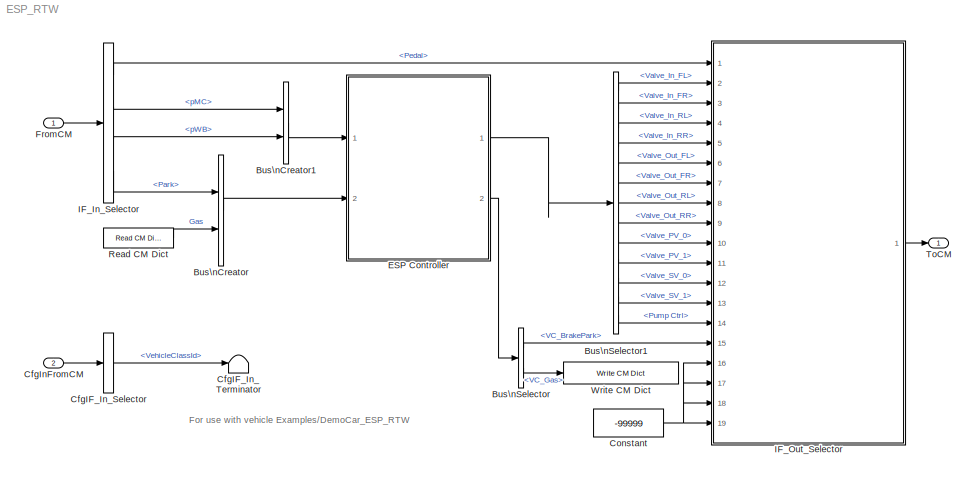
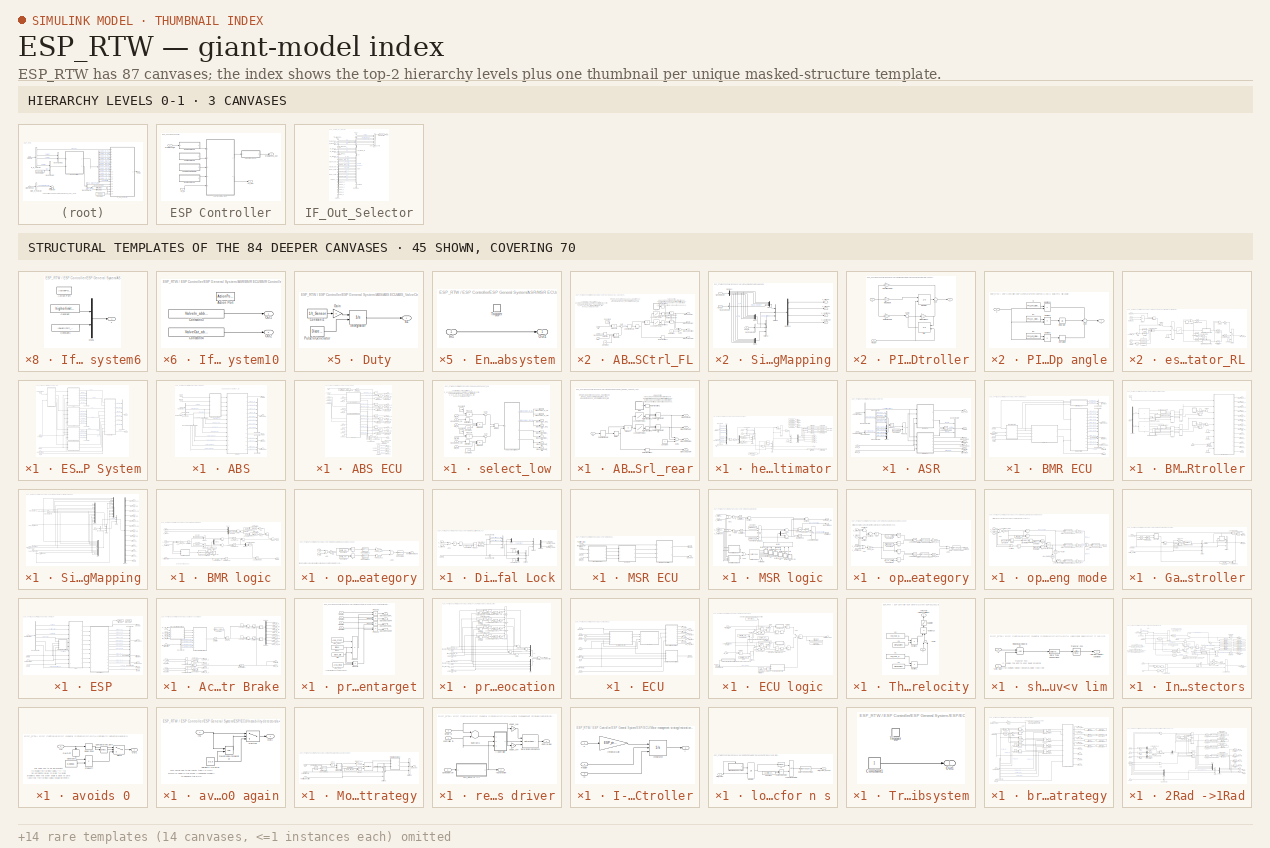
[diagram: thumbnail index - top-2 hierarchy levels (3 canvases) + 45 structural-template representatives of the remaining 84 canvases]
MODEL ESP_RTW
KIND model
CONFIG InitFcn = vehicle = 'Car'; if ~length(which('cmcmd')), cmenv; end\nESP_RTW_bus\nESP_RTW_params
CONFIG PreLoadFcn = vehicle = 'Car'; if ~length(which('cmcmd')), cmenv; end\nESP_RTW_bus\nESP_RTW_params
BLOCK [BusCreator] Bus\nCreator
  DisplayOption = bar
  InheritFromInputs = on
  Inputs = 2
  Ports = [2, 1]
  SID = 1621
BLOCK [BusCreator] Bus\nCreator1
  DisplayOption = bar
  InheritFromInputs = on
  Inputs = 2
  Ports = [2, 1]
  SID = 8031
BLOCK [BusSelector] Bus\nSelector
  OutputSignals = VC_BrakePark,VC_Gas
  Ports = [1, 2]
  SID = 1623
BLOCK [BusSelector] Bus\nSelector1
  OutputSignals = Brake Valves.Valve_In_FL,Brake Valves.Valve_In_FR,Brake Valves.Valve_In_RL,Brake Valves.Valve_In_RR,Brake Valves.Valve_Out_FL,Brake Valves.Valve_Out_FR,Brake Valves.Valve_Out_RL,Brake Valves.Valve_Out_RR,Pilot Valves.Valve_PV_0,Pilot Valves.Valve_PV_1,Suction Valves.Valve_SV_0,Suction Valves.Valve_SV_1,Pump Ctrl
  Ports = [1, 13]
  SID = 4798
BLOCK [BusSelector] CfgIF_In_Selector
  OutputSignals = VehicleClassId
  Ports = [1, 1]
  SID = 9
BLOCK [Terminator] CfgIF_In_Terminator
  SID = 10
BLOCK [Inport] CfgInFromCM
  IconDisplay = Port number
  OutDataTypeStr = Bus: cmHydBrakeControlCfgIn
  Port = 2
  SID = 8
BLOCK [Constant] Constant
  SID = 8120
  Value = -99999
BLOCK [SubSystem] ESP Controller
  Ports = [2, 2]
  RequestExecContextInheritance = off
  SID = 6393
  TreatAsAtomicUnit = on
  Variant = off
BLOCK [SubSystem] ESP Controller/ESP General System
  Ports = [5, 2]
  RequestExecContextInheritance = off
  SID = 6395
  Variant = off
BLOCK [SubSystem] ESP Controller/ESP General System/ABS
  Ports = [4, 5]
  RequestExecContextInheritance = off
  SID = 6401
  Variant = off
BLOCK [SubSystem] ESP Controller/ESP General System/ABS/ABS ECU
  Ports = [13, 14]
  RequestExecContextInheritance = off
  SID = 6406
  Variant = off
BLOCK [Outport] ESP Controller/ESP General System/ABS/ABS ECU/ABS On
  IconDisplay = Port number
  Port = 10
  SID = 6571
BLOCK [SubSystem] ESP Controller/ESP General System/ABS/ABS ECU/ABS_ValveCtrl_FL
  Ports = [3, 4]
  RequestExecContextInheritance = off
  SID = 6420
  Variant = off
BLOCK [Outport] ESP Controller/ESP General System/ABS/ABS ECU/ABS_ValveCtrl_FL/Brake.ABS.on//off
  IconDisplay = Port number
  Port = 4
  SID = 6451
BLOCK [Outport] ESP Controller/ESP General System/ABS/ABS ECU/ABS_ValveCtrl_FL/Brake.ABS.status
  IconDisplay = Port number
  Port = 3
  SID = 6450
BLOCK [Outport] ESP Controller/ESP General System/ABS/ABS ECU/ABS_ValveCtrl_FL/Brake.Valve.In
  IconDisplay = Port number
  SID = 6448
BLOCK [Outport] ESP Controller/ESP General System/ABS/ABS ECU/ABS_ValveCtrl_FL/Brake.Valve.Out
  IconDisplay = Port number
  Port = 2
  SID = 6449
BLOCK [Constant] ESP Controller/ESP General System/ABS/ABS ECU/ABS_ValveCtrl_FL/Constant
  SID = 6424
BLOCK [Constant] ESP Controller/ESP General System/ABS/ABS ECU/ABS_ValveCtrl_FL/Constant1
  SID = 6425
  Value = f_slip
BLOCK [Constant] ESP Controller/ESP General System/ABS/ABS ECU/ABS_ValveCtrl_FL/Constant3
  SID = 6426
  Value = f_ax
BLOCK [Derivative] ESP Controller/ESP General System/ABS/ABS ECU/ABS_ValveCtrl_FL/Derivative
  SID = 6427
BLOCK [SubSystem] ESP Controller/ESP General System/ABS/ABS ECU/ABS_ValveCtrl_FL/Duty
  Ports = [0, 1]
  RequestExecContextInheritance = off
  SID = 6428
  Variant = off
BLOCK [Constant] ESP Controller/ESP General System/ABS/ABS ECU/ABS_ValveCtrl_FL/Duty/Constant1
  SID = 6429
  Value = 1/t_Sensor
BLOCK [Gain] ESP Controller/ESP General System/ABS/ABS ECU/ABS_ValveCtrl_FL/Duty/Gain
  OutDataTypeStr = Inherit: Inherit via internal rule
  ParamDataTypeStr = Inherit: Inherit via internal rule
  SID = 8032
  SaturateOnIntegerOverflow = off
BLOCK [Integrator] ESP Controller/ESP General System/ABS/ABS ECU/ABS_ValveCtrl_FL/Duty/Integrator
  ExternalReset = either
  Ports = [2, 1]
  SID = 6430
BLOCK [DiscretePulseGenerator] ESP Controller/ESP General System/ABS/ABS ECU/ABS_ValveCtrl_FL/Duty/Pulse\nGenerator
  Period = t_Sensor*2
  Ports = [0, 1]
  PulseType = Time based
  PulseWidth = 50
  SID = 6431
BLOCK [Outport] ESP Controller/ESP General System/ABS/ABS ECU/ABS_ValveCtrl_FL/Duty/SZ
  IconDisplay = Port number
  SID = 6432
BLOCK [Lookup] ESP Controller/ESP General System/ABS/ABS ECU/ABS_ValveCtrl_FL/Look-Up\nTable1
  InputValues = Valve_LUTin_VA
  LookUpMeth = Interpolation-Use End Values
  SID = 6433
  Table = ValveIn_LUTout_VA
BLOCK [Lookup] ESP Controller/ESP General System/ABS/ABS ECU/ABS_ValveCtrl_FL/Look-Up\nTable2
  InputValues = Valve_LUTin_VA
  LookUpMeth = Interpolation-Use End Values
  SID = 6434
  Table = ValveOut_LUTout_VA
BLOCK [Product] ESP Controller/ESP General System/ABS/ABS ECU/ABS_ValveCtrl_FL/Product
  InputSameDT = off
  Ports = [2, 1]
  RndMeth = Floor
  SID = 6435
BLOCK [Product] ESP Controller/ESP General System/ABS/ABS ECU/ABS_ValveCtrl_FL/Product1
  Inputs = 3
  Ports = [3, 1]
  RndMeth = Floor
  SID = 6436
BLOCK [Product] ESP Controller/ESP General System/ABS/ABS ECU/ABS_ValveCtrl_FL/Product2
  InputSameDT = off
  Ports = [2, 1]
  RndMeth = Floor
  SID = 6437
BLOCK [RateTransition] ESP Controller/ESP General System/ABS/ABS ECU/ABS_ValveCtrl_FL/Rate Transition1
  SID = 6438
BLOCK [RateTransition] ESP Controller/ESP General System/ABS/ABS ECU/ABS_ValveCtrl_FL/Rate Transition2
  SID = 6439
BLOCK [RateTransition] ESP Controller/ESP General System/ABS/ABS ECU/ABS_ValveCtrl_FL/Rate Transition3
  SID = 6440
BLOCK [RateTransition] ESP Controller/ESP General System/ABS/ABS ECU/ABS_ValveCtrl_FL/Rate Transition4
  SID = 6441
BLOCK [RelationalOperator] ESP Controller/ESP General System/ABS/ABS ECU/ABS_ValveCtrl_FL/Relational\nOperator
  InputSameDT = off
  Operator = <
  Ports = [2, 1]
  SID = 6442
  SampleTime = 0.001
BLOCK [RelationalOperator] ESP Controller/ESP General System/ABS/ABS ECU/ABS_ValveCtrl_FL/Relational\nOperator1
  InputSameDT = off
  Operator = <
  Ports = [2, 1]
  SID = 6443
  SampleTime = 0.001
BLOCK [Relay] ESP Controller/ESP General System/ABS/ABS ECU/ABS_ValveCtrl_FL/Relay
  OffSwitchValue = sku_off_VA
  OnSwitchValue = sku_VA
  SID = 6444
BLOCK [Sum] ESP Controller/ESP General System/ABS/ABS ECU/ABS_ValveCtrl_FL/Sum
  IconShape = round
  Inputs = |--
  Ports = [2, 1]
  SID = 6445
BLOCK [Sum] ESP Controller/ESP General System/ABS/ABS ECU/ABS_ValveCtrl_FL/Sum1
  InputSameDT = off
  Inputs = --+
  OutDataTypeStr = Inherit: Inherit via internal rule
  Ports = [3, 1]
  SID = 6446
BLOCK [ZeroOrderHold] ESP Controller/ESP General System/ABS/ABS ECU/ABS_ValveCtrl_FL/Zero-Order\nHold
  SID = 6447
  SampleTime = t_Sensor
BLOCK [Inport] ESP Controller/ESP General System/ABS/ABS ECU/ABS_ValveCtrl_FL/rstat
  IconDisplay = Port number
  Port = 3
  SID = 6423
BLOCK [Inport] ESP Controller/ESP General System/ABS/ABS ECU/ABS_ValveCtrl_FL/slip
  IconDisplay = Port number
  SID = 6421
BLOCK [Inport] ESP Controller/ESP General System/ABS/ABS ECU/ABS_ValveCtrl_FL/wheelspeed
  IconDisplay = Port number
  Port = 2
  SID = 6422
BLOCK [SubSystem] ESP Controller/ESP General System/ABS/ABS ECU/ABS_ValveCtrl_FR
  Ports = [3, 4]
  RequestExecContextInheritance = off
  SID = 6452
  Variant = off
BLOCK [Outport] ESP Controller/ESP General System/ABS/ABS ECU/ABS_ValveCtrl_FR/Brake.ABS.on//off
  IconDisplay = Port number
  Port = 4
  SID = 6483
BLOCK [Outport] ESP Controller/ESP General System/ABS/ABS ECU/ABS_ValveCtrl_FR/Brake.ABS.status
  IconDisplay = Port number
  Port = 3
  SID = 6482
BLOCK [Outport] ESP Controller/ESP General System/ABS/ABS ECU/ABS_ValveCtrl_FR/Brake.Valve.In
  IconDisplay = Port number
  SID = 6480
BLOCK [Outport] ESP Controller/ESP General System/ABS/ABS ECU/ABS_ValveCtrl_FR/Brake.Valve.Out
  IconDisplay = Port number
  Port = 2
  SID = 6481
BLOCK [Constant] ESP Controller/ESP General System/ABS/ABS ECU/ABS_ValveCtrl_FR/Constant
  SID = 6456
BLOCK [Constant] ESP Controller/ESP General System/ABS/ABS ECU/ABS_ValveCtrl_FR/Constant1
  SID = 6457
  Value = f_slip
BLOCK [Constant] ESP Controller/ESP General System/ABS/ABS ECU/ABS_ValveCtrl_FR/Constant3
  SID = 6458
  Value = f_ax
BLOCK [Derivative] ESP Controller/ESP General System/ABS/ABS ECU/ABS_ValveCtrl_FR/Derivative
  SID = 6459
BLOCK [SubSystem] ESP Controller/ESP General System/ABS/ABS ECU/ABS_ValveCtrl_FR/Duty
  Ports = [0, 1]
  RequestExecContextInheritance = off
  SID = 6460
  Variant = off
BLOCK [Constant] ESP Controller/ESP General System/ABS/ABS ECU/ABS_ValveCtrl_FR/Duty/Constant1
  SID = 6461
  Value = 1/t_Sensor
BLOCK [Gain] ESP Controller/ESP General System/ABS/ABS ECU/ABS_ValveCtrl_FR/Duty/Gain
  OutDataTypeStr = Inherit: Inherit via internal rule
  ParamDataTypeStr = Inherit: Inherit via internal rule
  SID = 8033
  SaturateOnIntegerOverflow = off
BLOCK [Integrator] ESP Controller/ESP General System/ABS/ABS ECU/ABS_ValveCtrl_FR/Duty/Integrator
  ExternalReset = either
  Ports = [2, 1]
  SID = 6462
BLOCK [DiscretePulseGenerator] ESP Controller/ESP General System/ABS/ABS ECU/ABS_ValveCtrl_FR/Duty/Pulse\nGenerator
  Period = t_Sensor*2
  Ports = [0, 1]
  PulseType = Time based
  PulseWidth = 50
  SID = 6463
BLOCK [Outport] ESP Controller/ESP General System/ABS/ABS ECU/ABS_ValveCtrl_FR/Duty/SZ
  IconDisplay = Port number
  SID = 6464
BLOCK [Lookup] ESP Controller/ESP General System/ABS/ABS ECU/ABS_ValveCtrl_FR/Look-Up\nTable1
  InputValues = Valve_LUTin_VA
  LookUpMeth = Interpolation-Use End Values
  SID = 6465
  Table = ValveIn_LUTout_VA
BLOCK [Lookup] ESP Controller/ESP General System/ABS/ABS ECU/ABS_ValveCtrl_FR/Look-Up\nTable2
  InputValues = Valve_LUTin_VA
  LookUpMeth = Interpolation-Use End Values
  SID = 6466
  Table = ValveOut_LUTout_VA
BLOCK [Product] ESP Controller/ESP General System/ABS/ABS ECU/ABS_ValveCtrl_FR/Product
  InputSameDT = off
  Ports = [2, 1]
  RndMeth = Floor
  SID = 6467
BLOCK [Product] ESP Controller/ESP General System/ABS/ABS ECU/ABS_ValveCtrl_FR/Product1
  Inputs = 3
  Ports = [3, 1]
  RndMeth = Floor
  SID = 6468
BLOCK [Product] ESP Controller/ESP General System/ABS/ABS ECU/ABS_ValveCtrl_FR/Product2
  InputSameDT = off
  Ports = [2, 1]
  RndMeth = Floor
  SID = 6469
BLOCK [RateTransition] ESP Controller/ESP General System/ABS/ABS ECU/ABS_ValveCtrl_FR/Rate Transition1
  SID = 6470
BLOCK [RateTransition] ESP Controller/ESP General System/ABS/ABS ECU/ABS_ValveCtrl_FR/Rate Transition2
  SID = 6471
BLOCK [RateTransition] ESP Controller/ESP General System/ABS/ABS ECU/ABS_ValveCtrl_FR/Rate Transition3
  SID = 6472
BLOCK [RateTransition] ESP Controller/ESP General System/ABS/ABS ECU/ABS_ValveCtrl_FR/Rate Transition4
  SID = 6473
BLOCK [RelationalOperator] ESP Controller/ESP General System/ABS/ABS ECU/ABS_ValveCtrl_FR/Relational\nOperator
  InputSameDT = off
  Operator = <
  Ports = [2, 1]
  SID = 6474
  SampleTime = 0.001
BLOCK [RelationalOperator] ESP Controller/ESP General System/ABS/ABS ECU/ABS_ValveCtrl_FR/Relational\nOperator1
  InputSameDT = off
  Operator = <
  Ports = [2, 1]
  SID = 6475
  SampleTime = 0.001
BLOCK [Relay] ESP Controller/ESP General System/ABS/ABS ECU/ABS_ValveCtrl_FR/Relay
  OffSwitchValue = sku_off_VA
  OnSwitchValue = sku_VA
  SID = 6476
BLOCK [Sum] ESP Controller/ESP General System/ABS/ABS ECU/ABS_ValveCtrl_FR/Sum
  IconShape = round
  Inputs = |--
  Ports = [2, 1]
  SID = 6477
BLOCK [Sum] ESP Controller/ESP General System/ABS/ABS ECU/ABS_ValveCtrl_FR/Sum1
  InputSameDT = off
  Inputs = --+
  OutDataTypeStr = Inherit: Inherit via internal rule
  Ports = [3, 1]
  SID = 6478
BLOCK [ZeroOrderHold] ESP Controller/ESP General System/ABS/ABS ECU/ABS_ValveCtrl_FR/Zero-Order\nHold
  SID = 6479
  SampleTime = t_Sensor
BLOCK [Inport] ESP Controller/ESP General System/ABS/ABS ECU/ABS_ValveCtrl_FR/rstat
  IconDisplay = Port number
  Port = 3
  SID = 6455
BLOCK [Inport] ESP Controller/ESP General System/ABS/ABS ECU/ABS_ValveCtrl_FR/slip
  IconDisplay = Port number
  SID = 6453
BLOCK [Inport] ESP Controller/ESP General System/ABS/ABS ECU/ABS_ValveCtrl_FR/wheelspeed
  IconDisplay = Port number
  Port = 2
  SID = 6454
BLOCK [Outport] ESP Controller/ESP General System/ABS/ABS ECU/Brake Pump Ctrl
  IconDisplay = Port number
  SID = 6562
BLOCK [Outport] ESP Controller/ESP General System/ABS/ABS ECU/Brake Valve_In_FL
  IconDisplay = Port number
  Port = 2
  SID = 6563
BLOCK [Outport] ESP Controller/ESP General System/ABS/ABS ECU/Brake Valve_In_FR
  IconDisplay = Port number
  Port = 3
  SID = 6564
BLOCK [Outport] ESP Controller/ESP General System/ABS/ABS ECU/Brake Valve_In_RL
  IconDisplay = Port number
  Port = 4
  SID = 6565
BLOCK [Outport] ESP Controller/ESP General System/ABS/ABS ECU/Brake Valve_In_RR
  IconDisplay = Port number
  Port = 5
  SID = 6566
BLOCK [Outport] ESP Controller/ESP General System/ABS/ABS ECU/Brake Valve_Out_FL
  IconDisplay = Port number
  Port = 6
  SID = 6567
BLOCK [Outport] ESP Controller/ESP General System/ABS/ABS ECU/Brake Valve_Out_FR
  IconDisplay = Port number
  Port = 7
  SID = 6568
BLOCK [Outport] ESP Controller/ESP General System/ABS/ABS ECU/Brake Valve_Out_RL
  IconDisplay = Port number
  Port = 8
  SID = 6569
BLOCK [Outport] ESP Controller/ESP General System/ABS/ABS ECU/Brake Valve_Out_RR
  IconDisplay = Port number
  Port = 9
  SID = 6570
BLOCK [Constant] ESP Controller/ESP General System/ABS/ABS ECU/Constant
  SID = 6484
  Value = 0
BLOCK [Constant] ESP Controller/ESP General System/ABS/ABS ECU/Constant1
  SID = 6485
  Value = 0
BLOCK [Constant] ESP Controller/ESP General System/ABS/ABS ECU/Constant2
  SID = 6486
  Value = 0
BLOCK [Constant] ESP Controller/ESP General System/ABS/ABS ECU/Constant3
  SID = 6487
  Value = 0
BLOCK [Constant] ESP Controller/ESP General System/ABS/ABS ECU/Constant4
  SID = 6488
  Value = v_min/MPS2KMPH
BLOCK [DataTypeConversion] ESP Controller/ESP General System/ABS/ABS ECU/Data Type Conversion1
  OutDataTypeStr = double
  RndMeth = Floor
  SID = 6489
  SaturateOnIntegerOverflow = off
BLOCK [DataTypeConversion] ESP Controller/ESP General System/ABS/ABS ECU/Data Type Conversion2
  OutDataTypeStr = double
  RndMeth = Floor
  SID = 6490
  SaturateOnIntegerOverflow = off
BLOCK [Reference] ESP Controller/ESP General System/ABS/ABS ECU/Define CM Dict1  REF=CarMaker4SL/Define CM Dict
  Ports = []
  SID = 6491
  SourceBlock = CarMaker4SL/Define CM Dict
  SourceType = Define CarMaker Dictionary Variable
  xdvaplace = None
  xfirststate = 0
  xinitial = 0
  xmono = off
  xname = ESP.ABS.Status_FL
  xnstates = 4
  xtype = Char
BLOCK [Reference] ESP Controller/ESP General System/ABS/ABS ECU/Define CM Dict2  REF=CarMaker4SL/Define CM Dict
  Ports = []
  SID = 6492
  SourceBlock = CarMaker4SL/Define CM Dict
  SourceType = Define CarMaker Dictionary Variable
  xdvaplace = None
  xfirststate = 0
  xinitial = 0
  xmono = off
  xname = ESP.ABS.Status_FR
  xnstates = 4
  xtype = Char
BLOCK [Reference] ESP Controller/ESP General System/ABS/ABS ECU/Define CM Dict3  REF=CarMaker4SL/Define CM Dict
  Ports = []
  SID = 6493
  SourceBlock = CarMaker4SL/Define CM Dict
  SourceType = Define CarMaker Dictionary Variable
  xdvaplace = None
  xfirststate = 0
  xinitial = 0
  xmono = off
  xname = ESP.ABS.Status_RL
  xnstates = 4
  xtype = Char
BLOCK [Reference] ESP Controller/ESP General System/ABS/ABS ECU/Define CM Dict4  REF=CarMaker4SL/Define CM Dict
  Ports = []
  SID = 6494
  SourceBlock = CarMaker4SL/Define CM Dict
  SourceType = Define CarMaker Dictionary Variable
  xdvaplace = None
  xfirststate = 0
  xinitial = 0
  xmono = off
  xname = ESP.ABS.Status_RR
  xnstates = 4
  xtype = Char
BLOCK [Logic] ESP Controller/ESP General System/ABS/ABS ECU/Logical\nOperator1
  AllPortsSameDT = off
  Inputs = 4
  Operator = OR
  Ports = [4, 1]
  SID = 6495
BLOCK [Logic] ESP Controller/ESP General System/ABS/ABS ECU/Logical\nOperator2
  AllPortsSameDT = off
  Ports = [2, 1]
  SID = 6496
BLOCK [Inport] ESP Controller/ESP General System/ABS/ABS ECU/LongSlip_FL
  IconDisplay = Port number
  Port = 2
  SID = 6408
BLOCK [Inport] ESP Controller/ESP General System/ABS/ABS ECU/LongSlip_FR
  IconDisplay = Port number
  Port = 3
  SID = 6409
BLOCK [Inport] ESP Controller/ESP General System/ABS/ABS ECU/LongSlip_RL
  IconDisplay = Port number
  Port = 4
  SID = 6410
BLOCK [Inport] ESP Controller/ESP General System/ABS/ABS ECU/LongSlip_RR
  IconDisplay = Port number
  Port = 5
  SID = 6411
BLOCK [Product] ESP Controller/ESP General System/ABS/ABS ECU/Product
  InputSameDT = off
  Ports = [2, 1]
  RndMeth = Floor
  SID = 6497
BLOCK [Product] ESP Controller/ESP General System/ABS/ABS ECU/Product1
  InputSameDT = off
  Ports = [2, 1]
  RndMeth = Floor
  SID = 6498
BLOCK [Product] ESP Controller/ESP General System/ABS/ABS ECU/Product2
  InputSameDT = off
  Ports = [2, 1]
  RndMeth = Floor
  SID = 6499
BLOCK [Product] ESP Controller/ESP General System/ABS/ABS ECU/Product3
  InputSameDT = off
  Ports = [2, 1]
  RndMeth = Floor
  SID = 6500
BLOCK [Product] ESP Controller/ESP General System/ABS/ABS ECU/Product4
  InputSameDT = off
  Ports = [2, 1]
  RndMeth = Floor
  SID = 6501
BLOCK [Product] ESP Controller/ESP General System/ABS/ABS ECU/Product5
  InputSameDT = off
  Ports = [2, 1]
  RndMeth = Floor
  SID = 6502
BLOCK [Product] ESP Controller/ESP General System/ABS/ABS ECU/Product6
  InputSameDT = off
  Ports = [2, 1]
  RndMeth = Floor
  SID = 6503
BLOCK [Product] ESP Controller/ESP General System/ABS/ABS ECU/Product7
  InputSameDT = off
  Ports = [2, 1]
  RndMeth = Floor
  SID = 6504
BLOCK [RelationalOperator] ESP Controller/ESP General System/ABS/ABS ECU/Relational\nOperator
  InputSameDT = off
  Operator = >
  Ports = [2, 1]
  SID = 6505
BLOCK [Inport] ESP Controller/ESP General System/ABS/ABS ECU/Speed_FL
  IconDisplay = Port number
  Port = 6
  SID = 6412
BLOCK [Inport] ESP Controller/ESP General System/ABS/ABS ECU/Speed_FR
  IconDisplay = Port number
  Port = 7
  SID = 6413
BLOCK [Inport] ESP Controller/ESP General System/ABS/ABS ECU/Speed_RL
  IconDisplay = Port number
  Port = 8
  SID = 6414
BLOCK [Inport] ESP Controller/ESP General System/ABS/ABS ECU/Speed_RR
  IconDisplay = Port number
  Port = 9
  SID = 6415
BLOCK [Outport] ESP Controller/ESP General System/ABS/ABS ECU/Valve_PV_0
  IconDisplay = Port number
  Port = 11
  SID = 6572
BLOCK [Outport] ESP Controller/ESP General System/ABS/ABS ECU/Valve_PV_1
  IconDisplay = Port number
  Port = 12
  SID = 6573
BLOCK [Outport] ESP Controller/ESP General System/ABS/ABS ECU/Valve_SV_0
  IconDisplay = Port number
  Port = 13
  SID = 6574
BLOCK [Outport] ESP Controller/ESP General System/ABS/ABS ECU/Valve_SV_1
  IconDisplay = Port number
  Port = 14
  SID = 6575
BLOCK [Reference] ESP Controller/ESP General System/ABS/ABS ECU/Write CM Dict1  REF=CarMaker4SL/Write CM Dict
  Ports = [1]
  SID = 6506
  SourceBlock = CarMaker4SL/Write CM Dict
  SourceType = Write CarMaker Dictionary Variable(s)
  xname = ESP.ABS.Status_FL
  xsync = off
BLOCK [Reference] ESP Controller/ESP General System/ABS/ABS ECU/Write CM Dict2  REF=CarMaker4SL/Write CM Dict
  Ports = [1]
  SID = 6507
  SourceBlock = CarMaker4SL/Write CM Dict
  SourceType = Write CarMaker Dictionary Variable(s)
  xname = ESP.ABS.Status_FR
  xsync = off
BLOCK [Reference] ESP Controller/ESP General System/ABS/ABS ECU/Write CM Dict3  REF=CarMaker4SL/Write CM Dict
  Ports = [1]
  SID = 6508
  SourceBlock = CarMaker4SL/Write CM Dict
  SourceType = Write CarMaker Dictionary Variable(s)
  xname = ESP.ABS.Status_RL
  xsync = off
BLOCK [Reference] ESP Controller/ESP General System/ABS/ABS ECU/Write CM Dict4  REF=CarMaker4SL/Write CM Dict
  Ports = [1]
  SID = 6509
  SourceBlock = CarMaker4SL/Write CM Dict
  SourceType = Write CarMaker Dictionary Variable(s)
  xname = ESP.ABS.Status_RR
  xsync = off
BLOCK [Inport] ESP Controller/ESP General System/ABS/ABS ECU/radius_FL
  IconDisplay = Port number
  Port = 10
  SID = 6416
BLOCK [Inport] ESP Controller/ESP General System/ABS/ABS ECU/radius_FR
  IconDisplay = Port number
  Port = 11
  SID = 6417
BLOCK [Inport] ESP Controller/ESP General System/ABS/ABS ECU/radius_RL
  IconDisplay = Port number
  Port = 12
  SID = 6418
BLOCK [Inport] ESP Controller/ESP General System/ABS/ABS ECU/radius_RR
  IconDisplay = Port number
  Port = 13
  SID = 6419
BLOCK [SubSystem] ESP Controller/ESP General System/ABS/ABS ECU/select_low
  Ports = [6, 8]
  RequestExecContextInheritance = off
  SID = 6510
  Variant = off
BLOCK [SubSystem] ESP Controller/ESP General System/ABS/ABS ECU/select_low/ABS_ValveCtrl_rear
  Ports = [1, 4]
  RequestExecContextInheritance = off
  SID = 6517
  Variant = off
BLOCK [Outport] ESP Controller/ESP General System/ABS/ABS ECU/select_low/ABS_ValveCtrl_rear/Brake.ABS.on//off
  IconDisplay = Port number
  Port = 4
  SID = 6540
BLOCK [Outport] ESP Controller/ESP General System/ABS/ABS ECU/select_low/ABS_ValveCtrl_rear/Brake.ABS.status
  IconDisplay = Port number
  Port = 3
  SID = 6539
BLOCK [Outport] ESP Controller/ESP General System/ABS/ABS ECU/select_low/ABS_ValveCtrl_rear/Brake.Valve.In
  IconDisplay = Port number
  SID = 6537
BLOCK [Outport] ESP Controller/ESP General System/ABS/ABS ECU/select_low/ABS_ValveCtrl_rear/Brake.Valve.Out
  IconDisplay = Port number
  Port = 2
  SID = 6538
BLOCK [Constant] ESP Controller/ESP General System/ABS/ABS ECU/select_low/ABS_ValveCtrl_rear/Constant
  SID = 6519
BLOCK [SubSystem] ESP Controller/ESP General System/ABS/ABS ECU/select_low/ABS_ValveCtrl_rear/Duty
  Ports = [0, 1]
  RequestExecContextInheritance = off
  SID = 6520
  Variant = off
BLOCK [Constant] ESP Controller/ESP General System/ABS/ABS ECU/select_low/ABS_ValveCtrl_rear/Duty/Constant1
  SID = 6521
  Value = 1/t_Sensor
BLOCK [Gain] ESP Controller/ESP General System/ABS/ABS ECU/select_low/ABS_ValveCtrl_rear/Duty/Gain
  OutDataTypeStr = Inherit: Inherit via internal rule
  ParamDataTypeStr = Inherit: Inherit via internal rule
  SID = 8034
  SaturateOnIntegerOverflow = off
BLOCK [Integrator] ESP Controller/ESP General System/ABS/ABS ECU/select_low/ABS_ValveCtrl_rear/Duty/Integrator
  ExternalReset = either
  Ports = [2, 1]
  SID = 6522
BLOCK [DiscretePulseGenerator] ESP Controller/ESP General System/ABS/ABS ECU/select_low/ABS_ValveCtrl_rear/Duty/Pulse\nGenerator
  Period = t_Sensor*2
  Ports = [0, 1]
  PulseType = Time based
  PulseWidth = 50
  SID = 6523
BLOCK [Outport] ESP Controller/ESP General System/ABS/ABS ECU/select_low/ABS_ValveCtrl_rear/Duty/SZ
  IconDisplay = Port number
  SID = 6524
BLOCK [Lookup] ESP Controller/ESP General System/ABS/ABS ECU/select_low/ABS_ValveCtrl_rear/Look-Up\nTable1
  InputValues = Valve_LUTin_HA
  LookUpMeth = Interpolation-Use End Values
  SID = 6525
  Table = ValveIn_LUTout_HA
BLOCK [Lookup] ESP Controller/ESP General System/ABS/ABS ECU/select_low/ABS_ValveCtrl_rear/Look-Up\nTable2
  InputValues = Valve_LUTin_HA
  LookUpMeth = Interpolation-Use End Values
  SID = 6526
  Table = ValveOut_LUTout_HA
BLOCK [Product] ESP Controller/ESP General System/ABS/ABS ECU/select_low/ABS_ValveCtrl_rear/Product
  InputSameDT = off
  Ports = [2, 1]
  RndMeth = Floor
  SID = 6527
BLOCK [RateTransition] ESP Controller/ESP General System/ABS/ABS ECU/select_low/ABS_ValveCtrl_rear/Rate Transition1
  SID = 6528
BLOCK [RateTransition] ESP Controller/ESP General System/ABS/ABS ECU/select_low/ABS_ValveCtrl_rear/Rate Transition2
  SID = 6529
BLOCK [RateTransition] ESP Controller/ESP General System/ABS/ABS ECU/select_low/ABS_ValveCtrl_rear/Rate Transition3
  SID = 6530
BLOCK [RateTransition] ESP Controller/ESP General System/ABS/ABS ECU/select_low/ABS_ValveCtrl_rear/Rate Transition4
  SID = 6531
BLOCK [RelationalOperator] ESP Controller/ESP General System/ABS/ABS ECU/select_low/ABS_ValveCtrl_rear/Relational\nOperator
  InputSameDT = off
  Operator = <
  Ports = [2, 1]
  SID = 6532
  SampleTime = 0.001
BLOCK [RelationalOperator] ESP Controller/ESP General System/ABS/ABS ECU/select_low/ABS_ValveCtrl_rear/Relational\nOperator1
  InputSameDT = off
  Operator = <
  Ports = [2, 1]
  SID = 6533
  SampleTime = 0.001
BLOCK [Relay] ESP Controller/ESP General System/ABS/ABS ECU/select_low/ABS_ValveCtrl_rear/Relay
  OffSwitchValue = sku_off_HA
  OnSwitchValue = sku_HA
  SID = 6534
BLOCK [Inport] ESP Controller/ESP General System/ABS/ABS ECU/select_low/ABS_ValveCtrl_rear/Sk
  IconDisplay = Port number
  SID = 6518
BLOCK [Sum] ESP Controller/ESP General System/ABS/ABS ECU/select_low/ABS_ValveCtrl_rear/Sum1
  InputSameDT = off
  Inputs = --+
  OutDataTypeStr = Inherit: Inherit via internal rule
  Ports = [3, 1]
  SID = 6535
BLOCK [ZeroOrderHold] ESP Controller/ESP General System/ABS/ABS ECU/select_low/ABS_ValveCtrl_rear/Zero-Order\nHold
  SID = 6536
  SampleTime = t_Sensor
BLOCK [Outport] ESP Controller/ESP General System/ABS/ABS ECU/select_low/Brake Valve_In_RL
  IconDisplay = Port number
  SID = 6554
BLOCK [Outport] ESP Controller/ESP General System/ABS/ABS ECU/select_low/Brake Valve_In_RR
  IconDisplay = Port number
  Port = 5
  SID = 6558
BLOCK [Outport] ESP Controller/ESP General System/ABS/ABS ECU/select_low/Brake Valve_Out_RL
  IconDisplay = Port number
  Port = 2
  SID = 6555
BLOCK [Outport] ESP Controller/ESP General System/ABS/ABS ECU/select_low/Brake Valve_Out_RR
  IconDisplay = Port number
  Port = 6
  SID = 6559
BLOCK [Outport] ESP Controller/ESP General System/ABS/ABS ECU/select_low/Brake.ABS.on//off_RL
  IconDisplay = Port number
  Port = 4
  SID = 6557
BLOCK [Outport] ESP Controller/ESP General System/ABS/ABS ECU/select_low/Brake.ABS.on//off_RR
  IconDisplay = Port number
  Port = 8
  SID = 6561
BLOCK [Outport] ESP Controller/ESP General System/ABS/ABS ECU/select_low/Brake.ABS.status_RL
  IconDisplay = Port number
  Port = 3
  SID = 6556
BLOCK [Outport] ESP Controller/ESP General System/ABS/ABS ECU/select_low/Brake.ABS.status_RR
  IconDisplay = Port number
  Port = 7
  SID = 6560
BLOCK [Constant] ESP Controller/ESP General System/ABS/ABS ECU/select_low/Constant1
  SID = 6541
  Value = f_ax
BLOCK [Constant] ESP Controller/ESP General System/ABS/ABS ECU/select_low/Constant2
  SID = 6542
  Value = f_slip
BLOCK [Constant] ESP Controller/ESP General System/ABS/ABS ECU/select_low/Constant3
  SID = 6543
  Value = f_ax
BLOCK [Constant] ESP Controller/ESP General System/ABS/ABS ECU/select_low/Constant4
  SID = 6544
  Value = f_slip
BLOCK [Derivative] ESP Controller/ESP General System/ABS/ABS ECU/select_low/Derivative
  SID = 6545
BLOCK [Derivative] ESP Controller/ESP General System/ABS/ABS ECU/select_low/Derivative1
  SID = 6546
BLOCK [MinMax] ESP Controller/ESP General System/ABS/ABS ECU/select_low/MinMax
  Function = max
  Inputs = 2
  Ports = [2, 1]
  SID = 6547
BLOCK [Product] ESP Controller/ESP General System/ABS/ABS ECU/select_low/Product1
  Inputs = 3
  Ports = [3, 1]
  RndMeth = Floor
  SID = 6548
BLOCK [Product] ESP Controller/ESP General System/ABS/ABS ECU/select_low/Product2
  Inputs = 3
  Ports = [3, 1]
  RndMeth = Floor
  SID = 6549
BLOCK [Product] ESP Controller/ESP General System/ABS/ABS ECU/select_low/Product3
  InputSameDT = off
  Ports = [2, 1]
  RndMeth = Floor
  SID = 6550
BLOCK [Product] ESP Controller/ESP General System/ABS/ABS ECU/select_low/Product4
  InputSameDT = off
  Ports = [2, 1]
  RndMeth = Floor
  SID = 6551
BLOCK [Sum] ESP Controller/ESP General System/ABS/ABS ECU/select_low/Sum
  IconShape = round
  Inputs = |--
  Ports = [2, 1]
  SID = 6552
BLOCK [Sum] ESP Controller/ESP General System/ABS/ABS ECU/select_low/Sum1
  IconShape = round
  Inputs = |--
  Ports = [2, 1]
  SID = 6553
BLOCK [Inport] ESP Controller/ESP General System/ABS/ABS ECU/select_low/rstat_RL
  IconDisplay = Port number
  Port = 3
  SID = 6513
BLOCK [Inport] ESP Controller/ESP General System/ABS/ABS ECU/select_low/rstat_RR
  IconDisplay = Port number
  Port = 4
  SID = 6514
BLOCK [Inport] ESP Controller/ESP General System/ABS/ABS ECU/select_low/slip_RL
  IconDisplay = Port number
  SID = 6511
BLOCK [Inport] ESP Controller/ESP General System/ABS/ABS ECU/select_low/slip_RR
  IconDisplay = Port number
  Port = 2
  SID = 6512
BLOCK [Inport] ESP Controller/ESP General System/ABS/ABS ECU/select_low/wheelspeed_RL
  IconDisplay = Port number
  Port = 5
  SID = 6515
BLOCK [Inport] ESP Controller/ESP General System/ABS/ABS ECU/select_low/wheelspeed_RR
  IconDisplay = Port number
  Port = 6
  SID = 6516
BLOCK [Inport] ESP Controller/ESP General System/ABS/ABS ECU/vref
  IconDisplay = Port number
  SID = 6407
BLOCK [Outport] ESP Controller/ESP General System/ABS/ABS On
  IconDisplay = Port number
  SID = 6637
BLOCK [Inport] ESP Controller/ESP General System/ABS/ABS Signal Bus
  IconDisplay = Port number
  SID = 6402
BLOCK [Outport] ESP Controller/ESP General System/ABS/Brake Valves
  IconDisplay = Port number
  Port = 4
  SID = 6640
BLOCK [BusSelector] ESP Controller/ESP General System/ABS/Bus Selector1
  OutputSignals = TireRadius
  Ports = [1, 1]
  SID = 6580
BLOCK [BusSelector] ESP Controller/ESP General System/ABS/Bus Selector2
  OutputSignals = Param_RadiusRR,Param_RadiusRL,Param_RadiusFR,Param_RadiusFL
  Ports = [1, 4]
  SID = 6581
BLOCK [BusSelector] ESP Controller/ESP General System/ABS/Bus Selector4
  OutputSignals = WheelSpd_RR,WheelSpd_RL,WheelSpd_FR,WheelSpd_FL
  Ports = [1, 4]
  SID = 6582
BLOCK [BusCreator] ESP Controller/ESP General System/ABS/Bus\nCreator
  DisplayOption = bar
  InheritFromInputs = on
  Inputs = 8
  Ports = [8, 1]
  SID = 6576
BLOCK [BusCreator] ESP Controller/ESP General System/ABS/Bus\nCreator2
  DisplayOption = bar
  InheritFromInputs = on
  Inputs = 2
  Ports = [2, 1]
  SID = 6577
BLOCK [BusCreator] ESP Controller/ESP General System/ABS/Bus\nCreator3
  DisplayOption = bar
  InheritFromInputs = on
  Inputs = 2
  Ports = [2, 1]
  SID = 6578
BLOCK [BusSelector] ESP Controller/ESP General System/ABS/Bus\nSelector3
  OutputSignals = ax [m/s^2],WheelSpeeds
  Ports = [1, 2]
  SID = 6579
BLOCK [Inport] ESP Controller/ESP General System/ABS/Ideal_In
  IconDisplay = Port number
  Port = 2
  SID = 6403
BLOCK [Outport] ESP Controller/ESP General System/ABS/Pilot Valves
  IconDisplay = Port number
  Port = 2
  SID = 6638
BLOCK [Outport] ESP Controller/ESP General System/ABS/Pump Ctrl
  IconDisplay = Port number
  Port = 5
  SID = 6641
BLOCK [Outport] ESP Controller/ESP General System/ABS/Suction Valves
  IconDisplay = Port number
  Port = 3
  SID = 6639
BLOCK [Inport] ESP Controller/ESP General System/ABS/User_In
  IconDisplay = Port number
  Port = 4
  SID = 6405
BLOCK [Inport] ESP Controller/ESP General System/ABS/Vehicle Params
  IconDisplay = Port number
  Port = 3
  SID = 6404
BLOCK [SubSystem] ESP Controller/ESP General System/ABS/helpsignals estimator
  Ports = [5, 5]
  RequestExecContextInheritance = off
  SID = 6583
  Variant = off
BLOCK [Sum] ESP Controller/ESP General System/ABS/helpsignals estimator/Add1
  InputSameDT = off
  OutDataTypeStr = Inherit: Inherit via internal rule
  Ports = [2, 1]
  SID = 6590
  SaturateOnIntegerOverflow = off
BLOCK [Sum] ESP Controller/ESP General System/ABS/helpsignals estimator/Add2
  InputSameDT = off
  OutDataTypeStr = Inherit: Inherit via internal rule
  Ports = [2, 1]
  SID = 6591
  SaturateOnIntegerOverflow = off
BLOCK [BusSelector] ESP Controller/ESP General System/ABS/helpsignals estimator/Bus\nSelector1
  OutputSignals = Ideal_Velocity.Ideal_Velocity
  Ports = [1, 1]
  SID = 6592
BLOCK [BusSelector] ESP Controller/ESP General System/ABS/helpsignals estimator/Bus\nSelector2
  OutputSignals = User_Drive
  Ports = [1, 1]
  SID = 6593
BLOCK [BusSelector] ESP Controller/ESP General System/ABS/helpsignals estimator/Bus\nSelector3
  OutputSignals = Param_RadiusFL,Param_RadiusFR,Param_RadiusRL,Param_RadiusRR
  Ports = [1, 4]
  SID = 6594
BLOCK [BusSelector] ESP Controller/ESP General System/ABS/helpsignals estimator/Bus\nSelector4
  OutputSignals = WheelSpd_FL,WheelSpd_FR,WheelSpd_RL,WheelSpd_RR
  Ports = [1, 4]
  SID = 6595
BLOCK [Constant] ESP Controller/ESP General System/ABS/helpsignals estimator/Constant
  SID = 6596
  Value = 0
BLOCK [Constant] ESP Controller/ESP General System/ABS/helpsignals estimator/Constant1
  SID = 6597
  Value = threshold_deceleration
BLOCK [Reference] ESP Controller/ESP General System/ABS/helpsignals estimator/Define CM Dict10  REF=CarMaker4SL/Define CM Dict
  Ports = []
  SID = 6598
  SourceBlock = CarMaker4SL/Define CM Dict
  SourceType = Define CarMaker Dictionary Variable
  xdvaplace = VC
  xfirststate = 0
  xinitial = 0
  xmono = off
  xname = ESP.ABS.LongSlip_RR
  xnstates = 0
  xtype = Double4
BLOCK [Reference] ESP Controller/ESP General System/ABS/helpsignals estimator/Define CM Dict6  REF=CarMaker4SL/Define CM Dict
  Ports = []
  SID = 6599
  SourceBlock = CarMaker4SL/Define CM Dict
  SourceType = Define CarMaker Dictionary Variable
  xdvaplace = VC
  xfirststate = 0
  xinitial = 0
  xmono = off
  xname = ESP.ABS.LongSlip_FL
  xnstates = 0
  xtype = Double4
BLOCK [Reference] ESP Controller/ESP General System/ABS/helpsignals estimator/Define CM Dict7  REF=CarMaker4SL/Define CM Dict
  Ports = []
  SID = 6600
  SourceBlock = CarMaker4SL/Define CM Dict
  SourceType = Define CarMaker Dictionary Variable
  xdvaplace = VC
  xfirststate = 0
  xinitial = 0
  xmono = off
  xname = ESP.ABS.LongSlip_FR
  xnstates = 0
  xtype = Double4
BLOCK [Reference] ESP Controller/ESP General System/ABS/helpsignals estimator/Define CM Dict8  REF=CarMaker4SL/Define CM Dict
  Ports = []
  SID = 6601
  SourceBlock = CarMaker4SL/Define CM Dict
  SourceType = Define CarMaker Dictionary Variable
  xdvaplace = VC
  xfirststate = 0
  xinitial = 0
  xmono = off
  xname = ESP.ABS.LongSlip_RL
  xnstates = 0
  xtype = Double4
BLOCK [Reference] ESP Controller/ESP General System/ABS/helpsignals estimator/Define CM Dict9  REF=CarMaker4SL/Define CM Dict
  Ports = []
  SID = 6602
  SourceBlock = CarMaker4SL/Define CM Dict
  SourceType = Define CarMaker Dictionary Variable
  xdvaplace = VC
  xfirststate = 0
  xinitial = 0
  xmono = off
  xname = ESP.ABS.v_ref
  xnstates = 0
  xtype = Double4
  xunit = m/s
BLOCK [Demux] ESP Controller/ESP General System/ABS/helpsignals estimator/Demux
  DisplayOption = bar
  Ports = [1, 4]
  SID = 6603
BLOCK [Demux] ESP Controller/ESP General System/ABS/helpsignals estimator/Demux1
  DisplayOption = bar
  Ports = [1, 4]
  SID = 6604
BLOCK [Product] ESP Controller/ESP General System/ABS/helpsignals estimator/Divide1
  InputSameDT = off
  Inputs = */
  OutDataTypeStr = Inherit: Inherit via internal rule
  Ports = [2, 1]
  RndMeth = Floor
  SID = 6605
  SaturateOnIntegerOverflow = off
BLOCK [Inport] ESP Controller/ESP General System/ABS/helpsignals estimator/Ideal_In
  IconDisplay = Port number
  Port = 2
  SID = 6585
BLOCK [Integrator] ESP Controller/ESP General System/ABS/helpsignals estimator/Integrator
  ExternalReset = rising
  InitialConditionSource = external
  Ports = [3, 1]
  SID = 6606
BLOCK [Outport] ESP Controller/ESP General System/ABS/helpsignals estimator/LongSlip_FL
  IconDisplay = Port number
  Port = 2
  SID = 6633
BLOCK [Outport] ESP Controller/ESP General System/ABS/helpsignals estimator/LongSlip_FR
  IconDisplay = Port number
  Port = 3
  SID = 6634
BLOCK [Outport] ESP Controller/ESP General System/ABS/helpsignals estimator/LongSlip_RL
  IconDisplay = Port number
  Port = 4
  SID = 6635
BLOCK [Outport] ESP Controller/ESP General System/ABS/helpsignals estimator/LongSlip_RR
  IconDisplay = Port number
  Port = 5
  SID = 6636
BLOCK [Mux] ESP Controller/ESP General System/ABS/helpsignals estimator/Mux
  DisplayOption = bar
  Ports = [4, 1]
  SID = 6607
BLOCK [Mux] ESP Controller/ESP General System/ABS/helpsignals estimator/Mux1
  DisplayOption = bar
  Ports = [4, 1]
  SID = 6608
BLOCK [Product] ESP Controller/ESP General System/ABS/helpsignals estimator/Product
  InputSameDT = off
  OutDataTypeStr = Inherit: Inherit via internal rule
  Ports = [2, 1]
  SID = 6609
  SaturateOnIntegerOverflow = off
BLOCK [Reference] ESP Controller/ESP General System/ABS/helpsignals estimator/Read CM Dict1  REF=CarMaker4SL/Read CM Dict
  Ports = [0, 1]
  SID = 6610
  SourceBlock = CarMaker4SL/Read CM Dict
  SourceType = Read CarMaker Dictionary Variable(s)
  xname = Car.LongSlipFR
  xsync = off
BLOCK [Reference] ESP Controller/ESP General System/ABS/helpsignals estimator/Read CM Dict2  REF=CarMaker4SL/Read CM Dict
  Ports = [0, 1]
  SID = 6611
  SourceBlock = CarMaker4SL/Read CM Dict
  SourceType = Read CarMaker Dictionary Variable(s)
  xname = Car.LongSlipFL
  xsync = off
BLOCK [Reference] ESP Controller/ESP General System/ABS/helpsignals estimator/Read CM Dict3  REF=CarMaker4SL/Read CM Dict
  Ports = [0, 1]
  SID = 6612
  SourceBlock = CarMaker4SL/Read CM Dict
  SourceType = Read CarMaker Dictionary Variable(s)
  xname = Car.LongSlipRL
  xsync = off
BLOCK [Reference] ESP Controller/ESP General System/ABS/helpsignals estimator/Read CM Dict4  REF=CarMaker4SL/Read CM Dict
  Ports = [0, 1]
  SID = 6613
  SourceBlock = CarMaker4SL/Read CM Dict
  SourceType = Read CarMaker Dictionary Variable(s)
  xname = Car.LongSlipRR
  xsync = off
BLOCK [Sum] ESP Controller/ESP General System/ABS/helpsignals estimator/Subtract3
  InputSameDT = off
  Inputs = -+
  OutDataTypeStr = Inherit: Inherit via internal rule
  Ports = [2, 1]
  SID = 6614
  SaturateOnIntegerOverflow = off
BLOCK [Switch] ESP Controller/ESP General System/ABS/helpsignals estimator/Switch
  Criteria = u2 > Threshold
  InputSameDT = off
  SID = 6615
  SaturateOnIntegerOverflow = off
BLOCK [Switch] ESP Controller/ESP General System/ABS/helpsignals estimator/Switch1
  InputSameDT = off
  SID = 6616
  SaturateOnIntegerOverflow = off
  Threshold = 0.01
BLOCK [Switch] ESP Controller/ESP General System/ABS/helpsignals estimator/Switch2
  Criteria = u2 > Threshold
  InputSameDT = off
  SID = 6617
  SaturateOnIntegerOverflow = off
  Threshold = 1.5
BLOCK [Switch] ESP Controller/ESP General System/ABS/helpsignals estimator/Switch3
  Criteria = u2 > Threshold
  InputSameDT = off
  SID = 6618
  SaturateOnIntegerOverflow = off
  Threshold = 2.5
BLOCK [Terminator] ESP Controller/ESP General System/ABS/helpsignals estimator/Terminator2
  SID = 6619
BLOCK [Terminator] ESP Controller/ESP General System/ABS/helpsignals estimator/Terminator3
  SID = 6620
BLOCK [Terminator] ESP Controller/ESP General System/ABS/helpsignals estimator/Terminator4
  SID = 6621
BLOCK [Terminator] ESP Controller/ESP General System/ABS/helpsignals estimator/Terminator5
  SID = 6622
BLOCK [Inport] ESP Controller/ESP General System/ABS/helpsignals estimator/TireRadius
  IconDisplay = Port number
  Port = 5
  SID = 6588
BLOCK [Inport] ESP Controller/ESP General System/ABS/helpsignals estimator/User_In
  IconDisplay = Port number
  SID = 6584
BLOCK [Inport] ESP Controller/ESP General System/ABS/helpsignals estimator/WheelSpeeds
  IconDisplay = Port number
  Port = 4
  SID = 6587
BLOCK [Reference] ESP Controller/ESP General System/ABS/helpsignals estimator/Write CM Dict17  REF=CarMaker4SL/Write CM Dict
  Ports = [1]
  SID = 6623
  SourceBlock = CarMaker4SL/Write CM Dict
  SourceType = Write CarMaker Dictionary Variable(s)
  xname = ESP.ABS.v_ref
  xsync = off
BLOCK [Reference] ESP Controller/ESP General System/ABS/helpsignals estimator/Write CM Dict23  REF=CarMaker4SL/Write CM Dict
  Ports = [1]
  SID = 6624
  SourceBlock = CarMaker4SL/Write CM Dict
  SourceType = Write CarMaker Dictionary Variable(s)
  xname = ESP.ABS.LongSlip_FL
  xsync = off
BLOCK [Reference] ESP Controller/ESP General System/ABS/helpsignals estimator/Write CM Dict24  REF=CarMaker4SL/Write CM Dict
  Ports = [1]
  SID = 6625
  SourceBlock = CarMaker4SL/Write CM Dict
  SourceType = Write CarMaker Dictionary Variable(s)
  xname = ESP.ABS.LongSlip_FR
  xsync = off
BLOCK [Reference] ESP Controller/ESP General System/ABS/helpsignals estimator/Write CM Dict25  REF=CarMaker4SL/Write CM Dict
  Ports = [1]
  SID = 6626
  SourceBlock = CarMaker4SL/Write CM Dict
  SourceType = Write CarMaker Dictionary Variable(s)
  xname = ESP.ABS.LongSlip_RL
  xsync = off
BLOCK [Reference] ESP Controller/ESP General System/ABS/helpsignals estimator/Write CM Dict26  REF=CarMaker4SL/Write CM Dict
  Ports = [1]
  SID = 6627
  SourceBlock = CarMaker4SL/Write CM Dict
  SourceType = Write CarMaker Dictionary Variable(s)
  xname = ESP.ABS.LongSlip_RR
  xsync = off
BLOCK [RelationalOperator] ESP Controller/ESP General System/ABS/helpsignals estimator/\n
  InputSameDT = off
  Operator = <=
  OutDataTypeStr = boolean
  Ports = [2, 1]
  SID = 6589
BLOCK [Inport] ESP Controller/ESP General System/ABS/helpsignals estimator/ax
  IconDisplay = Port number
  Port = 3
  SID = 6586
BLOCK [Gain] ESP Controller/ESP General System/ABS/helpsignals estimator/rpmin2mps3
  Gain = 0.5
  OutDataTypeStr = Inherit: Inherit via internal rule
  ParamDataTypeStr = Inherit: Inherit via internal rule
  SID = 6628
  SaturateOnIntegerOverflow = off
BLOCK [Gain] ESP Controller/ESP General System/ABS/helpsignals estimator/rpmin2mps4
  Gain = 0.5
  OutDataTypeStr = Inherit: Inherit via internal rule
  ParamDataTypeStr = Inherit: Inherit via internal rule
  SID = 6629
  SaturateOnIntegerOverflow = off
BLOCK [Gain] ESP Controller/ESP General System/ABS/helpsignals estimator/vquer_VA
  Gain = -1
  OutDataTypeStr = Inherit: Inherit via internal rule
  ParamDataTypeStr = Inherit: Inherit via internal rule
  SID = 6630
  SaturateOnIntegerOverflow = off
BLOCK [Gain] ESP Controller/ESP General System/ABS/helpsignals estimator/vquer_VA1
  OutDataTypeStr = Inherit: Inherit via internal rule
  ParamDataTypeStr = Inherit: Inherit via internal rule
  SID = 6631
  SaturateOnIntegerOverflow = off
BLOCK [Outport] ESP Controller/ESP General System/ABS/helpsignals estimator/vref
  IconDisplay = Port number
  SID = 6632
BLOCK [SubSystem] ESP Controller/ESP General System/ASR
  Ports = [4, 7]
  RequestExecContextInheritance = off
  SID = 6642
  Variant = off
BLOCK [Outport] ESP Controller/ESP General System/ASR/ASR On
  IconDisplay = Port number
  SID = 7080
BLOCK [Inport] ESP Controller/ESP General System/ASR/ASR Signal Bus
  IconDisplay = Port number
  SID = 6643
BLOCK [SubSystem] ESP Controller/ESP General System/ASR/BMR ECU
  Ports = [4, 6]
  RequestExecContextInheritance = off
  SID = 6647
  Variant = off
BLOCK [SubSystem] ESP Controller/ESP General System/ASR/BMR ECU/BMR Controller
  Ports = [3, 13]
  RequestExecContextInheritance = off
  SID = 6652
  Variant = off
BLOCK [Inport] ESP Controller/ESP General System/ASR/BMR ECU/BMR Controller/BMR On
  IconDisplay = Port number
  Port = 3
  SID = 6655
BLOCK [Outport] ESP Controller/ESP General System/ASR/BMR ECU/BMR Controller/Brake Valve_In_FL
  IconDisplay = Port number
  SID = 6750
BLOCK [Outport] ESP Controller/ESP General System/ASR/BMR ECU/BMR Controller/Brake Valve_In_FR
  IconDisplay = Port number
  Port = 2
  SID = 6751
BLOCK [Outport] ESP Controller/ESP General System/ASR/BMR ECU/BMR Controller/Brake Valve_In_RL
  IconDisplay = Port number
  Port = 3
  SID = 6752
BLOCK [Outport] ESP Controller/ESP General System/ASR/BMR ECU/BMR Controller/Brake Valve_In_RR
  IconDisplay = Port number
  Port = 4
  SID = 6753
BLOCK [Outport] ESP Controller/ESP General System/ASR/BMR ECU/BMR Controller/Brake Valve_Out_FL
  IconDisplay = Port number
  Port = 5
  SID = 6754
BLOCK [Outport] ESP Controller/ESP General System/ASR/BMR ECU/BMR Controller/Brake Valve_Out_FR
  IconDisplay = Port number
  Port = 6
  SID = 6755
BLOCK [Outport] ESP Controller/ESP General System/ASR/BMR ECU/BMR Controller/Brake Valve_Out_RL
  IconDisplay = Port number
  Port = 7
  SID = 6756
BLOCK [Outport] ESP Controller/ESP General System/ASR/BMR ECU/BMR Controller/Brake Valve_Out_RR
  IconDisplay = Port number
  Port = 8
  SID = 6757
BLOCK [Constant] ESP Controller/ESP General System/ASR/BMR ECU/BMR Controller/Constant1
  SID = 6656
  Value = 0
BLOCK [Constant] ESP Controller/ESP General System/ASR/BMR ECU/BMR Controller/Constant2
  SID = 6657
  Value = 0
BLOCK [Constant] ESP Controller/ESP General System/ASR/BMR ECU/BMR Controller/Constant4
  SID = 6658
BLOCK [Constant] ESP Controller/ESP General System/ASR/BMR ECU/BMR Controller/Constant5
  SID = 6659
BLOCK [Constant] ESP Controller/ESP General System/ASR/BMR ECU/BMR Controller/Constant9
  SID = 6660
BLOCK [DataTypeConversion] ESP Controller/ESP General System/ASR/BMR ECU/BMR Controller/Data Type Conversion1
  OutDataTypeStr = double
  RndMeth = Floor
  SID = 6661
  SaturateOnIntegerOverflow = off
BLOCK [Demux] ESP Controller/ESP General System/ASR/BMR ECU/BMR Controller/Demux7
  DisplayOption = bar
  Outputs = 2
  Ports = [1, 2]
  SID = 6662
BLOCK [If] ESP Controller/ESP General System/ASR/BMR ECU/BMR Controller/If
  ElseIfExpressions = u1 > 1 & u1 < 3
  IfExpression = u1 > 10
  Ports = [1, 3]
  SID = 6664
BLOCK [SubSystem] ESP Controller/ESP General System/ASR/BMR ECU/BMR Controller/If Action\nSubsystem10
  Ports = [0, 2, 0, 0, 0, 0, 0, 1]
  RequestExecContextInheritance = off
  SID = 6665
  TreatAsAtomicUnit = on
  Variant = off
BLOCK [ActionPort] ESP Controller/ESP General System/ASR/BMR ECU/BMR Controller/If Action\nSubsystem10/Action Port
  ActionType = else
  SID = 6666
BLOCK [Constant] ESP Controller/ESP General System/ASR/BMR ECU/BMR Controller/If Action\nSubsystem10/Constant3
  SID = 6667
  Value = ValveIn_abbau
BLOCK [Constant] ESP Controller/ESP General System/ASR/BMR ECU/BMR Controller/If Action\nSubsystem10/Constant4
  SID = 6668
  Value = ValveOut_abbau
BLOCK [Outport] ESP Controller/ESP General System/ASR/BMR ECU/BMR Controller/If Action\nSubsystem10/Out1
  IconDisplay = Port number
  InitialOutput = [ValveIn_abbau]
  SID = 6669
BLOCK [Outport] ESP Controller/ESP General System/ASR/BMR ECU/BMR Controller/If Action\nSubsystem10/Out2
  IconDisplay = Port number
  InitialOutput = [ValveOut_abbau]
  Port = 2
  SID = 6670
BLOCK [SubSystem] ESP Controller/ESP General System/ASR/BMR ECU/BMR Controller/If Action\nSubsystem11
  Ports = [0, 2, 0, 0, 0, 0, 0, 1]
  RequestExecContextInheritance = off
  SID = 6671
  TreatAsAtomicUnit = on
  Variant = off
BLOCK [ActionPort] ESP Controller/ESP General System/ASR/BMR ECU/BMR Controller/If Action\nSubsystem11/Action Port
  ActionType = else
  SID = 6672
BLOCK [Constant] ESP Controller/ESP General System/ASR/BMR ECU/BMR Controller/If Action\nSubsystem11/Constant3
  SID = 6673
  Value = ValveIn_abbau
BLOCK [Constant] ESP Controller/ESP General System/ASR/BMR ECU/BMR Controller/If Action\nSubsystem11/Constant4
  SID = 6674
  Value = ValveOut_abbau
BLOCK [Outport] ESP Controller/ESP General System/ASR/BMR ECU/BMR Controller/If Action\nSubsystem11/Out1
  IconDisplay = Port number
  InitialOutput = [ValveIn_abbau]
  SID = 6675
BLOCK [Outport] ESP Controller/ESP General System/ASR/BMR ECU/BMR Controller/If Action\nSubsystem11/Out2
  IconDisplay = Port number
  InitialOutput = [ValveOut_abbau]
  Port = 2
  SID = 6676
BLOCK [SubSystem] ESP Controller/ESP General System/ASR/BMR ECU/BMR Controller/If Action\nSubsystem12
  Ports = [0, 2, 0, 0, 0, 0, 0, 1]
  RequestExecContextInheritance = off
  SID = 6677
  TreatAsAtomicUnit = on
  Variant = off
BLOCK [ActionPort] ESP Controller/ESP General System/ASR/BMR ECU/BMR Controller/If Action\nSubsystem12/Action Port
  ActionType = then
  SID = 6678
BLOCK [Constant] ESP Controller/ESP General System/ASR/BMR ECU/BMR Controller/If Action\nSubsystem12/Constant2
  SID = 6679
  Value = ValveIn_aufbau_long
BLOCK [Constant] ESP Controller/ESP General System/ASR/BMR ECU/BMR Controller/If Action\nSubsystem12/Constant3
  SID = 6680
  Value = ValveOut_aufbau_long
BLOCK [Outport] ESP Controller/ESP General System/ASR/BMR ECU/BMR Controller/If Action\nSubsystem12/Out1
  IconDisplay = Port number
  InitialOutput = [ValveIn_aufbau_long]
  SID = 6681
BLOCK [Outport] ESP Controller/ESP General System/ASR/BMR ECU/BMR Controller/If Action\nSubsystem12/Out2
  IconDisplay = Port number
  InitialOutput = [ValveOut_aufbau_long]
  Port = 2
  SID = 6682
BLOCK [SubSystem] ESP Controller/ESP General System/ASR/BMR ECU/BMR Controller/If Action\nSubsystem13
  Ports = [0, 2, 0, 0, 0, 0, 0, 1]
  RequestExecContextInheritance = off
  SID = 6683
  TreatAsAtomicUnit = on
  Variant = off
BLOCK [ActionPort] ESP Controller/ESP General System/ASR/BMR ECU/BMR Controller/If Action\nSubsystem13/Action Port
  ActionType = elseif
  SID = 6684
BLOCK [Constant] ESP Controller/ESP General System/ASR/BMR ECU/BMR Controller/If Action\nSubsystem13/Constant2
  SID = 6685
  Value = ValveIn_aufbau_short
BLOCK [Constant] ESP Controller/ESP General System/ASR/BMR ECU/BMR Controller/If Action\nSubsystem13/Constant3
  SID = 6686
  Value = ValveOut_aufbau_short
BLOCK [Outport] ESP Controller/ESP General System/ASR/BMR ECU/BMR Controller/If Action\nSubsystem13/Out1
  IconDisplay = Port number
  InitialOutput = [ValveIn_aufbau_short]
  SID = 6687
BLOCK [Outport] ESP Controller/ESP General System/ASR/BMR ECU/BMR Controller/If Action\nSubsystem13/Out2
  IconDisplay = Port number
  InitialOutput = [ValveOut_aufbau_short]
  Port = 2
  SID = 6688
BLOCK [SubSystem] ESP Controller/ESP General System/ASR/BMR ECU/BMR Controller/If Action\nSubsystem8
  Ports = [0, 2, 0, 0, 0, 0, 0, 1]
  RequestExecContextInheritance = off
  SID = 6689
  TreatAsAtomicUnit = on
  Variant = off
BLOCK [ActionPort] ESP Controller/ESP General System/ASR/BMR ECU/BMR Controller/If Action\nSubsystem8/Action Port
  ActionType = then
  SID = 6690
BLOCK [Constant] ESP Controller/ESP General System/ASR/BMR ECU/BMR Controller/If Action\nSubsystem8/Constant2
  SID = 6691
  Value = ValveIn_aufbau_long
BLOCK [Constant] ESP Controller/ESP General System/ASR/BMR ECU/BMR Controller/If Action\nSubsystem8/Constant3
  SID = 6692
  Value = ValveOut_aufbau_long
BLOCK [Outport] ESP Controller/ESP General System/ASR/BMR ECU/BMR Controller/If Action\nSubsystem8/Out1
  IconDisplay = Port number
  InitialOutput = [ValveIn_aufbau_long]
  SID = 6693
BLOCK [Outport] ESP Controller/ESP General System/ASR/BMR ECU/BMR Controller/If Action\nSubsystem8/Out2
  IconDisplay = Port number
  InitialOutput = [ValveOut_aufbau_long]
  Port = 2
  SID = 6694
BLOCK [SubSystem] ESP Controller/ESP General System/ASR/BMR ECU/BMR Controller/If Action\nSubsystem9
  Ports = [0, 2, 0, 0, 0, 0, 0, 1]
  RequestExecContextInheritance = off
  SID = 6695
  TreatAsAtomicUnit = on
  Variant = off
BLOCK [ActionPort] ESP Controller/ESP General System/ASR/BMR ECU/BMR Controller/If Action\nSubsystem9/Action Port
  ActionType = elseif
  SID = 6696
BLOCK [Constant] ESP Controller/ESP General System/ASR/BMR ECU/BMR Controller/If Action\nSubsystem9/Constant2
  SID = 6697
  Value = ValveIn_aufbau_short
BLOCK [Constant] ESP Controller/ESP General System/ASR/BMR ECU/BMR Controller/If Action\nSubsystem9/Constant3
  SID = 6698
  Value = ValveOut_aufbau_short
BLOCK [Outport] ESP Controller/ESP General System/ASR/BMR ECU/BMR Controller/If Action\nSubsystem9/Out1
  IconDisplay = Port number
  InitialOutput = [ValveIn_aufbau_short]
  SID = 6699
BLOCK [Outport] ESP Controller/ESP General System/ASR/BMR ECU/BMR Controller/If Action\nSubsystem9/Out2
  IconDisplay = Port number
  InitialOutput = [ValveOut_aufbau_short]
  Port = 2
  SID = 6700
BLOCK [If] ESP Controller/ESP General System/ASR/BMR ECU/BMR Controller/If1
  ElseIfExpressions = u1 > 1 & u1 < 3
  IfExpression = u1 > 10
  Ports = [1, 3]
  SID = 6701
BLOCK [Merge] ESP Controller/ESP General System/ASR/BMR ECU/BMR Controller/Merge2
  Inputs = 3
  Ports = [3, 1]
  SID = 6702
BLOCK [Merge] ESP Controller/ESP General System/ASR/BMR ECU/BMR Controller/Merge3
  Inputs = 3
  Ports = [3, 1]
  SID = 6703
BLOCK [Merge] ESP Controller/ESP General System/ASR/BMR ECU/BMR Controller/Merge4
  Inputs = 3
  Ports = [3, 1]
  SID = 6704
BLOCK [Merge] ESP Controller/ESP General System/ASR/BMR ECU/BMR Controller/Merge5
  Inputs = 3
  Ports = [3, 1]
  SID = 6705
BLOCK [Product] ESP Controller/ESP General System/ASR/BMR ECU/BMR Controller/Product1
  InputSameDT = off
  OutDataTypeStr = Inherit: Inherit via internal rule
  Ports = [2, 1]
  SID = 6706
  SaturateOnIntegerOverflow = off
BLOCK [Product] ESP Controller/ESP General System/ASR/BMR ECU/BMR Controller/Product2
  InputSameDT = off
  OutDataTypeStr = Inherit: Inherit via internal rule
  Ports = [2, 1]
  SID = 6707
  SaturateOnIntegerOverflow = off
BLOCK [SubSystem] ESP Controller/ESP General System/ASR/BMR ECU/BMR Controller/Pulsing
  Ports = [0, 1]
  RequestExecContextInheritance = off
  SID = 6708
  Variant = off
BLOCK [Constant] ESP Controller/ESP General System/ASR/BMR ECU/BMR Controller/Pulsing/Constant1
  SID = 6709
  Value = 1/t_Sensor
BLOCK [Gain] ESP Controller/ESP General System/ASR/BMR ECU/BMR Controller/Pulsing/Gain
  OutDataTypeStr = Inherit: Inherit via internal rule
  ParamDataTypeStr = Inherit: Inherit via internal rule
  SID = 8035
  SaturateOnIntegerOverflow = off
BLOCK [Integrator] ESP Controller/ESP General System/ASR/BMR ECU/BMR Controller/Pulsing/Integrator
  ExternalReset = either
  Ports = [2, 1]
  SID = 6710
BLOCK [DiscretePulseGenerator] ESP Controller/ESP General System/ASR/BMR ECU/BMR Controller/Pulsing/Pulse\nGenerator
  Period = t_Sensor*2
  Ports = [0, 1]
  PulseType = Time based
  PulseWidth = 50
  SID = 6711
BLOCK [Outport] ESP Controller/ESP General System/ASR/BMR ECU/BMR Controller/Pulsing/SZ
  IconDisplay = Port number
  SID = 6712
BLOCK [SubSystem] ESP Controller/ESP General System/ASR/BMR ECU/BMR Controller/Pulsing1
  Ports = [0, 1]
  RequestExecContextInheritance = off
  SID = 6713
  Variant = off
BLOCK [Constant] ESP Controller/ESP General System/ASR/BMR ECU/BMR Controller/Pulsing1/Constant1
  SID = 6714
  Value = 1/t_Sensor
BLOCK [Gain] ESP Controller/ESP General System/ASR/BMR ECU/BMR Controller/Pulsing1/Gain
  OutDataTypeStr = Inherit: Inherit via internal rule
  ParamDataTypeStr = Inherit: Inherit via internal rule
  SID = 8036
  SaturateOnIntegerOverflow = off
BLOCK [Integrator] ESP Controller/ESP General System/ASR/BMR ECU/BMR Controller/Pulsing1/Integrator
  ExternalReset = either
  Ports = [2, 1]
  SID = 6715
BLOCK [DiscretePulseGenerator] ESP Controller/ESP General System/ASR/BMR ECU/BMR Controller/Pulsing1/Pulse\nGenerator
  Period = t_Sensor*2
  Ports = [0, 1]
  PulseType = Time based
  PulseWidth = 50
  SID = 6716
BLOCK [Outport] ESP Controller/ESP General System/ASR/BMR ECU/BMR Controller/Pulsing1/SZ
  IconDisplay = Port number
  SID = 6717
BLOCK [Outport] ESP Controller/ESP General System/ASR/BMR ECU/BMR Controller/Pump Ctrl
  IconDisplay = Port number
  Port = 13
  SID = 6762
BLOCK [SubSystem] ESP Controller/ESP General System/ASR/BMR ECU/BMR Controller/Signal Mapping
  Ports = [9, 13]
  RequestExecContextInheritance = off
  SID = 6718
  Variant = off
BLOCK [Outport] ESP Controller/ESP General System/ASR/BMR ECU/BMR Controller/Signal Mapping/Brake Valve_In_FL
  IconDisplay = Port number
  SID = 6735
BLOCK [Outport] ESP Controller/ESP General System/ASR/BMR ECU/BMR Controller/Signal Mapping/Brake Valve_In_FR
  IconDisplay = Port number
  Port = 2
  SID = 6736
BLOCK [Outport] ESP Controller/ESP General System/ASR/BMR ECU/BMR Controller/Signal Mapping/Brake Valve_In_RL
  IconDisplay = Port number
  Port = 3
  SID = 6737
BLOCK [Outport] ESP Controller/ESP General System/ASR/BMR ECU/BMR Controller/Signal Mapping/Brake Valve_In_RR
  IconDisplay = Port number
  Port = 4
  SID = 6738
BLOCK [Outport] ESP Controller/ESP General System/ASR/BMR ECU/BMR Controller/Signal Mapping/Brake Valve_Out_FL
  IconDisplay = Port number
  Port = 5
  SID = 6739
BLOCK [Outport] ESP Controller/ESP General System/ASR/BMR ECU/BMR Controller/Signal Mapping/Brake Valve_Out_FR
  IconDisplay = Port number
  Port = 6
  SID = 6740
BLOCK [Outport] ESP Controller/ESP General System/ASR/BMR ECU/BMR Controller/Signal Mapping/Brake Valve_Out_RL
  IconDisplay = Port number
  Port = 7
  SID = 6741
BLOCK [Outport] ESP Controller/ESP General System/ASR/BMR ECU/BMR Controller/Signal Mapping/Brake Valve_Out_RR
  IconDisplay = Port number
  Port = 8
  SID = 6742
BLOCK [BusSelector] ESP Controller/ESP General System/ASR/BMR ECU/BMR Controller/Signal Mapping/Bus\nSelector2
  OutputSignals = User_Drive
  Ports = [1, 1]
  SID = 6728
BLOCK [Demux] ESP Controller/ESP General System/ASR/BMR ECU/BMR Controller/Signal Mapping/Demux2
  DisplayOption = bar
  Outputs = 13
  Ports = [1, 13]
  SID = 6729
BLOCK [Mux] ESP Controller/ESP General System/ASR/BMR ECU/BMR Controller/Signal Mapping/Mux1
  DisplayOption = bar
  Inputs = 13
  Ports = [13, 1]
  SID = 6730
BLOCK [Mux] ESP Controller/ESP General System/ASR/BMR ECU/BMR Controller/Signal Mapping/Mux2
  DisplayOption = bar
  Inputs = 13
  Ports = [13, 1]
  SID = 6731
BLOCK [Mux] ESP Controller/ESP General System/ASR/BMR ECU/BMR Controller/Signal Mapping/Mux3
  DisplayOption = bar
  Inputs = 13
  Ports = [13, 1]
  SID = 6732
BLOCK [Outport] ESP Controller/ESP General System/ASR/BMR ECU/BMR Controller/Signal Mapping/Pump Ctrl
  IconDisplay = Port number
  Port = 13
  SID = 6747
BLOCK [Switch] ESP Controller/ESP General System/ASR/BMR ECU/BMR Controller/Signal Mapping/Switch2
  Criteria = u2 > Threshold
  InputSameDT = off
  SID = 6733
  SaturateOnIntegerOverflow = off
  Threshold = 1.5
BLOCK [Switch] ESP Controller/ESP General System/ASR/BMR ECU/BMR Controller/Signal Mapping/Switch3
  Criteria = u2 > Threshold
  InputSameDT = off
  SID = 6734
  SaturateOnIntegerOverflow = off
  Threshold = 2.5
BLOCK [Inport] ESP Controller/ESP General System/ASR/BMR ECU/BMR Controller/Signal Mapping/User_In
  IconDisplay = Port number
  SID = 6719
BLOCK [Inport] ESP Controller/ESP General System/ASR/BMR ECU/BMR Controller/Signal Mapping/Valve_In_DrivenL
  IconDisplay = Port number
  Port = 2
  SID = 6720
BLOCK [Inport] ESP Controller/ESP General System/ASR/BMR ECU/BMR Controller/Signal Mapping/Valve_In_DrivenR
  IconDisplay = Port number
  Port = 4
  SID = 6722
BLOCK [Inport] ESP Controller/ESP General System/ASR/BMR ECU/BMR Controller/Signal Mapping/Valve_In_Undriven
  IconDisplay = Port number
  Port = 6
  SID = 6724
BLOCK [Inport] ESP Controller/ESP General System/ASR/BMR ECU/BMR Controller/Signal Mapping/Valve_Out_DrivenL
  IconDisplay = Port number
  Port = 3
  SID = 6721
BLOCK [Inport] ESP Controller/ESP General System/ASR/BMR ECU/BMR Controller/Signal Mapping/Valve_Out_DrivenR
  IconDisplay = Port number
  Port = 5
  SID = 6723
BLOCK [Inport] ESP Controller/ESP General System/ASR/BMR ECU/BMR Controller/Signal Mapping/Valve_Out_Undriven
  IconDisplay = Port number
  Port = 7
  SID = 6725
BLOCK [Outport] ESP Controller/ESP General System/ASR/BMR ECU/BMR Controller/Signal Mapping/Valve_PV_0
  IconDisplay = Port number
  Port = 9
  SID = 6743
BLOCK [Outport] ESP Controller/ESP General System/ASR/BMR ECU/BMR Controller/Signal Mapping/Valve_PV_1
  IconDisplay = Port number
  Port = 10
  SID = 6744
BLOCK [Outport] ESP Controller/ESP General System/ASR/BMR ECU/BMR Controller/Signal Mapping/Valve_SV_0
  IconDisplay = Port number
  Port = 11
  SID = 6745
BLOCK [Outport] ESP Controller/ESP General System/ASR/BMR ECU/BMR Controller/Signal Mapping/Valve_SV_1
  IconDisplay = Port number
  Port = 12
  SID = 6746
BLOCK [Inport] ESP Controller/ESP General System/ASR/BMR ECU/BMR Controller/Signal Mapping/Valves_Drivenaxle
  IconDisplay = Port number
  Port = 8
  SID = 6726
BLOCK [Inport] ESP Controller/ESP General System/ASR/BMR ECU/BMR Controller/Signal Mapping/Valves_Undrivenaxle
  IconDisplay = Port number
  Port = 9
  SID = 6727
BLOCK [Sum] ESP Controller/ESP General System/ASR/BMR ECU/BMR Controller/Subtract1
  InputSameDT = off
  Inputs = +-
  OutDataTypeStr = Inherit: Inherit via internal rule
  Ports = [2, 1]
  SID = 6748
  SaturateOnIntegerOverflow = off
BLOCK [Sum] ESP Controller/ESP General System/ASR/BMR ECU/BMR Controller/Subtract2
  InputSameDT = off
  Inputs = +-
  OutDataTypeStr = Inherit: Inherit via internal rule
  Ports = [2, 1]
  SID = 6749
  SaturateOnIntegerOverflow = off
BLOCK [Inport] ESP Controller/ESP General System/ASR/BMR ECU/BMR Controller/User_In
  IconDisplay = Port number
  SID = 6653
BLOCK [Outport] ESP Controller/ESP General System/ASR/BMR ECU/BMR Controller/Valve_PV_0
  IconDisplay = Port number
  Port = 9
  SID = 6758
BLOCK [Outport] ESP Controller/ESP General System/ASR/BMR ECU/BMR Controller/Valve_PV_1
  IconDisplay = Port number
  Port = 10
  SID = 6759
BLOCK [Outport] ESP Controller/ESP General System/ASR/BMR ECU/BMR Controller/Valve_SV_0
  IconDisplay = Port number
  Port = 11
  SID = 6760
BLOCK [Outport] ESP Controller/ESP General System/ASR/BMR ECU/BMR Controller/Valve_SV_1
  IconDisplay = Port number
  Port = 12
  SID = 6761
BLOCK [Inport] ESP Controller/ESP General System/ASR/BMR ECU/BMR Controller/mode
  IconDisplay = Port number
  Port = 2
  SID = 6654
BLOCK [Outport] ESP Controller/ESP General System/ASR/BMR ECU/BMR On
  IconDisplay = Port number
  SID = 6878
BLOCK [SubSystem] ESP Controller/ESP General System/ASR/BMR ECU/BMR logic
  Ports = [5, 2]
  RequestExecContextInheritance = off
  SID = 6763
  Variant = off
BLOCK [Sum] ESP Controller/ESP General System/ASR/BMR ECU/BMR logic/Add10
  InputSameDT = off
  OutDataTypeStr = Inherit: Inherit via internal rule
  Ports = [2, 1]
  SID = 6771
  SaturateOnIntegerOverflow = off
BLOCK [Sum] ESP Controller/ESP General System/ASR/BMR ECU/BMR logic/Add5
  InputSameDT = off
  OutDataTypeStr = Inherit: Inherit via internal rule
  Ports = [2, 1]
  SID = 6772
  SaturateOnIntegerOverflow = off
BLOCK [Sum] ESP Controller/ESP General System/ASR/BMR ECU/BMR logic/Add6
  InputSameDT = off
  OutDataTypeStr = Inherit: Inherit via internal rule
  Ports = [2, 1]
  SID = 6773
  SaturateOnIntegerOverflow = off
BLOCK [Sum] ESP Controller/ESP General System/ASR/BMR ECU/BMR logic/Add9
  InputSameDT = off
  OutDataTypeStr = Inherit: Inherit via internal rule
  Ports = [2, 1]
  SID = 6774
  SaturateOnIntegerOverflow = off
BLOCK [Outport] ESP Controller/ESP General System/ASR/BMR ECU/BMR logic/BMR On
  IconDisplay = Port number
  Port = 2
  SID = 6833
BLOCK [Constant] ESP Controller/ESP General System/ASR/BMR ECU/BMR logic/Constant
  SID = 6775
  Value = highervelocity_fac
BLOCK [Constant] ESP Controller/ESP General System/ASR/BMR ECU/BMR logic/Constant1
  SID = 6776
  Value = lowervelocity_fac
BLOCK [Constant] ESP Controller/ESP General System/ASR/BMR ECU/BMR logic/Constant2
  SID = 6777
  Value = min_throttle
BLOCK [Constant] ESP Controller/ESP General System/ASR/BMR ECU/BMR logic/Constant3
  SID = 6778
  Value = g
BLOCK [Constant] ESP Controller/ESP General System/ASR/BMR ECU/BMR logic/Constant4
  SID = 6779
  Value = MPS2KMPH
BLOCK [Constant] ESP Controller/ESP General System/ASR/BMR ECU/BMR logic/Constant5
  SID = 6780
  Value = -g
BLOCK [DataTypeConversion] ESP Controller/ESP General System/ASR/BMR ECU/BMR logic/Data Type Conversion1
  OutDataTypeStr = double
  RndMeth = Floor
  SID = 6781
  SaturateOnIntegerOverflow = off
BLOCK [DataTypeConversion] ESP Controller/ESP General System/ASR/BMR ECU/BMR logic/Data Type Conversion3
  OutDataTypeStr = double
  RndMeth = Floor
  SID = 6782
  SaturateOnIntegerOverflow = off
BLOCK [Demux] ESP Controller/ESP General System/ASR/BMR ECU/BMR logic/Demux2
  DisplayOption = bar
  Outputs = 2
  Ports = [1, 2]
  SID = 6783
BLOCK [Demux] ESP Controller/ESP General System/ASR/BMR ECU/BMR logic/Demux5
  DisplayOption = bar
  Outputs = 2
  Ports = [1, 2]
  SID = 6784
BLOCK [Derivative] ESP Controller/ESP General System/ASR/BMR ECU/BMR logic/Derivative
  SID = 6785
BLOCK [Product] ESP Controller/ESP General System/ASR/BMR ECU/BMR logic/Divide
  InputSameDT = off
  Inputs = */
  OutDataTypeStr = Inherit: Inherit via internal rule
  Ports = [2, 1]
  RndMeth = Floor
  SID = 6786
  SaturateOnIntegerOverflow = off
BLOCK [Gain] ESP Controller/ESP General System/ASR/BMR ECU/BMR logic/HA5
  Gain = 10
  OutDataTypeStr = Inherit: Inherit via internal rule
  ParamDataTypeStr = Inherit: Inherit via internal rule
  SID = 6787
  SaturateOnIntegerOverflow = off
BLOCK [Gain] ESP Controller/ESP General System/ASR/BMR ECU/BMR logic/HA6
  Gain = -10
  OutDataTypeStr = Inherit: Inherit via internal rule
  ParamDataTypeStr = Inherit: Inherit via internal rule
  SID = 6788
  SaturateOnIntegerOverflow = off
BLOCK [SubSystem] ESP Controller/ESP General System/ASR/BMR ECU/BMR logic/If Action\nSubsystem6
  Ports = [0, 1, 0, 0, 0, 0, 0, 1]
  RequestExecContextInheritance = off
  SID = 6789
  TreatAsAtomicUnit = on
  Variant = off
BLOCK [Outport] ESP Controller/ESP General System/ASR/BMR ECU/BMR logic/If Action\nSubsystem6/1
  IconDisplay = Port number
  InitialOutput = [higherlimit_lowvel, lowerlimit_lowvel]
  SID = 6794
BLOCK [ActionPort] ESP Controller/ESP General System/ASR/BMR ECU/BMR logic/If Action\nSubsystem6/Action Port
  ActionType = case
  SID = 6790
BLOCK [Constant] ESP Controller/ESP General System/ASR/BMR ECU/BMR logic/If Action\nSubsystem6/Constant
  SID = 6791
  Value = higherlimit_lowvel
BLOCK [Constant] ESP Controller/ESP General System/ASR/BMR ECU/BMR logic/If Action\nSubsystem6/Constant1
  SID = 6792
  Value = lowerlimit_lowvel
BLOCK [Mux] ESP Controller/ESP General System/ASR/BMR ECU/BMR logic/If Action\nSubsystem6/Mux1
  DisplayOption = bar
  Inputs = 2
  Ports = [2, 1]
  SID = 6793
BLOCK [SubSystem] ESP Controller/ESP General System/ASR/BMR ECU/BMR logic/If Action\nSubsystem7
  Ports = [0, 1, 0, 0, 0, 0, 0, 1]
  RequestExecContextInheritance = off
  SID = 6795
  TreatAsAtomicUnit = on
  Variant = off
BLOCK [Outport] ESP Controller/ESP General System/ASR/BMR ECU/BMR logic/If Action\nSubsystem7/2
  IconDisplay = Port number
  InitialOutput = [higherlimit_highvel, lowerlimit_highvel]
  SID = 6800
BLOCK [ActionPort] ESP Controller/ESP General System/ASR/BMR ECU/BMR logic/If Action\nSubsystem7/Action Port
  ActionType = case
  SID = 6796
BLOCK [Constant] ESP Controller/ESP General System/ASR/BMR ECU/BMR logic/If Action\nSubsystem7/Constant
  SID = 6797
  Value = higherlimit_highvel
BLOCK [Constant] ESP Controller/ESP General System/ASR/BMR ECU/BMR logic/If Action\nSubsystem7/Constant1
  SID = 6798
  Value = lowerlimit_highvel
BLOCK [Mux] ESP Controller/ESP General System/ASR/BMR ECU/BMR logic/If Action\nSubsystem7/Mux1
  DisplayOption = bar
  Inputs = 2
  Ports = [2, 1]
  SID = 6799
BLOCK [Logic] ESP Controller/ESP General System/ASR/BMR ECU/BMR logic/Logical\nOperator1
  AllPortsSameDT = off
  Operator = OR
  Ports = [2, 1]
  SID = 6801
BLOCK [Logic] ESP Controller/ESP General System/ASR/BMR ECU/BMR logic/Logical\nOperator3
  AllPortsSameDT = off
  Ports = [2, 1]
  SID = 6802
BLOCK [Merge] ESP Controller/ESP General System/ASR/BMR ECU/BMR logic/Merge1
  Ports = [2, 1]
  SID = 6803
BLOCK [Mux] ESP Controller/ESP General System/ASR/BMR ECU/BMR logic/Mux2
  DisplayOption = bar
  Inputs = 2
  Ports = [2, 1]
  SID = 6804
BLOCK [Product] ESP Controller/ESP General System/ASR/BMR ECU/BMR logic/Product
  InputSameDT = off
  OutDataTypeStr = Inherit: Inherit via internal rule
  Ports = [2, 1]
  SID = 6805
  SaturateOnIntegerOverflow = off
BLOCK [Product] ESP Controller/ESP General System/ASR/BMR ECU/BMR logic/Product1
  InputSameDT = off
  OutDataTypeStr = Inherit: Inherit via internal rule
  Ports = [2, 1]
  SID = 6806
  SaturateOnIntegerOverflow = off
BLOCK [Saturate] ESP Controller/ESP General System/ASR/BMR ECU/BMR logic/Saturation3
  InputPortMap = u0
  LowerLimit = 1
  Ports = [1, 1]
  SID = 6807
  UpperLimit = inf
BLOCK [SwitchCase] ESP Controller/ESP General System/ASR/BMR ECU/BMR logic/Switch Case2
  CaseConditions = {1,2}
  Ports = [1, 3]
  SID = 6808
BLOCK [Terminator] ESP Controller/ESP General System/ASR/BMR ECU/BMR logic/Terminator1
  SID = 6809
BLOCK [Inport] ESP Controller/ESP General System/ASR/BMR ECU/BMR logic/Throttle position
  IconDisplay = Port number
  Port = 5
  SID = 6768
BLOCK [Sum] ESP Controller/ESP General System/ASR/BMR ECU/BMR logic/\n
  InputSameDT = off
  OutDataTypeStr = Inherit: Inherit via internal rule
  Ports = [2, 1]
  SID = 6769
  SaturateOnIntegerOverflow = off
BLOCK [Sum] ESP Controller/ESP General System/ASR/BMR ECU/BMR logic/\n\n\n
  InputSameDT = off
  OutDataTypeStr = Inherit: Inherit via internal rule
  Ports = [2, 1]
  SID = 6770
  SaturateOnIntegerOverflow = off
BLOCK [Outport] ESP Controller/ESP General System/ASR/BMR ECU/BMR logic/mode
  IconDisplay = Port number
  SID = 6832
BLOCK [RelationalOperator] ESP Controller/ESP General System/ASR/BMR ECU/BMR logic/obere Grenze1
  InputSameDT = off
  OutDataTypeStr = boolean
  Ports = [2, 1]
  SID = 6810
BLOCK [SubSystem] ESP Controller/ESP General System/ASR/BMR ECU/BMR logic/operating category
  Ports = [2, 1]
  RequestExecContextInheritance = off
  SID = 6811
  Variant = off
BLOCK [Sum] ESP Controller/ESP General System/ASR/BMR ECU/BMR logic/operating category/Add
  InputSameDT = off
  OutDataTypeStr = Inherit: Inherit via internal rule
  Ports = [2, 1]
  SID = 6817
  SaturateOnIntegerOverflow = off
BLOCK [Sum] ESP Controller/ESP General System/ASR/BMR ECU/BMR logic/operating category/Add1
  InputSameDT = off
  OutDataTypeStr = Inherit: Inherit via internal rule
  Ports = [2, 1]
  SID = 6818
  SaturateOnIntegerOverflow = off
BLOCK [Constant] ESP Controller/ESP General System/ASR/BMR ECU/BMR logic/operating category/Constant1
  SID = 6819
  Value = delta_vel
BLOCK [Constant] ESP Controller/ESP General System/ASR/BMR ECU/BMR logic/operating category/Constant2
  SID = 6820
  Value = delta_vel
BLOCK [DataTypeConversion] ESP Controller/ESP General System/ASR/BMR ECU/BMR logic/operating category/Data Type Conversion
  RndMeth = Floor
  SID = 6821
  SaturateOnIntegerOverflow = off
BLOCK [DataTypeConversion] ESP Controller/ESP General System/ASR/BMR ECU/BMR logic/operating category/Data Type Conversion1
  RndMeth = Floor
  SID = 6822
  SaturateOnIntegerOverflow = off
BLOCK [DataTypeConversion] ESP Controller/ESP General System/ASR/BMR ECU/BMR logic/operating category/Data Type Conversion2
  RndMeth = Floor
  SID = 6823
  SaturateOnIntegerOverflow = off
BLOCK [RelationalOperator] ESP Controller/ESP General System/ASR/BMR ECU/BMR logic/operating category/\n
  InputSameDT = off
  Operator = >
  OutDataTypeStr = boolean
  Ports = [2, 1]
  SID = 6814
BLOCK [RelationalOperator] ESP Controller/ESP General System/ASR/BMR ECU/BMR logic/operating category/\n1
  InputSameDT = off
  Operator = <=
  OutDataTypeStr = boolean
  Ports = [2, 1]
  SID = 6816
BLOCK [Gain] ESP Controller/ESP General System/ASR/BMR ECU/BMR logic/operating category/\n\n
  Gain = 0.5
  OutDataTypeStr = Inherit: Inherit via internal rule
  ParamDataTypeStr = Inherit: Inherit via internal rule
  SID = 6815
  SaturateOnIntegerOverflow = off
BLOCK [Outport] ESP Controller/ESP General System/ASR/BMR ECU/BMR logic/operating category/operating category
  IconDisplay = Port number
  SID = 6826
BLOCK [Inport] ESP Controller/ESP General System/ASR/BMR ECU/BMR logic/operating category/v_RL
  IconDisplay = Port number
  SID = 6812
BLOCK [Inport] ESP Controller/ESP General System/ASR/BMR ECU/BMR logic/operating category/v_RR
  IconDisplay = Port number
  Port = 2
  SID = 6813
BLOCK [Gain] ESP Controller/ESP General System/ASR/BMR ECU/BMR logic/operating category/vquer_HA2
  OutDataTypeStr = Inherit: Inherit via internal rule
  ParamDataTypeStr = Inherit: Inherit via internal rule
  SID = 6824
  SaturateOnIntegerOverflow = off
BLOCK [Gain] ESP Controller/ESP General System/ASR/BMR ECU/BMR logic/operating category/vquer_HA3
  Gain = 2
  OutDataTypeStr = Inherit: Inherit via internal rule
  ParamDataTypeStr = Inherit: Inherit via internal rule
  SID = 6825
  SaturateOnIntegerOverflow = off
BLOCK [RelationalOperator] ESP Controller/ESP General System/ASR/BMR ECU/BMR logic/untere Grenze1
  InputSameDT = off
  OutDataTypeStr = boolean
  Ports = [2, 1]
  SID = 6827
BLOCK [RelationalOperator] ESP Controller/ESP General System/ASR/BMR ECU/BMR logic/untere Grenze2
  InputSameDT = off
  Operator = >
  Ports = [2, 1]
  SID = 6828
BLOCK [RelationalOperator] ESP Controller/ESP General System/ASR/BMR ECU/BMR logic/untere Grenze3
  InputSameDT = off
  Operator = >
  Ports = [2, 1]
  SID = 6829
BLOCK [RelationalOperator] ESP Controller/ESP General System/ASR/BMR ECU/BMR logic/untere Grenze4
  InputSameDT = off
  Operator = <
  Ports = [2, 1]
  SID = 6830
BLOCK [Inport] ESP Controller/ESP General System/ASR/BMR ECU/BMR logic/v_drivenL
  IconDisplay = Port number
  SID = 6764
BLOCK [Inport] ESP Controller/ESP General System/ASR/BMR ECU/BMR logic/v_drivenR
  IconDisplay = Port number
  Port = 2
  SID = 6765
BLOCK [Inport] ESP Controller/ESP General System/ASR/BMR ECU/BMR logic/v_undrivenL
  IconDisplay = Port number
  Port = 3
  SID = 6766
BLOCK [Inport] ESP Controller/ESP General System/ASR/BMR ECU/BMR logic/v_undrivenR
  IconDisplay = Port number
  Port = 4
  SID = 6767
BLOCK [Gain] ESP Controller/ESP General System/ASR/BMR ECU/BMR logic/vquer_HA1
  Gain = 0.5
  OutDataTypeStr = Inherit: Inherit via internal rule
  ParamDataTypeStr = Inherit: Inherit via internal rule
  SID = 6831
  SaturateOnIntegerOverflow = off
BLOCK [Outport] ESP Controller/ESP General System/ASR/BMR ECU/Brake Valves
  IconDisplay = Port number
  Port = 2
  SID = 6879
BLOCK [BusCreator] ESP Controller/ESP General System/ASR/BMR ECU/Bus\nCreator
  DisplayOption = bar
  InheritFromInputs = on
  Inputs = 8
  Ports = [8, 1]
  SID = 6834
BLOCK [BusCreator] ESP Controller/ESP General System/ASR/BMR ECU/Bus\nCreator1
  DisplayOption = bar
  InheritFromInputs = on
  Inputs = 2
  Ports = [2, 1]
  SID = 6835
BLOCK [BusCreator] ESP Controller/ESP General System/ASR/BMR ECU/Bus\nCreator2
  DisplayOption = bar
  InheritFromInputs = on
  Inputs = 2
  Ports = [2, 1]
  SID = 6836
BLOCK [BusCreator] ESP Controller/ESP General System/ASR/BMR ECU/Bus\nCreator3
  DisplayOption = bar
  InheritFromInputs = on
  Inputs = 2
  Ports = [2, 1]
  SID = 6837
BLOCK [Outport] ESP Controller/ESP General System/ASR/BMR ECU/Diff_Torque
  IconDisplay = Port number
  Port = 6
  SID = 6883
BLOCK [SubSystem] ESP Controller/ESP General System/ASR/BMR ECU/Differential Lock
  Ports = [3, 2]
  RequestExecContextInheritance = off
  SID = 6838
  Variant = off
BLOCK [Abs] ESP Controller/ESP General System/ASR/BMR ECU/Differential Lock/Abs
  SID = 6842
  SaturateOnIntegerOverflow = off
BLOCK [Sum] ESP Controller/ESP General System/ASR/BMR ECU/Differential Lock/Add1
  InputSameDT = off
  Inputs = +-
  OutDataTypeStr = Inherit: Inherit via internal rule
  Ports = [2, 1]
  SID = 6843
  SaturateOnIntegerOverflow = off
BLOCK [BusSelector] ESP Controller/ESP General System/ASR/BMR ECU/Differential Lock/Bus\nSelector1
  OutputSignals = User_DiffLock.User_DiffLock_Trq,User_DiffLock.User_DiffLock_on
  Ports = [1, 2]
  SID = 6844
BLOCK [BusSelector] ESP Controller/ESP General System/ASR/BMR ECU/Differential Lock/Bus\nSelector2
  OutputSignals = User_Drive
  Ports = [1, 1]
  SID = 6845
BLOCK [Constant] ESP Controller/ESP General System/ASR/BMR ECU/Differential Lock/Constant
  SID = 6846
  Value = 0
BLOCK [Constant] ESP Controller/ESP General System/ASR/BMR ECU/Differential Lock/Constant1
  SID = 6847
  Value = 0
BLOCK [Constant] ESP Controller/ESP General System/ASR/BMR ECU/Differential Lock/Constant2
  SID = 6848
  Value = diff_lock_fac
BLOCK [Demux] ESP Controller/ESP General System/ASR/BMR ECU/Differential Lock/Demux
  DisplayOption = bar
  Outputs = 2
  Ports = [1, 2]
  SID = 6849
BLOCK [Outport] ESP Controller/ESP General System/ASR/BMR ECU/Differential Lock/FrontDiff_Torque
  IconDisplay = Port number
  SID = 6859
BLOCK [Mux] ESP Controller/ESP General System/ASR/BMR ECU/Differential Lock/Mux
  DisplayOption = bar
  Inputs = 2
  Ports = [2, 1]
  SID = 6850
BLOCK [Mux] ESP Controller/ESP General System/ASR/BMR ECU/Differential Lock/Mux1
  DisplayOption = bar
  Inputs = 2
  Ports = [2, 1]
  SID = 6851
BLOCK [Mux] ESP Controller/ESP General System/ASR/BMR ECU/Differential Lock/Mux2
  DisplayOption = bar
  Inputs = 2
  Ports = [2, 1]
  SID = 6852
BLOCK [Product] ESP Controller/ESP General System/ASR/BMR ECU/Differential Lock/Product
  InputSameDT = off
  OutDataTypeStr = Inherit: Inherit via internal rule
  Ports = [2, 1]
  SID = 6853
  SaturateOnIntegerOverflow = off
BLOCK [Outport] ESP Controller/ESP General System/ASR/BMR ECU/Differential Lock/RearDiff_Torque
  IconDisplay = Port number
  Port = 2
  SID = 6860
BLOCK [Relay] ESP Controller/ESP General System/ASR/BMR ECU/Differential Lock/Relay
  OffSwitchValue = diff_lock_off
  OnSwitchValue = diff_lock_on
  SID = 6854
BLOCK [Switch] ESP Controller/ESP General System/ASR/BMR ECU/Differential Lock/Switch1
  Criteria = u2 > Threshold
  InputSameDT = off
  SID = 6855
  SaturateOnIntegerOverflow = off
BLOCK [Switch] ESP Controller/ESP General System/ASR/BMR ECU/Differential Lock/Switch2
  Criteria = u2 > Threshold
  InputSameDT = off
  SID = 6856
  SaturateOnIntegerOverflow = off
  Threshold = 1.5
BLOCK [Switch] ESP Controller/ESP General System/ASR/BMR ECU/Differential Lock/Switch3
  Criteria = u2 > Threshold
  InputSameDT = off
  SID = 6857
  SaturateOnIntegerOverflow = off
  Threshold = 2.5
BLOCK [TransferFcn] ESP Controller/ESP General System/ASR/BMR ECU/Differential Lock/Transfer Fcn
  Denominator = [0.1 1]
  SID = 6858
BLOCK [Inport] ESP Controller/ESP General System/ASR/BMR ECU/Differential Lock/User_In
  IconDisplay = Port number
  SID = 6839
BLOCK [Inport] ESP Controller/ESP General System/ASR/BMR ECU/Differential Lock/v_DrivenL
  IconDisplay = Port number
  Port = 2
  SID = 6840
BLOCK [Inport] ESP Controller/ESP General System/ASR/BMR ECU/Differential Lock/v_DrivenR
  IconDisplay = Port number
  Port = 3
  SID = 6841
BLOCK [Inport] ESP Controller/ESP General System/ASR/BMR ECU/Ideal_In
  IconDisplay = Port number
  Port = 4
  SID = 6651
BLOCK [Outport] ESP Controller/ESP General System/ASR/BMR ECU/Pilot Valves
  IconDisplay = Port number
  Port = 3
  SID = 6880
BLOCK [Outport] ESP Controller/ESP General System/ASR/BMR ECU/Pump Ctrl
  IconDisplay = Port number
  Port = 5
  SID = 6882
BLOCK [SubSystem] ESP Controller/ESP General System/ASR/BMR ECU/Signal Mapping
  Ports = [3, 4]
  RequestExecContextInheritance = off
  SID = 6861
  Variant = off
BLOCK [BusSelector] ESP Controller/ESP General System/ASR/BMR ECU/Signal Mapping/Bus\nSelector1
  OutputSignals = Ideal_Velocity.Ideal_Velocity
  Ports = [1, 1]
  SID = 6865
BLOCK [BusSelector] ESP Controller/ESP General System/ASR/BMR ECU/Signal Mapping/Bus\nSelector2
  OutputSignals = User_Drive
  Ports = [1, 1]
  SID = 6866
BLOCK [Demux] ESP Controller/ESP General System/ASR/BMR ECU/Signal Mapping/Demux1
  DisplayOption = bar
  Ports = [1, 4]
  SID = 6867
BLOCK [Demux] ESP Controller/ESP General System/ASR/BMR ECU/Signal Mapping/Demux2
  DisplayOption = bar
  Ports = [1, 4]
  SID = 6868
BLOCK [Inport] ESP Controller/ESP General System/ASR/BMR ECU/Signal Mapping/Ideal_In
  IconDisplay = Port number
  Port = 3
  SID = 6864
BLOCK [Mux] ESP Controller/ESP General System/ASR/BMR ECU/Signal Mapping/Mux1
  DisplayOption = bar
  Ports = [4, 1]
  SID = 6869
BLOCK [Mux] ESP Controller/ESP General System/ASR/BMR ECU/Signal Mapping/Mux2
  DisplayOption = bar
  Ports = [4, 1]
  SID = 6870
BLOCK [Mux] ESP Controller/ESP General System/ASR/BMR ECU/Signal Mapping/Mux3
  DisplayOption = bar
  Ports = [4, 1]
  SID = 6871
BLOCK [Switch] ESP Controller/ESP General System/ASR/BMR ECU/Signal Mapping/Switch2
  Criteria = u2 > Threshold
  InputSameDT = off
  SID = 6872
  SaturateOnIntegerOverflow = off
  Threshold = 1.5
BLOCK [Switch] ESP Controller/ESP General System/ASR/BMR ECU/Signal Mapping/Switch3
  Criteria = u2 > Threshold
  InputSameDT = off
  SID = 6873
  SaturateOnIntegerOverflow = off
  Threshold = 2.5
BLOCK [Inport] ESP Controller/ESP General System/ASR/BMR ECU/Signal Mapping/User_In
  IconDisplay = Port number
  SID = 6862
BLOCK [Inport] ESP Controller/ESP General System/ASR/BMR ECU/Signal Mapping/WheelVelocity
  IconDisplay = Port number
  Port = 2
  SID = 6863
BLOCK [Outport] ESP Controller/ESP General System/ASR/BMR ECU/Signal Mapping/v_DrivenL
  IconDisplay = Port number
  SID = 6874
BLOCK [Outport] ESP Controller/ESP General System/ASR/BMR ECU/Signal Mapping/v_DrivenR
  IconDisplay = Port number
  Port = 2
  SID = 6875
BLOCK [Outport] ESP Controller/ESP General System/ASR/BMR ECU/Signal Mapping/v_UndrivenL
  IconDisplay = Port number
  Port = 3
  SID = 6876
BLOCK [Outport] ESP Controller/ESP General System/ASR/BMR ECU/Signal Mapping/v_UndrivenR
  IconDisplay = Port number
  Port = 4
  SID = 6877
BLOCK [Outport] ESP Controller/ESP General System/ASR/BMR ECU/Suctions Valves
  IconDisplay = Port number
  Port = 4
  SID = 6881
BLOCK [Inport] ESP Controller/ESP General System/ASR/BMR ECU/Throttle
  IconDisplay = Port number
  SID = 6648
BLOCK [Inport] ESP Controller/ESP General System/ASR/BMR ECU/User_In
  IconDisplay = Port number
  Port = 3
  SID = 6650
BLOCK [Inport] ESP Controller/ESP General System/ASR/BMR ECU/WheelVelocity [kmph]
  IconDisplay = Port number
  Port = 2
  SID = 6649
BLOCK [Outport] ESP Controller/ESP General System/ASR/Brake Valves
  IconDisplay = Port number
  Port = 4
  SID = 7083
BLOCK [BusSelector] ESP Controller/ESP General System/ASR/Bus Selector
  OutputSignals = WheelSpd_FL,WheelSpd_FR,WheelSpd_RL,WheelSpd_RR
  Ports = [1, 4]
  SID = 6887
BLOCK [BusSelector] ESP Controller/ESP General System/ASR/Bus Selector1
  OutputSignals = TireRadius
  Ports = [1, 1]
  SID = 6888
BLOCK [BusSelector] ESP Controller/ESP General System/ASR/Bus Selector2
  OutputSignals = Param_RadiusFL,Param_RadiusFR,Param_RadiusRL,Param_RadiusRR
  Ports = [1, 4]
  SID = 6889
BLOCK [BusCreator] ESP Controller/ESP General System/ASR/Bus\nCreator
  DisplayOption = bar
  InheritFromInputs = on
  Inputs = 4
  Ports = [4, 1]
  SID = 6884
BLOCK [BusCreator] ESP Controller/ESP General System/ASR/Bus\nCreator3
  DisplayOption = bar
  InheritFromInputs = on
  Inputs = 3
  Ports = [3, 1]
  SID = 6885
BLOCK [BusSelector] ESP Controller/ESP General System/ASR/Bus\nSelector3
  OutputSignals = Throttle Position,WheelSpeeds
  Ports = [1, 2]
  SID = 6886
BLOCK [Constant] ESP Controller/ESP General System/ASR/Constant4
  SID = 6890
  Value = MPS2KMPH
BLOCK [Outport] ESP Controller/ESP General System/ASR/Diff_Torque
  IconDisplay = Port number
  Port = 7
  SID = 7086
BLOCK [Outport] ESP Controller/ESP General System/ASR/Gas_out
  IconDisplay = Port number
  Port = 6
  SID = 7085
BLOCK [Inport] ESP Controller/ESP General System/ASR/Ideal_In
  IconDisplay = Port number
  Port = 2
  SID = 6644
BLOCK [Logic] ESP Controller/ESP General System/ASR/Logical\nOperator2
  AllPortsSameDT = off
  Operator = OR
  Ports = [2, 1]
  SID = 6891
BLOCK [SubSystem] ESP Controller/ESP General System/ASR/MSR ECU
  Ports = [4, 2]
  RequestExecContextInheritance = off
  SID = 6892
  Variant = off
BLOCK [Outport] ESP Controller/ESP General System/ASR/MSR ECU/Gas_out
  IconDisplay = Port number
  SID = 7075
BLOCK [Inport] ESP Controller/ESP General System/ASR/MSR ECU/Ideal_In
  IconDisplay = Port number
  Port = 4
  SID = 6896
BLOCK [Outport] ESP Controller/ESP General System/ASR/MSR ECU/MSR On
  IconDisplay = Port number
  Port = 2
  SID = 7076
BLOCK [SubSystem] ESP Controller/ESP General System/ASR/MSR ECU/MSR logic
  Ports = [4, 3]
  RequestExecContextInheritance = off
  SID = 6897
  Variant = off
BLOCK [Sum] ESP Controller/ESP General System/ASR/MSR ECU/MSR logic/Add
  InputSameDT = off
  OutDataTypeStr = Inherit: Inherit via internal rule
  Ports = [2, 1]
  SID = 6904
  SaturateOnIntegerOverflow = off
BLOCK [Sum] ESP Controller/ESP General System/ASR/MSR ECU/MSR logic/Add1
  InputSameDT = off
  OutDataTypeStr = Inherit: Inherit via internal rule
  Ports = [2, 1]
  SID = 6905
  SaturateOnIntegerOverflow = off
BLOCK [Sum] ESP Controller/ESP General System/ASR/MSR ECU/MSR logic/Add2
  InputSameDT = off
  OutDataTypeStr = Inherit: Inherit via internal rule
  Ports = [2, 1]
  SID = 6906
  SaturateOnIntegerOverflow = off
BLOCK [Sum] ESP Controller/ESP General System/ASR/MSR ECU/MSR logic/Add3
  InputSameDT = off
  OutDataTypeStr = Inherit: Inherit via internal rule
  Ports = [2, 1]
  SID = 6907
  SaturateOnIntegerOverflow = off
BLOCK [Sum] ESP Controller/ESP General System/ASR/MSR ECU/MSR logic/Add4
  InputSameDT = off
  OutDataTypeStr = Inherit: Inherit via internal rule
  Ports = [2, 1]
  SID = 6908
  SaturateOnIntegerOverflow = off
BLOCK [Reference] ESP Controller/ESP General System/ASR/MSR ECU/MSR logic/Compare\nTo Zero  REF=simulink/Logic and Bit\nOperations/Compare\nTo Zero
  OutDataTypeStr = uint8
  Ports = [1, 1]
  SID = 6909
  SourceBlock = simulink/Logic and Bit\nOperations/Compare\nTo Zero
  SourceType = Compare To Zero
  ZeroCross = on
  relop = ==
BLOCK [Constant] ESP Controller/ESP General System/ASR/MSR ECU/MSR logic/Constant
  SID = 6910
  Value = highervel_fac
BLOCK [Constant] ESP Controller/ESP General System/ASR/MSR ECU/MSR logic/Constant1
  SID = 6911
  Value = lowervel_fac
BLOCK [Demux] ESP Controller/ESP General System/ASR/MSR ECU/MSR logic/Demux1
  DisplayOption = bar
  Outputs = 2
  Ports = [1, 2]
  SID = 6912
BLOCK [SubSystem] ESP Controller/ESP General System/ASR/MSR ECU/MSR logic/If Action\nSubsystem
  Ports = [0, 1, 0, 0, 0, 0, 0, 1]
  RequestExecContextInheritance = off
  SID = 6913
  TreatAsAtomicUnit = on
  Variant = off
BLOCK [Outport] ESP Controller/ESP General System/ASR/MSR ECU/MSR logic/If Action\nSubsystem/1.1
  IconDisplay = Port number
  InitialOutput = [cat1mode1_higher, cat1mode1_lower]
  SID = 6918
BLOCK [ActionPort] ESP Controller/ESP General System/ASR/MSR ECU/MSR logic/If Action\nSubsystem/Action Port
  ActionType = case
  SID = 6914
BLOCK [Constant] ESP Controller/ESP General System/ASR/MSR ECU/MSR logic/If Action\nSubsystem/Constant
  SID = 6915
  Value = cat1mode1_higher
BLOCK [Constant] ESP Controller/ESP General System/ASR/MSR ECU/MSR logic/If Action\nSubsystem/Constant1
  SID = 6916
  Value = cat1mode1_lower
BLOCK [Mux] ESP Controller/ESP General System/ASR/MSR ECU/MSR logic/If Action\nSubsystem/Mux1
  DisplayOption = bar
  Inputs = 2
  Ports = [2, 1]
  SID = 6917
BLOCK [SubSystem] ESP Controller/ESP General System/ASR/MSR ECU/MSR logic/If Action\nSubsystem1
  Ports = [0, 1, 0, 0, 0, 0, 0, 1]
  RequestExecContextInheritance = off
  SID = 6919
  TreatAsAtomicUnit = on
  Variant = off
BLOCK [Outport] ESP Controller/ESP General System/ASR/MSR ECU/MSR logic/If Action\nSubsystem1/1.2
  IconDisplay = Port number
  InitialOutput = [cat1mode2_higher, cat1mode2_lower]
  SID = 6924
BLOCK [ActionPort] ESP Controller/ESP General System/ASR/MSR ECU/MSR logic/If Action\nSubsystem1/Action Port
  ActionType = case
  SID = 6920
BLOCK [Constant] ESP Controller/ESP General System/ASR/MSR ECU/MSR logic/If Action\nSubsystem1/Constant
  SID = 6921
  Value = cat1mode2_higher
BLOCK [Constant] ESP Controller/ESP General System/ASR/MSR ECU/MSR logic/If Action\nSubsystem1/Constant1
  SID = 6922
  Value = cat1mode2_lower
BLOCK [Mux] ESP Controller/ESP General System/ASR/MSR ECU/MSR logic/If Action\nSubsystem1/Mux1
  DisplayOption = bar
  Inputs = 2
  Ports = [2, 1]
  SID = 6923
BLOCK [SubSystem] ESP Controller/ESP General System/ASR/MSR ECU/MSR logic/If Action\nSubsystem2
  Ports = [0, 1, 0, 0, 0, 0, 0, 1]
  RequestExecContextInheritance = off
  SID = 6925
  TreatAsAtomicUnit = on
  Variant = off
BLOCK [Outport] ESP Controller/ESP General System/ASR/MSR ECU/MSR logic/If Action\nSubsystem2/1.3
  IconDisplay = Port number
  InitialOutput = [cat1mode3_higher, cat1mode3_lower]
  SID = 6930
BLOCK [ActionPort] ESP Controller/ESP General System/ASR/MSR ECU/MSR logic/If Action\nSubsystem2/Action Port
  ActionType = case
  SID = 6926
BLOCK [Constant] ESP Controller/ESP General System/ASR/MSR ECU/MSR logic/If Action\nSubsystem2/Constant2
  SID = 6927
  Value = cat1mode3_higher
BLOCK [Constant] ESP Controller/ESP General System/ASR/MSR ECU/MSR logic/If Action\nSubsystem2/Constant3
  SID = 6928
  Value = cat1mode3_lower
BLOCK [Mux] ESP Controller/ESP General System/ASR/MSR ECU/MSR logic/If Action\nSubsystem2/Mux1
  DisplayOption = bar
  Inputs = 2
  Ports = [2, 1]
  SID = 6929
BLOCK [SubSystem] ESP Controller/ESP General System/ASR/MSR ECU/MSR logic/If Action\nSubsystem3
  Ports = [0, 1, 0, 0, 0, 0, 0, 1]
  RequestExecContextInheritance = off
  SID = 6931
  TreatAsAtomicUnit = on
  Variant = off
BLOCK [Outport] ESP Controller/ESP General System/ASR/MSR ECU/MSR logic/If Action\nSubsystem3/2.1
  IconDisplay = Port number
  InitialOutput = [cat2mode1_higher, cat2mode1_lower]
  SID = 6936
BLOCK [ActionPort] ESP Controller/ESP General System/ASR/MSR ECU/MSR logic/If Action\nSubsystem3/Action Port
  ActionType = case
  SID = 6932
BLOCK [Constant] ESP Controller/ESP General System/ASR/MSR ECU/MSR logic/If Action\nSubsystem3/Constant2
  SID = 6933
  Value = cat2mode1_higher
BLOCK [Constant] ESP Controller/ESP General System/ASR/MSR ECU/MSR logic/If Action\nSubsystem3/Constant3
  SID = 6934
  Value = cat2mode1_lower
BLOCK [Mux] ESP Controller/ESP General System/ASR/MSR ECU/MSR logic/If Action\nSubsystem3/Mux1
  DisplayOption = bar
  Inputs = 2
  Ports = [2, 1]
  SID = 6935
BLOCK [SubSystem] ESP Controller/ESP General System/ASR/MSR ECU/MSR logic/If Action\nSubsystem4
  Ports = [0, 1, 0, 0, 0, 0, 0, 1]
  RequestExecContextInheritance = off
  SID = 6937
  TreatAsAtomicUnit = on
  Variant = off
BLOCK [Outport] ESP Controller/ESP General System/ASR/MSR ECU/MSR logic/If Action\nSubsystem4/2.2
  IconDisplay = Port number
  InitialOutput = [cat2mode2_higher, cat2mode2_lower]
  SID = 6942
BLOCK [ActionPort] ESP Controller/ESP General System/ASR/MSR ECU/MSR logic/If Action\nSubsystem4/Action Port
  ActionType = case
  SID = 6938
BLOCK [Constant] ESP Controller/ESP General System/ASR/MSR ECU/MSR logic/If Action\nSubsystem4/Constant2
  SID = 6939
  Value = cat2mode2_higher
BLOCK [Constant] ESP Controller/ESP General System/ASR/MSR ECU/MSR logic/If Action\nSubsystem4/Constant3
  SID = 6940
  Value = cat2mode2_lower
BLOCK [Mux] ESP Controller/ESP General System/ASR/MSR ECU/MSR logic/If Action\nSubsystem4/Mux1
  DisplayOption = bar
  Inputs = 2
  Ports = [2, 1]
  SID = 6941
BLOCK [SubSystem] ESP Controller/ESP General System/ASR/MSR ECU/MSR logic/If Action\nSubsystem5
  Ports = [0, 1, 0, 0, 0, 0, 0, 1]
  RequestExecContextInheritance = off
  SID = 6943
  TreatAsAtomicUnit = on
  Variant = off
BLOCK [Outport] ESP Controller/ESP General System/ASR/MSR ECU/MSR logic/If Action\nSubsystem5/2.3
  IconDisplay = Port number
  InitialOutput = [cat2mode3_higher, cat2mode3_lower]
  SID = 6948
BLOCK [ActionPort] ESP Controller/ESP General System/ASR/MSR ECU/MSR logic/If Action\nSubsystem5/Action Port
  ActionType = case
  SID = 6944
BLOCK [Constant] ESP Controller/ESP General System/ASR/MSR ECU/MSR logic/If Action\nSubsystem5/Constant2
  SID = 6945
  Value = cat2mode3_higher
BLOCK [Constant] ESP Controller/ESP General System/ASR/MSR ECU/MSR logic/If Action\nSubsystem5/Constant3
  SID = 6946
  Value = cat2mode3_lower
BLOCK [Mux] ESP Controller/ESP General System/ASR/MSR ECU/MSR logic/If Action\nSubsystem5/Mux1
  DisplayOption = bar
  Inputs = 2
  Ports = [2, 1]
  SID = 6947
BLOCK [Logic] ESP Controller/ESP General System/ASR/MSR ECU/MSR logic/Logical\nOperator
  AllPortsSameDT = off
  OutDataTypeStr = boolean
  Ports = [2, 1]
  SID = 6949
BLOCK [Merge] ESP Controller/ESP General System/ASR/MSR ECU/MSR logic/Merge
  Inputs = 6
  Ports = [6, 1]
  SID = 6950
BLOCK [Product] ESP Controller/ESP General System/ASR/MSR ECU/MSR logic/Product
  InputSameDT = off
  OutDataTypeStr = Inherit: Inherit via internal rule
  Ports = [2, 1]
  SID = 6951
  SaturateOnIntegerOverflow = off
BLOCK [Product] ESP Controller/ESP General System/ASR/MSR ECU/MSR logic/Product1
  InputSameDT = off
  OutDataTypeStr = Inherit: Inherit via internal rule
  Ports = [2, 1]
  SID = 6952
  SaturateOnIntegerOverflow = off
BLOCK [Outport] ESP Controller/ESP General System/ASR/MSR ECU/MSR logic/Pseudo_slip
  IconDisplay = Port number
  SID = 7019
BLOCK [Saturate] ESP Controller/ESP General System/ASR/MSR ECU/MSR logic/Saturation1
  InputPortMap = u0
  LowerLimit = 1
  Ports = [1, 1]
  SID = 6953
  UpperLimit = inf
BLOCK [Saturate] ESP Controller/ESP General System/ASR/MSR ECU/MSR logic/Saturation2
  InputPortMap = u0
  LowerLimit = 1
  Ports = [1, 1]
  SID = 6954
  UpperLimit = inf
BLOCK [Sum] ESP Controller/ESP General System/ASR/MSR ECU/MSR logic/Subtract
  InputSameDT = off
  Inputs = +-
  OutDataTypeStr = Inherit: Inherit via internal rule
  Ports = [2, 1]
  SID = 6955
  SaturateOnIntegerOverflow = off
BLOCK [Sum] ESP Controller/ESP General System/ASR/MSR ECU/MSR logic/Subtract3
  InputSameDT = off
  Inputs = +-
  OutDataTypeStr = Inherit: Inherit via internal rule
  Ports = [2, 1]
  SID = 6956
  SaturateOnIntegerOverflow = off
BLOCK [SwitchCase] ESP Controller/ESP General System/ASR/MSR ECU/MSR logic/Switch Case1
  CaseConditions = {11,12,13,21,22,23}
  Ports = [1, 7]
  SID = 6957
BLOCK [Terminator] ESP Controller/ESP General System/ASR/MSR ECU/MSR logic/Terminator
  SID = 6958
BLOCK [Gain] ESP Controller/ESP General System/ASR/MSR ECU/MSR logic/\n
  Gain = 0.5
  OutDataTypeStr = Inherit: Inherit via internal rule
  ParamDataTypeStr = Inherit: Inherit via internal rule
  SID = 6902
  SaturateOnIntegerOverflow = off
BLOCK [Gain] ESP Controller/ESP General System/ASR/MSR ECU/MSR logic/\n\n\n
  Gain = 0.5
  OutDataTypeStr = Inherit: Inherit via internal rule
  ParamDataTypeStr = Inherit: Inherit via internal rule
  SID = 6903
  SaturateOnIntegerOverflow = off
BLOCK [Outport] ESP Controller/ESP General System/ASR/MSR ECU/MSR logic/hold torque
  IconDisplay = Port number
  Port = 3
  SID = 7021
BLOCK [RelationalOperator] ESP Controller/ESP General System/ASR/MSR ECU/MSR logic/lower bound
  InputSameDT = off
  OutDataTypeStr = boolean
  Ports = [2, 1]
  SID = 6959
BLOCK [SubSystem] ESP Controller/ESP General System/ASR/MSR ECU/MSR logic/operating category
  Ports = [4, 1]
  RequestExecContextInheritance = off
  SID = 6960
  Variant = off
BLOCK [Abs] ESP Controller/ESP General System/ASR/MSR ECU/MSR logic/operating category/Abs
  SID = 6969
  SaturateOnIntegerOverflow = off
BLOCK [Sum] ESP Controller/ESP General System/ASR/MSR ECU/MSR logic/operating category/Add
  InputSameDT = off
  OutDataTypeStr = Inherit: Inherit via internal rule
  Ports = [2, 1]
  SID = 6970
  SaturateOnIntegerOverflow = off
BLOCK [Sum] ESP Controller/ESP General System/ASR/MSR ECU/MSR logic/operating category/Add1
  InputSameDT = off
  OutDataTypeStr = Inherit: Inherit via internal rule
  Ports = [2, 1]
  SID = 6971
  SaturateOnIntegerOverflow = off
BLOCK [Constant] ESP Controller/ESP General System/ASR/MSR ECU/MSR logic/operating category/Constant1
  SID = 6972
  Value = limit_selectlow
BLOCK [Constant] ESP Controller/ESP General System/ASR/MSR ECU/MSR logic/operating category/Constant2
  SID = 6973
  Value = SH_SL_switch
BLOCK [Constant] ESP Controller/ESP General System/ASR/MSR ECU/MSR logic/operating category/Constant3
  SID = 6974
  Value = SH_SL_switch
BLOCK [DataTypeConversion] ESP Controller/ESP General System/ASR/MSR ECU/MSR logic/operating category/Data Type Conversion
  RndMeth = Floor
  SID = 6975
  SaturateOnIntegerOverflow = off
BLOCK [DataTypeConversion] ESP Controller/ESP General System/ASR/MSR ECU/MSR logic/operating category/Data Type Conversion1
  RndMeth = Floor
  SID = 6976
  SaturateOnIntegerOverflow = off
BLOCK [DataTypeConversion] ESP Controller/ESP General System/ASR/MSR ECU/MSR logic/operating category/Data Type Conversion2
  RndMeth = Floor
  SID = 6977
  SaturateOnIntegerOverflow = off
BLOCK [Logic] ESP Controller/ESP General System/ASR/MSR ECU/MSR logic/operating category/Logical\nOperator
  AllPortsSameDT = off
  OutDataTypeStr = boolean
  Ports = [2, 1]
  SID = 6978
BLOCK [Logic] ESP Controller/ESP General System/ASR/MSR ECU/MSR logic/operating category/Logical\nOperator1
  AllPortsSameDT = off
  Operator = OR
  OutDataTypeStr = boolean
  Ports = [2, 1]
  SID = 6979
BLOCK [Sum] ESP Controller/ESP General System/ASR/MSR ECU/MSR logic/operating category/Subtract
  InputSameDT = off
  Inputs = +-
  OutDataTypeStr = Inherit: Inherit via internal rule
  Ports = [2, 1]
  SID = 6980
  SaturateOnIntegerOverflow = off
BLOCK [Sum] ESP Controller/ESP General System/ASR/MSR ECU/MSR logic/operating category/Subtract1
  InputSameDT = off
  Inputs = +-
  OutDataTypeStr = Inherit: Inherit via internal rule
  Ports = [2, 1]
  SID = 6981
  SaturateOnIntegerOverflow = off
BLOCK [Sum] ESP Controller/ESP General System/ASR/MSR ECU/MSR logic/operating category/Subtract2
  InputSameDT = off
  Inputs = +-
  OutDataTypeStr = Inherit: Inherit via internal rule
  Ports = [2, 1]
  SID = 6982
  SaturateOnIntegerOverflow = off
BLOCK [RelationalOperator] ESP Controller/ESP General System/ASR/MSR ECU/MSR logic/operating category/\n
  InputSameDT = off
  OutDataTypeStr = boolean
  Ports = [2, 1]
  SID = 6965
BLOCK [RelationalOperator] ESP Controller/ESP General System/ASR/MSR ECU/MSR logic/operating category/\n1
  InputSameDT = off
  Operator = <=
  OutDataTypeStr = boolean
  Ports = [2, 1]
  SID = 6966
BLOCK [RelationalOperator] ESP Controller/ESP General System/ASR/MSR ECU/MSR logic/operating category/\n2
  InputSameDT = off
  Operator = >
  OutDataTypeStr = boolean
  Ports = [2, 1]
  SID = 6967
BLOCK [RelationalOperator] ESP Controller/ESP General System/ASR/MSR ECU/MSR logic/operating category/\n3
  InputSameDT = off
  Operator = <
  OutDataTypeStr = boolean
  Ports = [2, 1]
  SID = 6968
BLOCK [Outport] ESP Controller/ESP General System/ASR/MSR ECU/MSR logic/operating category/category
  IconDisplay = Port number
  SID = 6986
BLOCK [Inport] ESP Controller/ESP General System/ASR/MSR ECU/MSR logic/operating category/v_drivenL
  IconDisplay = Port number
  SID = 6961
BLOCK [Inport] ESP Controller/ESP General System/ASR/MSR ECU/MSR logic/operating category/v_drivenR
  IconDisplay = Port number
  Port = 2
  SID = 6962
BLOCK [Inport] ESP Controller/ESP General System/ASR/MSR ECU/MSR logic/operating category/v_undrivenL
  IconDisplay = Port number
  Port = 3
  SID = 6963
BLOCK [Inport] ESP Controller/ESP General System/ASR/MSR ECU/MSR logic/operating category/v_undrivenR
  IconDisplay = Port number
  Port = 4
  SID = 6964
BLOCK [Gain] ESP Controller/ESP General System/ASR/MSR ECU/MSR logic/operating category/vquer_HA
  Gain = 0.5
  OutDataTypeStr = Inherit: Inherit via internal rule
  ParamDataTypeStr = Inherit: Inherit via internal rule
  SID = 6983
  SaturateOnIntegerOverflow = off
BLOCK [Gain] ESP Controller/ESP General System/ASR/MSR ECU/MSR logic/operating category/vquer_HA2
  Gain = 10
  OutDataTypeStr = Inherit: Inherit via internal rule
  ParamDataTypeStr = Inherit: Inherit via internal rule
  SID = 6984
  SaturateOnIntegerOverflow = off
BLOCK [Gain] ESP Controller/ESP General System/ASR/MSR ECU/MSR logic/operating category/vquer_HA3
  Gain = 20
  OutDataTypeStr = Inherit: Inherit via internal rule
  ParamDataTypeStr = Inherit: Inherit via internal rule
  SID = 6985
  SaturateOnIntegerOverflow = off
BLOCK [SubSystem] ESP Controller/ESP General System/ASR/MSR ECU/MSR logic/operating mode
  Ports = [2, 1]
  RequestExecContextInheritance = off
  SID = 6987
  Variant = off
BLOCK [Reference] ESP Controller/ESP General System/ASR/MSR ECU/MSR logic/operating mode/AB1 = inaktiv  REF=simulink/Logic and Bit\nOperations/Compare\nTo Constant
  OutDataTypeStr = uint8
  Ports = [1, 1]
  SID = 6994
  SourceBlock = simulink/Logic and Bit\nOperations/Compare\nTo Constant
  SourceType = Compare To Constant
  ZeroCross = on
  const = 1
  relop = <
BLOCK [Reference] ESP Controller/ESP General System/ASR/MSR ECU/MSR logic/operating mode/AB1 = inaktiv1  REF=simulink/Logic and Bit\nOperations/Compare\nTo Constant
  OutDataTypeStr = uint8
  Ports = [1, 1]
  SID = 6995
  SourceBlock = simulink/Logic and Bit\nOperations/Compare\nTo Constant
  SourceType = Compare To Constant
  ZeroCross = on
  const = 1
  relop = <
BLOCK [Abs] ESP Controller/ESP General System/ASR/MSR ECU/MSR logic/operating mode/Abs
  SID = 6996
  SaturateOnIntegerOverflow = off
BLOCK [Sum] ESP Controller/ESP General System/ASR/MSR ECU/MSR logic/operating mode/Add
  InputSameDT = off
  OutDataTypeStr = Inherit: Inherit via internal rule
  Ports = [2, 1]
  SID = 6997
  SaturateOnIntegerOverflow = off
BLOCK [Sum] ESP Controller/ESP General System/ASR/MSR ECU/MSR logic/operating mode/Add1
  InputSameDT = off
  Inputs = +++
  OutDataTypeStr = Inherit: Inherit via internal rule
  Ports = [3, 1]
  SID = 6998
  SaturateOnIntegerOverflow = off
BLOCK [Constant] ESP Controller/ESP General System/ASR/MSR ECU/MSR logic/operating mode/Constant1
  SID = 6999
  Value = limit_starting
BLOCK [Constant] ESP Controller/ESP General System/ASR/MSR ECU/MSR logic/operating mode/Constant2
  SID = 7000
  Value = limit_acc
BLOCK [Constant] ESP Controller/ESP General System/ASR/MSR ECU/MSR logic/operating mode/Constant3
  SID = 7001
  Value = limit_vdiff
BLOCK [Constant] ESP Controller/ESP General System/ASR/MSR ECU/MSR logic/operating mode/Constant4
  SID = 7002
  Value = MPS2KMPH
BLOCK [DataTypeConversion] ESP Controller/ESP General System/ASR/MSR ECU/MSR logic/operating mode/Data Type Conversion
  RndMeth = Floor
  SID = 7003
  SaturateOnIntegerOverflow = off
BLOCK [DataTypeConversion] ESP Controller/ESP General System/ASR/MSR ECU/MSR logic/operating mode/Data Type Conversion1
  RndMeth = Floor
  SID = 7004
  SaturateOnIntegerOverflow = off
BLOCK [DataTypeConversion] ESP Controller/ESP General System/ASR/MSR ECU/MSR logic/operating mode/Data Type Conversion2
  RndMeth = Floor
  SID = 7005
  SaturateOnIntegerOverflow = off
BLOCK [DataTypeConversion] ESP Controller/ESP General System/ASR/MSR ECU/MSR logic/operating mode/Data Type Conversion3
  RndMeth = Floor
  SID = 7006
  SaturateOnIntegerOverflow = off
BLOCK [Derivative] ESP Controller/ESP General System/ASR/MSR ECU/MSR logic/operating mode/Derivative
  SID = 7007
BLOCK [DiscreteFilter] ESP Controller/ESP General System/ASR/MSR ECU/MSR logic/operating mode/Discrete Filter
  Denominator = wheelspeed_filter_denom
  InputPortMap = u0
  Numerator = wheelspeed_filter_num
  Ports = [1, 1]
  SID = 7008
BLOCK [Product] ESP Controller/ESP General System/ASR/MSR ECU/MSR logic/operating mode/Divide
  InputSameDT = off
  Inputs = */
  OutDataTypeStr = Inherit: Inherit via internal rule
  Ports = [2, 1]
  RndMeth = Floor
  SID = 7009
  SaturateOnIntegerOverflow = off
BLOCK [Logic] ESP Controller/ESP General System/ASR/MSR ECU/MSR logic/operating mode/Logical\nOperator
  AllPortsSameDT = off
  Inputs = 3
  OutDataTypeStr = boolean
  Ports = [3, 1]
  SID = 7010
BLOCK [Logic] ESP Controller/ESP General System/ASR/MSR ECU/MSR logic/operating mode/Logical\nOperator1
  AllPortsSameDT = off
  OutDataTypeStr = boolean
  Ports = [2, 1]
  SID = 7011
BLOCK [Sum] ESP Controller/ESP General System/ASR/MSR ECU/MSR logic/operating mode/Subtract
  InputSameDT = off
  Inputs = +-
  OutDataTypeStr = Inherit: Inherit via internal rule
  Ports = [2, 1]
  SID = 7012
  SaturateOnIntegerOverflow = off
BLOCK [RelationalOperator] ESP Controller/ESP General System/ASR/MSR ECU/MSR logic/operating mode/\n
  InputSameDT = off
  OutDataTypeStr = boolean
  Ports = [2, 1]
  SID = 6990
BLOCK [RelationalOperator] ESP Controller/ESP General System/ASR/MSR ECU/MSR logic/operating mode/\n1
  InputSameDT = off
  Operator = <=
  OutDataTypeStr = boolean
  Ports = [2, 1]
  SID = 6991
BLOCK [RelationalOperator] ESP Controller/ESP General System/ASR/MSR ECU/MSR logic/operating mode/\n2
  InputSameDT = off
  Operator = >
  OutDataTypeStr = boolean
  Ports = [2, 1]
  SID = 6992
BLOCK [RelationalOperator] ESP Controller/ESP General System/ASR/MSR ECU/MSR logic/operating mode/\n3
  InputSameDT = off
  Operator = <=
  OutDataTypeStr = boolean
  Ports = [2, 1]
  SID = 6993
BLOCK [Outport] ESP Controller/ESP General System/ASR/MSR ECU/MSR logic/operating mode/mode
  IconDisplay = Port number
  SID = 7017
BLOCK [Gain] ESP Controller/ESP General System/ASR/MSR ECU/MSR logic/operating mode/v_average_Rear
  Gain = 0.5
  OutDataTypeStr = Inherit: Inherit via internal rule
  ParamDataTypeStr = Inherit: Inherit via internal rule
  SID = 7013
  SaturateOnIntegerOverflow = off
BLOCK [Inport] ESP Controller/ESP General System/ASR/MSR ECU/MSR logic/operating mode/v_undrivenL
  IconDisplay = Port number
  SID = 6988
BLOCK [Inport] ESP Controller/ESP General System/ASR/MSR ECU/MSR logic/operating mode/v_undrivenR
  IconDisplay = Port number
  Port = 2
  SID = 6989
BLOCK [Gain] ESP Controller/ESP General System/ASR/MSR ECU/MSR logic/operating mode/vquer_HA2
  OutDataTypeStr = Inherit: Inherit via internal rule
  ParamDataTypeStr = Inherit: Inherit via internal rule
  SID = 7014
  SaturateOnIntegerOverflow = off
BLOCK [Gain] ESP Controller/ESP General System/ASR/MSR ECU/MSR logic/operating mode/vquer_HA3
  Gain = 2
  OutDataTypeStr = Inherit: Inherit via internal rule
  ParamDataTypeStr = Inherit: Inherit via internal rule
  SID = 7015
  SaturateOnIntegerOverflow = off
BLOCK [Gain] ESP Controller/ESP General System/ASR/MSR ECU/MSR logic/operating mode/vquer_HA4
  Gain = 3
  OutDataTypeStr = Inherit: Inherit via internal rule
  ParamDataTypeStr = Inherit: Inherit via internal rule
  SID = 7016
  SaturateOnIntegerOverflow = off
BLOCK [Outport] ESP Controller/ESP General System/ASR/MSR ECU/MSR logic/reduce torque
  IconDisplay = Port number
  Port = 2
  SID = 7020
BLOCK [RelationalOperator] ESP Controller/ESP General System/ASR/MSR ECU/MSR logic/upper bound
  InputSameDT = off
  OutDataTypeStr = boolean
  Ports = [2, 1]
  SID = 7018
BLOCK [Inport] ESP Controller/ESP General System/ASR/MSR ECU/MSR logic/v_drivenL
  IconDisplay = Port number
  SID = 6898
BLOCK [Inport] ESP Controller/ESP General System/ASR/MSR ECU/MSR logic/v_drivenR
  IconDisplay = Port number
  Port = 2
  SID = 6899
BLOCK [Inport] ESP Controller/ESP General System/ASR/MSR ECU/MSR logic/v_undrivenL
  IconDisplay = Port number
  Port = 3
  SID = 6900
BLOCK [Inport] ESP Controller/ESP General System/ASR/MSR ECU/MSR logic/v_undrivenR
  IconDisplay = Port number
  Port = 4
  SID = 6901
BLOCK [SubSystem] ESP Controller/ESP General System/ASR/MSR ECU/MSR//Gas Controller
  Ports = [4, 2]
  RequestExecContextInheritance = off
  SID = 7022
  Variant = off
BLOCK [Reference] ESP Controller/ESP General System/ASR/MSR ECU/MSR//Gas Controller/Compare\nTo Zero  REF=simulink/Logic and Bit\nOperations/Compare\nTo Zero
  OutDataTypeStr = uint8
  Ports = [1, 1]
  SID = 7027
  SourceBlock = simulink/Logic and Bit\nOperations/Compare\nTo Zero
  SourceType = Compare To Zero
  ZeroCross = on
  relop = ==
BLOCK [Constant] ESP Controller/ESP General System/ASR/MSR ECU/MSR//Gas Controller/Constant1
  SID = 7028
  Value = MSR_min_throttle_fac
BLOCK [Constant] ESP Controller/ESP General System/ASR/MSR ECU/MSR//Gas Controller/Constant2
  SID = 7029
  Value = min_throttle
BLOCK [DataTypeConversion] ESP Controller/ESP General System/ASR/MSR ECU/MSR//Gas Controller/Data Type Conversion2
  RndMeth = Floor
  SID = 7030
  SaturateOnIntegerOverflow = off
BLOCK [SubSystem] ESP Controller/ESP General System/ASR/MSR ECU/MSR//Gas Controller/Enabled\nSubsystem
  Ports = [1, 1, 0, 1]
  RequestExecContextInheritance = off
  SID = 7031
  TreatAsAtomicUnit = on
  Variant = off
BLOCK [Inport] ESP Controller/ESP General System/ASR/MSR ECU/MSR//Gas Controller/Enabled\nSubsystem/In1
  IconDisplay = Port number
  SID = 7032
BLOCK [Outport] ESP Controller/ESP General System/ASR/MSR ECU/MSR//Gas Controller/Enabled\nSubsystem/Out1
  IconDisplay = Port number
  SID = 7034
BLOCK [TriggerPort] ESP Controller/ESP General System/ASR/MSR ECU/MSR//Gas Controller/Enabled\nSubsystem/Trigger
  Ports = []
  SID = 7033
  StatesWhenEnabling = held
  VariantControl = Variant
BLOCK [Outport] ESP Controller/ESP General System/ASR/MSR ECU/MSR//Gas Controller/Gas_Out
  IconDisplay = Port number
  Port = 2
  SID = 7057
BLOCK [Logic] ESP Controller/ESP General System/ASR/MSR ECU/MSR//Gas Controller/Logical\nOperator
  AllPortsSameDT = off
  Operator = OR
  Ports = [2, 1]
  SID = 7035
BLOCK [Logic] ESP Controller/ESP General System/ASR/MSR ECU/MSR//Gas Controller/Logical\nOperator1
  AllPortsSameDT = off
  Ports = [2, 1]
  SID = 7036
BLOCK [Outport] ESP Controller/ESP General System/ASR/MSR ECU/MSR//Gas Controller/MSR_On
  IconDisplay = Port number
  SID = 7056
BLOCK [SubSystem] ESP Controller/ESP General System/ASR/MSR ECU/MSR//Gas Controller/PID Controller
  Ports = [2, 1]
  RequestExecContextInheritance = off
  SID = 7037
  Variant = off
BLOCK [Gain] ESP Controller/ESP General System/ASR/MSR ECU/MSR//Gas Controller/PID Controller/Derivative Gain
  Gain = MSR_ctrl_kD
  OutDataTypeStr = Inherit: Inherit via internal rule
  ParamDataTypeStr = Inherit: Inherit via internal rule
  SID = 7040
  SaturateOnIntegerOverflow = off
BLOCK [Integrator] ESP Controller/ESP General System/ASR/MSR ECU/MSR//Gas Controller/PID Controller/Filter
  ExternalReset = either
  Ports = [2, 1]
  SID = 7041
BLOCK [Gain] ESP Controller/ESP General System/ASR/MSR ECU/MSR//Gas Controller/PID Controller/Filter Coefficient
  OutDataTypeStr = Inherit: Inherit via internal rule
  ParamDataTypeStr = Inherit: Inherit via internal rule
  SID = 7042
  SaturateOnIntegerOverflow = off
BLOCK [Gain] ESP Controller/ESP General System/ASR/MSR ECU/MSR//Gas Controller/PID Controller/Integral Gain
  Gain = MSR_ctrl_kI
  OutDataTypeStr = Inherit: Inherit via internal rule
  ParamDataTypeStr = Inherit: Inherit via internal rule
  SID = 7043
  SaturateOnIntegerOverflow = off
BLOCK [Integrator] ESP Controller/ESP General System/ASR/MSR ECU/MSR//Gas Controller/PID Controller/Integrator
  ExternalReset = either
  Ports = [2, 1]
  SID = 7044
BLOCK [Gain] ESP Controller/ESP General System/ASR/MSR ECU/MSR//Gas Controller/PID Controller/Proportional Gain
  Gain = MSR_ctrl_kP
  OutDataTypeStr = Inherit: Inherit via internal rule
  ParamDataTypeStr = Inherit: Inherit via internal rule
  SID = 7045
  SaturateOnIntegerOverflow = off
BLOCK [Inport] ESP Controller/ESP General System/ASR/MSR ECU/MSR//Gas Controller/PID Controller/RESET
  IconDisplay = Port number
  Port = 2
  SID = 7039
BLOCK [Sum] ESP Controller/ESP General System/ASR/MSR ECU/MSR//Gas Controller/PID Controller/Sum
  IconShape = round
  InputSameDT = off
  Inputs = +++
  OutDataTypeStr = Inherit: Inherit via internal rule
  Ports = [3, 1]
  SID = 7046
  SaturateOnIntegerOverflow = off
BLOCK [Sum] ESP Controller/ESP General System/ASR/MSR ECU/MSR//Gas Controller/PID Controller/SumD
  IconShape = round
  InputSameDT = off
  Inputs = |+-
  OutDataTypeStr = Inherit: Inherit via internal rule
  Ports = [2, 1]
  SID = 7047
  SaturateOnIntegerOverflow = off
BLOCK [Inport] ESP Controller/ESP General System/ASR/MSR ECU/MSR//Gas Controller/PID Controller/u
  IconDisplay = Port number
  SID = 7038
BLOCK [Outport] ESP Controller/ESP General System/ASR/MSR ECU/MSR//Gas Controller/PID Controller/y
  IconDisplay = Port number
  InitialOutput = 0
  SID = 7048
BLOCK [Product] ESP Controller/ESP General System/ASR/MSR ECU/MSR//Gas Controller/Product2
  InputSameDT = off
  Ports = [2, 1]
  RndMeth = Floor
  SID = 7049
BLOCK [Inport] ESP Controller/ESP General System/ASR/MSR ECU/MSR//Gas Controller/Pseudo_Slip
  IconDisplay = Port number
  Port = 2
  SID = 7024
BLOCK [Reference] ESP Controller/ESP General System/ASR/MSR ECU/MSR//Gas Controller/Saturation\nDynamic  REF=simulink/Discontinuities/Saturation\nDynamic
  DoSatur = off
  LockScale = off
  OutDataType = fixdt(1, 16)
  OutDataTypeStr = Inherit: Same as second input
  OutMax = []
  OutMin = []
  OutScaling = 2^-10
  OutputDataTypeScalingMode = Same as second input
  Ports = [3, 1]
  RndMeth = Floor
  SID = 7050
  SourceBlock = simulink/Discontinuities/Saturation\nDynamic
  SourceType = Saturation Dynamic
BLOCK [Sum] ESP Controller/ESP General System/ASR/MSR ECU/MSR//Gas Controller/Subtract
  InputSameDT = off
  Inputs = -+
  OutDataTypeStr = Inherit: Inherit via internal rule
  Ports = [2, 1]
  SID = 7051
  SaturateOnIntegerOverflow = off
BLOCK [Switch] ESP Controller/ESP General System/ASR/MSR ECU/MSR//Gas Controller/Switch1
  Criteria = u2 > Threshold
  InputSameDT = off
  SID = 7052
  SaturateOnIntegerOverflow = off
  Threshold = 0.5
BLOCK [Switch] ESP Controller/ESP General System/ASR/MSR ECU/MSR//Gas Controller/Switch3
  Criteria = u2 > Threshold
  InputSameDT = off
  SID = 7053
  SaturateOnIntegerOverflow = off
BLOCK [Inport] ESP Controller/ESP General System/ASR/MSR ECU/MSR//Gas Controller/Throttle_position
  IconDisplay = Port number
  SID = 7023
BLOCK [Inport] ESP Controller/ESP General System/ASR/MSR ECU/MSR//Gas Controller/close Gas
  IconDisplay = Port number
  Port = 3
  SID = 7025
BLOCK [Inport] ESP Controller/ESP General System/ASR/MSR ECU/MSR//Gas Controller/hold Gas
  IconDisplay = Port number
  Port = 4
  SID = 7026
BLOCK [RelationalOperator] ESP Controller/ESP General System/ASR/MSR ECU/MSR//Gas Controller/untere Grenze2
  InputSameDT = off
  Operator = >
  Ports = [2, 1]
  SID = 7054
BLOCK [Gain] ESP Controller/ESP General System/ASR/MSR ECU/MSR//Gas Controller/vquer_VA1
  OutDataTypeStr = Inherit: Inherit via internal rule
  ParamDataTypeStr = Inherit: Inherit via internal rule
  SID = 7055
  SaturateOnIntegerOverflow = off
BLOCK [SubSystem] ESP Controller/ESP General System/ASR/MSR ECU/Signal Mapping
  Ports = [3, 4]
  RequestExecContextInheritance = off
  SID = 7058
  Variant = off
BLOCK [BusSelector] ESP Controller/ESP General System/ASR/MSR ECU/Signal Mapping/Bus\nSelector1
  OutputSignals = Ideal_Velocity.Ideal_Velocity
  Ports = [1, 1]
  SID = 7062
BLOCK [BusSelector] ESP Controller/ESP General System/ASR/MSR ECU/Signal Mapping/Bus\nSelector2
  OutputSignals = User_Drive
  Ports = [1, 1]
  SID = 7063
BLOCK [Demux] ESP Controller/ESP General System/ASR/MSR ECU/Signal Mapping/Demux
  DisplayOption = bar
  Ports = [1, 4]
  SID = 7064
BLOCK [Demux] ESP Controller/ESP General System/ASR/MSR ECU/Signal Mapping/Demux2
  DisplayOption = bar
  Ports = [1, 4]
  SID = 7065
BLOCK [Inport] ESP Controller/ESP General System/ASR/MSR ECU/Signal Mapping/Ideal_In
  IconDisplay = Port number
  Port = 3
  SID = 7061
BLOCK [Mux] ESP Controller/ESP General System/ASR/MSR ECU/Signal Mapping/Mux1
  DisplayOption = bar
  Ports = [4, 1]
  SID = 7066
BLOCK [Mux] ESP Controller/ESP General System/ASR/MSR ECU/Signal Mapping/Mux2
  DisplayOption = bar
  Ports = [4, 1]
  SID = 7067
BLOCK [Mux] ESP Controller/ESP General System/ASR/MSR ECU/Signal Mapping/Mux3
  DisplayOption = bar
  Ports = [4, 1]
  SID = 7068
BLOCK [Switch] ESP Controller/ESP General System/ASR/MSR ECU/Signal Mapping/Switch2
  Criteria = u2 > Threshold
  InputSameDT = off
  SID = 7069
  SaturateOnIntegerOverflow = off
  Threshold = 1.5
BLOCK [Switch] ESP Controller/ESP General System/ASR/MSR ECU/Signal Mapping/Switch3
  Criteria = u2 > Threshold
  InputSameDT = off
  SID = 7070
  SaturateOnIntegerOverflow = off
  Threshold = 2.5
BLOCK [Inport] ESP Controller/ESP General System/ASR/MSR ECU/Signal Mapping/User_In
  IconDisplay = Port number
  Port = 2
  SID = 7060
BLOCK [Inport] ESP Controller/ESP General System/ASR/MSR ECU/Signal Mapping/WheelVelocity
  IconDisplay = Port number
  SID = 7059
BLOCK [Outport] ESP Controller/ESP General System/ASR/MSR ECU/Signal Mapping/v_DrivenL
  IconDisplay = Port number
  SID = 7071
BLOCK [Outport] ESP Controller/ESP General System/ASR/MSR ECU/Signal Mapping/v_DrivenR
  IconDisplay = Port number
  Port = 2
  SID = 7072
BLOCK [Outport] ESP Controller/ESP General System/ASR/MSR ECU/Signal Mapping/v_UndrivenL
  IconDisplay = Port number
  Port = 3
  SID = 7073
BLOCK [Outport] ESP Controller/ESP General System/ASR/MSR ECU/Signal Mapping/v_UndrivenR
  IconDisplay = Port number
  Port = 4
  SID = 7074
BLOCK [Inport] ESP Controller/ESP General System/ASR/MSR ECU/Throttle Position
  IconDisplay = Port number
  SID = 6893
BLOCK [Inport] ESP Controller/ESP General System/ASR/MSR ECU/User_In
  IconDisplay = Port number
  Port = 3
  SID = 6895
BLOCK [Inport] ESP Controller/ESP General System/ASR/MSR ECU/WheelVelocity [kmph]
  IconDisplay = Port number
  Port = 2
  SID = 6894
BLOCK [Mux] ESP Controller/ESP General System/ASR/Mux1
  DisplayOption = bar
  Ports = [4, 1]
  SID = 7077
BLOCK [Outport] ESP Controller/ESP General System/ASR/Pilot Valves
  IconDisplay = Port number
  Port = 2
  SID = 7081
BLOCK [Product] ESP Controller/ESP General System/ASR/Product
  InputSameDT = off
  OutDataTypeStr = Inherit: Inherit via internal rule
  Ports = [2, 1]
  SID = 7078
  SaturateOnIntegerOverflow = off
BLOCK [Product] ESP Controller/ESP General System/ASR/Product1
  InputSameDT = off
  OutDataTypeStr = Inherit: Inherit via internal rule
  Ports = [2, 1]
  SID = 7079
  SaturateOnIntegerOverflow = off
BLOCK [Outport] ESP Controller/ESP General System/ASR/Pump Ctrl
  IconDisplay = Port number
  Port = 5
  SID = 7084
BLOCK [Outport] ESP Controller/ESP General System/ASR/Suction Valves
  IconDisplay = Port number
  Port = 3
  SID = 7082
BLOCK [Inport] ESP Controller/ESP General System/ASR/User_In
  IconDisplay = Port number
  Port = 4
  SID = 6646
BLOCK [Inport] ESP Controller/ESP General System/ASR/Vehicle Params
  IconDisplay = Port number
  Port = 3
  SID = 6645
BLOCK [BusCreator] ESP Controller/ESP General System/Bus\nCreator
  DisplayOption = bar
  InheritFromInputs = on
  Inputs = 6
  Ports = [6, 1]
  SID = 7087
BLOCK [BusCreator] ESP Controller/ESP General System/Bus\nCreator2
  DisplayOption = bar
  InheritFromInputs = on
  Inputs = 5
  Ports = [5, 1]
  SID = 7088
BLOCK [BusCreator] ESP Controller/ESP General System/Bus\nCreator3
  DisplayOption = bar
  InheritFromInputs = on
  Inputs = 6
  Ports = [6, 1]
  SID = 7089
BLOCK [BusCreator] ESP Controller/ESP General System/Bus\nCreator4
  DisplayOption = bar
  InheritFromInputs = on
  Inputs = 4
  Ports = [4, 1]
  SID = 7090
BLOCK [SubSystem] ESP Controller/ESP General System/ESP
  Ports = [4, 6]
  RequestExecContextInheritance = off
  SID = 7091
  Variant = off
BLOCK [Inport] ESP Controller/ESP General System/ESP Input Signals
  IconDisplay = Port number
  SID = 6396
BLOCK [Outport] ESP Controller/ESP General System/ESP Out
  IconDisplay = Port number
  SID = 7808
BLOCK [SubSystem] ESP Controller/ESP General System/ESP/Actuator Brake
  Ports = [9, 14]
  RequestExecContextInheritance = off
  SID = 7096
  Variant = off
BLOCK [BusSelector] ESP Controller/ESP General System/ESP/Actuator Brake/Bus Selector
  OutputSignals = Cylinder Pressure FL [bar],Cylinder Pressure FR [bar],Cylinder Pressure RL [bar],Cylinder Pressure RR [bar]
  Ports = [1, 4]
  SID = 7106
BLOCK [Constant] ESP Controller/ESP General System/ESP/Actuator Brake/Constant1
  SID = 7107
BLOCK [Constant] ESP Controller/ESP General System/ESP/Actuator Brake/Constant2
  SID = 7108
BLOCK [Constant] ESP Controller/ESP General System/ESP/Actuator Brake/Constant3
  SID = 7109
  Value = brake_valve_ctrl_kP
BLOCK [DataTypeConversion] ESP Controller/ESP General System/ESP/Actuator Brake/Data Type Conversion1
  OutDataTypeStr = double
  RndMeth = Floor
  SID = 7110
  SaturateOnIntegerOverflow = off
BLOCK [DataTypeConversion] ESP Controller/ESP General System/ESP/Actuator Brake/Data Type Conversion2
  OutDataTypeStr = double
  RndMeth = Floor
  SID = 7111
  SaturateOnIntegerOverflow = off
BLOCK [DataTypeConversion] ESP Controller/ESP General System/ESP/Actuator Brake/Data Type Conversion3
  OutDataTypeStr = double
  RndMeth = Floor
  SID = 7112
  SaturateOnIntegerOverflow = off
BLOCK [Demux] ESP Controller/ESP General System/ESP/Actuator Brake/Demux1
  DisplayOption = bar
  Ports = [1, 4]
  SID = 7113
BLOCK [Demux] ESP Controller/ESP General System/ESP/Actuator Brake/Demux2
  DisplayOption = bar
  Ports = [1, 4]
  SID = 7114
BLOCK [Outport] ESP Controller/ESP General System/ESP/Actuator Brake/ESP_On
  IconDisplay = Port number
  Port = 14
  SID = 7199
BLOCK [Inport] ESP Controller/ESP General System/ESP/Actuator Brake/FL_Trq_target
  IconDisplay = Port number
  Port = 2
  SID = 7098
BLOCK [Inport] ESP Controller/ESP General System/ESP/Actuator Brake/FL_active
  IconDisplay = Port number
  SID = 7097
BLOCK [Inport] ESP Controller/ESP General System/ESP/Actuator Brake/FR_Trq_target
  IconDisplay = Port number
  Port = 4
  SID = 7100
BLOCK [Inport] ESP Controller/ESP General System/ESP/Actuator Brake/FR_active
  IconDisplay = Port number
  Port = 3
  SID = 7099
BLOCK [Logic] ESP Controller/ESP General System/ESP/Actuator Brake/Logical\nOperator
  AllPortsSameDT = off
  Operator = OR
  Ports = [2, 1]
  SID = 7115
BLOCK [Logic] ESP Controller/ESP General System/ESP/Actuator Brake/Logical\nOperator1
  AllPortsSameDT = off
  Operator = OR
  Ports = [2, 1]
  SID = 7116
BLOCK [Logic] ESP Controller/ESP General System/ESP/Actuator Brake/Logical\nOperator2
  AllPortsSameDT = off
  Operator = OR
  Ports = [2, 1]
  SID = 7117
BLOCK [Product] ESP Controller/ESP General System/ESP/Actuator Brake/Product
  InputSameDT = off
  OutDataTypeStr = Inherit: Inherit via internal rule
  Ports = [2, 1]
  SID = 7118
  SaturateOnIntegerOverflow = off
BLOCK [Product] ESP Controller/ESP General System/ESP/Actuator Brake/Product1
  InputSameDT = off
  OutDataTypeStr = Inherit: Inherit via internal rule
  Ports = [2, 1]
  SID = 7119
  SaturateOnIntegerOverflow = off
BLOCK [Product] ESP Controller/ESP General System/ESP/Actuator Brake/Product2
  InputSameDT = off
  OutDataTypeStr = Inherit: Inherit via internal rule
  Ports = [2, 1]
  SID = 7120
  SaturateOnIntegerOverflow = off
BLOCK [Outport] ESP Controller/ESP General System/ESP/Actuator Brake/PumpCtrl
  IconDisplay = Port number
  Port = 13
  SID = 7198
BLOCK [Inport] ESP Controller/ESP General System/ESP/Actuator Brake/RL_Trq_target
  IconDisplay = Port number
  Port = 6
  SID = 7102
BLOCK [Inport] ESP Controller/ESP General System/ESP/Actuator Brake/RL_active
  IconDisplay = Port number
  Port = 5
  SID = 7101
BLOCK [Inport] ESP Controller/ESP General System/ESP/Actuator Brake/RR_Trq_target
  IconDisplay = Port number
  Port = 8
  SID = 7104
BLOCK [Inport] ESP Controller/ESP General System/ESP/Actuator Brake/RR_active
  IconDisplay = Port number
  Port = 7
  SID = 7103
BLOCK [Saturate] ESP Controller/ESP General System/ESP/Actuator Brake/Saturation
  InputPortMap = u0
  LowerLimit = 0
  Ports = [1, 1]
  SID = 7121
  UpperLimit = 500
BLOCK [Saturate] ESP Controller/ESP General System/ESP/Actuator Brake/Saturation2
  InputPortMap = u0
  LowerLimit = 0
  Ports = [1, 1]
  SID = 7122
  UpperLimit = 1
BLOCK [Saturate] ESP Controller/ESP General System/ESP/Actuator Brake/Saturation3
  InputPortMap = u0
  LowerLimit = 0
  Ports = [1, 1]
  SID = 7123
  UpperLimit = 1
BLOCK [Sum] ESP Controller/ESP General System/ESP/Actuator Brake/Subtract1
  InputSameDT = off
  Inputs = +-
  OutDataTypeStr = Inherit: Inherit via internal rule
  Ports = [2, 1]
  SID = 7124
  SaturateOnIntegerOverflow = off
BLOCK [Sum] ESP Controller/ESP General System/ESP/Actuator Brake/Subtract2
  InputSameDT = off
  Inputs = +-
  OutDataTypeStr = Inherit: Inherit via internal rule
  Ports = [2, 1]
  SID = 7125
  SaturateOnIntegerOverflow = off
BLOCK [Outport] ESP Controller/ESP General System/ESP/Actuator Brake/Valve_In_FL
  IconDisplay = Port number
  SID = 7186
BLOCK [Outport] ESP Controller/ESP General System/ESP/Actuator Brake/Valve_In_FR
  IconDisplay = Port number
  Port = 2
  SID = 7187
BLOCK [Outport] ESP Controller/ESP General System/ESP/Actuator Brake/Valve_In_RL
  IconDisplay = Port number
  Port = 3
  SID = 7188
BLOCK [Outport] ESP Controller/ESP General System/ESP/Actuator Brake/Valve_In_RR
  IconDisplay = Port number
  Port = 4
  SID = 7189
BLOCK [Outport] ESP Controller/ESP General System/ESP/Actuator Brake/Valve_Out_FL
  IconDisplay = Port number
  Port = 5
  SID = 7190
BLOCK [Outport] ESP Controller/ESP General System/ESP/Actuator Brake/Valve_Out_FR
  IconDisplay = Port number
  Port = 6
  SID = 7191
BLOCK [Outport] ESP Controller/ESP General System/ESP/Actuator Brake/Valve_Out_RL
  IconDisplay = Port number
  Port = 7
  SID = 7192
BLOCK [Outport] ESP Controller/ESP General System/ESP/Actuator Brake/Valve_Out_RR
  IconDisplay = Port number
  Port = 8
  SID = 7193
BLOCK [Outport] ESP Controller/ESP General System/ESP/Actuator Brake/Valve_PV_0
  IconDisplay = Port number
  Port = 9
  SID = 7194
BLOCK [Outport] ESP Controller/ESP General System/ESP/Actuator Brake/Valve_PV_1
  IconDisplay = Port number
  Port = 10
  SID = 7195
BLOCK [Outport] ESP Controller/ESP General System/ESP/Actuator Brake/Valve_SV_0
  IconDisplay = Port number
  Port = 11
  SID = 7196
BLOCK [Outport] ESP Controller/ESP General System/ESP/Actuator Brake/Valve_SV_1
  IconDisplay = Port number
  Port = 12
  SID = 7197
BLOCK [Inport] ESP Controller/ESP General System/ESP/Actuator Brake/Wheel Cylinder Pressure
  IconDisplay = Port number
  Port = 9
  SID = 7105
BLOCK [SubSystem] ESP Controller/ESP General System/ESP/Actuator Brake/pressure distribution\ntarget
  Ports = [4, 4]
  RequestExecContextInheritance = off
  SID = 7126
  Variant = off
BLOCK [Constant] ESP Controller/ESP General System/ESP/Actuator Brake/pressure distribution\ntarget/Area_Front
  SID = 7131
  Value = Area_Front
BLOCK [Constant] ESP Controller/ESP General System/ESP/Actuator Brake/pressure distribution\ntarget/Area_Rear
  SID = 7132
  Value = Area_Rear
BLOCK [Product] ESP Controller/ESP General System/ESP/Actuator Brake/pressure distribution\ntarget/Product1
  InputSameDT = off
  Inputs = */
  OutDataTypeStr = Inherit: Inherit via internal rule
  Ports = [2, 1]
  SID = 7133
  SaturateOnIntegerOverflow = off
BLOCK [Product] ESP Controller/ESP General System/ESP/Actuator Brake/pressure distribution\ntarget/Product2
  InputSameDT = off
  Inputs = */
  OutDataTypeStr = Inherit: Inherit via internal rule
  Ports = [2, 1]
  SID = 7134
  SaturateOnIntegerOverflow = off
BLOCK [Product] ESP Controller/ESP General System/ESP/Actuator Brake/pressure distribution\ntarget/Product3
  InputSameDT = off
  Inputs = */
  OutDataTypeStr = Inherit: Inherit via internal rule
  Ports = [2, 1]
  SID = 7135
  SaturateOnIntegerOverflow = off
BLOCK [Product] ESP Controller/ESP General System/ESP/Actuator Brake/pressure distribution\ntarget/Product4
  InputSameDT = off
  Inputs = ***
  OutDataTypeStr = Inherit: Inherit via internal rule
  Ports = [3, 1]
  SID = 7136
  SaturateOnIntegerOverflow = off
BLOCK [Product] ESP Controller/ESP General System/ESP/Actuator Brake/pressure distribution\ntarget/Product5
  InputSameDT = off
  Inputs = */
  OutDataTypeStr = Inherit: Inherit via internal rule
  Ports = [2, 1]
  SID = 7137
  SaturateOnIntegerOverflow = off
BLOCK [Product] ESP Controller/ESP General System/ESP/Actuator Brake/pressure distribution\ntarget/Product6
  InputSameDT = off
  Inputs = ***
  OutDataTypeStr = Inherit: Inherit via internal rule
  Ports = [3, 1]
  SID = 7138
  SaturateOnIntegerOverflow = off
BLOCK [Inport] ESP Controller/ESP General System/ESP/Actuator Brake/pressure distribution\ntarget/Trq Out FL
  IconDisplay = Port number
  SID = 7127
BLOCK [Inport] ESP Controller/ESP General System/ESP/Actuator Brake/pressure distribution\ntarget/Trq Out FR
  IconDisplay = Port number
  Port = 2
  SID = 7128
BLOCK [Inport] ESP Controller/ESP General System/ESP/Actuator Brake/pressure distribution\ntarget/Trq Out RL
  IconDisplay = Port number
  Port = 3
  SID = 7129
BLOCK [Inport] ESP Controller/ESP General System/ESP/Actuator Brake/pressure distribution\ntarget/Trq Out RR
  IconDisplay = Port number
  Port = 4
  SID = 7130
BLOCK [Outport] ESP Controller/ESP General System/ESP/Actuator Brake/pressure distribution\ntarget/brake pressure FL
  IconDisplay = Port number
  SID = 7141
BLOCK [Outport] ESP Controller/ESP General System/ESP/Actuator Brake/pressure distribution\ntarget/brake pressure FR
  IconDisplay = Port number
  Port = 2
  SID = 7142
BLOCK [Outport] ESP Controller/ESP General System/ESP/Actuator Brake/pressure distribution\ntarget/brake pressure RL
  IconDisplay = Port number
  Port = 3
  SID = 7143
BLOCK [Outport] ESP Controller/ESP General System/ESP/Actuator Brake/pressure distribution\ntarget/brake pressure RR
  IconDisplay = Port number
  Port = 4
  SID = 7144
BLOCK [Constant] ESP Controller/ESP General System/ESP/Actuator Brake/pressure distribution\ntarget/rBrake
  SID = 7139
  Value = rBrake
BLOCK [Constant] ESP Controller/ESP General System/ESP/Actuator Brake/pressure distribution\ntarget/ratio
  SID = 7140
  Value = Brake_ratio
BLOCK [SubSystem] ESP Controller/ESP General System/ESP/Actuator Brake/pressure reallocation
  Ports = [8, 1]
  RequestExecContextInheritance = off
  SID = 7145
  Variant = off
BLOCK [Sum] ESP Controller/ESP General System/ESP/Actuator Brake/pressure reallocation/Add
  InputSameDT = off
  OutDataTypeStr = Inherit: Inherit via internal rule
  Ports = [2, 1]
  SID = 7154
  SaturateOnIntegerOverflow = off
BLOCK [Sum] ESP Controller/ESP General System/ESP/Actuator Brake/pressure reallocation/Add1
  InputSameDT = off
  OutDataTypeStr = Inherit: Inherit via internal rule
  Ports = [2, 1]
  SID = 7155
  SaturateOnIntegerOverflow = off
BLOCK [Sum] ESP Controller/ESP General System/ESP/Actuator Brake/pressure reallocation/Add2
  InputSameDT = off
  OutDataTypeStr = Inherit: Inherit via internal rule
  Ports = [2, 1]
  SID = 7156
  SaturateOnIntegerOverflow = off
BLOCK [Sum] ESP Controller/ESP General System/ESP/Actuator Brake/pressure reallocation/Add3
  InputSameDT = off
  OutDataTypeStr = Inherit: Inherit via internal rule
  Ports = [2, 1]
  SID = 7157
  SaturateOnIntegerOverflow = off
BLOCK [Reference] ESP Controller/ESP General System/ESP/Actuator Brake/pressure reallocation/Compare To Zero  REF=simulink/Logic and Bit\nOperations/Compare\nTo Zero
  OutDataTypeStr = uint8
  Ports = [1, 1]
  SID = 7158
  SourceBlock = simulink/Logic and Bit\nOperations/Compare\nTo Zero
  SourceType = Compare To Zero
  ZeroCross = on
  relop = <
BLOCK [Reference] ESP Controller/ESP General System/ESP/Actuator Brake/pressure reallocation/Compare To Zero1  REF=simulink/Logic and Bit\nOperations/Compare\nTo Zero
  OutDataTypeStr = uint8
  Ports = [1, 1]
  SID = 7159
  SourceBlock = simulink/Logic and Bit\nOperations/Compare\nTo Zero
  SourceType = Compare To Zero
  ZeroCross = on
  relop = <
BLOCK [Reference] ESP Controller/ESP General System/ESP/Actuator Brake/pressure reallocation/Compare To Zero2  REF=simulink/Logic and Bit\nOperations/Compare\nTo Zero
  OutDataTypeStr = uint8
  Ports = [1, 1]
  SID = 7160
  SourceBlock = simulink/Logic and Bit\nOperations/Compare\nTo Zero
  SourceType = Compare To Zero
  ZeroCross = on
  relop = <
BLOCK [Reference] ESP Controller/ESP General System/ESP/Actuator Brake/pressure reallocation/Compare To Zero3  REF=simulink/Logic and Bit\nOperations/Compare\nTo Zero
  OutDataTypeStr = uint8
  Ports = [1, 1]
  SID = 7161
  SourceBlock = simulink/Logic and Bit\nOperations/Compare\nTo Zero
  SourceType = Compare To Zero
  ZeroCross = on
  relop = <
BLOCK [DataTypeConversion] ESP Controller/ESP General System/ESP/Actuator Brake/pressure reallocation/Data Type Conversion
  RndMeth = Floor
  SID = 7162
  SaturateOnIntegerOverflow = off
BLOCK [DataTypeConversion] ESP Controller/ESP General System/ESP/Actuator Brake/pressure reallocation/Data Type Conversion1
  RndMeth = Floor
  SID = 7163
  SaturateOnIntegerOverflow = off
BLOCK [DataTypeConversion] ESP Controller/ESP General System/ESP/Actuator Brake/pressure reallocation/Data Type Conversion2
  RndMeth = Floor
  SID = 7164
  SaturateOnIntegerOverflow = off
BLOCK [DataTypeConversion] ESP Controller/ESP General System/ESP/Actuator Brake/pressure reallocation/Data Type Conversion3
  RndMeth = Floor
  SID = 7165
  SaturateOnIntegerOverflow = off
BLOCK [Gain] ESP Controller/ESP General System/ESP/Actuator Brake/pressure reallocation/Gain
  Gain = -1
  OutDataTypeStr = Inherit: Inherit via internal rule
  ParamDataTypeStr = Inherit: Inherit via internal rule
  SID = 7166
  SaturateOnIntegerOverflow = off
BLOCK [Gain] ESP Controller/ESP General System/ESP/Actuator Brake/pressure reallocation/Gain1
  Gain = -1
  OutDataTypeStr = Inherit: Inherit via internal rule
  ParamDataTypeStr = Inherit: Inherit via internal rule
  SID = 7167
  SaturateOnIntegerOverflow = off
BLOCK [Gain] ESP Controller/ESP General System/ESP/Actuator Brake/pressure reallocation/Gain2
  Gain = -1
  OutDataTypeStr = Inherit: Inherit via internal rule
  ParamDataTypeStr = Inherit: Inherit via internal rule
  SID = 7168
  SaturateOnIntegerOverflow = off
BLOCK [Gain] ESP Controller/ESP General System/ESP/Actuator Brake/pressure reallocation/Gain3
  Gain = -1
  OutDataTypeStr = Inherit: Inherit via internal rule
  ParamDataTypeStr = Inherit: Inherit via internal rule
  SID = 7169
  SaturateOnIntegerOverflow = off
BLOCK [Logic] ESP Controller/ESP General System/ESP/Actuator Brake/pressure reallocation/Logical Operator
  AllPortsSameDT = off
  OutDataTypeStr = boolean
  Ports = [2, 1]
  SID = 7170
BLOCK [Logic] ESP Controller/ESP General System/ESP/Actuator Brake/pressure reallocation/Logical Operator1
  AllPortsSameDT = off
  OutDataTypeStr = boolean
  Ports = [2, 1]
  SID = 7171
BLOCK [Logic] ESP Controller/ESP General System/ESP/Actuator Brake/pressure reallocation/Logical Operator2
  AllPortsSameDT = off
  OutDataTypeStr = boolean
  Ports = [2, 1]
  SID = 7172
BLOCK [Logic] ESP Controller/ESP General System/ESP/Actuator Brake/pressure reallocation/Logical Operator3
  AllPortsSameDT = off
  OutDataTypeStr = boolean
  Ports = [2, 1]
  SID = 7173
BLOCK [Mux] ESP Controller/ESP General System/ESP/Actuator Brake/pressure reallocation/Mux
  DisplayOption = bar
  Ports = [4, 1]
  SID = 7174
BLOCK [Mux] ESP Controller/ESP General System/ESP/Actuator Brake/pressure reallocation/Mux1
  DisplayOption = bar
  Ports = [4, 1]
  SID = 7175
BLOCK [Outport] ESP Controller/ESP General System/ESP/Actuator Brake/pressure reallocation/Pressure deviation
  IconDisplay = Port number
  SID = 7185
BLOCK [Product] ESP Controller/ESP General System/ESP/Actuator Brake/pressure reallocation/Product
  InputSameDT = off
  OutDataTypeStr = Inherit: Inherit via internal rule
  Ports = [2, 1]
  SID = 7176
  SaturateOnIntegerOverflow = off
BLOCK [Product] ESP Controller/ESP General System/ESP/Actuator Brake/pressure reallocation/Product1
  InputSameDT = off
  OutDataTypeStr = Inherit: Inherit via internal rule
  Ports = [2, 1]
  SID = 7177
  SaturateOnIntegerOverflow = off
BLOCK [Product] ESP Controller/ESP General System/ESP/Actuator Brake/pressure reallocation/Product2
  InputSameDT = off
  OutDataTypeStr = Inherit: Inherit via internal rule
  Ports = [2, 1]
  SID = 7178
  SaturateOnIntegerOverflow = off
BLOCK [Product] ESP Controller/ESP General System/ESP/Actuator Brake/pressure reallocation/Product3
  InputSameDT = off
  OutDataTypeStr = Inherit: Inherit via internal rule
  Ports = [2, 1]
  SID = 7179
  SaturateOnIntegerOverflow = off
BLOCK [RelationalOperator] ESP Controller/ESP General System/ESP/Actuator Brake/pressure reallocation/Relational Operator
  InputSameDT = off
  Operator = <
  OutDataTypeStr = boolean
  Ports = [2, 1]
  SID = 7180
BLOCK [RelationalOperator] ESP Controller/ESP General System/ESP/Actuator Brake/pressure reallocation/Relational Operator1
  InputSameDT = off
  Operator = <
  OutDataTypeStr = boolean
  Ports = [2, 1]
  SID = 7181
BLOCK [RelationalOperator] ESP Controller/ESP General System/ESP/Actuator Brake/pressure reallocation/Relational Operator2
  InputSameDT = off
  Operator = <
  OutDataTypeStr = boolean
  Ports = [2, 1]
  SID = 7182
BLOCK [RelationalOperator] ESP Controller/ESP General System/ESP/Actuator Brake/pressure reallocation/Relational Operator3
  InputSameDT = off
  Operator = <
  OutDataTypeStr = boolean
  Ports = [2, 1]
  SID = 7183
BLOCK [Sum] ESP Controller/ESP General System/ESP/Actuator Brake/pressure reallocation/Subtract
  InputSameDT = off
  Inputs = +-
  OutDataTypeStr = Inherit: Inherit via internal rule
  Ports = [2, 1]
  SID = 7184
  SaturateOnIntegerOverflow = off
BLOCK [Inport] ESP Controller/ESP General System/ESP/Actuator Brake/pressure reallocation/actual_pressure_FL
  IconDisplay = Port number
  Port = 5
  SID = 7150
BLOCK [Inport] ESP Controller/ESP General System/ESP/Actuator Brake/pressure reallocation/actual_pressure_FR
  IconDisplay = Port number
  Port = 6
  SID = 7151
BLOCK [Inport] ESP Controller/ESP General System/ESP/Actuator Brake/pressure reallocation/actual_pressure_RL
  IconDisplay = Port number
  Port = 7
  SID = 7152
BLOCK [Inport] ESP Controller/ESP General System/ESP/Actuator Brake/pressure reallocation/actual_pressure_RR
  IconDisplay = Port number
  Port = 8
  SID = 7153
BLOCK [Inport] ESP Controller/ESP General System/ESP/Actuator Brake/pressure reallocation/target_pressure_FL
  IconDisplay = Port number
  SID = 7146
BLOCK [Inport] ESP Controller/ESP General System/ESP/Actuator Brake/pressure reallocation/target_pressure_FR
  IconDisplay = Port number
  Port = 2
  SID = 7147
BLOCK [Inport] ESP Controller/ESP General System/ESP/Actuator Brake/pressure reallocation/target_pressure_RL
  IconDisplay = Port number
  Port = 3
  SID = 7148
BLOCK [Inport] ESP Controller/ESP General System/ESP/Actuator Brake/pressure reallocation/target_pressure_RR
  IconDisplay = Port number
  Port = 4
  SID = 7149
BLOCK [Outport] ESP Controller/ESP General System/ESP/Brake Valves
  IconDisplay = Port number
  Port = 4
  SID = 7659
BLOCK [BusCreator] ESP Controller/ESP General System/ESP/Bus\nCreator
  DisplayOption = bar
  InheritFromInputs = on
  Inputs = 8
  Ports = [8, 1]
  SID = 7200
BLOCK [BusCreator] ESP Controller/ESP General System/ESP/Bus\nCreator1
  DisplayOption = bar
  InheritFromInputs = on
  Inputs = 2
  Ports = [2, 1]
  SID = 7201
BLOCK [BusCreator] ESP Controller/ESP General System/ESP/Bus\nCreator2
  DisplayOption = bar
  InheritFromInputs = on
  Inputs = 2
  Ports = [2, 1]
  SID = 7202
BLOCK [BusSelector] ESP Controller/ESP General System/ESP/Bus\nSelector1
  OutputSignals = ax [m/s^2],Throttle Position,Yaw Rate,Steer Angle,ay [m/s^2],Wheel Cylinder Pressure
  Ports = [1, 6]
  SID = 7203
BLOCK [Reference] ESP Controller/ESP General System/ESP/Define CM Dict  REF=CarMaker4SL/Define CM Dict
  Ports = []
  SID = 8115
  SourceBlock = CarMaker4SL/Define CM Dict
  SourceType = Define CarMaker Dictionary Variable
  xdvaplace = None
  xfirststate = 0
  xinitial = 0
  xmono = off
  xname = ESP.ESP.Gas_out
  xnstates = 0
  xtype = Double4
BLOCK [SubSystem] ESP Controller/ESP General System/ESP/ECU
  Ports = [10, 9]
  RequestExecContextInheritance = off
  SID = 7204
  Variant = off
BLOCK [SubSystem] ESP Controller/ESP General System/ESP/ECU/ECU logic
  Ports = [4, 1]
  RequestExecContextInheritance = off
  SID = 7215
  Variant = off
BLOCK [BusSelector] ESP Controller/ESP General System/ESP/ECU/ECU logic/Bus\nSelector1
  OutputSignals = Ideal_Velocity.Ideal_Velocity
  Ports = [1, 1]
  SID = 7222
BLOCK [DeadZone] ESP Controller/ESP General System/ESP/ECU/ECU logic/Dead Zone
  LowerValue = -0.001
  SID = 7223
  UpperValue = 0.001
BLOCK [DeadZone] ESP Controller/ESP General System/ESP/ECU/ECU logic/Dead Zone1
  LowerValue = -0.001
  SID = 7224
  UpperValue = 0.001
BLOCK [Reference] ESP Controller/ESP General System/ESP/ECU/ECU logic/Define CM Dict3  REF=CarMaker4SL/Define CM Dict
  Ports = []
  SID = 7225
  SourceBlock = CarMaker4SL/Define CM Dict
  SourceType = Define CarMaker Dictionary Variable
  xdvaplace = None
  xfirststate = 0
  xinitial = 0
  xmono = off
  xname = ESP.ESP_Stabilizing_torque
  xnstates = 0
  xtype = Double4
  xunit = Nm
BLOCK [Inport] ESP Controller/ESP General System/ESP/ECU/ECU logic/Ideal_In
  IconDisplay = Port number
  Port = 4
  SID = 7219
BLOCK [Relay] ESP Controller/ESP General System/ESP/ECU/ECU logic/ON//OFF
  OffSwitchValue = 0
  OnSwitchValue = 0
  SID = 7226
  ZeroCross = off
BLOCK [Relay] ESP Controller/ESP General System/ESP/ECU/ECU logic/ON//OFF1
  OffSwitchValue = 0
  OnSwitchValue = 0
  SID = 7227
  ZeroCross = off
BLOCK [SubSystem] ESP Controller/ESP General System/ESP/ECU/ECU logic/PID Slip angle
  Ports = [1, 1]
  RequestExecContextInheritance = off
  SID = 7228
  Variant = off
BLOCK [Derivative] ESP Controller/ESP General System/ESP/ECU/ECU logic/PID Slip angle/Derivative
  SID = 7233
BLOCK [Integrator] ESP Controller/ESP General System/ESP/ECU/ECU logic/PID Slip angle/Integrator
  Ports = [1, 1]
  SID = 7234
BLOCK [Sum] ESP Controller/ESP General System/ESP/ECU/ECU logic/PID Slip angle/Sum
  IconShape = round
  InputSameDT = off
  Inputs = +++
  OutDataTypeStr = Inherit: Inherit via internal rule
  Ports = [3, 1]
  SID = 7235
  SaturateOnIntegerOverflow = off
BLOCK [Constant] ESP Controller/ESP General System/ESP/ECU/ECU logic/PID Slip angle/\n
  SID = 7230
  Value = PID_kP_sideslip
BLOCK [Constant] ESP Controller/ESP General System/ESP/ECU/ECU logic/PID Slip angle/\n1
  SID = 7231
  Value = PID_kI_sideslip
BLOCK [Constant] ESP Controller/ESP General System/ESP/ECU/ECU logic/PID Slip angle/\n2
  SID = 7232
  Value = PID_kD_sideslip
BLOCK [Product] ESP Controller/ESP General System/ESP/ECU/ECU logic/PID Slip angle/epsilon1
  InputSameDT = off
  OutDataTypeStr = Inherit: Inherit via internal rule
  Ports = [2, 1]
  RndMeth = Floor
  SID = 7236
  SaturateOnIntegerOverflow = off
BLOCK [Product] ESP Controller/ESP General System/ESP/ECU/ECU logic/PID Slip angle/epsilon11
  InputSameDT = off
  OutDataTypeStr = Inherit: Inherit via internal rule
  Ports = [2, 1]
  RndMeth = Floor
  SID = 7237
  SaturateOnIntegerOverflow = off
BLOCK [Product] ESP Controller/ESP General System/ESP/ECU/ECU logic/PID Slip angle/epsilon2
  InputSameDT = off
  OutDataTypeStr = Inherit: Inherit via internal rule
  Ports = [2, 1]
  RndMeth = Floor
  SID = 7238
  SaturateOnIntegerOverflow = off
BLOCK [Inport] ESP Controller/ESP General System/ESP/ECU/ECU logic/PID Slip angle/x
  IconDisplay = Port number
  SID = 7229
BLOCK [Outport] ESP Controller/ESP General System/ESP/ECU/ECU logic/PID Slip angle/y
  IconDisplay = Port number
  SID = 7239
BLOCK [SubSystem] ESP Controller/ESP General System/ESP/ECU/ECU logic/PID Yaw Rate
  Ports = [1, 1]
  RequestExecContextInheritance = off
  SID = 7240
  Variant = off
BLOCK [Derivative] ESP Controller/ESP General System/ESP/ECU/ECU logic/PID Yaw Rate/Derivative
  SID = 7245
BLOCK [Integrator] ESP Controller/ESP General System/ESP/ECU/ECU logic/PID Yaw Rate/Integrator
  Ports = [1, 1]
  SID = 7246
BLOCK [Sum] ESP Controller/ESP General System/ESP/ECU/ECU logic/PID Yaw Rate/Sum
  IconShape = round
  InputSameDT = off
  Inputs = +++
  OutDataTypeStr = Inherit: Inherit via internal rule
  Ports = [3, 1]
  SID = 7247
  SaturateOnIntegerOverflow = off
BLOCK [Constant] ESP Controller/ESP General System/ESP/ECU/ECU logic/PID Yaw Rate/\n
  SID = 7242
  Value = PID_kP_yawrate
BLOCK [Constant] ESP Controller/ESP General System/ESP/ECU/ECU logic/PID Yaw Rate/\n1
  SID = 7243
  Value = PID_kI_yawrate
BLOCK [Constant] ESP Controller/ESP General System/ESP/ECU/ECU logic/PID Yaw Rate/\n2
  SID = 7244
  Value = PID_kD_yawrate
BLOCK [Product] ESP Controller/ESP General System/ESP/ECU/ECU logic/PID Yaw Rate/epsilon1
  InputSameDT = off
  OutDataTypeStr = Inherit: Inherit via internal rule
  Ports = [2, 1]
  RndMeth = Floor
  SID = 7248
  SaturateOnIntegerOverflow = off
BLOCK [Product] ESP Controller/ESP General System/ESP/ECU/ECU logic/PID Yaw Rate/epsilon11
  InputSameDT = off
  OutDataTypeStr = Inherit: Inherit via internal rule
  Ports = [2, 1]
  RndMeth = Floor
  SID = 7249
  SaturateOnIntegerOverflow = off
BLOCK [Product] ESP Controller/ESP General System/ESP/ECU/ECU logic/PID Yaw Rate/epsilon2
  InputSameDT = off
  OutDataTypeStr = Inherit: Inherit via internal rule
  Ports = [2, 1]
  RndMeth = Floor
  SID = 7250
  SaturateOnIntegerOverflow = off
BLOCK [Inport] ESP Controller/ESP General System/ESP/ECU/ECU logic/PID Yaw Rate/x
  IconDisplay = Port number
  SID = 7241
BLOCK [Outport] ESP Controller/ESP General System/ESP/ECU/ECU logic/PID Yaw Rate/y1
  IconDisplay = Port number
  SID = 7251
BLOCK [Constant] ESP Controller/ESP General System/ESP/ECU/ECU logic/SideSlipAngle :\nmaximum authorized\ndeviation
  SID = 7252
  Value = sidesplip_deviation_max
BLOCK [Inport] ESP Controller/ESP General System/ESP/ECU/ECU logic/SideSlipAngle deviation
  IconDisplay = Port number
  SID = 7216
BLOCK [Relay] ESP Controller/ESP General System/ESP/ECU/ECU logic/Sign
  OffOutputValue = -1
  OffSwitchValue = 0
  OnSwitchValue = 0
  SID = 7253
BLOCK [Relay] ESP Controller/ESP General System/ESP/ECU/ECU logic/Sign1
  OffOutputValue = -1
  OffSwitchValue = 0
  OnSwitchValue = 0
  SID = 7254
BLOCK [Outport] ESP Controller/ESP General System/ESP/ECU/ECU logic/Stabilizing Torque
  IconDisplay = Port number
  SID = 7297
BLOCK [Sum] ESP Controller/ESP General System/ESP/ECU/ECU logic/Sum1
  IconShape = round
  Inputs = |+-
  Ports = [2, 1]
  SID = 7255
BLOCK [Sum] ESP Controller/ESP General System/ESP/ECU/ECU logic/Sum3
  IconShape = round
  Inputs = |+-
  Ports = [2, 1]
  SID = 7256
BLOCK [Sum] ESP Controller/ESP General System/ESP/ECU/ECU logic/Sum5
  Inputs = -+
  Ports = [2, 1]
  SID = 7257
BLOCK [Sum] ESP Controller/ESP General System/ESP/ECU/ECU logic/Sum6
  Inputs = +-
  Ports = [2, 1]
  SID = 7258
BLOCK [Sum] ESP Controller/ESP General System/ESP/ECU/ECU logic/Sum8
  Inputs = +-
  Ports = [2, 1]
  SID = 7259
BLOCK [SubSystem] ESP Controller/ESP General System/ESP/ECU/ECU logic/Threshold correction coefficient \nas regards vehicle's velocity
  Ports = [1, 1]
  RequestExecContextInheritance = off
  SID = 7260
  Variant = off
BLOCK [Saturate] ESP Controller/ESP General System/ESP/ECU/ECU logic/Threshold correction coefficient \nas regards vehicle's velocity/Saturation
  InputPortMap = u0
  LowerLimit = 0
  Ports = [1, 1]
  SID = 7262
  UpperLimit = 1
BLOCK [Sum] ESP Controller/ESP General System/ESP/ECU/ECU logic/Threshold correction coefficient \nas regards vehicle's velocity/Sum2
  Inputs = +-
  Ports = [2, 1]
  SID = 7263
BLOCK [Outport] ESP Controller/ESP General System/ESP/ECU/ECU logic/Threshold correction coefficient \nas regards vehicle's velocity/Threshold correction coefficient
  IconDisplay = Port number
  SID = 7271
BLOCK [Constant] ESP Controller/ESP General System/ESP/ECU/ECU logic/Threshold correction coefficient \nas regards vehicle's velocity/b1
  SID = 7264
  Value = vel_char_lim_low
BLOCK [Constant] ESP Controller/ESP General System/ESP/ECU/ECU logic/Threshold correction coefficient \nas regards vehicle's velocity/b2
  SID = 7265
  Value = vel_char_lim_high
BLOCK [Constant] ESP Controller/ESP General System/ESP/ECU/ECU logic/Threshold correction coefficient \nas regards vehicle's velocity/b3
  SID = 7266
  Value = MPS2KMPH
BLOCK [Constant] ESP Controller/ESP General System/ESP/ECU/ECU logic/Threshold correction coefficient \nas regards vehicle's velocity/b4
  SID = 7267
  Value = MPS2KMPH
BLOCK [Product] ESP Controller/ESP General System/ESP/ECU/ECU logic/Threshold correction coefficient \nas regards vehicle's velocity/epsilon1
  InputSameDT = off
  Inputs = */
  OutDataTypeStr = Inherit: Inherit via internal rule
  Ports = [2, 1]
  RndMeth = Floor
  SID = 7268
  SaturateOnIntegerOverflow = off
BLOCK [Product] ESP Controller/ESP General System/ESP/ECU/ECU logic/Threshold correction coefficient \nas regards vehicle's velocity/epsilon10
  InputSameDT = off
  Inputs = /*
  OutDataTypeStr = Inherit: Inherit via internal rule
  Ports = [2, 1]
  RndMeth = Floor
  SID = 7269
  SaturateOnIntegerOverflow = off
BLOCK [Product] ESP Controller/ESP General System/ESP/ECU/ECU logic/Threshold correction coefficient \nas regards vehicle's velocity/epsilon2
  InputSameDT = off
  Inputs = */
  OutDataTypeStr = Inherit: Inherit via internal rule
  Ports = [2, 1]
  RndMeth = Floor
  SID = 7270
  SaturateOnIntegerOverflow = off
BLOCK [Inport] ESP Controller/ESP General System/ESP/ECU/ECU logic/Threshold correction coefficient \nas regards vehicle's velocity/v
  IconDisplay = Port number
  SID = 7261
BLOCK [Reference] ESP Controller/ESP General System/ESP/ECU/ECU logic/Write CM Dict3  REF=CarMaker4SL/Write CM Dict
  Ports = [1]
  SID = 7272
  SourceBlock = CarMaker4SL/Write CM Dict
  SourceType = Write CarMaker Dictionary Variable(s)
  xname = ESP.ESP_Stabilizing_torque
  xsync = off
BLOCK [Constant] ESP Controller/ESP General System/ESP/ECU/ECU logic/YawRate :\nmaximum authorized\ncorrected deviation
  SID = 7273
  Value = yawrate_deviation_max
BLOCK [Inport] ESP Controller/ESP General System/ESP/ECU/ECU logic/YawRate corrected deviation
  IconDisplay = Port number
  Port = 2
  SID = 7217
BLOCK [Constant] ESP Controller/ESP General System/ESP/ECU/ECU logic/\n\n\n\n
  SID = 7220
  Value = yawrate_vel_corr
BLOCK [Constant] ESP Controller/ESP General System/ESP/ECU/ECU logic/\n\n\n\n\n\n\n\n\n
  SID = 7221
  Value = sideslip_vel_corr
BLOCK [Product] ESP Controller/ESP General System/ESP/ECU/ECU logic/epsilon1
  InputSameDT = off
  Inputs = **
  OutDataTypeStr = Inherit: Inherit via internal rule
  Ports = [2, 1]
  RndMeth = Floor
  SID = 7274
  SaturateOnIntegerOverflow = off
BLOCK [Product] ESP Controller/ESP General System/ESP/ECU/ECU logic/epsilon10
  InputSameDT = off
  Inputs = */
  OutDataTypeStr = Inherit: Inherit via internal rule
  Ports = [2, 1]
  RndMeth = Floor
  SID = 7275
  SaturateOnIntegerOverflow = off
BLOCK [Product] ESP Controller/ESP General System/ESP/ECU/ECU logic/epsilon13
  InputSameDT = off
  OutDataTypeStr = Inherit: Inherit via internal rule
  Ports = [2, 1]
  RndMeth = Floor
  SID = 7276
  SaturateOnIntegerOverflow = off
BLOCK [Product] ESP Controller/ESP General System/ESP/ECU/ECU logic/epsilon14
  InputSameDT = off
  OutDataTypeStr = Inherit: Inherit via internal rule
  Ports = [2, 1]
  RndMeth = Floor
  SID = 7277
  SaturateOnIntegerOverflow = off
BLOCK [Product] ESP Controller/ESP General System/ESP/ECU/ECU logic/epsilon15
  InputSameDT = off
  OutDataTypeStr = Inherit: Inherit via internal rule
  Ports = [2, 1]
  RndMeth = Floor
  SID = 7278
  SaturateOnIntegerOverflow = off
BLOCK [Product] ESP Controller/ESP General System/ESP/ECU/ECU logic/epsilon2
  InputSameDT = off
  OutDataTypeStr = Inherit: Inherit via internal rule
  Ports = [2, 1]
  RndMeth = Floor
  SID = 7279
  SaturateOnIntegerOverflow = off
BLOCK [Product] ESP Controller/ESP General System/ESP/ECU/ECU logic/epsilon3
  InputSameDT = off
  Inputs = **
  OutDataTypeStr = Inherit: Inherit via internal rule
  Ports = [2, 1]
  RndMeth = Floor
  SID = 7280
  SaturateOnIntegerOverflow = off
BLOCK [Product] ESP Controller/ESP General System/ESP/ECU/ECU logic/epsilon4
  InputSameDT = off
  OutDataTypeStr = Inherit: Inherit via internal rule
  Ports = [2, 1]
  RndMeth = Floor
  SID = 7281
  SaturateOnIntegerOverflow = off
BLOCK [Product] ESP Controller/ESP General System/ESP/ECU/ECU logic/epsilon5
  InputSameDT = off
  OutDataTypeStr = Inherit: Inherit via internal rule
  Ports = [2, 1]
  RndMeth = Floor
  SID = 7282
  SaturateOnIntegerOverflow = off
BLOCK [Product] ESP Controller/ESP General System/ESP/ECU/ECU logic/epsilon6
  InputSameDT = off
  OutDataTypeStr = Inherit: Inherit via internal rule
  Ports = [2, 1]
  RndMeth = Floor
  SID = 7283
  SaturateOnIntegerOverflow = off
BLOCK [Product] ESP Controller/ESP General System/ESP/ECU/ECU logic/epsilon7
  InputSameDT = off
  OutDataTypeStr = Inherit: Inherit via internal rule
  Ports = [2, 1]
  RndMeth = Floor
  SID = 7284
  SaturateOnIntegerOverflow = off
BLOCK [Product] ESP Controller/ESP General System/ESP/ECU/ECU logic/epsilon8
  InputSameDT = off
  OutDataTypeStr = Inherit: Inherit via internal rule
  Ports = [2, 1]
  RndMeth = Floor
  SID = 7285
  SaturateOnIntegerOverflow = off
BLOCK [Product] ESP Controller/ESP General System/ESP/ECU/ECU logic/epsilon9
  InputSameDT = off
  OutDataTypeStr = Inherit: Inherit via internal rule
  Ports = [2, 1]
  RndMeth = Floor
  SID = 7286
  SaturateOnIntegerOverflow = off
BLOCK [Inport] ESP Controller/ESP General System/ESP/ECU/ECU logic/mu_max
  IconDisplay = Port number
  Port = 3
  SID = 7218
BLOCK [SubSystem] ESP Controller/ESP General System/ESP/ECU/ECU logic/shut down ESP if v<v lim
  Ports = [2, 1]
  RequestExecContextInheritance = off
  SID = 7287
  Variant = off
BLOCK [DataTypeConversion] ESP Controller/ESP General System/ESP/ECU/ECU logic/shut down ESP if v<v lim/Data Type Conversion1
  RndMeth = Floor
  SID = 7290
  SaturateOnIntegerOverflow = off
BLOCK [Outport] ESP Controller/ESP General System/ESP/ECU/ECU logic/shut down ESP if v<v lim/ON//OFF velocity condition
  IconDisplay = Port number
  SID = 7294
BLOCK [RelationalOperator] ESP Controller/ESP General System/ESP/ECU/ECU logic/shut down ESP if v<v lim/Relational\nOperator
  InputSameDT = off
  OutDataTypeStr = boolean
  Ports = [2, 1]
  SID = 7292
BLOCK [TransferFcn] ESP Controller/ESP General System/ESP/ECU/ECU logic/shut down ESP if v<v lim/Transfer Fcn
  Denominator = [0.1 1]
  SID = 7293
BLOCK [Inport] ESP Controller/ESP General System/ESP/ECU/ECU logic/shut down ESP if v<v lim/v
  IconDisplay = Port number
  SID = 7288
BLOCK [Inport] ESP Controller/ESP General System/ESP/ECU/ECU logic/shut down ESP if v<v lim/v lim ESP
  IconDisplay = Port number
  Port = 2
  SID = 7289
BLOCK [Constant] ESP Controller/ESP General System/ESP/ECU/ECU logic/v lim
  SID = 7295
  Value = v_min
BLOCK [Constant] ESP Controller/ESP General System/ESP/ECU/ECU logic/v lim (in m//s)
  SID = 7296
  Value = MPS2KMPH
BLOCK [Outport] ESP Controller/ESP General System/ESP/ECU/FL_Trq_target
  IconDisplay = Port number
  Port = 3
  SID = 7534
BLOCK [Outport] ESP Controller/ESP General System/ESP/ECU/FL_active
  IconDisplay = Port number
  Port = 2
  SID = 7533
BLOCK [Outport] ESP Controller/ESP General System/ESP/ECU/FR_Trq_target
  IconDisplay = Port number
  Port = 5
  SID = 7536
BLOCK [Outport] ESP Controller/ESP General System/ESP/ECU/FR_active
  IconDisplay = Port number
  Port = 4
  SID = 7535
BLOCK [Outport] ESP Controller/ESP General System/ESP/ECU/Gas_out
  IconDisplay = Port number
  SID = 7532
BLOCK [Inport] ESP Controller/ESP General System/ESP/ECU/Ideal_In
  IconDisplay = Port number
  Port = 8
  SID = 7212
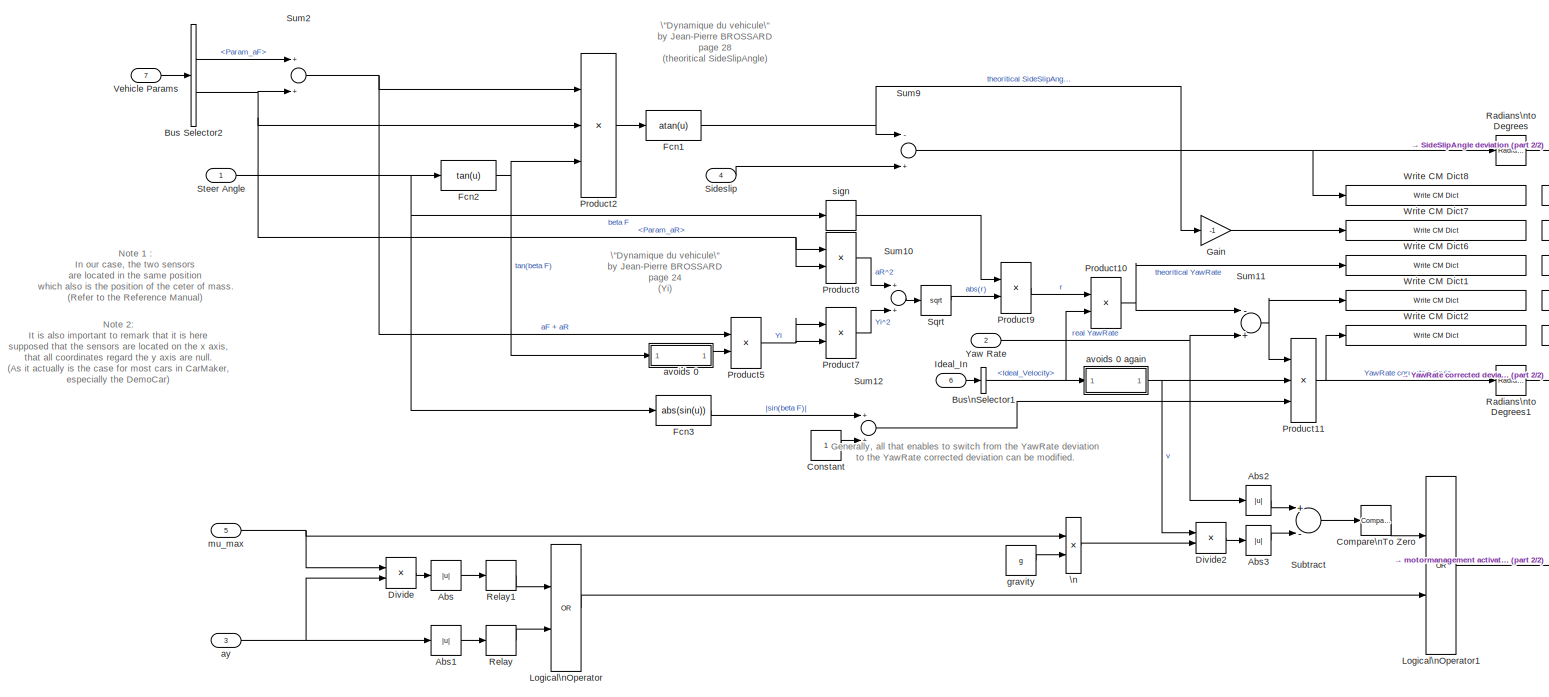
[diagram: ESP Controller/ESP General System/ESP/ECU/Instability detectors - part 1/2, most of the canvas]
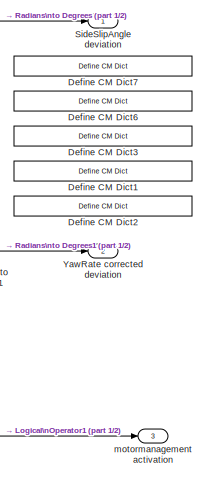
[diagram: ESP Controller/ESP General System/ESP/ECU/Instability detectors - part 2/2, middle right region]
BLOCK [SubSystem] ESP Controller/ESP General System/ESP/ECU/Instability detectors
  Ports = [7, 3]
  RequestExecContextInheritance = off
  SID = 7298
  Variant = off
BLOCK [Abs] ESP Controller/ESP General System/ESP/ECU/Instability detectors/Abs
  SID = 7307
  SaturateOnIntegerOverflow = off
BLOCK [Abs] ESP Controller/ESP General System/ESP/ECU/Instability detectors/Abs1
  SID = 7308
  SaturateOnIntegerOverflow = off
BLOCK [Abs] ESP Controller/ESP General System/ESP/ECU/Instability detectors/Abs2
  SID = 7309
  SaturateOnIntegerOverflow = off
BLOCK [Abs] ESP Controller/ESP General System/ESP/ECU/Instability detectors/Abs3
  SID = 7310
  SaturateOnIntegerOverflow = off
BLOCK [BusSelector] ESP Controller/ESP General System/ESP/ECU/Instability detectors/Bus Selector2
  OutputSignals = VehicleGeometry.Param_aF,VehicleGeometry.Param_aR
  Ports = [1, 2]
  SID = 7312
BLOCK [BusSelector] ESP Controller/ESP General System/ESP/ECU/Instability detectors/Bus\nSelector1
  OutputSignals = Ideal_Velocity.Ideal_Velocity
  Ports = [1, 1]
  SID = 7311
BLOCK [Reference] ESP Controller/ESP General System/ESP/ECU/Instability detectors/Compare\nTo Zero  REF=simulink/Logic and Bit\nOperations/Compare\nTo Zero
  OutDataTypeStr = uint8
  Ports = [1, 1]
  SID = 7313
  SourceBlock = simulink/Logic and Bit\nOperations/Compare\nTo Zero
  SourceType = Compare To Zero
  ZeroCross = on
  relop = >
BLOCK [Constant] ESP Controller/ESP General System/ESP/ECU/Instability detectors/Constant
  SID = 7314
BLOCK [Reference] ESP Controller/ESP General System/ESP/ECU/Instability detectors/Define CM Dict1  REF=CarMaker4SL/Define CM Dict
  Ports = []
  SID = 7315
  SourceBlock = CarMaker4SL/Define CM Dict
  SourceType = Define CarMaker Dictionary Variable
  xdvaplace = None
  xfirststate = 0
  xinitial = 0
  xmono = off
  xname = ESP.YawRate_deviation
  xnstates = 0
  xtype = Double4
  xunit = rad/s
BLOCK [Reference] ESP Controller/ESP General System/ESP/ECU/Instability detectors/Define CM Dict2  REF=CarMaker4SL/Define CM Dict
  Ports = []
  SID = 7316
  SourceBlock = CarMaker4SL/Define CM Dict
  SourceType = Define CarMaker Dictionary Variable
  xdvaplace = None
  xfirststate = 0
  xinitial = 0
  xmono = off
  xname = ESP.YawRate_corrected_deviation
  xnstates = 0
  xtype = Double4
  xunit = rad/m
BLOCK [Reference] ESP Controller/ESP General System/ESP/ECU/Instability detectors/Define CM Dict3  REF=CarMaker4SL/Define CM Dict
  Ports = []
  SID = 7317
  SourceBlock = CarMaker4SL/Define CM Dict
  SourceType = Define CarMaker Dictionary Variable
  xdvaplace = None
  xfirststate = 0
  xinitial = 0
  xmono = off
  xname = ESP.YawRate_theoretical
  xnstates = 0
  xtype = Double4
  xunit = rad/s
BLOCK [Reference] ESP Controller/ESP General System/ESP/ECU/Instability detectors/Define CM Dict6  REF=CarMaker4SL/Define CM Dict
  Ports = []
  SID = 7318
  SourceBlock = CarMaker4SL/Define CM Dict
  SourceType = Define CarMaker Dictionary Variable
  xdvaplace = None
  xfirststate = 0
  xinitial = 0
  xmono = off
  xname = ESP.SideSlipeAngle_theoretical
  xnstates = 0
  xtype = Double4
  xunit = rad
BLOCK [Reference] ESP Controller/ESP General System/ESP/ECU/Instability detectors/Define CM Dict7  REF=CarMaker4SL/Define CM Dict
  Ports = []
  SID = 7319
  SourceBlock = CarMaker4SL/Define CM Dict
  SourceType = Define CarMaker Dictionary Variable
  xdvaplace = None
  xfirststate = 0
  xinitial = 0
  xmono = off
  xname = ESP.SideSlipAngle_deviation
  xnstates = 0
  xtype = Double4
  xunit = rad
BLOCK [Product] ESP Controller/ESP General System/ESP/ECU/Instability detectors/Divide
  InputSameDT = off
  Inputs = /*
  OutDataTypeStr = Inherit: Inherit via internal rule
  Ports = [2, 1]
  RndMeth = Floor
  SID = 7320
  SaturateOnIntegerOverflow = off
BLOCK [Product] ESP Controller/ESP General System/ESP/ECU/Instability detectors/Divide2
  InputSameDT = off
  Inputs = /*
  OutDataTypeStr = Inherit: Inherit via internal rule
  Ports = [2, 1]
  RndMeth = Floor
  SID = 7321
  SaturateOnIntegerOverflow = off
BLOCK [Fcn] ESP Controller/ESP General System/ESP/ECU/Instability detectors/Fcn1
  Expr = atan(u)
  SID = 7322
BLOCK [Fcn] ESP Controller/ESP General System/ESP/ECU/Instability detectors/Fcn2
  Expr = tan(u)
  SID = 7323
BLOCK [Fcn] ESP Controller/ESP General System/ESP/ECU/Instability detectors/Fcn3
  Expr = abs(sin(u))
  SID = 7324
BLOCK [Gain] ESP Controller/ESP General System/ESP/ECU/Instability detectors/Gain
  Gain = -1
  OutDataTypeStr = Inherit: Inherit via internal rule
  ParamDataTypeStr = Inherit: Inherit via internal rule
  SID = 7325
  SaturateOnIntegerOverflow = off
BLOCK [Inport] ESP Controller/ESP General System/ESP/ECU/Instability detectors/Ideal_In
  IconDisplay = Port number
  Port = 6
  SID = 7304
BLOCK [Logic] ESP Controller/ESP General System/ESP/ECU/Instability detectors/Logical\nOperator
  AllPortsSameDT = off
  Operator = OR
  OutDataTypeStr = boolean
  Ports = [2, 1]
  SID = 7326
BLOCK [Logic] ESP Controller/ESP General System/ESP/ECU/Instability detectors/Logical\nOperator1
  AllPortsSameDT = off
  Operator = OR
  OutDataTypeStr = boolean
  Ports = [2, 1]
  SID = 7327
BLOCK [Product] ESP Controller/ESP General System/ESP/ECU/Instability detectors/Product10
  InputSameDT = off
  Inputs = /*
  OutDataTypeStr = Inherit: Inherit via internal rule
  Ports = [2, 1]
  SID = 7328
  SaturateOnIntegerOverflow = off
BLOCK [Product] ESP Controller/ESP General System/ESP/ECU/Instability detectors/Product11
  InputSameDT = off
  Inputs = */*
  OutDataTypeStr = Inherit: Inherit via internal rule
  Ports = [3, 1]
  SID = 7329
  SaturateOnIntegerOverflow = off
BLOCK [Product] ESP Controller/ESP General System/ESP/ECU/Instability detectors/Product2
  InputSameDT = off
  Inputs = /**
  OutDataTypeStr = Inherit: Inherit via internal rule
  Ports = [3, 1]
  SID = 7330
  SaturateOnIntegerOverflow = off
BLOCK [Product] ESP Controller/ESP General System/ESP/ECU/Instability detectors/Product5
  InputSameDT = off
  Inputs = */
  OutDataTypeStr = Inherit: Inherit via internal rule
  Ports = [2, 1]
  SID = 7331
  SaturateOnIntegerOverflow = off
BLOCK [Product] ESP Controller/ESP General System/ESP/ECU/Instability detectors/Product7
  InputSameDT = off
  OutDataTypeStr = Inherit: Inherit via internal rule
  Ports = [2, 1]
  SID = 7332
  SaturateOnIntegerOverflow = off
BLOCK [Product] ESP Controller/ESP General System/ESP/ECU/Instability detectors/Product8
  InputSameDT = off
  OutDataTypeStr = Inherit: Inherit via internal rule
  Ports = [2, 1]
  SID = 7333
  SaturateOnIntegerOverflow = off
BLOCK [Product] ESP Controller/ESP General System/ESP/ECU/Instability detectors/Product9
  InputSameDT = off
  OutDataTypeStr = Inherit: Inherit via internal rule
  Ports = [2, 1]
  SID = 7334
  SaturateOnIntegerOverflow = off
BLOCK [Reference] ESP Controller/ESP General System/ESP/ECU/Instability detectors/Radians\nto Degrees  REF=simulink_extras/Transformations/Radians\nto Degrees
  Ports = [1, 1]
  SID = 7335
  SourceBlock = simulink_extras/Transformations/Radians\nto Degrees
  SourceType = RadiansToDegrees
BLOCK [Reference] ESP Controller/ESP General System/ESP/ECU/Instability detectors/Radians\nto Degrees1  REF=simulink_extras/Transformations/Radians\nto Degrees
  Ports = [1, 1]
  SID = 7336
  SourceBlock = simulink_extras/Transformations/Radians\nto Degrees
  SourceType = RadiansToDegrees
BLOCK [Relay] ESP Controller/ESP General System/ESP/ECU/Instability detectors/Relay
  OffSwitchValue = ay_max_off
  OnSwitchValue = ay_max_on
  SID = 7337
BLOCK [Relay] ESP Controller/ESP General System/ESP/ECU/Instability detectors/Relay1
  OffSwitchValue = ay_per_mu_max_off
  OnSwitchValue = ay_per_mu_max_on
  SID = 7338
BLOCK [Outport] ESP Controller/ESP General System/ESP/ECU/Instability detectors/SideSlipAngle deviation
  IconDisplay = Port number
  SID = 7368
BLOCK [Inport] ESP Controller/ESP General System/ESP/ECU/Instability detectors/Sideslip
  IconDisplay = Port number
  Port = 4
  SID = 7302
BLOCK [Math] ESP Controller/ESP General System/ESP/ECU/Instability detectors/Sqrt
  Operator = sqrt
  Ports = [1, 1]
  SID = 7339
BLOCK [Inport] ESP Controller/ESP General System/ESP/ECU/Instability detectors/Steer Angle
  IconDisplay = Port number
  SID = 7299
BLOCK [Sum] ESP Controller/ESP General System/ESP/ECU/Instability detectors/Subtract
  InputSameDT = off
  Inputs = +-
  OutDataTypeStr = Inherit: Inherit via internal rule
  Ports = [2, 1]
  SID = 7340
  SaturateOnIntegerOverflow = off
BLOCK [Sum] ESP Controller/ESP General System/ESP/ECU/Instability detectors/Sum10
  Inputs = 2
  Ports = [2, 1]
  SID = 7341
BLOCK [Sum] ESP Controller/ESP General System/ESP/ECU/Instability detectors/Sum11
  Inputs = -+
  Ports = [2, 1]
  SID = 7342
BLOCK [Sum] ESP Controller/ESP General System/ESP/ECU/Instability detectors/Sum12
  Ports = [2, 1]
  SID = 7343
BLOCK [Sum] ESP Controller/ESP General System/ESP/ECU/Instability detectors/Sum2
  Inputs = 2
  Ports = [2, 1]
  SID = 7344
BLOCK [Sum] ESP Controller/ESP General System/ESP/ECU/Instability detectors/Sum9
  Inputs = -+
  Ports = [2, 1]
  SID = 7345
BLOCK [Inport] ESP Controller/ESP General System/ESP/ECU/Instability detectors/Vehicle Params
  IconDisplay = Port number
  Port = 7
  SID = 7305
BLOCK [Reference] ESP Controller/ESP General System/ESP/ECU/Instability detectors/Write CM Dict1  REF=CarMaker4SL/Write CM Dict
  Ports = [1]
  SID = 7346
  SourceBlock = CarMaker4SL/Write CM Dict
  SourceType = Write CarMaker Dictionary Variable(s)
  xname = ESP.YawRate_deviation
  xsync = off
BLOCK [Reference] ESP Controller/ESP General System/ESP/ECU/Instability detectors/Write CM Dict2  REF=CarMaker4SL/Write CM Dict
  Ports = [1]
  SID = 7347
  SourceBlock = CarMaker4SL/Write CM Dict
  SourceType = Write CarMaker Dictionary Variable(s)
  xname = ESP.YawRate_corrected_deviation
  xsync = off
BLOCK [Reference] ESP Controller/ESP General System/ESP/ECU/Instability detectors/Write CM Dict6  REF=CarMaker4SL/Write CM Dict
  Ports = [1]
  SID = 7348
  SourceBlock = CarMaker4SL/Write CM Dict
  SourceType = Write CarMaker Dictionary Variable(s)
  xname = ESP.YawRate_theoretical
  xsync = off
BLOCK [Reference] ESP Controller/ESP General System/ESP/ECU/Instability detectors/Write CM Dict7  REF=CarMaker4SL/Write CM Dict
  Ports = [1]
  SID = 7349
  SourceBlock = CarMaker4SL/Write CM Dict
  SourceType = Write CarMaker Dictionary Variable(s)
  xname = ESP.SideSlipeAngle_theoretical
  xsync = off
BLOCK [Reference] ESP Controller/ESP General System/ESP/ECU/Instability detectors/Write CM Dict8  REF=CarMaker4SL/Write CM Dict
  Ports = [1]
  SID = 7350
  SourceBlock = CarMaker4SL/Write CM Dict
  SourceType = Write CarMaker Dictionary Variable(s)
  xname = ESP.SideSlipAngle_deviation
  xsync = off
BLOCK [Inport] ESP Controller/ESP General System/ESP/ECU/Instability detectors/Yaw Rate
  IconDisplay = Port number
  Port = 2
  SID = 7300
BLOCK [Outport] ESP Controller/ESP General System/ESP/ECU/Instability detectors/YawRate corrected deviation
  IconDisplay = Port number
  Port = 2
  SID = 7369
BLOCK [Product] ESP Controller/ESP General System/ESP/ECU/Instability detectors/\n
  InputSameDT = off
  Inputs = **
  OutDataTypeStr = Inherit: Inherit via internal rule
  Ports = [2, 1]
  RndMeth = Floor
  SID = 7306
  SaturateOnIntegerOverflow = off
BLOCK [SubSystem] ESP Controller/ESP General System/ESP/ECU/Instability detectors/avoids 0
  Ports = [1, 1]
  RequestExecContextInheritance = off
  SID = 7351
  Variant = off
BLOCK [SubSystem] ESP Controller/ESP General System/ESP/ECU/Instability detectors/avoids 0 again
  Ports = [1, 1]
  RequestExecContextInheritance = off
  SID = 7360
  Variant = off
BLOCK [Inport] ESP Controller/ESP General System/ESP/ECU/Instability detectors/avoids 0 again/In1
  IconDisplay = Port number
  SID = 7361
BLOCK [Outport] ESP Controller/ESP General System/ESP/ECU/Instability detectors/avoids 0 again/Out1
  IconDisplay = Port number
  SID = 7365
BLOCK [RelationalOperator] ESP Controller/ESP General System/ESP/ECU/Instability detectors/avoids 0 again/Relational\nOperator
  InputSameDT = off
  OutDataTypeStr = boolean
  Ports = [2, 1]
  SID = 7362
BLOCK [Switch] ESP Controller/ESP General System/ESP/ECU/Instability detectors/avoids 0 again/Switch
  Criteria = u2 > Threshold
  InputSameDT = off
  SID = 7363
  SaturateOnIntegerOverflow = off
BLOCK [Constant] ESP Controller/ESP General System/ESP/ECU/Instability detectors/avoids 0 again/velocity (in m//s)
  SID = 7364
  Value = 3/3.6
BLOCK [Reference] ESP Controller/ESP General System/ESP/ECU/Instability detectors/avoids 0/Compare\nTo Zero  REF=simulink/Logic and Bit\nOperations/Compare\nTo Zero
  OutDataTypeStr = uint8
  Ports = [1, 1]
  SID = 7353
  SourceBlock = simulink/Logic and Bit\nOperations/Compare\nTo Zero
  SourceType = Compare To Zero
  ZeroCross = on
  relop = ~=
BLOCK [Constant] ESP Controller/ESP General System/ESP/ECU/Instability detectors/avoids 0/Constant
  SID = 7354
  Value = 0.00001
BLOCK [DeadZone] ESP Controller/ESP General System/ESP/ECU/Instability detectors/avoids 0/Dead Zone
  LowerValue = -0.00001
  SID = 7355
  UpperValue = 0.00001
BLOCK [Inport] ESP Controller/ESP General System/ESP/ECU/Instability detectors/avoids 0/In1
  IconDisplay = Port number
  SID = 7352
BLOCK [Relay] ESP Controller/ESP General System/ESP/ECU/Instability detectors/avoids 0/ON//OFF
  OffOutputValue = -1
  OffSwitchValue = 0
  OnSwitchValue = 0
  SID = 7356
  ZeroCross = off
BLOCK [Outport] ESP Controller/ESP General System/ESP/ECU/Instability detectors/avoids 0/Out1
  IconDisplay = Port number
  SID = 7359
BLOCK [Product] ESP Controller/ESP General System/ESP/ECU/Instability detectors/avoids 0/Product7
  InputSameDT = off
  OutDataTypeStr = Inherit: Inherit via internal rule
  Ports = [2, 1]
  SID = 7357
  SaturateOnIntegerOverflow = off
BLOCK [Switch] ESP Controller/ESP General System/ESP/ECU/Instability detectors/avoids 0/Switch
  Criteria = u2 > Threshold
  InputSameDT = off
  SID = 7358
  SaturateOnIntegerOverflow = off
BLOCK [Inport] ESP Controller/ESP General System/ESP/ECU/Instability detectors/ay
  IconDisplay = Port number
  Port = 3
  SID = 7301
BLOCK [Constant] ESP Controller/ESP General System/ESP/ECU/Instability detectors/gravity
  SID = 7366
  Value = g
BLOCK [Outport] ESP Controller/ESP General System/ESP/ECU/Instability detectors/motormanagement activation
  IconDisplay = Port number
  Port = 3
  SID = 7370
BLOCK [Inport] ESP Controller/ESP General System/ESP/ECU/Instability detectors/mu_max
  IconDisplay = Port number
  Port = 5
  SID = 7303
BLOCK [Relay] ESP Controller/ESP General System/ESP/ECU/Instability detectors/sign
  OffOutputValue = -1
  OffSwitchValue = 0
  OnSwitchValue = 0
  SID = 7367
BLOCK [SubSystem] ESP Controller/ESP General System/ESP/ECU/Motor management strategy
  Ports = [3, 1]
  RequestExecContextInheritance = off
  SID = 7371
  Variant = off
BLOCK [Abs] ESP Controller/ESP General System/ESP/ECU/Motor management strategy/Abs1
  SID = 7375
  SaturateOnIntegerOverflow = off
BLOCK [Reference] ESP Controller/ESP General System/ESP/ECU/Motor management strategy/Compare\nTo Zero  REF=simulink/Logic and Bit\nOperations/Compare\nTo Zero
  OutDataTypeStr = uint8
  Ports = [1, 1]
  SID = 7376
  SourceBlock = simulink/Logic and Bit\nOperations/Compare\nTo Zero
  SourceType = Compare To Zero
  ZeroCross = on
  relop = ==
BLOCK [Constant] ESP Controller/ESP General System/ESP/ECU/Motor management strategy/Constant
  SID = 7377
  Value = ESP_min_throttle_fac
BLOCK [DataTypeConversion] ESP Controller/ESP General System/ESP/ECU/Motor management strategy/Data Type Conversion2
  RndMeth = Floor
  SID = 7378
  SaturateOnIntegerOverflow = off
BLOCK [Outport] ESP Controller/ESP General System/ESP/ECU/Motor management strategy/Gas_out
  IconDisplay = Port number
  SID = 7426
BLOCK [SubSystem] ESP Controller/ESP General System/ESP/ECU/Motor management strategy/PID-Controller
  Ports = [2, 1]
  RequestExecContextInheritance = off
  SID = 7379
  Variant = off
BLOCK [Gain] ESP Controller/ESP General System/ESP/ECU/Motor management strategy/PID-Controller/Derivative Gain
  Gain = ESP_ctrl_kD
  OutDataTypeStr = Inherit: Inherit via internal rule
  ParamDataTypeStr = Inherit: Inherit via internal rule
  SID = 7382
  SaturateOnIntegerOverflow = off
BLOCK [Integrator] ESP Controller/ESP General System/ESP/ECU/Motor management strategy/PID-Controller/Filter
  ExternalReset = either
  Ports = [2, 1]
  SID = 7383
BLOCK [Gain] ESP Controller/ESP General System/ESP/ECU/Motor management strategy/PID-Controller/Filter Coefficient
  OutDataTypeStr = Inherit: Inherit via internal rule
  ParamDataTypeStr = Inherit: Inherit via internal rule
  SID = 7384
  SaturateOnIntegerOverflow = off
BLOCK [Gain] ESP Controller/ESP General System/ESP/ECU/Motor management strategy/PID-Controller/Integral Gain
  Gain = ESP_ctrl_kI
  OutDataTypeStr = Inherit: Inherit via internal rule
  ParamDataTypeStr = Inherit: Inherit via internal rule
  SID = 7385
  SaturateOnIntegerOverflow = off
BLOCK [Integrator] ESP Controller/ESP General System/ESP/ECU/Motor management strategy/PID-Controller/Integrator
  ExternalReset = either
  Ports = [2, 1]
  SID = 7386
BLOCK [Gain] ESP Controller/ESP General System/ESP/ECU/Motor management strategy/PID-Controller/Proportional Gain
  Gain = ESP_ctrl_kP
  OutDataTypeStr = Inherit: Inherit via internal rule
  ParamDataTypeStr = Inherit: Inherit via internal rule
  SID = 7387
  SaturateOnIntegerOverflow = off
BLOCK [Inport] ESP Controller/ESP General System/ESP/ECU/Motor management strategy/PID-Controller/RESET
  IconDisplay = Port number
  Port = 2
  SID = 7381
BLOCK [Sum] ESP Controller/ESP General System/ESP/ECU/Motor management strategy/PID-Controller/Sum
  IconShape = round
  InputSameDT = off
  Inputs = +++
  OutDataTypeStr = Inherit: Inherit via internal rule
  Ports = [3, 1]
  SID = 7388
  SaturateOnIntegerOverflow = off
BLOCK [Sum] ESP Controller/ESP General System/ESP/ECU/Motor management strategy/PID-Controller/SumD
  IconShape = round
  InputSameDT = off
  Inputs = |+-
  OutDataTypeStr = Inherit: Inherit via internal rule
  Ports = [2, 1]
  SID = 7389
  SaturateOnIntegerOverflow = off
BLOCK [Inport] ESP Controller/ESP General System/ESP/ECU/Motor management strategy/PID-Controller/u
  IconDisplay = Port number
  SID = 7380
BLOCK [Outport] ESP Controller/ESP General System/ESP/ECU/Motor management strategy/PID-Controller/y
  IconDisplay = Port number
  InitialOutput = 0
  SID = 7390
BLOCK [Product] ESP Controller/ESP General System/ESP/ECU/Motor management strategy/Product
  InputSameDT = off
  OutDataTypeStr = Inherit: Inherit via internal rule
  Ports = [2, 1]
  SID = 7391
  SaturateOnIntegerOverflow = off
BLOCK [Reference] ESP Controller/ESP General System/ESP/ECU/Motor management strategy/Saturation\nDynamic  REF=simulink/Discontinuities/Saturation\nDynamic
  DoSatur = off
  LockScale = off
  OutDataType = fixdt(1, 16)
  OutDataTypeStr = Inherit: Same as second input
  OutMax = []
  OutMin = []
  OutScaling = 2^-10
  OutputDataTypeScalingMode = Same as second input
  Ports = [3, 1]
  RndMeth = Floor
  SID = 7392
  SourceBlock = simulink/Discontinuities/Saturation\nDynamic
  SourceType = Saturation Dynamic
BLOCK [Switch] ESP Controller/ESP General System/ESP/ECU/Motor management strategy/Switch1
  Criteria = u2 > Threshold
  InputSameDT = off
  SID = 7393
  SaturateOnIntegerOverflow = off
BLOCK [Switch] ESP Controller/ESP General System/ESP/ECU/Motor management strategy/Switch3
  Criteria = u2 > Threshold
  InputSameDT = off
  SID = 7394
  SaturateOnIntegerOverflow = off
BLOCK [Inport] ESP Controller/ESP General System/ESP/ECU/Motor management strategy/Throttle_position
  IconDisplay = Port number
  Port = 2
  SID = 7373
BLOCK [Inport] ESP Controller/ESP General System/ESP/ECU/Motor management strategy/activation DK
  IconDisplay = Port number
  SID = 7372
BLOCK [Inport] ESP Controller/ESP General System/ESP/ECU/Motor management strategy/ax
  IconDisplay = Port number
  Port = 3
  SID = 7374
BLOCK [SubSystem] ESP Controller/ESP General System/ESP/ECU/Motor management strategy/restoration to driver
  Ports = [3, 2]
  RequestExecContextInheritance = off
  SID = 7395
  Variant = off
BLOCK [Outport] ESP Controller/ESP General System/ESP/ECU/Motor management strategy/restoration to driver/Control Gas
  IconDisplay = Port number
  SID = 7423
BLOCK [SubSystem] ESP Controller/ESP General System/ESP/ECU/Motor management strategy/restoration to driver/I-Controller
  Ports = [3, 1]
  RequestExecContextInheritance = off
  SID = 7399
  Variant = off
BLOCK [Inport] ESP Controller/ESP General System/ESP/ECU/Motor management strategy/restoration to driver/I-Controller/I0
  IconDisplay = Port number
  Port = 3
  SID = 7402
BLOCK [Gain] ESP Controller/ESP General System/ESP/ECU/Motor management strategy/restoration to driver/I-Controller/Integral Gain
  Gain = ESP_ctrl_restore_kI
  OutDataTypeStr = Inherit: Inherit via internal rule
  ParamDataTypeStr = Inherit: Inherit via internal rule
  SID = 7403
  SaturateOnIntegerOverflow = off
BLOCK [Integrator] ESP Controller/ESP General System/ESP/ECU/Motor management strategy/restoration to driver/I-Controller/Integrator
  ExternalReset = either
  InitialCondition = InitialConditionForIntegrator
  InitialConditionSource = external
  Ports = [3, 1]
  SID = 7404
BLOCK [Inport] ESP Controller/ESP General System/ESP/ECU/Motor management strategy/restoration to driver/I-Controller/RESET
  IconDisplay = Port number
  Port = 2
  SID = 7401
BLOCK [Inport] ESP Controller/ESP General System/ESP/ECU/Motor management strategy/restoration to driver/I-Controller/u
  IconDisplay = Port number
  SID = 7400
BLOCK [Outport] ESP Controller/ESP General System/ESP/ECU/Motor management strategy/restoration to driver/I-Controller/y
  IconDisplay = Port number
  InitialOutput = 0
  SID = 7405
BLOCK [Reference] ESP Controller/ESP General System/ESP/ECU/Motor management strategy/restoration to driver/Saturation\nDynamic1  REF=simulink/Discontinuities/Saturation\nDynamic
  DoSatur = off
  LockScale = off
  OutDataType = fixdt(1, 16)
  OutDataTypeStr = Inherit: Same as second input
  OutMax = []
  OutMin = []
  OutScaling = 2^-10
  OutputDataTypeScalingMode = Same as second input
  Ports = [3, 1]
  RndMeth = Floor
  SID = 7406
  SourceBlock = simulink/Discontinuities/Saturation\nDynamic
  SourceType = Saturation Dynamic
BLOCK [Sum] ESP Controller/ESP General System/ESP/ECU/Motor management strategy/restoration to driver/Subtract1
  InputSameDT = off
  Inputs = +-
  OutDataTypeStr = Inherit: Inherit via internal rule
  Ports = [2, 1]
  SID = 7407
  SaturateOnIntegerOverflow = off
BLOCK [Inport] ESP Controller/ESP General System/ESP/ECU/Motor management strategy/restoration to driver/activation on
  IconDisplay = Port number
  Port = 2
  SID = 7397
BLOCK [Inport] ESP Controller/ESP General System/ESP/ECU/Motor management strategy/restoration to driver/controller in
  IconDisplay = Port number
  SID = 7396
BLOCK [Inport] ESP Controller/ESP General System/ESP/ECU/Motor management strategy/restoration to driver/driver in
  IconDisplay = Port number
  Port = 3
  SID = 7398
BLOCK [SubSystem] ESP Controller/ESP General System/ESP/ECU/Motor management strategy/restoration to driver/lock_signal for n s
  Ports = [1, 1]
  RequestExecContextInheritance = off
  SID = 7408
  Variant = off
BLOCK [Constant] ESP Controller/ESP General System/ESP/ECU/Motor management strategy/restoration to driver/lock_signal for n s/Constant
  SID = 7411
  Value = locktime_throttle
BLOCK [DataTypeConversion] ESP Controller/ESP General System/ESP/ECU/Motor management strategy/restoration to driver/lock_signal for n s/Data Type Conversion
  RndMeth = Floor
  SID = 7412
  SaturateOnIntegerOverflow = off
BLOCK [Integrator] ESP Controller/ESP General System/ESP/ECU/Motor management strategy/restoration to driver/lock_signal for n s/Integrator
  ExternalReset = falling
  Ports = [2, 1]
  SID = 7413
BLOCK [Logic] ESP Controller/ESP General System/ESP/ECU/Motor management strategy/restoration to driver/lock_signal for n s/Logical\nOperator3
  AllPortsSameDT = off
  OutDataTypeStr = boolean
  Ports = [2, 1]
  SID = 7414
BLOCK [RelationalOperator] ESP Controller/ESP General System/ESP/ECU/Motor management strategy/restoration to driver/lock_signal for n s/Relational Operator
  InputSameDT = off
  Operator = <=
  OutDataTypeStr = boolean
  Ports = [2, 1]
  SID = 7415
BLOCK [Inport] ESP Controller/ESP General System/ESP/ECU/Motor management strategy/restoration to driver/lock_signal for n s/Start_value
  IconDisplay = Port number
  SID = 7409
BLOCK [Outport] ESP Controller/ESP General System/ESP/ECU/Motor management strategy/restoration to driver/lock_signal for n s/Start_value_locked
  IconDisplay = Port number
  SID = 7420
BLOCK [SubSystem] ESP Controller/ESP General System/ESP/ECU/Motor management strategy/restoration to driver/lock_signal for n s/Triggered\nSubsystem
  Ports = [0, 1, 0, 1]
  RequestExecContextInheritance = off
  SID = 7416
  TreatAsAtomicUnit = on
  Variant = off
BLOCK [Constant] ESP Controller/ESP General System/ESP/ECU/Motor management strategy/restoration to driver/lock_signal for n s/Triggered\nSubsystem/Constant1
  SID = 7418
BLOCK [Outport] ESP Controller/ESP General System/ESP/ECU/Motor management strategy/restoration to driver/lock_signal for n s/Triggered\nSubsystem/Out1
  IconDisplay = Port number
  InitialOutput = [0]
  SID = 7419
BLOCK [TriggerPort] ESP Controller/ESP General System/ESP/ECU/Motor management strategy/restoration to driver/lock_signal for n s/Triggered\nSubsystem/Trigger
  Ports = []
  SID = 7417
  StatesWhenEnabling = held
  TriggerType = falling
  VariantControl = Variant
BLOCK [Reference] ESP Controller/ESP General System/ESP/ECU/Motor management strategy/restoration to driver/lock_signal for n s/\n  REF=simulink/Logic and Bit\nOperations/Compare\nTo Constant
  OutDataTypeStr = uint8
  Ports = [1, 1]
  SID = 7410
  SourceBlock = simulink/Logic and Bit\nOperations/Compare\nTo Constant
  SourceType = Compare To Constant
  ZeroCross = on
  const = 0
  relop = >
BLOCK [Outport] ESP Controller/ESP General System/ESP/ECU/Motor management strategy/restoration to driver/restoration
  IconDisplay = Port number
  Port = 2
  SID = 7424
BLOCK [Gain] ESP Controller/ESP General System/ESP/ECU/Motor management strategy/restoration to driver/vquer_VA4
  Gain = 0
  OutDataTypeStr = Inherit: Inherit via internal rule
  ParamDataTypeStr = Inherit: Inherit via internal rule
  SID = 7421
  SaturateOnIntegerOverflow = off
BLOCK [Gain] ESP Controller/ESP General System/ESP/ECU/Motor management strategy/restoration to driver/vquer_VA5
  OutDataTypeStr = Inherit: Inherit via internal rule
  ParamDataTypeStr = Inherit: Inherit via internal rule
  SID = 7422
  SaturateOnIntegerOverflow = off
BLOCK [Gain] ESP Controller/ESP General System/ESP/ECU/Motor management strategy/vquer_VA1
  OutDataTypeStr = Inherit: Inherit via internal rule
  ParamDataTypeStr = Inherit: Inherit via internal rule
  SID = 7425
  SaturateOnIntegerOverflow = off
BLOCK [Outport] ESP Controller/ESP General System/ESP/ECU/RL_Trq_target
  IconDisplay = Port number
  Port = 7
  SID = 7538
BLOCK [Outport] ESP Controller/ESP General System/ESP/ECU/RL_active
  IconDisplay = Port number
  Port = 6
  SID = 7537
BLOCK [Outport] ESP Controller/ESP General System/ESP/ECU/RR_Trq_target
  IconDisplay = Port number
  Port = 9
  SID = 7540
BLOCK [Outport] ESP Controller/ESP General System/ESP/ECU/RR_active
  IconDisplay = Port number
  Port = 8
  SID = 7539
BLOCK [Inport] ESP Controller/ESP General System/ESP/ECU/Sideslip
  IconDisplay = Port number
  Port = 5
  SID = 7209
BLOCK [Inport] ESP Controller/ESP General System/ESP/ECU/Steer Angle
  IconDisplay = Port number
  Port = 4
  SID = 7208
BLOCK [Inport] ESP Controller/ESP General System/ESP/ECU/Throttle Position
  IconDisplay = Port number
  Port = 2
  SID = 7206
BLOCK [Inport] ESP Controller/ESP General System/ESP/ECU/User_In
  IconDisplay = Port number
  Port = 10
  SID = 7214
BLOCK [Inport] ESP Controller/ESP General System/ESP/ECU/Vehicle Params
  IconDisplay = Port number
  Port = 9
  SID = 7213
BLOCK [Inport] ESP Controller/ESP General System/ESP/ECU/Yaw Rate
  IconDisplay = Port number
  Port = 3
  SID = 7207
BLOCK [Inport] ESP Controller/ESP General System/ESP/ECU/ax
  IconDisplay = Port number
  SID = 7205
BLOCK [Inport] ESP Controller/ESP General System/ESP/ECU/ay
  IconDisplay = Port number
  Port = 7
  SID = 7211
BLOCK [SubSystem] ESP Controller/ESP General System/ESP/ECU/brake distribution strategy
  Ports = [4, 8]
  RequestExecContextInheritance = off
  SID = 7427
  Variant = off
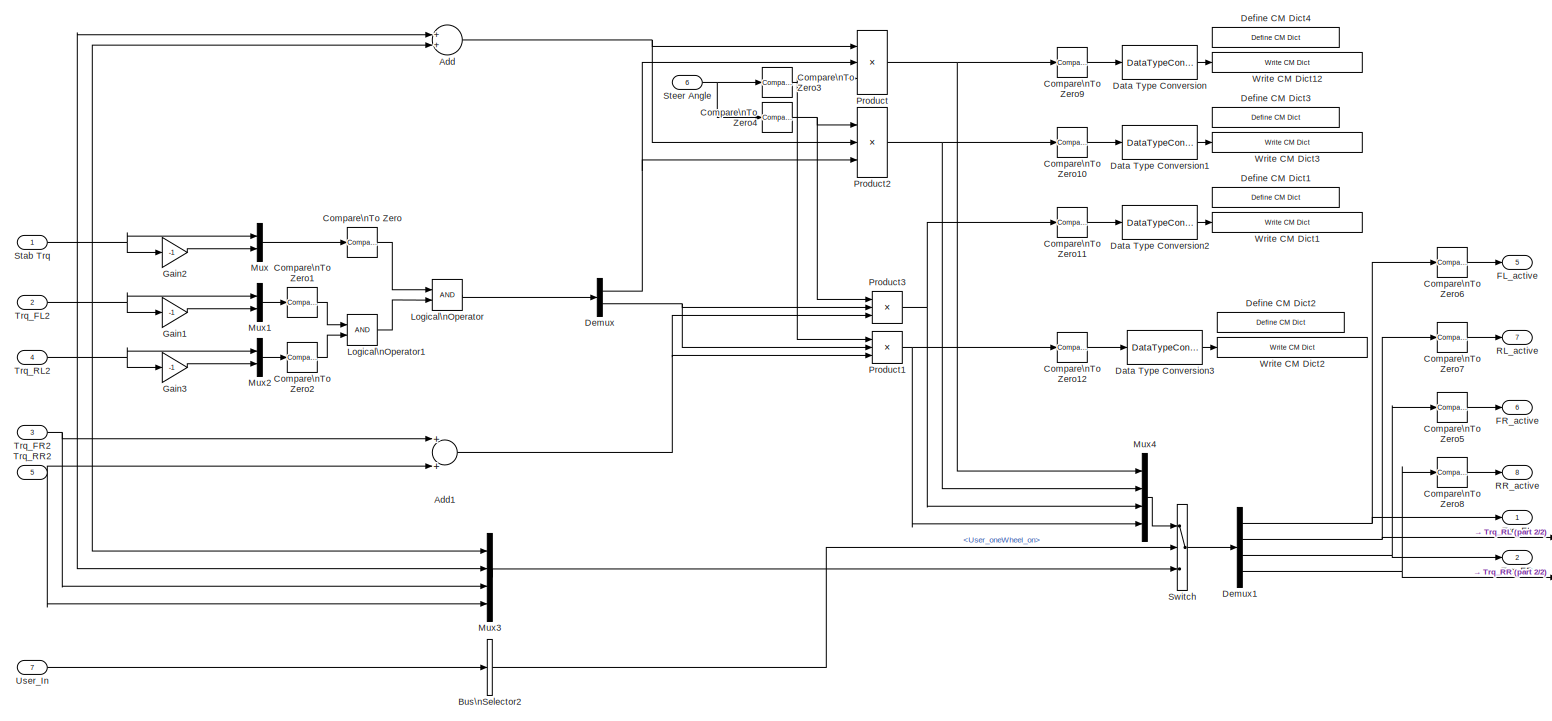
[diagram: ESP Controller/ESP General System/ESP/ECU/brake distribution strategy/2Rad ->1Rad - part 1/2, most of the canvas]
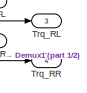
[diagram: ESP Controller/ESP General System/ESP/ECU/brake distribution strategy/2Rad ->1Rad - part 2/2, bottom right region]
BLOCK [SubSystem] ESP Controller/ESP General System/ESP/ECU/brake distribution strategy/2Rad ->1Rad
  Ports = [7, 8]
  RequestExecContextInheritance = off
  SID = 7432
  Variant = off
BLOCK [Sum] ESP Controller/ESP General System/ESP/ECU/brake distribution strategy/2Rad ->1Rad/Add
  InputSameDT = off
  OutDataTypeStr = Inherit: Inherit via internal rule
  Ports = [2, 1]
  SID = 7440
  SaturateOnIntegerOverflow = off
BLOCK [Sum] ESP Controller/ESP General System/ESP/ECU/brake distribution strategy/2Rad ->1Rad/Add1
  InputSameDT = off
  OutDataTypeStr = Inherit: Inherit via internal rule
  Ports = [2, 1]
  SID = 7441
  SaturateOnIntegerOverflow = off
BLOCK [BusSelector] ESP Controller/ESP General System/ESP/ECU/brake distribution strategy/2Rad ->1Rad/Bus\nSelector2
  OutputSignals = User_oneWheel_on
  Ports = [1, 1]
  SID = 7442
BLOCK [Reference] ESP Controller/ESP General System/ESP/ECU/brake distribution strategy/2Rad ->1Rad/Compare\nTo Zero  REF=simulink/Logic and Bit\nOperations/Compare\nTo Zero
  OutDataTypeStr = uint8
  Ports = [1, 1]
  SID = 7443
  SourceBlock = simulink/Logic and Bit\nOperations/Compare\nTo Zero
  SourceType = Compare To Zero
  ZeroCross = on
  relop = <
BLOCK [Reference] ESP Controller/ESP General System/ESP/ECU/brake distribution strategy/2Rad ->1Rad/Compare\nTo Zero1  REF=simulink/Logic and Bit\nOperations/Compare\nTo Zero
  OutDataTypeStr = uint8
  Ports = [1, 1]
  SID = 7444
  SourceBlock = simulink/Logic and Bit\nOperations/Compare\nTo Zero
  SourceType = Compare To Zero
  ZeroCross = on
  relop = >
BLOCK [Reference] ESP Controller/ESP General System/ESP/ECU/brake distribution strategy/2Rad ->1Rad/Compare\nTo Zero10  REF=simulink/Logic and Bit\nOperations/Compare\nTo Zero
  OutDataTypeStr = uint8
  Ports = [1, 1]
  SID = 7445
  SourceBlock = simulink/Logic and Bit\nOperations/Compare\nTo Zero
  SourceType = Compare To Zero
  ZeroCross = on
  relop = >
BLOCK [Reference] ESP Controller/ESP General System/ESP/ECU/brake distribution strategy/2Rad ->1Rad/Compare\nTo Zero11  REF=simulink/Logic and Bit\nOperations/Compare\nTo Zero
  OutDataTypeStr = uint8
  Ports = [1, 1]
  SID = 7446
  SourceBlock = simulink/Logic and Bit\nOperations/Compare\nTo Zero
  SourceType = Compare To Zero
  ZeroCross = on
  relop = >
BLOCK [Reference] ESP Controller/ESP General System/ESP/ECU/brake distribution strategy/2Rad ->1Rad/Compare\nTo Zero12  REF=simulink/Logic and Bit\nOperations/Compare\nTo Zero
  OutDataTypeStr = uint8
  Ports = [1, 1]
  SID = 7447
  SourceBlock = simulink/Logic and Bit\nOperations/Compare\nTo Zero
  SourceType = Compare To Zero
  ZeroCross = on
  relop = >
BLOCK [Reference] ESP Controller/ESP General System/ESP/ECU/brake distribution strategy/2Rad ->1Rad/Compare\nTo Zero2  REF=simulink/Logic and Bit\nOperations/Compare\nTo Zero
  OutDataTypeStr = uint8
  Ports = [1, 1]
  SID = 7448
  SourceBlock = simulink/Logic and Bit\nOperations/Compare\nTo Zero
  SourceType = Compare To Zero
  ZeroCross = on
  relop = >
BLOCK [Reference] ESP Controller/ESP General System/ESP/ECU/brake distribution strategy/2Rad ->1Rad/Compare\nTo Zero3  REF=simulink/Logic and Bit\nOperations/Compare\nTo Zero
  OutDataTypeStr = uint8
  Ports = [1, 1]
  SID = 7449
  SourceBlock = simulink/Logic and Bit\nOperations/Compare\nTo Zero
  SourceType = Compare To Zero
  ZeroCross = on
  relop = <
BLOCK [Reference] ESP Controller/ESP General System/ESP/ECU/brake distribution strategy/2Rad ->1Rad/Compare\nTo Zero4  REF=simulink/Logic and Bit\nOperations/Compare\nTo Zero
  OutDataTypeStr = uint8
  Ports = [1, 1]
  SID = 7450
  SourceBlock = simulink/Logic and Bit\nOperations/Compare\nTo Zero
  SourceType = Compare To Zero
  ZeroCross = on
  relop = >
BLOCK [Reference] ESP Controller/ESP General System/ESP/ECU/brake distribution strategy/2Rad ->1Rad/Compare\nTo Zero5  REF=simulink/Logic and Bit\nOperations/Compare\nTo Zero
  OutDataTypeStr = uint8
  Ports = [1, 1]
  SID = 7451
  SourceBlock = simulink/Logic and Bit\nOperations/Compare\nTo Zero
  SourceType = Compare To Zero
  ZeroCross = on
  relop = >
BLOCK [Reference] ESP Controller/ESP General System/ESP/ECU/brake distribution strategy/2Rad ->1Rad/Compare\nTo Zero6  REF=simulink/Logic and Bit\nOperations/Compare\nTo Zero
  OutDataTypeStr = uint8
  Ports = [1, 1]
  SID = 7452
  SourceBlock = simulink/Logic and Bit\nOperations/Compare\nTo Zero
  SourceType = Compare To Zero
  ZeroCross = on
  relop = >
BLOCK [Reference] ESP Controller/ESP General System/ESP/ECU/brake distribution strategy/2Rad ->1Rad/Compare\nTo Zero7  REF=simulink/Logic and Bit\nOperations/Compare\nTo Zero
  OutDataTypeStr = uint8
  Ports = [1, 1]
  SID = 7453
  SourceBlock = simulink/Logic and Bit\nOperations/Compare\nTo Zero
  SourceType = Compare To Zero
  ZeroCross = on
  relop = >
BLOCK [Reference] ESP Controller/ESP General System/ESP/ECU/brake distribution strategy/2Rad ->1Rad/Compare\nTo Zero8  REF=simulink/Logic and Bit\nOperations/Compare\nTo Zero
  OutDataTypeStr = uint8
  Ports = [1, 1]
  SID = 7454
  SourceBlock = simulink/Logic and Bit\nOperations/Compare\nTo Zero
  SourceType = Compare To Zero
  ZeroCross = on
  relop = >
BLOCK [Reference] ESP Controller/ESP General System/ESP/ECU/brake distribution strategy/2Rad ->1Rad/Compare\nTo Zero9  REF=simulink/Logic and Bit\nOperations/Compare\nTo Zero
  OutDataTypeStr = uint8
  Ports = [1, 1]
  SID = 7455
  SourceBlock = simulink/Logic and Bit\nOperations/Compare\nTo Zero
  SourceType = Compare To Zero
  ZeroCross = on
  relop = >
BLOCK [DataTypeConversion] ESP Controller/ESP General System/ESP/ECU/brake distribution strategy/2Rad ->1Rad/Data Type Conversion
  RndMeth = Floor
  SID = 7456
  SaturateOnIntegerOverflow = off
BLOCK [DataTypeConversion] ESP Controller/ESP General System/ESP/ECU/brake distribution strategy/2Rad ->1Rad/Data Type Conversion1
  RndMeth = Floor
  SID = 7457
  SaturateOnIntegerOverflow = off
BLOCK [DataTypeConversion] ESP Controller/ESP General System/ESP/ECU/brake distribution strategy/2Rad ->1Rad/Data Type Conversion2
  RndMeth = Floor
  SID = 7458
  SaturateOnIntegerOverflow = off
BLOCK [DataTypeConversion] ESP Controller/ESP General System/ESP/ECU/brake distribution strategy/2Rad ->1Rad/Data Type Conversion3
  RndMeth = Floor
  SID = 7459
  SaturateOnIntegerOverflow = off
BLOCK [Reference] ESP Controller/ESP General System/ESP/ECU/brake distribution strategy/2Rad ->1Rad/Define CM Dict1  REF=CarMaker4SL/Define CM Dict
  Ports = []
  SID = 7460
  SourceBlock = CarMaker4SL/Define CM Dict
  SourceType = Define CarMaker Dictionary Variable
  xdvaplace = VC
  xfirststate = 0
  xinitial = 0
  xmono = off
  xname = ESP.FR_active
  xnstates = 2
  xtype = Char
BLOCK [Reference] ESP Controller/ESP General System/ESP/ECU/brake distribution strategy/2Rad ->1Rad/Define CM Dict2  REF=CarMaker4SL/Define CM Dict
  Ports = []
  SID = 7461
  SourceBlock = CarMaker4SL/Define CM Dict
  SourceType = Define CarMaker Dictionary Variable
  xdvaplace = VC
  xfirststate = 0
  xinitial = 0
  xmono = off
  xname = ESP.RR_active
  xnstates = 2
  xtype = Char
BLOCK [Reference] ESP Controller/ESP General System/ESP/ECU/brake distribution strategy/2Rad ->1Rad/Define CM Dict3  REF=CarMaker4SL/Define CM Dict
  Ports = []
  SID = 7462
  SourceBlock = CarMaker4SL/Define CM Dict
  SourceType = Define CarMaker Dictionary Variable
  xdvaplace = VC
  xfirststate = 0
  xinitial = 0
  xmono = off
  xname = ESP.RL_active
  xnstates = 2
  xtype = Char
BLOCK [Reference] ESP Controller/ESP General System/ESP/ECU/brake distribution strategy/2Rad ->1Rad/Define CM Dict4  REF=CarMaker4SL/Define CM Dict
  Ports = []
  SID = 7463
  SourceBlock = CarMaker4SL/Define CM Dict
  SourceType = Define CarMaker Dictionary Variable
  xdvaplace = VC
  xfirststate = 0
  xinitial = 0
  xmono = off
  xname = ESP.FL_active
  xnstates = 2
  xtype = Char
BLOCK [Demux] ESP Controller/ESP General System/ESP/ECU/brake distribution strategy/2Rad ->1Rad/Demux
  DisplayOption = bar
  Outputs = 2
  Ports = [1, 2]
  SID = 7464
BLOCK [Demux] ESP Controller/ESP General System/ESP/ECU/brake distribution strategy/2Rad ->1Rad/Demux1
  DisplayOption = bar
  Ports = [1, 4]
  SID = 7465
BLOCK [Outport] ESP Controller/ESP General System/ESP/ECU/brake distribution strategy/2Rad ->1Rad/FL_active
  IconDisplay = Port number
  Port = 5
  SID = 7489
BLOCK [Outport] ESP Controller/ESP General System/ESP/ECU/brake distribution strategy/2Rad ->1Rad/FR_active
  IconDisplay = Port number
  Port = 6
  SID = 7490
BLOCK [Gain] ESP Controller/ESP General System/ESP/ECU/brake distribution strategy/2Rad ->1Rad/Gain1
  Gain = -1
  OutDataTypeStr = Inherit: Inherit via internal rule
  ParamDataTypeStr = Inherit: Inherit via internal rule
  SID = 7466
  SaturateOnIntegerOverflow = off
BLOCK [Gain] ESP Controller/ESP General System/ESP/ECU/brake distribution strategy/2Rad ->1Rad/Gain2
  Gain = -1
  OutDataTypeStr = Inherit: Inherit via internal rule
  ParamDataTypeStr = Inherit: Inherit via internal rule
  SID = 7467
  SaturateOnIntegerOverflow = off
BLOCK [Gain] ESP Controller/ESP General System/ESP/ECU/brake distribution strategy/2Rad ->1Rad/Gain3
  Gain = -1
  OutDataTypeStr = Inherit: Inherit via internal rule
  ParamDataTypeStr = Inherit: Inherit via internal rule
  SID = 7468
  SaturateOnIntegerOverflow = off
BLOCK [Logic] ESP Controller/ESP General System/ESP/ECU/brake distribution strategy/2Rad ->1Rad/Logical\nOperator
  AllPortsSameDT = off
  Ports = [2, 1]
  SID = 7469
BLOCK [Logic] ESP Controller/ESP General System/ESP/ECU/brake distribution strategy/2Rad ->1Rad/Logical\nOperator1
  AllPortsSameDT = off
  OutDataTypeStr = boolean
  Ports = [2, 1]
  SID = 7470
BLOCK [Mux] ESP Controller/ESP General System/ESP/ECU/brake distribution strategy/2Rad ->1Rad/Mux
  DisplayOption = bar
  Inputs = 2
  Ports = [2, 1]
  SID = 7471
BLOCK [Mux] ESP Controller/ESP General System/ESP/ECU/brake distribution strategy/2Rad ->1Rad/Mux1
  DisplayOption = bar
  Inputs = 2
  Ports = [2, 1]
  SID = 7472
BLOCK [Mux] ESP Controller/ESP General System/ESP/ECU/brake distribution strategy/2Rad ->1Rad/Mux2
  DisplayOption = bar
  Inputs = 2
  Ports = [2, 1]
  SID = 7473
BLOCK [Mux] ESP Controller/ESP General System/ESP/ECU/brake distribution strategy/2Rad ->1Rad/Mux3
  DisplayOption = bar
  Ports = [4, 1]
  SID = 7474
BLOCK [Mux] ESP Controller/ESP General System/ESP/ECU/brake distribution strategy/2Rad ->1Rad/Mux4
  DisplayOption = bar
  Ports = [4, 1]
  SID = 7475
BLOCK [Product] ESP Controller/ESP General System/ESP/ECU/brake distribution strategy/2Rad ->1Rad/Product
  InputSameDT = off
  Inputs = 3
  OutDataTypeStr = Inherit: Inherit via internal rule
  Ports = [3, 1]
  SID = 7476
  SaturateOnIntegerOverflow = off
BLOCK [Product] ESP Controller/ESP General System/ESP/ECU/brake distribution strategy/2Rad ->1Rad/Product1
  InputSameDT = off
  Inputs = 3
  OutDataTypeStr = Inherit: Inherit via internal rule
  Ports = [3, 1]
  SID = 7477
  SaturateOnIntegerOverflow = off
BLOCK [Product] ESP Controller/ESP General System/ESP/ECU/brake distribution strategy/2Rad ->1Rad/Product2
  InputSameDT = off
  Inputs = 3
  OutDataTypeStr = Inherit: Inherit via internal rule
  Ports = [3, 1]
  SID = 7478
  SaturateOnIntegerOverflow = off
BLOCK [Product] ESP Controller/ESP General System/ESP/ECU/brake distribution strategy/2Rad ->1Rad/Product3
  InputSameDT = off
  Inputs = 3
  OutDataTypeStr = Inherit: Inherit via internal rule
  Ports = [3, 1]
  SID = 7479
  SaturateOnIntegerOverflow = off
BLOCK [Outport] ESP Controller/ESP General System/ESP/ECU/brake distribution strategy/2Rad ->1Rad/RL_active
  IconDisplay = Port number
  Port = 7
  SID = 7491
BLOCK [Outport] ESP Controller/ESP General System/ESP/ECU/brake distribution strategy/2Rad ->1Rad/RR_active
  IconDisplay = Port number
  Port = 8
  SID = 7492
BLOCK [Inport] ESP Controller/ESP General System/ESP/ECU/brake distribution strategy/2Rad ->1Rad/Stab Trq
  IconDisplay = Port number
  SID = 7433
BLOCK [Inport] ESP Controller/ESP General System/ESP/ECU/brake distribution strategy/2Rad ->1Rad/Steer Angle
  IconDisplay = Port number
  Port = 6
  SID = 7438
BLOCK [Switch] ESP Controller/ESP General System/ESP/ECU/brake distribution strategy/2Rad ->1Rad/Switch
  Criteria = u2 > Threshold
  InputSameDT = off
  SID = 7480
  SaturateOnIntegerOverflow = off
BLOCK [Outport] ESP Controller/ESP General System/ESP/ECU/brake distribution strategy/2Rad ->1Rad/Trq_FL
  IconDisplay = Port number
  SID = 7485
BLOCK [Inport] ESP Controller/ESP General System/ESP/ECU/brake distribution strategy/2Rad ->1Rad/Trq_FL2
  IconDisplay = Port number
  Port = 2
  SID = 7434
BLOCK [Outport] ESP Controller/ESP General System/ESP/ECU/brake distribution strategy/2Rad ->1Rad/Trq_FR
  IconDisplay = Port number
  Port = 2
  SID = 7486
BLOCK [Inport] ESP Controller/ESP General System/ESP/ECU/brake distribution strategy/2Rad ->1Rad/Trq_FR2
  IconDisplay = Port number
  Port = 3
  SID = 7435
BLOCK [Outport] ESP Controller/ESP General System/ESP/ECU/brake distribution strategy/2Rad ->1Rad/Trq_RL
  IconDisplay = Port number
  Port = 3
  SID = 7487
BLOCK [Inport] ESP Controller/ESP General System/ESP/ECU/brake distribution strategy/2Rad ->1Rad/Trq_RL2
  IconDisplay = Port number
  Port = 4
  SID = 7436
BLOCK [Outport] ESP Controller/ESP General System/ESP/ECU/brake distribution strategy/2Rad ->1Rad/Trq_RR
  IconDisplay = Port number
  Port = 4
  SID = 7488
BLOCK [Inport] ESP Controller/ESP General System/ESP/ECU/brake distribution strategy/2Rad ->1Rad/Trq_RR2
  IconDisplay = Port number
  Port = 5
  SID = 7437
BLOCK [Inport] ESP Controller/ESP General System/ESP/ECU/brake distribution strategy/2Rad ->1Rad/User_In
  IconDisplay = Port number
  Port = 7
  SID = 7439
BLOCK [Reference] ESP Controller/ESP General System/ESP/ECU/brake distribution strategy/2Rad ->1Rad/Write CM Dict1  REF=CarMaker4SL/Write CM Dict
  Ports = [1]
  SID = 7481
  SourceBlock = CarMaker4SL/Write CM Dict
  SourceType = Write CarMaker Dictionary Variable(s)
  xname = ESP.FR_active
  xsync = off
BLOCK [Reference] ESP Controller/ESP General System/ESP/ECU/brake distribution strategy/2Rad ->1Rad/Write CM Dict12  REF=CarMaker4SL/Write CM Dict
  Ports = [1]
  SID = 7482
  SourceBlock = CarMaker4SL/Write CM Dict
  SourceType = Write CarMaker Dictionary Variable(s)
  xname = ESP.FL_active
  xsync = off
BLOCK [Reference] ESP Controller/ESP General System/ESP/ECU/brake distribution strategy/2Rad ->1Rad/Write CM Dict2  REF=CarMaker4SL/Write CM Dict
  Ports = [1]
  SID = 7483
  SourceBlock = CarMaker4SL/Write CM Dict
  SourceType = Write CarMaker Dictionary Variable(s)
  xname = ESP.RR_active
  xsync = off
BLOCK [Reference] ESP Controller/ESP General System/ESP/ECU/brake distribution strategy/2Rad ->1Rad/Write CM Dict3  REF=CarMaker4SL/Write CM Dict
  Ports = [1]
  SID = 7484
  SourceBlock = CarMaker4SL/Write CM Dict
  SourceType = Write CarMaker Dictionary Variable(s)
  xname = ESP.RL_active
  xsync = off
BLOCK [BusSelector] ESP Controller/ESP General System/ESP/ECU/brake distribution strategy/Bus Selector1
  OutputSignals = VehicleGeometry.Param_aF,VehicleGeometry.Param_bF,VehicleGeometry.Param_bR,CarrierGeometry.Param_zFL,CarrierGeometry.Param_zFR,CarrierGeometry.Param_zRL,CarrierGeometry.Param_zRR
  Ports = [1, 7]
  SID = 7493
BLOCK [Constant] ESP Controller/ESP General System/ESP/ECU/brake distribution strategy/Constant
  SID = 7494
BLOCK [Constant] ESP Controller/ESP General System/ESP/ECU/brake distribution strategy/Constant2
  SID = 7495
  Value = -1
BLOCK [Reference] ESP Controller/ESP General System/ESP/ECU/brake distribution strategy/Define CM Dict1  REF=CarMaker4SL/Define CM Dict
  Ports = []
  SID = 7496
  SourceBlock = CarMaker4SL/Define CM Dict
  SourceType = Define CarMaker Dictionary Variable
  xdvaplace = None
  xfirststate = 0
  xinitial = 0
  xmono = off
  xname = ESP.ESP_corr_Trq_FR
  xnstates = 0
  xtype = Double4
  xunit = Nm
BLOCK [Reference] ESP Controller/ESP General System/ESP/ECU/brake distribution strategy/Define CM Dict2  REF=CarMaker4SL/Define CM Dict
  Ports = []
  SID = 7497
  SourceBlock = CarMaker4SL/Define CM Dict
  SourceType = Define CarMaker Dictionary Variable
  xdvaplace = None
  xfirststate = 0
  xinitial = 0
  xmono = off
  xname = ESP.ESP_corr_Trq_RL
  xnstates = 0
  xtype = Double4
  xunit = Nm
BLOCK [Reference] ESP Controller/ESP General System/ESP/ECU/brake distribution strategy/Define CM Dict3  REF=CarMaker4SL/Define CM Dict
  Ports = []
  SID = 7498
  SourceBlock = CarMaker4SL/Define CM Dict
  SourceType = Define CarMaker Dictionary Variable
  xdvaplace = None
  xfirststate = 0
  xinitial = 0
  xmono = off
  xname = ESP.ESP_corr_Trq_FL
  xnstates = 0
  xtype = Double4
  xunit = Nm
BLOCK [Reference] ESP Controller/ESP General System/ESP/ECU/brake distribution strategy/Define CM Dict4  REF=CarMaker4SL/Define CM Dict
  Ports = []
  SID = 7499
  SourceBlock = CarMaker4SL/Define CM Dict
  SourceType = Define CarMaker Dictionary Variable
  xdvaplace = None
  xfirststate = 0
  xinitial = 0
  xmono = off
  xname = ESP.ESP_corr_Trq_RR
  xnstates = 0
  xtype = Double4
  xunit = Nm
BLOCK [Outport] ESP Controller/ESP General System/ESP/ECU/brake distribution strategy/FL_active
  IconDisplay = Port number
  SID = 7524
BLOCK [Outport] ESP Controller/ESP General System/ESP/ECU/brake distribution strategy/FR_active
  IconDisplay = Port number
  Port = 3
  SID = 7526
BLOCK [Fcn] ESP Controller/ESP General System/ESP/ECU/brake distribution strategy/Fcn5
  Expr = sin(u)
  SID = 7500
BLOCK [Fcn] ESP Controller/ESP General System/ESP/ECU/brake distribution strategy/Fcn6
  Expr = cos(u)
  SID = 7501
BLOCK [Gain] ESP Controller/ESP General System/ESP/ECU/brake distribution strategy/Gain1
  Gain = -1
  OutDataTypeStr = Inherit: Inherit via internal rule
  ParamDataTypeStr = Inherit: Inherit via internal rule
  SID = 7502
  SaturateOnIntegerOverflow = off
BLOCK [Gain] ESP Controller/ESP General System/ESP/ECU/brake distribution strategy/Gain8
  Gain = 1/4
  OutDataTypeStr = Inherit: Inherit via internal rule
  ParamDataTypeStr = Inherit: Inherit via internal rule
  SID = 7503
  SaturateOnIntegerOverflow = off
BLOCK [Product] ESP Controller/ESP General System/ESP/ECU/brake distribution strategy/Product1
  InputSameDT = off
  OutDataTypeStr = Inherit: Inherit via internal rule
  Ports = [2, 1]
  SID = 7504
  SaturateOnIntegerOverflow = off
BLOCK [Product] ESP Controller/ESP General System/ESP/ECU/brake distribution strategy/Product10
  InputSameDT = off
  Inputs = */*
  OutDataTypeStr = Inherit: Inherit via internal rule
  Ports = [3, 1]
  SID = 7505
  SaturateOnIntegerOverflow = off
BLOCK [Product] ESP Controller/ESP General System/ESP/ECU/brake distribution strategy/Product11
  InputSameDT = off
  Inputs = */*
  OutDataTypeStr = Inherit: Inherit via internal rule
  Ports = [3, 1]
  SID = 7506
  SaturateOnIntegerOverflow = off
BLOCK [Product] ESP Controller/ESP General System/ESP/ECU/brake distribution strategy/Product12
  InputSameDT = off
  Inputs = */*
  OutDataTypeStr = Inherit: Inherit via internal rule
  Ports = [3, 1]
  SID = 7507
  SaturateOnIntegerOverflow = off
BLOCK [Product] ESP Controller/ESP General System/ESP/ECU/brake distribution strategy/Product2
  InputSameDT = off
  OutDataTypeStr = Inherit: Inherit via internal rule
  Ports = [2, 1]
  SID = 7508
  SaturateOnIntegerOverflow = off
BLOCK [Product] ESP Controller/ESP General System/ESP/ECU/brake distribution strategy/Product3
  InputSameDT = off
  OutDataTypeStr = Inherit: Inherit via internal rule
  Ports = [2, 1]
  SID = 7509
  SaturateOnIntegerOverflow = off
BLOCK [Product] ESP Controller/ESP General System/ESP/ECU/brake distribution strategy/Product4
  InputSameDT = off
  OutDataTypeStr = Inherit: Inherit via internal rule
  Ports = [2, 1]
  SID = 7510
  SaturateOnIntegerOverflow = off
BLOCK [Product] ESP Controller/ESP General System/ESP/ECU/brake distribution strategy/Product6
  InputSameDT = off
  OutDataTypeStr = Inherit: Inherit via internal rule
  Ports = [2, 1]
  SID = 7511
  SaturateOnIntegerOverflow = off
BLOCK [Product] ESP Controller/ESP General System/ESP/ECU/brake distribution strategy/Product8
  InputSameDT = off
  OutDataTypeStr = Inherit: Inherit via internal rule
  Ports = [2, 1]
  SID = 7512
  SaturateOnIntegerOverflow = off
BLOCK [Product] ESP Controller/ESP General System/ESP/ECU/brake distribution strategy/Product9
  InputSameDT = off
  Inputs = */*
  OutDataTypeStr = Inherit: Inherit via internal rule
  Ports = [3, 1]
  SID = 7513
  SaturateOnIntegerOverflow = off
BLOCK [Outport] ESP Controller/ESP General System/ESP/ECU/brake distribution strategy/RL_active
  IconDisplay = Port number
  Port = 5
  SID = 7528
BLOCK [Outport] ESP Controller/ESP General System/ESP/ECU/brake distribution strategy/RR_active
  IconDisplay = Port number
  Port = 7
  SID = 7530
BLOCK [Saturate] ESP Controller/ESP General System/ESP/ECU/brake distribution strategy/Saturation1
  InputPortMap = u0
  LowerLimit = -3000
  Ports = [1, 1]
  SID = 7514
  UpperLimit = 3000
BLOCK [Saturate] ESP Controller/ESP General System/ESP/ECU/brake distribution strategy/Saturation2
  InputPortMap = u0
  LowerLimit = -3000
  Ports = [1, 1]
  SID = 7515
  UpperLimit = 3000
BLOCK [Saturate] ESP Controller/ESP General System/ESP/ECU/brake distribution strategy/Saturation3
  InputPortMap = u0
  LowerLimit = -3000
  Ports = [1, 1]
  SID = 7516
  UpperLimit = 3000
BLOCK [Saturate] ESP Controller/ESP General System/ESP/ECU/brake distribution strategy/Saturation4
  InputPortMap = u0
  LowerLimit = -3000
  Ports = [1, 1]
  SID = 7517
  UpperLimit = 3000
BLOCK [Inport] ESP Controller/ESP General System/ESP/ECU/brake distribution strategy/Stabilizing Torque
  IconDisplay = Port number
  Port = 2
  SID = 7429
BLOCK [Inport] ESP Controller/ESP General System/ESP/ECU/brake distribution strategy/Steer Angle
  IconDisplay = Port number
  SID = 7428
BLOCK [Sum] ESP Controller/ESP General System/ESP/ECU/brake distribution strategy/Sum1
  Inputs = 2
  Ports = [2, 1]
  SID = 7518
BLOCK [Sum] ESP Controller/ESP General System/ESP/ECU/brake distribution strategy/Sum7
  Inputs = 2
  Ports = [2, 1]
  SID = 7519
BLOCK [Outport] ESP Controller/ESP General System/ESP/ECU/brake distribution strategy/Trq_FL_target
  IconDisplay = Port number
  Port = 2
  SID = 7525
BLOCK [Outport] ESP Controller/ESP General System/ESP/ECU/brake distribution strategy/Trq_FR_target
  IconDisplay = Port number
  Port = 4
  SID = 7527
BLOCK [Outport] ESP Controller/ESP General System/ESP/ECU/brake distribution strategy/Trq_RL_target
  IconDisplay = Port number
  Port = 6
  SID = 7529
BLOCK [Outport] ESP Controller/ESP General System/ESP/ECU/brake distribution strategy/Trq_RR_target
  IconDisplay = Port number
  Port = 8
  SID = 7531
BLOCK [Inport] ESP Controller/ESP General System/ESP/ECU/brake distribution strategy/User_In
  IconDisplay = Port number
  Port = 4
  SID = 7431
BLOCK [Inport] ESP Controller/ESP General System/ESP/ECU/brake distribution strategy/Vehicle Params
  IconDisplay = Port number
  Port = 3
  SID = 7430
BLOCK [Reference] ESP Controller/ESP General System/ESP/ECU/brake distribution strategy/Write CM Dict1  REF=CarMaker4SL/Write CM Dict
  Ports = [1]
  SID = 7520
  SourceBlock = CarMaker4SL/Write CM Dict
  SourceType = Write CarMaker Dictionary Variable(s)
  xname = ESP.ESP_corr_Trq_FR
  xsync = off
BLOCK [Reference] ESP Controller/ESP General System/ESP/ECU/brake distribution strategy/Write CM Dict2  REF=CarMaker4SL/Write CM Dict
  Ports = [1]
  SID = 7521
  SourceBlock = CarMaker4SL/Write CM Dict
  SourceType = Write CarMaker Dictionary Variable(s)
  xname = ESP.ESP_corr_Trq_RL
  xsync = off
BLOCK [Reference] ESP Controller/ESP General System/ESP/ECU/brake distribution strategy/Write CM Dict3  REF=CarMaker4SL/Write CM Dict
  Ports = [1]
  SID = 7522
  SourceBlock = CarMaker4SL/Write CM Dict
  SourceType = Write CarMaker Dictionary Variable(s)
  xname = ESP.ESP_corr_Trq_FL
  xsync = off
BLOCK [Reference] ESP Controller/ESP General System/ESP/ECU/brake distribution strategy/Write CM Dict4  REF=CarMaker4SL/Write CM Dict
  Ports = [1]
  SID = 7523
  SourceBlock = CarMaker4SL/Write CM Dict
  SourceType = Write CarMaker Dictionary Variable(s)
  xname = ESP.ESP_corr_Trq_RR
  xsync = off
BLOCK [Inport] ESP Controller/ESP General System/ESP/ECU/mu
  IconDisplay = Port number
  Port = 6
  SID = 7210
BLOCK [Outport] ESP Controller/ESP General System/ESP/ESP On
  IconDisplay = Port number
  SID = 7656
BLOCK [Inport] ESP Controller/ESP General System/ESP/ESP Signal Bus
  IconDisplay = Port number
  SID = 7092
BLOCK [Outport] ESP Controller/ESP General System/ESP/Gas_Out
  IconDisplay = Port number
  Port = 6
  SID = 7661
BLOCK [Inport] ESP Controller/ESP General System/ESP/Ideal_In
  IconDisplay = Port number
  Port = 2
  SID = 7093
BLOCK [Outport] ESP Controller/ESP General System/ESP/Pilot Valves
  IconDisplay = Port number
  Port = 2
  SID = 7657
BLOCK [Outport] ESP Controller/ESP General System/ESP/Pump Ctrl
  IconDisplay = Port number
  Port = 5
  SID = 7660
BLOCK [Outport] ESP Controller/ESP General System/ESP/Suction Valves
  IconDisplay = Port number
  Port = 3
  SID = 7658
BLOCK [Inport] ESP Controller/ESP General System/ESP/User_In
  IconDisplay = Port number
  Port = 4
  SID = 7095
BLOCK [Inport] ESP Controller/ESP General System/ESP/Vehicle Params
  IconDisplay = Port number
  Port = 3
  SID = 7094
BLOCK [Reference] ESP Controller/ESP General System/ESP/Write CM Dict  REF=CarMaker4SL/Write CM Dict
  Ports = [1]
  SID = 8114
  SourceBlock = CarMaker4SL/Write CM Dict
  SourceType = Write CarMaker Dictionary Variable(s)
  xname = ESP.ESP.Gas_out
  xsync = off
BLOCK [SubSystem] ESP Controller/ESP General System/ESP/helpsignals estimator
  Ports = [4, 2]
  RequestExecContextInheritance = off
  SID = 7541
  Variant = off
BLOCK [BusSelector] ESP Controller/ESP General System/ESP/helpsignals estimator/Bus\nSelector1
  OutputSignals = Ideal_SideSlipAngle
  Ports = [1, 1]
  SID = 7546
BLOCK [BusSelector] ESP Controller/ESP General System/ESP/helpsignals estimator/Bus\nSelector2
  OutputSignals = User_estimators_on.User_SideSlip_estimator_on,User_estimators_on.User_mue_estimator_on
  Ports = [1, 2]
  SID = 7547
BLOCK [BusSelector] ESP Controller/ESP General System/ESP/helpsignals estimator/Bus\nSelector3
  OutputSignals = Ideal_mu.Ideal_muFL,Ideal_mu.Ideal_muFR,Ideal_mu.Ideal_muRL,Ideal_mu.Ideal_muRR
  Ports = [1, 4]
  SID = 7548
BLOCK [Inport] ESP Controller/ESP General System/ESP/helpsignals estimator/Ideal_In
  IconDisplay = Port number
  Port = 2
  SID = 7543
BLOCK [MinMax] ESP Controller/ESP General System/ESP/helpsignals estimator/MinMax
  InputSameDT = off
  Inputs = 4
  Ports = [4, 1]
  SID = 7549
  SaturateOnIntegerOverflow = off
BLOCK [SubSystem] ESP Controller/ESP General System/ESP/helpsignals estimator/SideSlip estimator
  Ports = [2, 1]
  RequestExecContextInheritance = off
  SID = 7550
  Variant = off
BLOCK [BusSelector] ESP Controller/ESP General System/ESP/helpsignals estimator/SideSlip estimator/Bus\nSelector1
  OutputSignals = Ideal_Velocity.Ideal_Velocity_y,Ideal_Velocity.Ideal_Velocity_x
  Ports = [1, 2]
  SID = 7553
BLOCK [Inport] ESP Controller/ESP General System/ESP/helpsignals estimator/SideSlip estimator/CarMaker_In
  IconDisplay = Port number
  Port = 2
  SID = 7552
BLOCK [Constant] ESP Controller/ESP General System/ESP/helpsignals estimator/SideSlip estimator/Constant1
  SID = 7554
  Value = 0
BLOCK [Product] ESP Controller/ESP General System/ESP/helpsignals estimator/SideSlip estimator/Divide6
  InputSameDT = off
  Inputs = */
  OutDataTypeStr = Inherit: Inherit via internal rule
  Ports = [2, 1]
  RndMeth = Floor
  SID = 7555
  SaturateOnIntegerOverflow = off
BLOCK [Outport] ESP Controller/ESP General System/ESP/helpsignals estimator/SideSlip estimator/SideSlipAngle_estimated
  IconDisplay = Port number
  SID = 7559
BLOCK [Switch] ESP Controller/ESP General System/ESP/helpsignals estimator/SideSlip estimator/Switch
  InputSameDT = off
  SID = 7556
  SaturateOnIntegerOverflow = off
  Threshold = 1
BLOCK [Terminator] ESP Controller/ESP General System/ESP/helpsignals estimator/SideSlip estimator/Terminator
  SID = 7557
BLOCK [Trigonometry] ESP Controller/ESP General System/ESP/helpsignals estimator/SideSlip estimator/Trigonometric\nFunction2
  Operator = atan
  Ports = [1, 1]
  SID = 7558
BLOCK [Inport] ESP Controller/ESP General System/ESP/helpsignals estimator/SideSlip estimator/lenkwinkel
  IconDisplay = Port number
  SID = 7551
BLOCK [Outport] ESP Controller/ESP General System/ESP/helpsignals estimator/SideslipAngle
  IconDisplay = Port number
  SID = 7654
BLOCK [Inport] ESP Controller/ESP General System/ESP/helpsignals estimator/Steer Angle
  IconDisplay = Port number
  SID = 7542
BLOCK [Switch] ESP Controller/ESP General System/ESP/helpsignals estimator/Switch
  Criteria = u2 > Threshold
  InputSameDT = off
  SID = 7560
  SaturateOnIntegerOverflow = off
BLOCK [Switch] ESP Controller/ESP General System/ESP/helpsignals estimator/Switch1
  Criteria = u2 > Threshold
  InputSameDT = off
  SID = 7561
  SaturateOnIntegerOverflow = off
BLOCK [Inport] ESP Controller/ESP General System/ESP/helpsignals estimator/User_In
  IconDisplay = Port number
  Port = 4
  SID = 7545
BLOCK [Inport] ESP Controller/ESP General System/ESP/helpsignals estimator/Vehicle Params
  IconDisplay = Port number
  Port = 3
  SID = 7544
BLOCK [Outport] ESP Controller/ESP General System/ESP/helpsignals estimator/mu
  IconDisplay = Port number
  Port = 2
  SID = 7655
BLOCK [SubSystem] ESP Controller/ESP General System/ESP/helpsignals estimator/mue estimator
  Ports = [2, 1]
  RequestExecContextInheritance = off
  SID = 7562
  Variant = off
BLOCK [BusSelector] ESP Controller/ESP General System/ESP/helpsignals estimator/mue estimator/Bus\nSelector1
  OutputSignals = Idea_Trq2W.Ideal_Trq2WRL,Ideal_Fz.Ideal_FzRL,Ideal_Slip.Ideal_SlipRL,Ideal_Velocity.Ideal_Velocity_x,Ideal_YawRate
  Ports = [1, 5]
  SID = 7565
BLOCK [BusSelector] ESP Controller/ESP General System/ESP/helpsignals estimator/mue estimator/Bus\nSelector2
  OutputSignals = TireRadius.Param_RadiusRL,TireRadius.Param_RadiusRR
  Ports = [1, 2]
  SID = 7566
BLOCK [BusSelector] ESP Controller/ESP General System/ESP/helpsignals estimator/mue estimator/Bus\nSelector3
  OutputSignals = Idea_Trq2W.Ideal_Trq2WRR,Ideal_Fz.Ideal_FzRR,Ideal_Slip.Ideal_SlipRR,Ideal_Velocity.Ideal_Velocity_x,Ideal_YawRate
  Ports = [1, 5]
  SID = 7567
BLOCK [Inport] ESP Controller/ESP General System/ESP/helpsignals estimator/mue estimator/CarMaker_In
  IconDisplay = Port number
  SID = 7563
BLOCK [MinMax] ESP Controller/ESP General System/ESP/helpsignals estimator/mue estimator/MinMax
  InputSameDT = off
  Inputs = 2
  Ports = [2, 1]
  SID = 7568
  SaturateOnIntegerOverflow = off
BLOCK [Inport] ESP Controller/ESP General System/ESP/helpsignals estimator/mue estimator/Vehicle Params
  IconDisplay = Port number
  Port = 2
  SID = 7564
BLOCK [SubSystem] ESP Controller/ESP General System/ESP/helpsignals estimator/mue estimator/estimator_RL
  Ports = [6, 1]
  RequestExecContextInheritance = off
  SID = 7569
  Variant = off
BLOCK [Abs] ESP Controller/ESP General System/ESP/helpsignals estimator/mue estimator/estimator_RL/Abs
  SID = 7580
  SaturateOnIntegerOverflow = off
BLOCK [Inport] ESP Controller/ESP General System/ESP/helpsignals estimator/mue estimator/estimator_RL/Car_vx
  IconDisplay = Port number
  Port = 4
  SID = 7573
BLOCK [Reference] ESP Controller/ESP General System/ESP/helpsignals estimator/mue estimator/estimator_RL/Compare\nTo Constant2  REF=simulink/Logic and Bit\nOperations/Compare\nTo Constant
  OutDataTypeStr = uint8
  Ports = [1, 1]
  SID = 7581
  SourceBlock = simulink/Logic and Bit\nOperations/Compare\nTo Constant
  SourceType = Compare To Constant
  ZeroCross = on
  const = -0.05
  relop = >
BLOCK [Reference] ESP Controller/ESP General System/ESP/helpsignals estimator/mue estimator/estimator_RL/Compare\nTo Zero  REF=simulink/Logic and Bit\nOperations/Compare\nTo Zero
  OutDataTypeStr = uint8
  Ports = [1, 1]
  SID = 7582
  SourceBlock = simulink/Logic and Bit\nOperations/Compare\nTo Zero
  SourceType = Compare To Zero
  ZeroCross = on
  relop = >
BLOCK [Reference] ESP Controller/ESP General System/ESP/helpsignals estimator/mue estimator/estimator_RL/Compare\nTo Zero1  REF=simulink/Logic and Bit\nOperations/Compare\nTo Zero
  OutDataTypeStr = uint8
  Ports = [1, 1]
  SID = 7583
  SourceBlock = simulink/Logic and Bit\nOperations/Compare\nTo Zero
  SourceType = Compare To Zero
  ZeroCross = on
  relop = <
BLOCK [Reference] ESP Controller/ESP General System/ESP/helpsignals estimator/mue estimator/estimator_RL/Compare\nTo Zero2  REF=simulink/Logic and Bit\nOperations/Compare\nTo Zero
  OutDataTypeStr = uint8
  Ports = [1, 1]
  SID = 7584
  SourceBlock = simulink/Logic and Bit\nOperations/Compare\nTo Zero
  SourceType = Compare To Zero
  ZeroCross = on
  relop = >
BLOCK [Reference] ESP Controller/ESP General System/ESP/helpsignals estimator/mue estimator/estimator_RL/Compare\nTo Zero3  REF=simulink/Logic and Bit\nOperations/Compare\nTo Zero
  OutDataTypeStr = uint8
  Ports = [1, 1]
  SID = 7585
  SourceBlock = simulink/Logic and Bit\nOperations/Compare\nTo Zero
  SourceType = Compare To Zero
  ZeroCross = on
  relop = >
BLOCK [Constant] ESP Controller/ESP General System/ESP/helpsignals estimator/mue estimator/estimator_RL/Constant
  SID = 7586
  Value = 0
BLOCK [Constant] ESP Controller/ESP General System/ESP/helpsignals estimator/mue estimator/estimator_RL/Constant1
  SID = 7587
BLOCK [Product] ESP Controller/ESP General System/ESP/helpsignals estimator/mue estimator/estimator_RL/Divide1
  InputSameDT = off
  Inputs = **
  OutDataTypeStr = Inherit: Inherit via internal rule
  Ports = [2, 1]
  RndMeth = Floor
  SID = 7588
  SaturateOnIntegerOverflow = off
BLOCK [Product] ESP Controller/ESP General System/ESP/helpsignals estimator/mue estimator/estimator_RL/Divide2
  InputSameDT = off
  Inputs = */
  OutDataTypeStr = Inherit: Inherit via internal rule
  Ports = [2, 1]
  RndMeth = Floor
  SID = 7589
  SaturateOnIntegerOverflow = off
BLOCK [Product] ESP Controller/ESP General System/ESP/helpsignals estimator/mue estimator/estimator_RL/Divide3
  InputSameDT = off
  Inputs = */
  OutDataTypeStr = Inherit: Inherit via internal rule
  Ports = [2, 1]
  RndMeth = Floor
  SID = 7590
  SaturateOnIntegerOverflow = off
BLOCK [Inport] ESP Controller/ESP General System/ESP/helpsignals estimator/mue estimator/estimator_RL/Fz_RL
  IconDisplay = Port number
  Port = 2
  SID = 7571
BLOCK [Gain] ESP Controller/ESP General System/ESP/helpsignals estimator/mue estimator/estimator_RL/Gain
  Gain = -1
  OutDataTypeStr = Inherit: Inherit via internal rule
  ParamDataTypeStr = Inherit: Inherit via internal rule
  SID = 7591
  SaturateOnIntegerOverflow = off
BLOCK [Gain] ESP Controller/ESP General System/ESP/helpsignals estimator/mue estimator/estimator_RL/Gain1
  Gain = 0.5
  OutDataTypeStr = Inherit: Inherit via internal rule
  ParamDataTypeStr = Inherit: Inherit via internal rule
  SID = 7592
  SaturateOnIntegerOverflow = off
BLOCK [Logic] ESP Controller/ESP General System/ESP/helpsignals estimator/mue estimator/estimator_RL/Logical\nOperator
  AllPortsSameDT = off
  Inputs = 4
  OutDataTypeStr = boolean
  Ports = [4, 1]
  SID = 7593
BLOCK [Logic] ESP Controller/ESP General System/ESP/helpsignals estimator/mue estimator/estimator_RL/Logical\nOperator1
  AllPortsSameDT = off
  OutDataTypeStr = boolean
  Ports = [2, 1]
  SID = 7594
BLOCK [Logic] ESP Controller/ESP General System/ESP/helpsignals estimator/mue estimator/estimator_RL/Logical\nOperator2
  AllPortsSameDT = off
  OutDataTypeStr = boolean
  Ports = [2, 1]
  SID = 7595
BLOCK [Inport] ESP Controller/ESP General System/ESP/helpsignals estimator/mue estimator/estimator_RL/LongSlip_RL
  IconDisplay = Port number
  Port = 3
  SID = 7572
BLOCK [Lookup] ESP Controller/ESP General System/ESP/helpsignals estimator/mue estimator/estimator_RL/Lookup Table
  InputValues = [0.8 1.8 5.2 6.9 9.5]
  LookUpMeth = Interpolation-Use End Values
  SID = 7596
  SaturateOnIntegerOverflow = off
  Table = [0.1 0.2 0.5 0.7 1]
BLOCK [Memory] ESP Controller/ESP General System/ESP/helpsignals estimator/mue estimator/estimator_RL/Memory
  SID = 7597
BLOCK [Inport] ESP Controller/ESP General System/ESP/helpsignals estimator/mue estimator/estimator_RL/Radius_RL
  IconDisplay = Port number
  Port = 6
  SID = 7575
BLOCK [Sum] ESP Controller/ESP General System/ESP/helpsignals estimator/mue estimator/estimator_RL/Subtract
  InputSameDT = off
  Inputs = +-
  OutDataTypeStr = Inherit: Inherit via internal rule
  Ports = [2, 1]
  SID = 7598
  SaturateOnIntegerOverflow = off
BLOCK [Sum] ESP Controller/ESP General System/ESP/helpsignals estimator/mue estimator/estimator_RL/Subtract1
  InputSameDT = off
  OutDataTypeStr = Inherit: Inherit via internal rule
  Ports = [2, 1]
  SID = 7599
  SaturateOnIntegerOverflow = off
BLOCK [Switch] ESP Controller/ESP General System/ESP/helpsignals estimator/mue estimator/estimator_RL/Switch
  Criteria = u2 > Threshold
  InputSameDT = off
  SID = 7600
  SaturateOnIntegerOverflow = off
BLOCK [Switch] ESP Controller/ESP General System/ESP/helpsignals estimator/mue estimator/estimator_RL/Switch1
  Criteria = u2 > Threshold
  InputSameDT = off
  SID = 7601
  SaturateOnIntegerOverflow = off
BLOCK [SubSystem] ESP Controller/ESP General System/ESP/helpsignals estimator/mue estimator/estimator_RL/Triggered\nSubsystem
  Ports = [1, 1, 0, 1]
  RequestExecContextInheritance = off
  SID = 7602
  TreatAsAtomicUnit = on
  Variant = off
BLOCK [Inport] ESP Controller/ESP General System/ESP/helpsignals estimator/mue estimator/estimator_RL/Triggered\nSubsystem/In1
  IconDisplay = Port number
  SID = 7603
BLOCK [Outport] ESP Controller/ESP General System/ESP/helpsignals estimator/mue estimator/estimator_RL/Triggered\nSubsystem/Out1
  IconDisplay = Port number
  SID = 7605
BLOCK [TriggerPort] ESP Controller/ESP General System/ESP/helpsignals estimator/mue estimator/estimator_RL/Triggered\nSubsystem/Trigger
  Ports = []
  SID = 7604
  StatesWhenEnabling = held
  VariantControl = Variant
BLOCK [SubSystem] ESP Controller/ESP General System/ESP/helpsignals estimator/mue estimator/estimator_RL/Triggered\nSubsystem1
  Ports = [1, 1, 0, 1]
  RequestExecContextInheritance = off
  SID = 7606
  TreatAsAtomicUnit = on
  Variant = off
BLOCK [Inport] ESP Controller/ESP General System/ESP/helpsignals estimator/mue estimator/estimator_RL/Triggered\nSubsystem1/In1
  IconDisplay = Port number
  SID = 7607
BLOCK [Outport] ESP Controller/ESP General System/ESP/helpsignals estimator/mue estimator/estimator_RL/Triggered\nSubsystem1/Out1
  IconDisplay = Port number
  SID = 7609
BLOCK [TriggerPort] ESP Controller/ESP General System/ESP/helpsignals estimator/mue estimator/estimator_RL/Triggered\nSubsystem1/Trigger
  Ports = []
  SID = 7608
  StatesWhenEnabling = held
  VariantControl = Variant
BLOCK [Inport] ESP Controller/ESP General System/ESP/helpsignals estimator/mue estimator/estimator_RL/Trq2W_RL
  IconDisplay = Port number
  SID = 7570
BLOCK [Inport] ESP Controller/ESP General System/ESP/helpsignals estimator/mue estimator/estimator_RL/YawRate
  IconDisplay = Port number
  Port = 5
  SID = 7574
BLOCK [Reference] ESP Controller/ESP General System/ESP/helpsignals estimator/mue estimator/estimator_RL/\n  REF=simulink/Logic and Bit\nOperations/Compare\nTo Constant
  OutDataTypeStr = uint8
  Ports = [1, 1]
  SID = 7576
  SourceBlock = simulink/Logic and Bit\nOperations/Compare\nTo Constant
  SourceType = Compare To Constant
  ZeroCross = on
  const = v_min/3.6
  relop = >=
BLOCK [Reference] ESP Controller/ESP General System/ESP/helpsignals estimator/mue estimator/estimator_RL/\n\n  REF=simulink/Logic and Bit\nOperations/Compare\nTo Constant
  OutDataTypeStr = uint8
  Ports = [1, 1]
  SID = 7577
  SourceBlock = simulink/Logic and Bit\nOperations/Compare\nTo Constant
  SourceType = Compare To Constant
  ZeroCross = on
  const = 0.08
  relop = >=
BLOCK [Reference] ESP Controller/ESP General System/ESP/helpsignals estimator/mue estimator/estimator_RL/\n\n\n  REF=simulink/Logic and Bit\nOperations/Compare\nTo Constant
  OutDataTypeStr = uint8
  Ports = [1, 1]
  SID = 7578
  SourceBlock = simulink/Logic and Bit\nOperations/Compare\nTo Constant
  SourceType = Compare To Constant
  ZeroCross = on
  const = 0.2
  relop = <
BLOCK [Reference] ESP Controller/ESP General System/ESP/helpsignals estimator/mue estimator/estimator_RL/\n\n\n\n  REF=simulink/Logic and Bit\nOperations/Compare\nTo Constant
  OutDataTypeStr = uint8
  Ports = [1, 1]
  SID = 7579
  SourceBlock = simulink/Logic and Bit\nOperations/Compare\nTo Constant
  SourceType = Compare To Constant
  ZeroCross = on
  const = 0.15
  relop = <=
BLOCK [Outport] ESP Controller/ESP General System/ESP/helpsignals estimator/mue estimator/estimator_RL/mue_est_RL
  IconDisplay = Port number
  SID = 7610
BLOCK [SubSystem] ESP Controller/ESP General System/ESP/helpsignals estimator/mue estimator/estimator_RR
  Ports = [6, 1]
  RequestExecContextInheritance = off
  SID = 7611
  Variant = off
BLOCK [Abs] ESP Controller/ESP General System/ESP/helpsignals estimator/mue estimator/estimator_RR/Abs
  SID = 7622
  SaturateOnIntegerOverflow = off
BLOCK [Inport] ESP Controller/ESP General System/ESP/helpsignals estimator/mue estimator/estimator_RR/Car_vx
  IconDisplay = Port number
  Port = 4
  SID = 7615
BLOCK [Reference] ESP Controller/ESP General System/ESP/helpsignals estimator/mue estimator/estimator_RR/Compare\nTo Constant2  REF=simulink/Logic and Bit\nOperations/Compare\nTo Constant
  OutDataTypeStr = uint8
  Ports = [1, 1]
  SID = 7623
  SourceBlock = simulink/Logic and Bit\nOperations/Compare\nTo Constant
  SourceType = Compare To Constant
  ZeroCross = on
  const = -0.05
  relop = >
BLOCK [Reference] ESP Controller/ESP General System/ESP/helpsignals estimator/mue estimator/estimator_RR/Compare\nTo Zero  REF=simulink/Logic and Bit\nOperations/Compare\nTo Zero
  OutDataTypeStr = uint8
  Ports = [1, 1]
  SID = 7624
  SourceBlock = simulink/Logic and Bit\nOperations/Compare\nTo Zero
  SourceType = Compare To Zero
  ZeroCross = on
  relop = >
BLOCK [Reference] ESP Controller/ESP General System/ESP/helpsignals estimator/mue estimator/estimator_RR/Compare\nTo Zero1  REF=simulink/Logic and Bit\nOperations/Compare\nTo Zero
  OutDataTypeStr = uint8
  Ports = [1, 1]
  SID = 7625
  SourceBlock = simulink/Logic and Bit\nOperations/Compare\nTo Zero
  SourceType = Compare To Zero
  ZeroCross = on
  relop = <
BLOCK [Reference] ESP Controller/ESP General System/ESP/helpsignals estimator/mue estimator/estimator_RR/Compare\nTo Zero2  REF=simulink/Logic and Bit\nOperations/Compare\nTo Zero
  OutDataTypeStr = uint8
  Ports = [1, 1]
  SID = 7626
  SourceBlock = simulink/Logic and Bit\nOperations/Compare\nTo Zero
  SourceType = Compare To Zero
  ZeroCross = on
  relop = >
BLOCK [Reference] ESP Controller/ESP General System/ESP/helpsignals estimator/mue estimator/estimator_RR/Compare\nTo Zero3  REF=simulink/Logic and Bit\nOperations/Compare\nTo Zero
  OutDataTypeStr = uint8
  Ports = [1, 1]
  SID = 7627
  SourceBlock = simulink/Logic and Bit\nOperations/Compare\nTo Zero
  SourceType = Compare To Zero
  ZeroCross = on
  relop = >
BLOCK [Constant] ESP Controller/ESP General System/ESP/helpsignals estimator/mue estimator/estimator_RR/Constant
  SID = 7628
  Value = 0
BLOCK [Constant] ESP Controller/ESP General System/ESP/helpsignals estimator/mue estimator/estimator_RR/Constant1
  SID = 7629
BLOCK [Product] ESP Controller/ESP General System/ESP/helpsignals estimator/mue estimator/estimator_RR/Divide1
  InputSameDT = off
  Inputs = **
  OutDataTypeStr = Inherit: Inherit via internal rule
  Ports = [2, 1]
  RndMeth = Floor
  SID = 7630
  SaturateOnIntegerOverflow = off
BLOCK [Product] ESP Controller/ESP General System/ESP/helpsignals estimator/mue estimator/estimator_RR/Divide2
  InputSameDT = off
  Inputs = */
  OutDataTypeStr = Inherit: Inherit via internal rule
  Ports = [2, 1]
  RndMeth = Floor
  SID = 7631
  SaturateOnIntegerOverflow = off
BLOCK [Product] ESP Controller/ESP General System/ESP/helpsignals estimator/mue estimator/estimator_RR/Divide3
  InputSameDT = off
  Inputs = */
  OutDataTypeStr = Inherit: Inherit via internal rule
  Ports = [2, 1]
  RndMeth = Floor
  SID = 7632
  SaturateOnIntegerOverflow = off
BLOCK [Inport] ESP Controller/ESP General System/ESP/helpsignals estimator/mue estimator/estimator_RR/Fz_RR
  IconDisplay = Port number
  Port = 2
  SID = 7613
BLOCK [Gain] ESP Controller/ESP General System/ESP/helpsignals estimator/mue estimator/estimator_RR/Gain
  Gain = -1
  OutDataTypeStr = Inherit: Inherit via internal rule
  ParamDataTypeStr = Inherit: Inherit via internal rule
  SID = 7633
  SaturateOnIntegerOverflow = off
BLOCK [Gain] ESP Controller/ESP General System/ESP/helpsignals estimator/mue estimator/estimator_RR/Gain1
  Gain = 0.5
  OutDataTypeStr = Inherit: Inherit via internal rule
  ParamDataTypeStr = Inherit: Inherit via internal rule
  SID = 7634
  SaturateOnIntegerOverflow = off
BLOCK [Logic] ESP Controller/ESP General System/ESP/helpsignals estimator/mue estimator/estimator_RR/Logical\nOperator
  AllPortsSameDT = off
  Inputs = 4
  OutDataTypeStr = boolean
  Ports = [4, 1]
  SID = 7635
BLOCK [Logic] ESP Controller/ESP General System/ESP/helpsignals estimator/mue estimator/estimator_RR/Logical\nOperator1
  AllPortsSameDT = off
  OutDataTypeStr = boolean
  Ports = [2, 1]
  SID = 7636
BLOCK [Logic] ESP Controller/ESP General System/ESP/helpsignals estimator/mue estimator/estimator_RR/Logical\nOperator2
  AllPortsSameDT = off
  OutDataTypeStr = boolean
  Ports = [2, 1]
  SID = 7637
BLOCK [Inport] ESP Controller/ESP General System/ESP/helpsignals estimator/mue estimator/estimator_RR/LongSlip_RR
  IconDisplay = Port number
  Port = 3
  SID = 7614
BLOCK [Lookup] ESP Controller/ESP General System/ESP/helpsignals estimator/mue estimator/estimator_RR/Lookup Table
  InputValues = [0.8 1.8 5.2 6.9 9.5]
  LookUpMeth = Interpolation-Use End Values
  SID = 7638
  SaturateOnIntegerOverflow = off
  Table = [0.1 0.2 0.5 0.7 1]
BLOCK [Memory] ESP Controller/ESP General System/ESP/helpsignals estimator/mue estimator/estimator_RR/Memory
  SID = 7639
BLOCK [Inport] ESP Controller/ESP General System/ESP/helpsignals estimator/mue estimator/estimator_RR/Radius_RR
  IconDisplay = Port number
  Port = 6
  SID = 7617
BLOCK [Sum] ESP Controller/ESP General System/ESP/helpsignals estimator/mue estimator/estimator_RR/Subtract
  InputSameDT = off
  Inputs = +-
  OutDataTypeStr = Inherit: Inherit via internal rule
  Ports = [2, 1]
  SID = 7640
  SaturateOnIntegerOverflow = off
BLOCK [Sum] ESP Controller/ESP General System/ESP/helpsignals estimator/mue estimator/estimator_RR/Subtract1
  InputSameDT = off
  OutDataTypeStr = Inherit: Inherit via internal rule
  Ports = [2, 1]
  SID = 7641
  SaturateOnIntegerOverflow = off
BLOCK [Switch] ESP Controller/ESP General System/ESP/helpsignals estimator/mue estimator/estimator_RR/Switch
  Criteria = u2 > Threshold
  InputSameDT = off
  SID = 7642
  SaturateOnIntegerOverflow = off
BLOCK [Switch] ESP Controller/ESP General System/ESP/helpsignals estimator/mue estimator/estimator_RR/Switch1
  Criteria = u2 > Threshold
  InputSameDT = off
  SID = 7643
  SaturateOnIntegerOverflow = off
BLOCK [SubSystem] ESP Controller/ESP General System/ESP/helpsignals estimator/mue estimator/estimator_RR/Triggered\nSubsystem
  Ports = [1, 1, 0, 1]
  RequestExecContextInheritance = off
  SID = 7644
  TreatAsAtomicUnit = on
  Variant = off
BLOCK [Inport] ESP Controller/ESP General System/ESP/helpsignals estimator/mue estimator/estimator_RR/Triggered\nSubsystem/In1
  IconDisplay = Port number
  SID = 7645
BLOCK [Outport] ESP Controller/ESP General System/ESP/helpsignals estimator/mue estimator/estimator_RR/Triggered\nSubsystem/Out1
  IconDisplay = Port number
  SID = 7647
BLOCK [TriggerPort] ESP Controller/ESP General System/ESP/helpsignals estimator/mue estimator/estimator_RR/Triggered\nSubsystem/Trigger
  Ports = []
  SID = 7646
  StatesWhenEnabling = held
  VariantControl = Variant
BLOCK [SubSystem] ESP Controller/ESP General System/ESP/helpsignals estimator/mue estimator/estimator_RR/Triggered\nSubsystem1
  Ports = [1, 1, 0, 1]
  RequestExecContextInheritance = off
  SID = 7648
  TreatAsAtomicUnit = on
  Variant = off
BLOCK [Inport] ESP Controller/ESP General System/ESP/helpsignals estimator/mue estimator/estimator_RR/Triggered\nSubsystem1/In1
  IconDisplay = Port number
  SID = 7649
BLOCK [Outport] ESP Controller/ESP General System/ESP/helpsignals estimator/mue estimator/estimator_RR/Triggered\nSubsystem1/Out1
  IconDisplay = Port number
  SID = 7651
BLOCK [TriggerPort] ESP Controller/ESP General System/ESP/helpsignals estimator/mue estimator/estimator_RR/Triggered\nSubsystem1/Trigger
  Ports = []
  SID = 7650
  StatesWhenEnabling = held
  VariantControl = Variant
BLOCK [Inport] ESP Controller/ESP General System/ESP/helpsignals estimator/mue estimator/estimator_RR/Trq2W_RR
  IconDisplay = Port number
  SID = 7612
BLOCK [Inport] ESP Controller/ESP General System/ESP/helpsignals estimator/mue estimator/estimator_RR/YawRate
  IconDisplay = Port number
  Port = 5
  SID = 7616
BLOCK [Reference] ESP Controller/ESP General System/ESP/helpsignals estimator/mue estimator/estimator_RR/\n  REF=simulink/Logic and Bit\nOperations/Compare\nTo Constant
  OutDataTypeStr = uint8
  Ports = [1, 1]
  SID = 7618
  SourceBlock = simulink/Logic and Bit\nOperations/Compare\nTo Constant
  SourceType = Compare To Constant
  ZeroCross = on
  const = v_min/3.6
  relop = >=
BLOCK [Reference] ESP Controller/ESP General System/ESP/helpsignals estimator/mue estimator/estimator_RR/\n\n  REF=simulink/Logic and Bit\nOperations/Compare\nTo Constant
  OutDataTypeStr = uint8
  Ports = [1, 1]
  SID = 7619
  SourceBlock = simulink/Logic and Bit\nOperations/Compare\nTo Constant
  SourceType = Compare To Constant
  ZeroCross = on
  const = 0.08
  relop = >=
BLOCK [Reference] ESP Controller/ESP General System/ESP/helpsignals estimator/mue estimator/estimator_RR/\n\n\n  REF=simulink/Logic and Bit\nOperations/Compare\nTo Constant
  OutDataTypeStr = uint8
  Ports = [1, 1]
  SID = 7620
  SourceBlock = simulink/Logic and Bit\nOperations/Compare\nTo Constant
  SourceType = Compare To Constant
  ZeroCross = on
  const = 0.2
  relop = <
BLOCK [Reference] ESP Controller/ESP General System/ESP/helpsignals estimator/mue estimator/estimator_RR/\n\n\n\n  REF=simulink/Logic and Bit\nOperations/Compare\nTo Constant
  OutDataTypeStr = uint8
  Ports = [1, 1]
  SID = 7621
  SourceBlock = simulink/Logic and Bit\nOperations/Compare\nTo Constant
  SourceType = Compare To Constant
  ZeroCross = on
  const = 0.15
  relop = <=
BLOCK [Outport] ESP Controller/ESP General System/ESP/helpsignals estimator/mue estimator/estimator_RR/mue_est_RR
  IconDisplay = Port number
  SID = 7652
BLOCK [Outport] ESP Controller/ESP General System/ESP/helpsignals estimator/mue estimator/mue_estimated
  IconDisplay = Port number
  SID = 7653
BLOCK [SubSystem] ESP Controller/ESP General System/HSA
  Ports = [2, 2]
  RequestExecContextInheritance = off
  SID = 7662
  Variant = off
BLOCK [Outport] ESP Controller/ESP General System/HSA/BrakePark_Out
  IconDisplay = Port number
  Port = 2
  SID = 7674
BLOCK [BusSelector] ESP Controller/ESP General System/HSA/Bus Selector1
  OutputSignals = Ideal_Pitch,Ideal_Velocity.Ideal_Velocity_x
  Ports = [1, 2]
  SID = 7666
BLOCK [BusSelector] ESP Controller/ESP General System/HSA/Bus\nSelector2
  OutputSignals = Engine crankshaft output torque [Nm]
  Ports = [1, 1]
  SID = 7665
BLOCK [DataTypeConversion] ESP Controller/ESP General System/HSA/Data Type Conversion
  RndMeth = Floor
  SID = 7667
  SaturateOnIntegerOverflow = off
BLOCK [Gain] ESP Controller/ESP General System/HSA/Gain
  Gain = -1
  OutDataTypeStr = Inherit: Inherit via internal rule
  ParamDataTypeStr = Inherit: Inherit via internal rule
  SID = 7668
  SaturateOnIntegerOverflow = off
BLOCK [Outport] ESP Controller/ESP General System/HSA/HSA On
  IconDisplay = Port number
  SID = 7673
BLOCK [Inport] ESP Controller/ESP General System/HSA/HSA Signal Bus
  IconDisplay = Port number
  SID = 7663
BLOCK [Inport] ESP Controller/ESP General System/HSA/Ideal_In
  IconDisplay = Port number
  Port = 2
  SID = 7664
BLOCK [Logic] ESP Controller/ESP General System/HSA/Logical Operator
  AllPortsSameDT = off
  Inputs = 3
  OutDataTypeStr = boolean
  Ports = [3, 1]
  SID = 7669
BLOCK [Relay] ESP Controller/ESP General System/HSA/Relay
  OffSwitchValue = threshold_carpitch_off
  OnSwitchValue = threshold_carpitch_on
  SID = 7670
BLOCK [Relay] ESP Controller/ESP General System/HSA/Relay1
  OffOutputValue = 1
  OffSwitchValue = threshold_velocity_off
  OnOutputValue = 0
  OnSwitchValue = threshold_velocity_on
  SID = 7671
BLOCK [Relay] ESP Controller/ESP General System/HSA/Relay2
  OffOutputValue = 1
  OffSwitchValue = threshold_eng_trq_off
  OnOutputValue = 0
  OnSwitchValue = threshold_eng_trq_on
  SID = 7672
BLOCK [Inport] ESP Controller/ESP General System/Ideal_In
  IconDisplay = Port number
  Port = 4
  SID = 6399
BLOCK [SubSystem] ESP Controller/ESP General System/Master Controller
  Ports = [10, 7]
  RequestExecContextInheritance = off
  SID = 7675
  Variant = off
BLOCK [Inport] ESP Controller/ESP General System/Master Controller/ABS Bus
  IconDisplay = Port number
  Port = 6
  SID = 7681
BLOCK [SubSystem] ESP Controller/ESP General System/Master Controller/ABS Off
  Ports = [2, 1]
  RequestExecContextInheritance = off
  SID = 7686
  Variant = off
BLOCK [Inport] ESP Controller/ESP General System/Master Controller/ABS Off/ABS Bus
  IconDisplay = Port number
  Port = 2
  SID = 7688
BLOCK [Outport] ESP Controller/ESP General System/Master Controller/ABS Off/ABS Bus Out
  IconDisplay = Port number
  SID = 7701
BLOCK [Inport] ESP Controller/ESP General System/Master Controller/ABS Off/ABS On
  IconDisplay = Port number
  SID = 7687
BLOCK [BusCreator] ESP Controller/ESP General System/Master Controller/ABS Off/Bus\nCreator
  DisplayOption = bar
  InheritFromInputs = on
  Inputs = 8
  Ports = [8, 1]
  SID = 7689
BLOCK [BusCreator] ESP Controller/ESP General System/Master Controller/ABS Off/Bus\nCreator4
  DisplayOption = bar
  InheritFromInputs = on
  Inputs = 'Pilot Valves','Suction Valves','Brake Valves','Pump Ctrl'
  Ports = [4, 1]
  SID = 7690
BLOCK [BusSelector] ESP Controller/ESP General System/Master Controller/ABS Off/Bus\nSelector1
  OutputSignals = Valve_In_FL,Valve_In_FR,Valve_In_RL,Valve_In_RR,Valve_Out_FL,Valve_Out_FR,Valve_Out_RL,Valve_Out_RR
  Ports = [1, 8]
  SID = 7691
BLOCK [BusSelector] ESP Controller/ESP General System/Master Controller/ABS Off/Bus\nSelector3
  OutputSignals = Pilot Valves,Suction Valves,Brake Valves,Pump Ctrl
  Ports = [1, 4]
  SID = 7692
BLOCK [Product] ESP Controller/ESP General System/Master Controller/ABS Off/Product
  InputSameDT = off
  OutDataTypeStr = Inherit: Inherit via internal rule
  Ports = [2, 1]
  SID = 7693
  SaturateOnIntegerOverflow = off
BLOCK [Product] ESP Controller/ESP General System/Master Controller/ABS Off/Product1
  InputSameDT = off
  OutDataTypeStr = Inherit: Inherit via internal rule
  Ports = [2, 1]
  SID = 7694
  SaturateOnIntegerOverflow = off
BLOCK [Product] ESP Controller/ESP General System/Master Controller/ABS Off/Product2
  InputSameDT = off
  OutDataTypeStr = Inherit: Inherit via internal rule
  Ports = [2, 1]
  SID = 7695
  SaturateOnIntegerOverflow = off
BLOCK [Product] ESP Controller/ESP General System/Master Controller/ABS Off/Product3
  InputSameDT = off
  OutDataTypeStr = Inherit: Inherit via internal rule
  Ports = [2, 1]
  SID = 7696
  SaturateOnIntegerOverflow = off
BLOCK [Product] ESP Controller/ESP General System/Master Controller/ABS Off/Product4
  InputSameDT = off
  OutDataTypeStr = Inherit: Inherit via internal rule
  Ports = [2, 1]
  SID = 7697
  SaturateOnIntegerOverflow = off
BLOCK [Product] ESP Controller/ESP General System/Master Controller/ABS Off/Product5
  InputSameDT = off
  OutDataTypeStr = Inherit: Inherit via internal rule
  Ports = [2, 1]
  SID = 7698
  SaturateOnIntegerOverflow = off
BLOCK [Product] ESP Controller/ESP General System/Master Controller/ABS Off/Product6
  InputSameDT = off
  OutDataTypeStr = Inherit: Inherit via internal rule
  Ports = [2, 1]
  SID = 7699
  SaturateOnIntegerOverflow = off
BLOCK [Product] ESP Controller/ESP General System/Master Controller/ABS Off/Product7
  InputSameDT = off
  OutDataTypeStr = Inherit: Inherit via internal rule
  Ports = [2, 1]
  SID = 7700
  SaturateOnIntegerOverflow = off
BLOCK [Inport] ESP Controller/ESP General System/Master Controller/ABS On
  IconDisplay = Port number
  Port = 5
  SID = 7680
BLOCK [Inport] ESP Controller/ESP General System/Master Controller/ASR Bus
  IconDisplay = Port number
  Port = 4
  SID = 7679
BLOCK [Inport] ESP Controller/ESP General System/Master Controller/ASR On
  IconDisplay = Port number
  Port = 3
  SID = 7678
BLOCK [SubSystem] ESP Controller/ESP General System/Master Controller/Actuator VC
  Ports = [7, 1]
  RequestExecContextInheritance = off
  SID = 7702
  Variant = off
BLOCK [Inport] ESP Controller/ESP General System/Master Controller/Actuator VC/ASR_Flag
  IconDisplay = Port number
  Port = 6
  SID = 7708
BLOCK [BusCreator] ESP Controller/ESP General System/Master Controller/Actuator VC/Bus Creator
  DisplayOption = bar
  InheritFromInputs = on
  Inputs = 2
  Ports = [2, 1]
  SID = 7711
BLOCK [BusSelector] ESP Controller/ESP General System/Master Controller/Actuator VC/Bus\nSelector3
  OutputSignals = Gas,Park
  Ports = [1, 2]
  SID = 7710
BLOCK [Constant] ESP Controller/ESP General System/Master Controller/Actuator VC/Constant
  SID = 7712
BLOCK [Inport] ESP Controller/ESP General System/Master Controller/Actuator VC/ESP_Flag
  IconDisplay = Port number
  Port = 7
  SID = 7709
BLOCK [Inport] ESP Controller/ESP General System/Master Controller/Actuator VC/Gas_Out_ASR
  IconDisplay = Port number
  Port = 3
  SID = 7705
BLOCK [Inport] ESP Controller/ESP General System/Master Controller/Actuator VC/Gas_Out_ESP
  IconDisplay = Port number
  Port = 4
  SID = 7706
BLOCK [Inport] ESP Controller/ESP General System/Master Controller/Actuator VC/HSA_BrakePark
  IconDisplay = Port number
  Port = 2
  SID = 7704
BLOCK [Inport] ESP Controller/ESP General System/Master Controller/Actuator VC/HSA_Flag
  IconDisplay = Port number
  Port = 5
  SID = 7707
BLOCK [MinMax] ESP Controller/ESP General System/Master Controller/Actuator VC/MinMax
  InputSameDT = off
  Inputs = 3
  Ports = [3, 1]
  SID = 7713
  SaturateOnIntegerOverflow = off
BLOCK [MinMax] ESP Controller/ESP General System/Master Controller/Actuator VC/MinMax1
  Function = max
  InputSameDT = off
  Inputs = 2
  Ports = [2, 1]
  SID = 7714
  SaturateOnIntegerOverflow = off
BLOCK [Product] ESP Controller/ESP General System/Master Controller/Actuator VC/Product
  InputSameDT = off
  OutDataTypeStr = Inherit: Inherit via internal rule
  Ports = [2, 1]
  SID = 7715
  SaturateOnIntegerOverflow = off
BLOCK [Sum] ESP Controller/ESP General System/Master Controller/Actuator VC/Subtract1
  InputSameDT = off
  Inputs = +-+
  OutDataTypeStr = Inherit: Inherit via internal rule
  Ports = [3, 1]
  SID = 7716
  SaturateOnIntegerOverflow = off
BLOCK [Sum] ESP Controller/ESP General System/Master Controller/Actuator VC/Subtract2
  InputSameDT = off
  Inputs = +-+
  OutDataTypeStr = Inherit: Inherit via internal rule
  Ports = [3, 1]
  SID = 7717
  SaturateOnIntegerOverflow = off
BLOCK [Inport] ESP Controller/ESP General System/Master Controller/Actuator VC/VC_IN
  IconDisplay = Port number
  SID = 7703
BLOCK [Outport] ESP Controller/ESP General System/Master Controller/Actuator VC/VC_OUT
  IconDisplay = Port number
  SID = 7718
BLOCK [Outport] ESP Controller/ESP General System/Master Controller/Brake Valves
  IconDisplay = Port number
  Port = 2
  SID = 7772
BLOCK [BusCreator] ESP Controller/ESP General System/Master Controller/Bus\nCreator1
  DisplayOption = bar
  InheritFromInputs = on
  Inputs = 4
  Ports = [4, 1]
  SID = 7719
BLOCK [BusCreator] ESP Controller/ESP General System/Master Controller/Bus\nCreator2
  DisplayOption = bar
  InheritFromInputs = on
  Inputs = 4
  Ports = [4, 1]
  SID = 7720
BLOCK [BusCreator] ESP Controller/ESP General System/Master Controller/Bus\nCreator3
  DisplayOption = bar
  InheritFromInputs = on
  Inputs = 4
  Ports = [4, 1]
  SID = 7721
BLOCK [BusCreator] ESP Controller/ESP General System/Master Controller/Bus\nCreator4
  DisplayOption = bar
  InheritFromInputs = on
  Inputs = 4
  Ports = [4, 1]
  SID = 7722
BLOCK [BusCreator] ESP Controller/ESP General System/Master Controller/Bus\nCreator5
  DisplayOption = bar
  InheritFromInputs = on
  Inputs = 4
  Ports = [4, 1]
  SID = 7723
BLOCK [BusCreator] ESP Controller/ESP General System/Master Controller/Bus\nCreator6
  DisplayOption = bar
  InheritFromInputs = on
  Inputs = 2
  Ports = [2, 1]
  SID = 7724
BLOCK [BusSelector] ESP Controller/ESP General System/Master Controller/Bus\nSelector1
  OutputSignals = Pilot Valves,Suction Valves,Brake Valves,Pump Ctrl,Gas_Out
  Ports = [1, 5]
  SID = 7725
BLOCK [BusSelector] ESP Controller/ESP General System/Master Controller/Bus\nSelector2
  OutputSignals = Pilot Valves,Suction Valves,Brake Valves,Pump Ctrl,Gas_Out
  Ports = [1, 5]
  SID = 7726
BLOCK [BusSelector] ESP Controller/ESP General System/Master Controller/Bus\nSelector3
  OutputSignals = Pilot Valves,Suction Valves,Brake Valves,Pump Ctrl
  Ports = [1, 4]
  SID = 7727
BLOCK [BusSelector] ESP Controller/ESP General System/Master Controller/Bus\nSelector4
  OutputSignals = ASR On
  Ports = [1, 1]
  SID = 7728
BLOCK [BusSelector] ESP Controller/ESP General System/Master Controller/Bus\nSelector5
  OutputSignals = Diff_Torque.FrontDiff_Torque,Diff_Torque.RearDiff_Torque
  Ports = [1, 2]
  SID = 7729
BLOCK [BusSelector] ESP Controller/ESP General System/Master Controller/Bus\nSelector6
  OutputSignals = Pilot Valves,Suction Valves,Brake Valves,Pump Ctrl
  Ports = [1, 4]
  SID = 7730
BLOCK [Outport] ESP Controller/ESP General System/Master Controller/Diff_Torque
  IconDisplay = Port number
  Port = 6
  SID = 7776
BLOCK [Outport] ESP Controller/ESP General System/Master Controller/ECU Flags
  IconDisplay = Port number
  SID = 7771
BLOCK [Inport] ESP Controller/ESP General System/Master Controller/ESP Bus
  IconDisplay = Port number
  Port = 2
  SID = 7677
BLOCK [Inport] ESP Controller/ESP General System/Master Controller/ESP On
  IconDisplay = Port number
  SID = 7676
BLOCK [Inport] ESP Controller/ESP General System/Master Controller/HSA Bus
  IconDisplay = Port number
  Port = 8
  SID = 7683
BLOCK [Inport] ESP Controller/ESP General System/Master Controller/HSA On
  IconDisplay = Port number
  Port = 7
  SID = 7682
BLOCK [Outport] ESP Controller/ESP General System/Master Controller/Pilot Valves
  IconDisplay = Port number
  Port = 3
  SID = 7773
BLOCK [Product] ESP Controller/ESP General System/Master Controller/Product1
  InputSameDT = off
  OutDataTypeStr = Inherit: Inherit via internal rule
  Ports = [2, 1]
  SID = 7731
  SaturateOnIntegerOverflow = off
BLOCK [Product] ESP Controller/ESP General System/Master Controller/Product4
  InputSameDT = off
  OutDataTypeStr = Inherit: Inherit via internal rule
  Ports = [2, 1]
  SID = 7732
  SaturateOnIntegerOverflow = off
BLOCK [Outport] ESP Controller/ESP General System/Master Controller/Pump Ctrl
  IconDisplay = Port number
  Port = 5
  SID = 7775
BLOCK [RateTransition] ESP Controller/ESP General System/Master Controller/Rate Transition1
  SID = 7733
BLOCK [RateTransition] ESP Controller/ESP General System/Master Controller/Rate Transition2
  SID = 7734
BLOCK [RateTransition] ESP Controller/ESP General System/Master Controller/Rate Transition3
  SID = 7735
BLOCK [RateTransition] ESP Controller/ESP General System/Master Controller/Rate Transition4
  SID = 7736
BLOCK [RateTransition] ESP Controller/ESP General System/Master Controller/Rate Transition5
  SID = 7737
BLOCK [Outport] ESP Controller/ESP General System/Master Controller/Suction Valves
  IconDisplay = Port number
  Port = 4
  SID = 7774
BLOCK [Switch] ESP Controller/ESP General System/Master Controller/Switch1
  Criteria = u2 > Threshold
  InputSameDT = off
  SID = 7738
  SaturateOnIntegerOverflow = off
BLOCK [Switch] ESP Controller/ESP General System/Master Controller/Switch2
  Criteria = u2 > Threshold
  InputSameDT = off
  SID = 7739
  SaturateOnIntegerOverflow = off
BLOCK [Switch] ESP Controller/ESP General System/Master Controller/Switch3
  Criteria = u2 > Threshold
  InputSameDT = off
  SID = 7740
  SaturateOnIntegerOverflow = off
BLOCK [Inport] ESP Controller/ESP General System/Master Controller/User In
  IconDisplay = Port number
  Port = 9
  SID = 7684
BLOCK [SubSystem] ESP Controller/ESP General System/Master Controller/User Switch
  Ports = [5, 5]
  RequestExecContextInheritance = off
  SID = 7741
  Variant = off
BLOCK [Inport] ESP Controller/ESP General System/Master Controller/User Switch/ABS On
  IconDisplay = Port number
  Port = 3
  SID = 7744
BLOCK [Outport] ESP Controller/ESP General System/Master Controller/User Switch/ABS On\n
  IconDisplay = Port number
  Port = 3
  SID = 7768
BLOCK [Inport] ESP Controller/ESP General System/Master Controller/User Switch/ASR On
  IconDisplay = Port number
  Port = 2
  SID = 7743
BLOCK [Outport] ESP Controller/ESP General System/Master Controller/User Switch/ASR On\n
  IconDisplay = Port number
  Port = 2
  SID = 7767
BLOCK [Outport] ESP Controller/ESP General System/Master Controller/User Switch/ASRASR On
  IconDisplay = Port number
  Port = 5
  SID = 7770
BLOCK [BusCreator] ESP Controller/ESP General System/Master Controller/User Switch/Bus\nCreator6
  DisplayOption = bar
  InheritFromInputs = on
  Inputs = 3
  Ports = [3, 1]
  SID = 7747
BLOCK [BusSelector] ESP Controller/ESP General System/Master Controller/User Switch/Bus\nSelector
  OutputSignals = ASR On,MSR On,BMR On
  Ports = [1, 3]
  SID = 7748
BLOCK [BusSelector] ESP Controller/ESP General System/Master Controller/User Switch/Bus\nSelector4
  OutputSignals = User_Switch.User_Switch_Main_off,User_Switch.User_Switch_ESP_off,User_Switch.User_Switch_ASR_off,User_Switch.User_Switch_ABS_off,User_Switch.User_Switch_HSA_off
  Ports = [1, 5]
  SID = 7749
BLOCK [Constant] ESP Controller/ESP General System/Master Controller/User Switch/Constant
  SID = 7750
BLOCK [Inport] ESP Controller/ESP General System/Master Controller/User Switch/ESP On
  IconDisplay = Port number
  SID = 7742
BLOCK [Outport] ESP Controller/ESP General System/Master Controller/User Switch/ESP On\n
  IconDisplay = Port number
  SID = 7766
BLOCK [Inport] ESP Controller/ESP General System/Master Controller/User Switch/HSA On
  IconDisplay = Port number
  Port = 4
  SID = 7745
BLOCK [Outport] ESP Controller/ESP General System/Master Controller/User Switch/HSA On\n
  IconDisplay = Port number
  Port = 4
  SID = 7769
BLOCK [Product] ESP Controller/ESP General System/Master Controller/User Switch/Product
  InputSameDT = off
  OutDataTypeStr = Inherit: Inherit via internal rule
  Ports = [2, 1]
  SID = 7751
  SaturateOnIntegerOverflow = off
BLOCK [Product] ESP Controller/ESP General System/Master Controller/User Switch/Product1
  InputSameDT = off
  OutDataTypeStr = Inherit: Inherit via internal rule
  Ports = [2, 1]
  SID = 7752
  SaturateOnIntegerOverflow = off
BLOCK [Product] ESP Controller/ESP General System/Master Controller/User Switch/Product2
  InputSameDT = off
  OutDataTypeStr = Inherit: Inherit via internal rule
  Ports = [2, 1]
  SID = 7753
  SaturateOnIntegerOverflow = off
BLOCK [Product] ESP Controller/ESP General System/Master Controller/User Switch/Product3
  InputSameDT = off
  OutDataTypeStr = Inherit: Inherit via internal rule
  Ports = [2, 1]
  SID = 7754
  SaturateOnIntegerOverflow = off
BLOCK [Product] ESP Controller/ESP General System/Master Controller/User Switch/Product4
  InputSameDT = off
  OutDataTypeStr = Inherit: Inherit via internal rule
  Ports = [2, 1]
  SID = 7755
  SaturateOnIntegerOverflow = off
BLOCK [Product] ESP Controller/ESP General System/Master Controller/User Switch/Product5
  InputSameDT = off
  OutDataTypeStr = Inherit: Inherit via internal rule
  Ports = [2, 1]
  SID = 7756
  SaturateOnIntegerOverflow = off
BLOCK [Product] ESP Controller/ESP General System/Master Controller/User Switch/Product6
  InputSameDT = off
  OutDataTypeStr = Inherit: Inherit via internal rule
  Ports = [2, 1]
  SID = 7757
  SaturateOnIntegerOverflow = off
BLOCK [Product] ESP Controller/ESP General System/Master Controller/User Switch/Product7
  InputSameDT = off
  OutDataTypeStr = Inherit: Inherit via internal rule
  Ports = [2, 1]
  SID = 7758
  SaturateOnIntegerOverflow = off
BLOCK [Product] ESP Controller/ESP General System/Master Controller/User Switch/Product8
  InputSameDT = off
  OutDataTypeStr = Inherit: Inherit via internal rule
  Ports = [2, 1]
  SID = 7759
  SaturateOnIntegerOverflow = off
BLOCK [Product] ESP Controller/ESP General System/Master Controller/User Switch/Product9
  InputSameDT = off
  OutDataTypeStr = Inherit: Inherit via internal rule
  Ports = [2, 1]
  SID = 7760
  SaturateOnIntegerOverflow = off
BLOCK [Sum] ESP Controller/ESP General System/Master Controller/User Switch/Subtract
  InputSameDT = off
  Inputs = +-
  OutDataTypeStr = Inherit: Inherit via internal rule
  Ports = [2, 1]
  SID = 7761
  SaturateOnIntegerOverflow = off
BLOCK [Sum] ESP Controller/ESP General System/Master Controller/User Switch/Subtract1
  InputSameDT = off
  Inputs = +-
  OutDataTypeStr = Inherit: Inherit via internal rule
  Ports = [2, 1]
  SID = 7762
  SaturateOnIntegerOverflow = off
BLOCK [Sum] ESP Controller/ESP General System/Master Controller/User Switch/Subtract2
  InputSameDT = off
  Inputs = +-
  OutDataTypeStr = Inherit: Inherit via internal rule
  Ports = [2, 1]
  SID = 7763
  SaturateOnIntegerOverflow = off
BLOCK [Sum] ESP Controller/ESP General System/Master Controller/User Switch/Subtract3
  InputSameDT = off
  Inputs = +-
  OutDataTypeStr = Inherit: Inherit via internal rule
  Ports = [2, 1]
  SID = 7764
  SaturateOnIntegerOverflow = off
BLOCK [Sum] ESP Controller/ESP General System/Master Controller/User Switch/Subtract4
  InputSameDT = off
  Inputs = +-
  OutDataTypeStr = Inherit: Inherit via internal rule
  Ports = [2, 1]
  SID = 7765
  SaturateOnIntegerOverflow = off
BLOCK [Inport] ESP Controller/ESP General System/Master Controller/User Switch/User In
  IconDisplay = Port number
  Port = 5
  SID = 7746
BLOCK [Inport] ESP Controller/ESP General System/Master Controller/VC In
  IconDisplay = Port number
  Port = 10
  SID = 7685
BLOCK [Outport] ESP Controller/ESP General System/Master Controller/VC_Out
  IconDisplay = Port number
  Port = 7
  SID = 7777
BLOCK [SubSystem] ESP Controller/ESP General System/Signal Handling
  Ports = [2, 4]
  RequestExecContextInheritance = off
  SID = 7778
  Variant = off
BLOCK [BusSelector] ESP Controller/ESP General System/Signal Handling/Bus Selector2
  OutputSignals = SteeringGeometry
  Ports = [1, 1]
  SID = 7793
BLOCK [BusSelector] ESP Controller/ESP General System/Signal Handling/Bus Selector3
  OutputSignals = SteerWheelAng_In,SteerAng_Out
  Ports = [1, 2]
  SID = 7794
BLOCK [BusCreator] ESP Controller/ESP General System/Signal Handling/Bus\nCreator
  DisplayOption = bar
  InheritFromInputs = on
  Inputs = 4
  Ports = [4, 1]
  SID = 7786
BLOCK [BusCreator] ESP Controller/ESP General System/Signal Handling/Bus\nCreator1
  DisplayOption = bar
  InheritFromInputs = on
  Inputs = 4
  Ports = [4, 1]
  SID = 7787
BLOCK [BusCreator] ESP Controller/ESP General System/Signal Handling/Bus\nCreator2
  DisplayOption = bar
  InheritFromInputs = on
  Inputs = 6
  Ports = [6, 1]
  SID = 7788
BLOCK [BusCreator] ESP Controller/ESP General System/Signal Handling/Bus\nCreator3
  DisplayOption = bar
  InheritFromInputs = on
  Inputs = 2
  Ports = [2, 1]
  SID = 7789
BLOCK [BusCreator] ESP Controller/ESP General System/Signal Handling/Bus\nCreator4
  DisplayOption = bar
  InheritFromInputs = on
  Inputs = 2
  Ports = [2, 1]
  SID = 7790
BLOCK [BusCreator] ESP Controller/ESP General System/Signal Handling/Bus\nCreator5
  DisplayOption = bar
  InheritFromInputs = on
  Inputs = 1
  Ports = [1, 1]
  SID = 7791
BLOCK [BusSelector] ESP Controller/ESP General System/Signal Handling/Bus\nSelector1
  OutputSignals = WheelSpd FL [rpm],WheelSpd FR [rpm],WheelSpd RL [rpm],WheelSpd RR [rpm],Master Cylinder Pressure [bar],Throttle Valve Position [%],Sensor Longitudinal acceleration [g],Engine Speed [rpm],GearState [-],Torque Converter Speed [rpm],Sensor YawRate [degs],Steering Wheel Angle [deg],Sensor Lateral acceleration [g],Cylinder Pressure FL [bar],Cylinder Pressure FR [bar],Cylinder Pressure RL [bar],Cylinder...<+55ch>
  Ports = [1, 18]
  SID = 7792
BLOCK [Inport] ESP Controller/ESP General System/Signal Handling/ESP In
  IconDisplay = Port number
  SID = 7779
BLOCK [Gain] ESP Controller/ESP General System/Signal Handling/Gain2
  Gain = g
  SID = 7795
BLOCK [Gain] ESP Controller/ESP General System/Signal Handling/Gain7
  Gain = g
  SID = 7796
BLOCK [Reference] ESP Controller/ESP General System/Signal Handling/Lookup Table Dynamic  REF=simulink/Lookup\nTables/Lookup\nTable\nDynamic
  DoSatur = off
  LockScale = off
  LookUpMeth = Interpolation-Use End Values
  OutDataType = fixdt('double')
  OutDataTypeStr = fixdt('double')
  OutScaling = 2^-10
  OutputDataTypeScalingMode = Specify via dialog
  Ports = [3, 1]
  RndMeth = Floor
  SID = 7797
  SourceBlock = simulink/Lookup\nTables/Lookup\nTable\nDynamic
  SourceType = Lookup Table Dynamic
BLOCK [Outport] ESP Controller/ESP General System/Signal Handling/Signal Bus ABS
  IconDisplay = Port number
  Port = 3
  SID = 7806
BLOCK [Outport] ESP Controller/ESP General System/Signal Handling/Signal Bus ASR
  IconDisplay = Port number
  Port = 2
  SID = 7805
BLOCK [Outport] ESP Controller/ESP General System/Signal Handling/Signal Bus ESP
  IconDisplay = Port number
  SID = 7804
BLOCK [Outport] ESP Controller/ESP General System/Signal Handling/Signal Bus HSA
  IconDisplay = Port number
  Port = 4
  SID = 7807
BLOCK [Terminator] ESP Controller/ESP General System/Signal Handling/Termiator
  SID = 7798
BLOCK [Terminator] ESP Controller/ESP General System/Signal Handling/Terminator1
  SID = 7799
BLOCK [Terminator] ESP Controller/ESP General System/Signal Handling/Terminator2
  SID = 7800
BLOCK [Terminator] ESP Controller/ESP General System/Signal Handling/Terminator4
  SID = 7801
BLOCK [Inport] ESP Controller/ESP General System/Signal Handling/Vehicle Params
  IconDisplay = Port number
  Port = 2
  SID = 7780
BLOCK [Reference] ESP Controller/ESP General System/Signal Handling/\n  REF=simulink_extras/Transformations/Degrees to\nRadians
  Ports = [1, 1]
  SID = 7781
  SourceBlock = simulink_extras/Transformations/Degrees to\nRadians
  SourceType = DegreesToRadians
BLOCK [Reference] ESP Controller/ESP General System/Signal Handling/\n\n  REF=simulink_extras/Transformations/Degrees to\nRadians
  Ports = [1, 1]
  SID = 7782
  SourceBlock = simulink_extras/Transformations/Degrees to\nRadians
  SourceType = DegreesToRadians
BLOCK [Gain] ESP Controller/ESP General System/Signal Handling/\n\n\n
  Gain = RpM2RADpS
  OutDataTypeStr = Inherit: Inherit via internal rule
  ParamDataTypeStr = Inherit: Inherit via internal rule
  SID = 7783
  SaturateOnIntegerOverflow = off
BLOCK [Gain] ESP Controller/ESP General System/Signal Handling/\n\n\n\n\n
  Gain = RpM2RADpS
  OutDataTypeStr = Inherit: Inherit via internal rule
  ParamDataTypeStr = Inherit: Inherit via internal rule
  SID = 7784
  SaturateOnIntegerOverflow = off
BLOCK [Gain] ESP Controller/ESP General System/Signal Handling/\n\n\n\n\n\n
  Gain = RpM2RADpS
  OutDataTypeStr = Inherit: Inherit via internal rule
  ParamDataTypeStr = Inherit: Inherit via internal rule
  SID = 7785
  SaturateOnIntegerOverflow = off
BLOCK [Gain] ESP Controller/ESP General System/Signal Handling/rpmin2rad//s
  Gain = RpM2RADpS
  OutDataTypeStr = Inherit: Inherit via internal rule
  ParamDataTypeStr = Inherit: Inherit via internal rule
  SID = 7802
  SaturateOnIntegerOverflow = off
BLOCK [Gain] ESP Controller/ESP General System/Signal Handling/vquer_VA3
  Gain = 0.01
  OutDataTypeStr = Inherit: Inherit via internal rule
  ParamDataTypeStr = Inherit: Inherit via internal rule
  SID = 7803
  SaturateOnIntegerOverflow = off
BLOCK [Inport] ESP Controller/ESP General System/User Input Signals
  IconDisplay = Port number
  Port = 2
  SID = 6397
BLOCK [Inport] ESP Controller/ESP General System/VC_IN
  IconDisplay = Port number
  Port = 5
  SID = 6400
BLOCK [Outport] ESP Controller/ESP General System/VC_OUT
  IconDisplay = Port number
  Port = 2
  SID = 7809
BLOCK [Inport] ESP Controller/ESP General System/Vehicle Input Params
  IconDisplay = Port number
  Port = 3
  SID = 6398
BLOCK [SubSystem] ESP Controller/ESP Input Signals
  Ports = [1, 1]
  RequestExecContextInheritance = off
  SID = 7966
  Variant = off
BLOCK [BusCreator] ESP Controller/ESP Input Signals/Bus\nCreator1
  DisplayOption = bar
  InheritFromInputs = on
  Inputs = 18
  Ports = [18, 1]
  SID = 7970
BLOCK [BusSelector] ESP Controller/ESP Input Signals/Bus\nSelector
  OutputSignals = Omega_B z,Acc_B y,Acc_B x
  Ports = [1, 3]
  SID = 7971
BLOCK [BusSelector] ESP Controller/ESP Input Signals/Bus\nSelector1
  OutputSignals = pMC,pWB.FL,pWB.FR,pWB.RL,pWB.RR
  Ports = [1, 5]
  SID = 7972
BLOCK [Reference] ESP Controller/ESP Input Signals/Car InertialSensor  REF=CarMaker4SL/Sensors/Inertial Sensor
  Ports = [0, 2]
  SID = 8108
  SourceBlock = CarMaker4SL/Sensors/Inertial Sensor
  SourceType = Inertial Sensor
  xname = YRS
BLOCK [Constant] ESP Controller/ESP Input Signals/Constant
  SID = 7974
  Value = 0
BLOCK [Outport] ESP Controller/ESP Input Signals/ESP Signals
  IconDisplay = Port number
  SID = 8003
BLOCK [Gain] ESP Controller/ESP Input Signals/Gain
  Gain = 100
  SID = 7975
BLOCK [Gain] ESP Controller/ESP Input Signals/Gain1
  Gain = RADpS2RpM
  SID = 7976
BLOCK [Gain] ESP Controller/ESP Input Signals/Gain10
  SID = 7977
BLOCK [Gain] ESP Controller/ESP Input Signals/Gain11
  Gain = RADpS2RpM
  SID = 7978
BLOCK [Gain] ESP Controller/ESP Input Signals/Gain12
  SID = 7979
BLOCK [Gain] ESP Controller/ESP Input Signals/Gain13
  SID = 7980
BLOCK [Gain] ESP Controller/ESP Input Signals/Gain14
  SID = 7981
BLOCK [Gain] ESP Controller/ESP Input Signals/Gain15
  SID = 7982
BLOCK [Gain] ESP Controller/ESP Input Signals/Gain2
  Gain = RADpS2RpM
  SID = 7983
BLOCK [Gain] ESP Controller/ESP Input Signals/Gain3
  Gain = RADpS2RpM
  SID = 7984
BLOCK [Gain] ESP Controller/ESP Input Signals/Gain4
  Gain = RADpS2RpM
  SID = 7985
BLOCK [Gain] ESP Controller/ESP Input Signals/Gain5
  Gain = RADpS2RpM
  SID = 7986
BLOCK [Gain] ESP Controller/ESP Input Signals/Gain6
  SID = 7987
BLOCK [Gain] ESP Controller/ESP Input Signals/Gain7
  Gain = 1/g
  SID = 7988
BLOCK [Gain] ESP Controller/ESP Input Signals/Gain8
  Gain = 1/g
  SID = 7989
BLOCK [Gain] ESP Controller/ESP Input Signals/Gain9
  SID = 7990
BLOCK [Inport] ESP Controller/ESP Input Signals/HydBrakeCtrl_In
  IconDisplay = Port number
  SID = 7967
BLOCK [Reference] ESP Controller/ESP Input Signals/Read CM Dict1  REF=CarMaker4SL/Read CM Dict
  Ports = [0, 1]
  SID = 7991
  SourceBlock = CarMaker4SL/Read CM Dict
  SourceType = Read CarMaker Dictionary Variable(s)
  xname = Car.WheelSpd_FL
  xsync = off
BLOCK [Reference] ESP Controller/ESP Input Signals/Read CM Dict10  REF=CarMaker4SL/Read CM Dict
  Ports = [0, 1]
  SID = 7992
  SourceBlock = CarMaker4SL/Read CM Dict
  SourceType = Read CarMaker Dictionary Variable(s)
  xname = PT.Clutch.rotv_out
  xsync = off
BLOCK [Reference] ESP Controller/ESP Input Signals/Read CM Dict11  REF=CarMaker4SL/Read CM Dict
  Ports = [0, 1]
  SID = 7993
  SourceBlock = CarMaker4SL/Read CM Dict
  SourceType = Read CarMaker Dictionary Variable(s)
  xname = Steer.WhlAng
  xsync = off
BLOCK [Reference] ESP Controller/ESP Input Signals/Read CM Dict12  REF=CarMaker4SL/Read CM Dict
  Ports = [0, 1]
  SID = 7994
  SourceBlock = CarMaker4SL/Read CM Dict
  SourceType = Read CarMaker Dictionary Variable(s)
  xname = PT.Engine.Trq
  xsync = off
BLOCK [Reference] ESP Controller/ESP Input Signals/Read CM Dict15  REF=CarMaker4SL/Read CM Dict
  Ports = [0, 1]
  SID = 7995
  SourceBlock = CarMaker4SL/Read CM Dict
  SourceType = Read CarMaker Dictionary Variable(s)
  xname = PT.GearBox.GearNo
  xsync = off
BLOCK [Reference] ESP Controller/ESP Input Signals/Read CM Dict2  REF=CarMaker4SL/Read CM Dict
  Ports = [0, 1]
  SID = 7996
  SourceBlock = CarMaker4SL/Read CM Dict
  SourceType = Read CarMaker Dictionary Variable(s)
  xname = Car.WheelSpd_FR
  xsync = off
BLOCK [Reference] ESP Controller/ESP Input Signals/Read CM Dict3  REF=CarMaker4SL/Read CM Dict
  Ports = [0, 1]
  SID = 7997
  SourceBlock = CarMaker4SL/Read CM Dict
  SourceType = Read CarMaker Dictionary Variable(s)
  xname = Car.WheelSpd_RL
  xsync = off
BLOCK [Reference] ESP Controller/ESP Input Signals/Read CM Dict4  REF=CarMaker4SL/Read CM Dict
  Ports = [0, 1]
  SID = 7998
  SourceBlock = CarMaker4SL/Read CM Dict
  SourceType = Read CarMaker Dictionary Variable(s)
  xname = Car.WheelSpd_RR
  xsync = off
BLOCK [Reference] ESP Controller/ESP Input Signals/Read CM Dict7  REF=CarMaker4SL/Read CM Dict
  Ports = [0, 1]
  SID = 7999
  SourceBlock = CarMaker4SL/Read CM Dict
  SourceType = Read CarMaker Dictionary Variable(s)
  xname = PT.Engine.rotv
  xsync = off
BLOCK [Reference] ESP Controller/ESP Input Signals/Read CM Dict9  REF=CarMaker4SL/Read CM Dict
  Ports = [0, 1]
  SID = 8000
  SourceBlock = CarMaker4SL/Read CM Dict
  SourceType = Read CarMaker Dictionary Variable(s)
  xname = VC.Gas
  xsync = off
BLOCK [RelationalOperator] ESP Controller/ESP Input Signals/Relational\nOperator
  InputSameDT = off
  Operator = <
  OutDataTypeStr = boolean
  Ports = [2, 1]
  SID = 8001
BLOCK [Stop] ESP Controller/ESP Input Signals/Stop Simulation
  SID = 8002
BLOCK [Reference] ESP Controller/ESP Input Signals/\n  REF=simulink_extras/Transformations/Radians\nto Degrees
  Ports = [1, 1]
  SID = 7968
  SourceBlock = simulink_extras/Transformations/Radians\nto Degrees
  SourceType = RadiansToDegrees
BLOCK [Reference] ESP Controller/ESP Input Signals/\n\n\n  REF=simulink_extras/Transformations/Radians\nto Degrees
  Ports = [1, 1]
  SID = 7969
  SourceBlock = simulink_extras/Transformations/Radians\nto Degrees
  SourceType = RadiansToDegrees
BLOCK [Outport] ESP Controller/HydBrakeCU_Out
  IconDisplay = Port number
  SID = 8030
BLOCK [Inport] ESP Controller/HydBrakeCtrl_In
  IconDisplay = Port number
  SID = 7965
BLOCK [SubSystem] ESP Controller/Ideal Input Signals
  Ports = [0, 1]
  RequestExecContextInheritance = off
  SID = 7851
  Variant = off
BLOCK [BusCreator] ESP Controller/Ideal Input Signals/Bus\nCreator1
  DisplayOption = bar
  InheritFromInputs = on
  Inputs = 8
  Ports = [8, 1]
  SID = 7852
BLOCK [BusCreator] ESP Controller/Ideal Input Signals/Bus\nCreator2
  DisplayOption = bar
  InheritFromInputs = on
  Inputs = 4
  Ports = [4, 1]
  SID = 7853
BLOCK [BusCreator] ESP Controller/Ideal Input Signals/Bus\nCreator3
  DisplayOption = bar
  InheritFromInputs = on
  Inputs = 2
  Ports = [2, 1]
  SID = 7854
BLOCK [BusCreator] ESP Controller/Ideal Input Signals/Bus\nCreator4
  DisplayOption = bar
  InheritFromInputs = on
  Inputs = 2
  Ports = [2, 1]
  SID = 7855
BLOCK [BusCreator] ESP Controller/Ideal Input Signals/Bus\nCreator5
  DisplayOption = bar
  InheritFromInputs = on
  Inputs = 3
  Ports = [3, 1]
  SID = 7856
BLOCK [BusCreator] ESP Controller/Ideal Input Signals/Bus\nCreator6
  DisplayOption = bar
  InheritFromInputs = on
  Inputs = 2
  Ports = [2, 1]
  SID = 7857
BLOCK [Outport] ESP Controller/Ideal Input Signals/Ideal_In
  IconDisplay = Port number
  SID = 7874
BLOCK [Reference] ESP Controller/Ideal Input Signals/Read CM Dict1  REF=CarMaker4SL/Read CM Dict
  Ports = [0, 1]
  SID = 7858
  SourceBlock = CarMaker4SL/Read CM Dict
  SourceType = Read CarMaker Dictionary Variable(s)
  xname = Car.Pitch
  xsync = off
BLOCK [Reference] ESP Controller/Ideal Input Signals/Read CM Dict10  REF=CarMaker4SL/Read CM Dict
  Ports = [0, 1]
  SID = 7859
  SourceBlock = CarMaker4SL/Read CM Dict
  SourceType = Read CarMaker Dictionary Variable(s)
  xname = Car.FzRL
  xsync = off
BLOCK [Reference] ESP Controller/Ideal Input Signals/Read CM Dict11  REF=CarMaker4SL/Read CM Dict
  Ports = [0, 1]
  SID = 7860
  SourceBlock = CarMaker4SL/Read CM Dict
  SourceType = Read CarMaker Dictionary Variable(s)
  xname = Car.YawRate
  xsync = off
BLOCK [Reference] ESP Controller/Ideal Input Signals/Read CM Dict13  REF=CarMaker4SL/Read CM Dict
  Ports = [0, 1]
  SID = 7861
  SourceBlock = CarMaker4SL/Read CM Dict
  SourceType = Read CarMaker Dictionary Variable(s)
  xname = Car.CRL.Trq_T2W
  xsync = off
BLOCK [Reference] ESP Controller/Ideal Input Signals/Read CM Dict14  REF=CarMaker4SL/Read CM Dict
  Ports = [0, 1]
  SID = 7862
  SourceBlock = CarMaker4SL/Read CM Dict
  SourceType = Read CarMaker Dictionary Variable(s)
  xname = Car.LongSlipRL
  xsync = off
BLOCK [Reference] ESP Controller/Ideal Input Signals/Read CM Dict16  REF=CarMaker4SL/Read CM Dict
  Ports = [0, 1]
  SID = 7863
  SourceBlock = CarMaker4SL/Read CM Dict
  SourceType = Read CarMaker Dictionary Variable(s)
  xname = Car.CRR.Trq_T2W
  xsync = off
BLOCK [Reference] ESP Controller/Ideal Input Signals/Read CM Dict17  REF=CarMaker4SL/Read CM Dict
  Ports = [0, 1]
  SID = 7864
  SourceBlock = CarMaker4SL/Read CM Dict
  SourceType = Read CarMaker Dictionary Variable(s)
  xname = Car.FzRR
  xsync = off
BLOCK [Reference] ESP Controller/Ideal Input Signals/Read CM Dict19  REF=CarMaker4SL/Read CM Dict
  Ports = [0, 1]
  SID = 7865
  SourceBlock = CarMaker4SL/Read CM Dict
  SourceType = Read CarMaker Dictionary Variable(s)
  xname = Car.LongSlipRR
  xsync = off
BLOCK [Reference] ESP Controller/Ideal Input Signals/Read CM Dict2  REF=CarMaker4SL/Read CM Dict
  Ports = [0, 1]
  SID = 7866
  SourceBlock = CarMaker4SL/Read CM Dict
  SourceType = Read CarMaker Dictionary Variable(s)
  xname = Car.v
  xsync = off
BLOCK [Reference] ESP Controller/Ideal Input Signals/Read CM Dict3  REF=CarMaker4SL/Read CM Dict
  Ports = [0, 1]
  SID = 7867
  SourceBlock = CarMaker4SL/Read CM Dict
  SourceType = Read CarMaker Dictionary Variable(s)
  xname = Car.muRoadFR
  xsync = off
BLOCK [Reference] ESP Controller/Ideal Input Signals/Read CM Dict4  REF=CarMaker4SL/Read CM Dict
  Ports = [0, 1]
  SID = 7868
  SourceBlock = CarMaker4SL/Read CM Dict
  SourceType = Read CarMaker Dictionary Variable(s)
  xname = Car.muRoadRL
  xsync = off
BLOCK [Reference] ESP Controller/Ideal Input Signals/Read CM Dict5  REF=CarMaker4SL/Read CM Dict
  Ports = [0, 1]
  SID = 7869
  SourceBlock = CarMaker4SL/Read CM Dict
  SourceType = Read CarMaker Dictionary Variable(s)
  xname = Car.SideSlipAngle
  xsync = off
BLOCK [Reference] ESP Controller/Ideal Input Signals/Read CM Dict6  REF=CarMaker4SL/Read CM Dict
  Ports = [0, 1]
  SID = 7870
  SourceBlock = CarMaker4SL/Read CM Dict
  SourceType = Read CarMaker Dictionary Variable(s)
  xname = Car.muRoadFL
  xsync = off
BLOCK [Reference] ESP Controller/Ideal Input Signals/Read CM Dict7  REF=CarMaker4SL/Read CM Dict
  Ports = [0, 1]
  SID = 7871
  SourceBlock = CarMaker4SL/Read CM Dict
  SourceType = Read CarMaker Dictionary Variable(s)
  xname = Car.muRoadRR
  xsync = off
BLOCK [Reference] ESP Controller/Ideal Input Signals/Read CM Dict8  REF=CarMaker4SL/Read CM Dict
  Ports = [0, 1]
  SID = 7872
  SourceBlock = CarMaker4SL/Read CM Dict
  SourceType = Read CarMaker Dictionary Variable(s)
  xname = Car.vx
  xsync = off
BLOCK [Reference] ESP Controller/Ideal Input Signals/Read CM Dict9  REF=CarMaker4SL/Read CM Dict
  Ports = [0, 1]
  SID = 7873
  SourceBlock = CarMaker4SL/Read CM Dict
  SourceType = Read CarMaker Dictionary Variable(s)
  xname = Car.vy
  xsync = off
BLOCK [SubSystem] ESP Controller/Output Signals ESP
  Ports = [1, 1]
  RequestExecContextInheritance = off
  SID = 8004
  Variant = off
BLOCK [BusCreator] ESP Controller/Output Signals ESP/Bus\nCreator
  DisplayOption = bar
  InheritFromInputs = on
  Inputs = 4
  Ports = [4, 1]
  SID = 8006
BLOCK [BusSelector] ESP Controller/Output Signals ESP/Bus\nSelector
  OutputSignals = ECU Flags,Brake Valves,Pilot Valves,Suction Valves,Pump Ctrl,Diff_Torque
  Ports = [1, 6]
  SID = 8007
BLOCK [BusSelector] ESP Controller/Output Signals ESP/Bus\nSelector1
  OutputSignals = ESP On,ASR On,ABS On,HSA On
  Ports = [1, 4]
  SID = 8008
BLOCK [BusSelector] ESP Controller/Output Signals ESP/Bus\nSelector2
  OutputSignals = ASR On,MSR On,BMR On
  Ports = [1, 3]
  SID = 8009
BLOCK [BusSelector] ESP Controller/Output Signals ESP/Bus\nSelector4
  OutputSignals = FrontDiff_Torque
  Ports = [1, 1]
  SID = 8010
BLOCK [DataTypeConversion] ESP Controller/Output Signals ESP/Data Type Conversion
  RndMeth = Floor
  SID = 8011
  SaturateOnIntegerOverflow = off
BLOCK [Reference] ESP Controller/Output Signals ESP/Define CM Dict1  REF=CarMaker4SL/Define CM Dict
  Ports = []
  SID = 8012
  SourceBlock = CarMaker4SL/Define CM Dict
  SourceType = Define CarMaker Dictionary Variable
  xdvaplace = VC
  xfirststate = 0
  xinitial = 0
  xmono = off
  xname = ESP.ASR.MSR.active
  xnstates = 2
  xtype = Char
BLOCK [Reference] ESP Controller/Output Signals ESP/Define CM Dict10  REF=CarMaker4SL/Define CM Dict
  Ports = []
  SID = 8013
  SourceBlock = CarMaker4SL/Define CM Dict
  SourceType = Define CarMaker Dictionary Variable
  xdvaplace = VC
  xfirststate = 0
  xinitial = 0
  xmono = off
  xname = ESP.ESP.active
  xnstates = 2
  xtype = Char
BLOCK [Reference] ESP Controller/Output Signals ESP/Define CM Dict2  REF=CarMaker4SL/Define CM Dict
  Ports = []
  SID = 8014
  SourceBlock = CarMaker4SL/Define CM Dict
  SourceType = Define CarMaker Dictionary Variable
  xdvaplace = VC
  xfirststate = 0
  xinitial = 0
  xmono = off
  xname = ESP.ASR.BMR.active
  xnstates = 2
  xtype = Char
BLOCK [Reference] ESP Controller/Output Signals ESP/Define CM Dict3  REF=CarMaker4SL/Define CM Dict
  Ports = []
  SID = 8015
  SourceBlock = CarMaker4SL/Define CM Dict
  SourceType = Define CarMaker Dictionary Variable
  xdvaplace = VC
  xfirststate = 0
  xinitial = 0
  xmono = off
  xname = ESP.ASR.active
  xnstates = 2
  xtype = Char
BLOCK [Reference] ESP Controller/Output Signals ESP/Define CM Dict4  REF=CarMaker4SL/Define CM Dict
  Ports = []
  SID = 8016
  SourceBlock = CarMaker4SL/Define CM Dict
  SourceType = Define CarMaker Dictionary Variable
  xdvaplace = VC
  xfirststate = 0
  xinitial = 0
  xmono = off
  xname = ESP.HSA.active
  xnstates = 2
  xtype = Char
BLOCK [Reference] ESP Controller/Output Signals ESP/Define CM Dict6  REF=CarMaker4SL/Define CM Dict
  Ports = []
  SID = 8017
  SourceBlock = CarMaker4SL/Define CM Dict
  SourceType = Define CarMaker Dictionary Variable
  xdvaplace = VC
  xfirststate = 0
  xinitial = 0
  xmono = off
  xname = ESP.ESP.lamp
  xnstates = 2
  xtype = Char
BLOCK [Reference] ESP Controller/Output Signals ESP/Define CM Dict9  REF=CarMaker4SL/Define CM Dict
  Ports = []
  SID = 8018
  SourceBlock = CarMaker4SL/Define CM Dict
  SourceType = Define CarMaker Dictionary Variable
  xdvaplace = VC
  xfirststate = 0
  xinitial = 0
  xmono = off
  xname = ESP.ABS.active
  xnstates = 2
  xtype = Char
BLOCK [Inport] ESP Controller/Output Signals ESP/ESP Out
  IconDisplay = Port number
  SID = 8005
BLOCK [Outport] ESP Controller/Output Signals ESP/HydBrakeCU_Out
  IconDisplay = Port number
  SID = 8029
BLOCK [Logic] ESP Controller/Output Signals ESP/Logical Operator
  AllPortsSameDT = off
  Operator = OR
  OutDataTypeStr = boolean
  Ports = [2, 1]
  SID = 8019
BLOCK [Reference] ESP Controller/Output Signals ESP/Read CM Dict3  REF=CarMaker4SL/Read CM Dict
  Ports = [0, 1]
  SID = 8020
  SourceBlock = CarMaker4SL/Read CM Dict
  SourceType = Read CarMaker Dictionary Variable(s)
  xname = ESP.User.ESP_off
  xsync = off
BLOCK [Reference] ESP Controller/Output Signals ESP/Write CM Dict12  REF=CarMaker4SL/Write CM Dict
  Ports = [1]
  SID = 8021
  SourceBlock = CarMaker4SL/Write CM Dict
  SourceType = Write CarMaker Dictionary Variable(s)
  xname = ESP.ASR.MSR.active
  xsync = off
BLOCK [Reference] ESP Controller/Output Signals ESP/Write CM Dict13  REF=CarMaker4SL/Write CM Dict
  Ports = [1]
  SID = 8022
  SourceBlock = CarMaker4SL/Write CM Dict
  SourceType = Write CarMaker Dictionary Variable(s)
  xname = ESP.ASR.BMR.active
  xsync = off
BLOCK [Reference] ESP Controller/Output Signals ESP/Write CM Dict15  REF=CarMaker4SL/Write CM Dict
  Ports = [1]
  SID = 8023
  SourceBlock = CarMaker4SL/Write CM Dict
  SourceType = Write CarMaker Dictionary Variable(s)
  xname = ESP.ASR.active
  xsync = off
BLOCK [Reference] ESP Controller/Output Signals ESP/Write CM Dict17  REF=CarMaker4SL/Write CM Dict
  Ports = [1]
  SID = 8024
  SourceBlock = CarMaker4SL/Write CM Dict
  SourceType = Write CarMaker Dictionary Variable(s)
  xname = ESP.ABS.active
  xsync = off
BLOCK [Reference] ESP Controller/Output Signals ESP/Write CM Dict18  REF=CarMaker4SL/Write CM Dict
  Ports = [1]
  SID = 8025
  SourceBlock = CarMaker4SL/Write CM Dict
  SourceType = Write CarMaker Dictionary Variable(s)
  xname = ESP.ESP.active
  xsync = off
BLOCK [Reference] ESP Controller/Output Signals ESP/Write CM Dict19  REF=CarMaker4SL/Write CM Dict
  Ports = [1]
  SID = 8026
  SourceBlock = CarMaker4SL/Write CM Dict
  SourceType = Write CarMaker Dictionary Variable(s)
  xname = PT.Gen.DL.FDiff.DVA.Trq_A2B
  xsync = off
BLOCK [Reference] ESP Controller/Output Signals ESP/Write CM Dict20  REF=CarMaker4SL/Write CM Dict
  Ports = [1]
  SID = 8027
  SourceBlock = CarMaker4SL/Write CM Dict
  SourceType = Write CarMaker Dictionary Variable(s)
  xname = ESP.HSA.active
  xsync = off
BLOCK [Reference] ESP Controller/Output Signals ESP/Write CM Dict21  REF=CarMaker4SL/Write CM Dict
  Ports = [1]
  SID = 8028
  SourceBlock = CarMaker4SL/Write CM Dict
  SourceType = Write CarMaker Dictionary Variable(s)
  xname = ESP.ESP.lamp
  xsync = off
BLOCK [SubSystem] ESP Controller/User Input Signals
  Ports = [0, 1]
  RequestExecContextInheritance = off
  SID = 7900
  Variant = off
BLOCK [BusCreator] ESP Controller/User Input Signals/Bus\nCreator1
  DisplayOption = bar
  InheritFromInputs = on
  Inputs = 5
  Ports = [5, 1]
  SID = 7901
BLOCK [BusCreator] ESP Controller/User Input Signals/Bus\nCreator2
  DisplayOption = bar
  InheritFromInputs = on
  Inputs = 5
  Ports = [5, 1]
  SID = 7902
BLOCK [BusCreator] ESP Controller/User Input Signals/Bus\nCreator3
  DisplayOption = bar
  InheritFromInputs = on
  Inputs = 2
  Ports = [2, 1]
  SID = 7903
BLOCK [BusCreator] ESP Controller/User Input Signals/Bus\nCreator4
  DisplayOption = bar
  InheritFromInputs = on
  Inputs = 2
  Ports = [2, 1]
  SID = 7904
BLOCK [Reference] ESP Controller/User Input Signals/Define CM Dict1  REF=CarMaker4SL/Define CM Dict
  Ports = []
  SID = 7905
  SourceBlock = CarMaker4SL/Define CM Dict
  SourceType = Define CarMaker Dictionary Variable
  xdvaplace = IO_Out
  xfirststate = 0
  xinitial = 0
  xmono = off
  xname = ESP.User.ESP_off
  xnstates = 2
  xtype = Char
BLOCK [Reference] ESP Controller/User Input Signals/Define CM Dict10  REF=CarMaker4SL/Define CM Dict
  Ports = []
  SID = 7906
  SourceBlock = CarMaker4SL/Define CM Dict
  SourceType = Define CarMaker Dictionary Variable
  xdvaplace = IO_Out
  xfirststate = 0
  xinitial = 0
  xmono = off
  xname = ESP.User.HSA_off
  xnstates = 2
  xtype = Char
BLOCK [Reference] ESP Controller/User Input Signals/Define CM Dict11  REF=CarMaker4SL/Define CM Dict
  Ports = []
  SID = 7907
  SourceBlock = CarMaker4SL/Define CM Dict
  SourceType = Define CarMaker Dictionary Variable
  xdvaplace = IO_Out
  xfirststate = 0
  xinitial = 0
  xmono = off
  xname = ESP.User.oneWheel_on
  xnstates = 2
  xtype = Char
BLOCK [Reference] ESP Controller/User Input Signals/Define CM Dict2  REF=CarMaker4SL/Define CM Dict
  Ports = []
  SID = 7908
  SourceBlock = CarMaker4SL/Define CM Dict
  SourceType = Define CarMaker Dictionary Variable
  xdvaplace = IO_Out
  xfirststate = 0
  xinitial = 0
  xmono = off
  xname = ESP.User.ASR_off
  xnstates = 2
  xtype = Char
BLOCK [Reference] ESP Controller/User Input Signals/Define CM Dict3  REF=CarMaker4SL/Define CM Dict
  Ports = []
  SID = 7909
  SourceBlock = CarMaker4SL/Define CM Dict
  SourceType = Define CarMaker Dictionary Variable
  xdvaplace = IO_Out
  xfirststate = 0
  xinitial = 0
  xmono = off
  xname = ESP.User.ABS_off
  xnstates = 2
  xtype = Char
BLOCK [Reference] ESP Controller/User Input Signals/Define CM Dict4  REF=CarMaker4SL/Define CM Dict
  Ports = []
  SID = 7910
  SourceBlock = CarMaker4SL/Define CM Dict
  SourceType = Define CarMaker Dictionary Variable
  xdvaplace = IO_Out
  xfirststate = 0
  xinitial = 0
  xmono = off
  xname = ESP.User.ESP_all_off
  xnstates = 2
  xtype = Char
BLOCK [Reference] ESP Controller/User Input Signals/Define CM Dict5  REF=CarMaker4SL/Define CM Dict
  Ports = []
  SID = 7911
  SourceBlock = CarMaker4SL/Define CM Dict
  SourceType = Define CarMaker Dictionary Variable
  xdvaplace = IO_Out
  xfirststate = 1
  xinitial = 1
  xmono = off
  xname = ESP.User.Drive
  xnstates = 3
  xtype = Char
BLOCK [Reference] ESP Controller/User Input Signals/Define CM Dict6  REF=CarMaker4SL/Define CM Dict
  Ports = []
  SID = 7912
  SourceBlock = CarMaker4SL/Define CM Dict
  SourceType = Define CarMaker Dictionary Variable
  xdvaplace = IO_Out
  xfirststate = 0
  xinitial = 0
  xmono = off
  xname = ESP.User.SideSlip_estimator_on
  xnstates = 2
  xtype = Char
BLOCK [Reference] ESP Controller/User Input Signals/Define CM Dict7  REF=CarMaker4SL/Define CM Dict
  Ports = []
  SID = 7913
  SourceBlock = CarMaker4SL/Define CM Dict
  SourceType = Define CarMaker Dictionary Variable
  xdvaplace = IO_Out
  xfirststate = 0
  xinitial = 0
  xmono = off
  xname = ESP.User.mue_estimator_on
  xnstates = 2
  xtype = Char
BLOCK [Reference] ESP Controller/User Input Signals/Define CM Dict8  REF=CarMaker4SL/Define CM Dict
  Ports = []
  SID = 7914
  SourceBlock = CarMaker4SL/Define CM Dict
  SourceType = Define CarMaker Dictionary Variable
  xdvaplace = IO_Out
  xfirststate = 0
  xinitial = 0
  xmono = off
  xname = ESP.User.DiffLockDVA_on
  xnstates = 2
  xtype = Char
BLOCK [Reference] ESP Controller/User Input Signals/Define CM Dict9  REF=CarMaker4SL/Define CM Dict
  Ports = []
  SID = 7915
  SourceBlock = CarMaker4SL/Define CM Dict
  SourceType = Define CarMaker Dictionary Variable
  xdvaplace = IO_Out
  xfirststate = 0
  xinitial = 0
  xmono = off
  xname = ESP.User.DiffLockDVA_Trq
  xnstates = 2
  xtype = Double4
  xunit = Nm
BLOCK [Reference] ESP Controller/User Input Signals/Read CM Dict1  REF=CarMaker4SL/Read CM Dict
  Ports = [0, 1]
  SID = 7916
  SourceBlock = CarMaker4SL/Read CM Dict
  SourceType = Read CarMaker Dictionary Variable(s)
  xname = ESP.User.Drive
  xsync = off
BLOCK [Reference] ESP Controller/User Input Signals/Read CM Dict10  REF=CarMaker4SL/Read CM Dict
  Ports = [0, 1]
  SID = 7917
  SourceBlock = CarMaker4SL/Read CM Dict
  SourceType = Read CarMaker Dictionary Variable(s)
  xname = ESP.User.HSA_off
  xsync = off
BLOCK [Reference] ESP Controller/User Input Signals/Read CM Dict11  REF=CarMaker4SL/Read CM Dict
  Ports = [0, 1]
  SID = 7918
  SourceBlock = CarMaker4SL/Read CM Dict
  SourceType = Read CarMaker Dictionary Variable(s)
  xname = ESP.User.oneWheel_on
  xsync = off
BLOCK [Reference] ESP Controller/User Input Signals/Read CM Dict2  REF=CarMaker4SL/Read CM Dict
  Ports = [0, 1]
  SID = 7919
  SourceBlock = CarMaker4SL/Read CM Dict
  SourceType = Read CarMaker Dictionary Variable(s)
  xname = ESP.User.ESP_all_off
  xsync = off
BLOCK [Reference] ESP Controller/User Input Signals/Read CM Dict3  REF=CarMaker4SL/Read CM Dict
  Ports = [0, 1]
  SID = 7920
  SourceBlock = CarMaker4SL/Read CM Dict
  SourceType = Read CarMaker Dictionary Variable(s)
  xname = ESP.User.ESP_off
  xsync = off
BLOCK [Reference] ESP Controller/User Input Signals/Read CM Dict4  REF=CarMaker4SL/Read CM Dict
  Ports = [0, 1]
  SID = 7921
  SourceBlock = CarMaker4SL/Read CM Dict
  SourceType = Read CarMaker Dictionary Variable(s)
  xname = ESP.User.ASR_off
  xsync = off
BLOCK [Reference] ESP Controller/User Input Signals/Read CM Dict5  REF=CarMaker4SL/Read CM Dict
  Ports = [0, 1]
  SID = 7922
  SourceBlock = CarMaker4SL/Read CM Dict
  SourceType = Read CarMaker Dictionary Variable(s)
  xname = ESP.User.ABS_off
  xsync = off
BLOCK [Reference] ESP Controller/User Input Signals/Read CM Dict6  REF=CarMaker4SL/Read CM Dict
  Ports = [0, 1]
  SID = 7923
  SourceBlock = CarMaker4SL/Read CM Dict
  SourceType = Read CarMaker Dictionary Variable(s)
  xname = ESP.User.SideSlip_estimator_on
  xsync = off
BLOCK [Reference] ESP Controller/User Input Signals/Read CM Dict7  REF=CarMaker4SL/Read CM Dict
  Ports = [0, 1]
  SID = 7924
  SourceBlock = CarMaker4SL/Read CM Dict
  SourceType = Read CarMaker Dictionary Variable(s)
  xname = ESP.User.mue_estimator_on
  xsync = off
BLOCK [Reference] ESP Controller/User Input Signals/Read CM Dict8  REF=CarMaker4SL/Read CM Dict
  Ports = [0, 1]
  SID = 7925
  SourceBlock = CarMaker4SL/Read CM Dict
  SourceType = Read CarMaker Dictionary Variable(s)
  xname = ESP.User.DiffLockDVA_on
  xsync = off
BLOCK [Reference] ESP Controller/User Input Signals/Read CM Dict9  REF=CarMaker4SL/Read CM Dict
  Ports = [0, 1]
  SID = 7926
  SourceBlock = CarMaker4SL/Read CM Dict
  SourceType = Read CarMaker Dictionary Variable(s)
  xname = ESP.User.DiffLockDVA_Trq
  xsync = off
BLOCK [Outport] ESP Controller/User Input Signals/User_In
  IconDisplay = Port number
  SID = 7927
BLOCK [Inport] ESP Controller/VC_IN
  IconDisplay = Port number
  Port = 2
  SID = 6394
BLOCK [Outport] ESP Controller/VC_OUT
  IconDisplay = Port number
  Port = 2
  SID = 7963
BLOCK [SubSystem] ESP Controller/Vehicle Input Parameter
  Ports = [0, 1]
  RequestExecContextInheritance = off
  SID = 7928
  Variant = off
BLOCK [BusCreator] ESP Controller/Vehicle Input Parameter/Bus\nCreator
  DisplayOption = bar
  InheritFromInputs = on
  Inputs = 4
  Ports = [4, 1]
  SID = 7929
BLOCK [BusCreator] ESP Controller/Vehicle Input Parameter/Bus\nCreator1
  DisplayOption = bar
  InheritFromInputs = on
  Inputs = 4
  Ports = [4, 1]
  SID = 7930
BLOCK [BusCreator] ESP Controller/Vehicle Input Parameter/Bus\nCreator2
  DisplayOption = bar
  InheritFromInputs = on
  Inputs = 4
  Ports = [4, 1]
  SID = 7931
BLOCK [BusCreator] ESP Controller/Vehicle Input Parameter/Bus\nCreator3
  DisplayOption = bar
  InheritFromInputs = on
  Inputs = 4
  Ports = [4, 1]
  SID = 7932
BLOCK [BusCreator] ESP Controller/Vehicle Input Parameter/Bus\nCreator4
  DisplayOption = bar
  InheritFromInputs = on
  Inputs = 2
  Ports = [2, 1]
  SID = 7933
BLOCK [Reference] ESP Controller/Vehicle Input Parameter/Read CM Parameter  REF=CarMaker4SL/Read CM Parameter
  Ports = [0, 1]
  SID = 7934
  SourceBlock = CarMaker4SL/Read CM Parameter
  SourceType = Read CarMaker Infofile Parameter
  xdefaults = 0
  xfile = TireFL
  xkey = KinRollRadius
  xmuxed = on
  xnout = 1
BLOCK [Reference] ESP Controller/Vehicle Input Parameter/Read CM Parameter1  REF=CarMaker4SL/Read CM Parameter
  Ports = [0, 1]
  SID = 7935
  SourceBlock = CarMaker4SL/Read CM Parameter
  SourceType = Read CarMaker Infofile Parameter
  xdefaults = 0
  xfile = TireFR
  xkey = KinRollRadius
  xmuxed = on
  xnout = 1
BLOCK [Reference] ESP Controller/Vehicle Input Parameter/Read CM Parameter2  REF=CarMaker4SL/Read CM Parameter
  Ports = [0, 1]
  SID = 7936
  SourceBlock = CarMaker4SL/Read CM Parameter
  SourceType = Read CarMaker Infofile Parameter
  xdefaults = 0
  xfile = TireRL
  xkey = KinRollRadius
  xmuxed = on
  xnout = 1
BLOCK [Reference] ESP Controller/Vehicle Input Parameter/Read CM Parameter3  REF=CarMaker4SL/Read CM Parameter
  Ports = [0, 1]
  SID = 7937
  SourceBlock = CarMaker4SL/Read CM Parameter
  SourceType = Read CarMaker Infofile Parameter
  xdefaults = 0
  xfile = TireRR
  xkey = KinRollRadius
  xmuxed = on
  xnout = 1
BLOCK [Reference] ESP Controller/Vehicle Input Parameter/Read CM Parameter4  REF=CarMaker4SL/Read CM Parameter
  Ports = [0, 1]
  SID = 7938
  SourceBlock = CarMaker4SL/Read CM Parameter
  SourceType = Read CarMaker Infofile Parameter
  xdefaults = 0
  xfile = Vehicle
  xkey = WheelCarrier.fr.pos
  xmuxed = on
  xnout = 1
BLOCK [Reference] ESP Controller/Vehicle Input Parameter/Read CM Parameter5  REF=CarMaker4SL/Read CM Parameter
  Ports = [0, 1]
  SID = 7939
  SourceBlock = CarMaker4SL/Read CM Parameter
  SourceType = Read CarMaker Infofile Parameter
  xdefaults = 0
  xfile = Vehicle
  xkey = Body.pos
  xmuxed = on
  xnout = 1
BLOCK [Reference] ESP Controller/Vehicle Input Parameter/Read CM Parameter6  REF=CarMaker4SL/Read CM Parameter
  Ports = [0, 1]
  SID = 7940
  SourceBlock = CarMaker4SL/Read CM Parameter
  SourceType = Read CarMaker Infofile Parameter
  xdefaults = 0
  xfile = Vehicle
  xkey = Body.pos
  xmuxed = on
  xnout = 1
BLOCK [Reference] ESP Controller/Vehicle Input Parameter/Read CM Parameter7  REF=CarMaker4SL/Read CM Parameter
  Ports = [0, 1]
  SID = 7941
  SourceBlock = CarMaker4SL/Read CM Parameter
  SourceType = Read CarMaker Infofile Parameter
  xdefaults = 0
  xfile = Vehicle
  xkey = WheelCarrier.rr.pos
  xmuxed = on
  xnout = 1
BLOCK [Reference] ESP Controller/Vehicle Input Parameter/Read CM Parameter8  REF=CarMaker4SL/Read CM Parameter
  Ports = [0, 2]
  SID = 7942
  SourceBlock = CarMaker4SL/Read CM Parameter
  SourceType = Read CarMaker Infofile Parameter
  xdefaults = 0
  xfile = Vehicle
  xkey = WheelCarrier.rl.pos
  xmuxed = off
  xnout = 2
BLOCK [Reference] ESP Controller/Vehicle Input Parameter/Read CM Parameter9  REF=CarMaker4SL/Read CM Parameter
  Ports = [0, 2]
  SID = 7943
  SourceBlock = CarMaker4SL/Read CM Parameter
  SourceType = Read CarMaker Infofile Parameter
  xdefaults = 0
  xfile = Vehicle
  xkey = WheelCarrier.fl.pos
  xmuxed = off
  xnout = 2
BLOCK [Constant] ESP Controller/Vehicle Input Parameter/Steer Angle y-Data
  SID = 7944
  Value = SteerAng_Out
BLOCK [Constant] ESP Controller/Vehicle Input Parameter/Steer Wheel Angle x-Data
  SID = 7945
  Value = SteerWheelAng_In
BLOCK [Sum] ESP Controller/Vehicle Input Parameter/Sum3
  Inputs = +-
  Ports = [2, 1]
  SID = 7946
BLOCK [Sum] ESP Controller/Vehicle Input Parameter/Sum4
  Inputs = +-
  Ports = [2, 1]
  SID = 7947
BLOCK [Terminator] ESP Controller/Vehicle Input Parameter/Terminator
  SID = 7948
BLOCK [Terminator] ESP Controller/Vehicle Input Parameter/Terminator1
  SID = 7949
BLOCK [Terminator] ESP Controller/Vehicle Input Parameter/Terminator2
  SID = 7950
BLOCK [Terminator] ESP Controller/Vehicle Input Parameter/Terminator3
  SID = 7951
BLOCK [Terminator] ESP Controller/Vehicle Input Parameter/Terminator4
  SID = 7952
BLOCK [Terminator] ESP Controller/Vehicle Input Parameter/Terminator5
  SID = 7953
BLOCK [Terminator] ESP Controller/Vehicle Input Parameter/Terminator6
  SID = 7954
BLOCK [Terminator] ESP Controller/Vehicle Input Parameter/Terminator7
  SID = 7955
BLOCK [Terminator] ESP Controller/Vehicle Input Parameter/Terminator8
  SID = 7956
BLOCK [Terminator] ESP Controller/Vehicle Input Parameter/Terminator9
  SID = 7957
BLOCK [Outport] ESP Controller/Vehicle Input Parameter/Vehicle Param
  IconDisplay = Port number
  SID = 7962
BLOCK [Reference] ESP Controller/Vehicle Input Parameter/z-Position of WheelCarrier FL  REF=CarMaker4SL/Read CM Parameter
  Ports = [0, 3]
  SID = 7958
  SourceBlock = CarMaker4SL/Read CM Parameter
  SourceType = Read CarMaker Infofile Parameter
  xdefaults = 0
  xfile = Vehicle
  xkey = WheelCarrier.fl.pos
  xmuxed = off
  xnout = 3
BLOCK [Reference] ESP Controller/Vehicle Input Parameter/z-Position of WheelCarrier FR  REF=CarMaker4SL/Read CM Parameter
  Ports = [0, 3]
  SID = 7959
  SourceBlock = CarMaker4SL/Read CM Parameter
  SourceType = Read CarMaker Infofile Parameter
  xdefaults = 0
  xfile = Vehicle
  xkey = WheelCarrier.fr.pos
  xmuxed = off
  xnout = 3
BLOCK [Reference] ESP Controller/Vehicle Input Parameter/z-Position of WheelCarrier RL  REF=CarMaker4SL/Read CM Parameter
  Ports = [0, 3]
  SID = 7960
  SourceBlock = CarMaker4SL/Read CM Parameter
  SourceType = Read CarMaker Infofile Parameter
  xdefaults = 0
  xfile = Vehicle
  xkey = WheelCarrier.rl.pos
  xmuxed = off
  xnout = 3
BLOCK [Reference] ESP Controller/Vehicle Input Parameter/z-Position of WheelCarrier RR  REF=CarMaker4SL/Read CM Parameter
  Ports = [0, 3]
  SID = 7961
  SourceBlock = CarMaker4SL/Read CM Parameter
  SourceType = Read CarMaker Infofile Parameter
  xdefaults = 0
  xfile = Vehicle
  xkey = WheelCarrier.rr.pos
  xmuxed = off
  xnout = 3
BLOCK [Inport] FromCM
  IconDisplay = Port number
  OutDataTypeStr = Bus: cmHydBrakeControlIn
  SID = 1
BLOCK [BusSelector] IF_In_Selector
  OutputSignals = Pedal,pMC,pWB,Park
  Ports = [1, 4]
  SID = 2
BLOCK [SubSystem] IF_Out_Selector
  OpenFcn = cmSignalSelect('SignalSelection_CB',gcb)
  Ports = [19, 1]
  RequestExecContextInheritance = off
  SID = 8073
  UserData = DataTag0
  UserDataPersistent = on
  Variant = off
BLOCK [Constant] IF_Out_Selector/BooSignal
  SID = 8089
  Value = 0
BLOCK [Inport] IF_Out_Selector/Park
  IconDisplay = Port number
  Port = 15
  SID = 8088
BLOCK [Inport] IF_Out_Selector/Pedal
  IconDisplay = Port number
  SID = 8074
BLOCK [Inport] IF_Out_Selector/PumpCtrl
  IconDisplay = Port number
  Port = 14
  SID = 8087
BLOCK [RateTransition] IF_Out_Selector/RateTransition
  OutPortSampleTime = str2num(get_param(bdroot,'FixedStep'))
  SID = 8090
BLOCK [Outport] IF_Out_Selector/ToCM
  IconDisplay = Port number
  SID = 8107
BLOCK [BusCreator] IF_Out_Selector/Trq_BrakeReg_trg
  InheritFromInputs = on
  Inputs = 4
  Ports = [4, 1]
  SID = 8091
BLOCK [Constant] IF_Out_Selector/Trq_BrakeReg_trg.FL
  SID = 8092
  Value = 0
BLOCK [Constant] IF_Out_Selector/Trq_BrakeReg_trg.FR
  SID = 8093
  Value = 0
BLOCK [Constant] IF_Out_Selector/Trq_BrakeReg_trg.RL
  SID = 8094
  Value = 0
BLOCK [Constant] IF_Out_Selector/Trq_BrakeReg_trg.RR
  SID = 8095
  Value = 0
BLOCK [BusCreator] IF_Out_Selector/Trq_DriveSrc_trg
  InheritFromInputs = on
  Inputs = 4
  Ports = [4, 1]
  SID = 8096
BLOCK [Inport] IF_Out_Selector/Trq_DriveSrc_trg.d0
  IconDisplay = Port number
  Port = 16
  SID = 8116
BLOCK [Inport] IF_Out_Selector/Trq_DriveSrc_trg.d1
  IconDisplay = Port number
  Port = 17
  SID = 8117
BLOCK [Inport] IF_Out_Selector/Trq_DriveSrc_trg.d2
  IconDisplay = Port number
  Port = 18
  SID = 8118
BLOCK [Inport] IF_Out_Selector/Trq_DriveSrc_trg.d3
  IconDisplay = Port number
  Port = 19
  SID = 8119
BLOCK [BusCreator] IF_Out_Selector/Valve
  InheritFromInputs = on
  Inputs = 16
  Ports = [16, 1]
  SID = 8101
BLOCK [Inport] IF_Out_Selector/Valve.FL_Inlet
  IconDisplay = Port number
  Port = 2
  SID = 8075
BLOCK [Inport] IF_Out_Selector/Valve.FL_Outlet
  IconDisplay = Port number
  Port = 6
  SID = 8079
BLOCK [Inport] IF_Out_Selector/Valve.FR_Inlet
  IconDisplay = Port number
  Port = 3
  SID = 8076
BLOCK [Inport] IF_Out_Selector/Valve.FR_Outlet
  IconDisplay = Port number
  Port = 7
  SID = 8080
BLOCK [Inport] IF_Out_Selector/Valve.PV_1
  IconDisplay = Port number
  Port = 10
  SID = 8083
BLOCK [Inport] IF_Out_Selector/Valve.PV_2
  IconDisplay = Port number
  Port = 11
  SID = 8084
BLOCK [Inport] IF_Out_Selector/Valve.RL_Inlet
  IconDisplay = Port number
  Port = 4
  SID = 8077
BLOCK [Inport] IF_Out_Selector/Valve.RL_Outlet
  IconDisplay = Port number
  Port = 8
  SID = 8081
BLOCK [Inport] IF_Out_Selector/Valve.RR_Inlet
  IconDisplay = Port number
  Port = 5
  SID = 8078
BLOCK [Inport] IF_Out_Selector/Valve.RR_Outlet
  IconDisplay = Port number
  Port = 9
  SID = 8082
BLOCK [Inport] IF_Out_Selector/Valve.SV_1
  IconDisplay = Port number
  Port = 12
  SID = 8085
BLOCK [Inport] IF_Out_Selector/Valve.SV_2
  IconDisplay = Port number
  Port = 13
  SID = 8086
BLOCK [Constant] IF_Out_Selector/Valve.V_1
  SID = 8102
  Value = 0
BLOCK [Constant] IF_Out_Selector/Valve.V_2
  SID = 8103
  Value = 0
BLOCK [Constant] IF_Out_Selector/Valve.V_3
  SID = 8104
  Value = 0
BLOCK [Constant] IF_Out_Selector/Valve.V_4
  SID = 8105
  Value = 0
BLOCK [BusCreator] IF_Out_Selector/cmHydBrakeControlOut
  InheritFromInputs = on
  Inputs = 7
  Ports = [7, 1]
  SID = 8106
BLOCK [Reference] Read CM Dict  REF=CarMaker4SL/Read CM Dict
  Ports = [0, 1]
  SID = 1622
  SourceBlock = CarMaker4SL/Read CM Dict
  SourceType = Read CarMaker Dictionary Variable(s)
  xname = VC.Gas
  xsync = off
BLOCK [Outport] ToCM
  IconDisplay = Port number
  OutDataTypeStr = Bus: cmHydBrakeControlOut
  SID = 4
BLOCK [Reference] Write CM Dict  REF=CarMaker4SL/Write CM Dict
  Ports = [1]
  SID = 1624
  SourceBlock = CarMaker4SL/Write CM Dict
  SourceType = Write CarMaker Dictionary Variable(s)
  xname = PT.ECU.Load_lim_max
  xsync = off
ANNOTATION (root): For use with vehicle Examples/DemoCar_ESP_RTW
ANNOTATION ESP Controller/ESP General System/ABS: \nABS disabled when slower than v_min\n
ANNOTATION ESP Controller/ESP General System/ABS/ABS ECU/ABS_ValveCtrl_FL: \nControl strategy: Trigger criterion S_K\nS_K combines wheel decceleration control with slip control \nusing weighting factors K_z and K_\\lambda\nS_K=K_z*z_R + K_\\lambda * \\lambda_{rel}\n(see p.127 in M. Burckhardt \nFahrwerktechnik:Radschlupfregelsysteme)
ANNOTATION ESP Controller/ESP General System/ABS/ABS ECU/ABS_ValveCtrl_FL: \nEITHER ABS is switched on and S_K is put through\n when S_K is becomming bigger the s_{ku} \nOR output is 0 when S_K is smaller than {sku}_{off}\n
ANNOTATION ESP Controller/ESP General System/ABS/ABS ECU/ABS_ValveCtrl_FL: \nValve Control:\nValves are open for a predefined time window. \nThe driving time depends on a trigger criterion (LUT).\nThe treshold change for the valve driving time is \ncontinously modified by a repeating sequence.\n
ANNOTATION ESP Controller/ESP General System/ABS/ABS ECU/ABS_ValveCtrl_FR: \nControl strategy: Trigger criterion S_K\nS_K combines wheel decceleration control with slip control \nusing weighting factors K_z and K_\\lambda\nS_K=K_z*z_R + K_\\lambda * \\lambda_{rel}\n(see p.127 in M. Burckhardt \nFahrwerktechnik:Radschlupfregelsysteme)\n
ANNOTATION ESP Controller/ESP General System/ABS/ABS ECU/ABS_ValveCtrl_FR: \nEITHER ABS is switched on and S_K is put through\n when S_K is becomming bigger the s_{ku} \nOR output is 0 when S_K is smaller than {sku}_{off}\n
ANNOTATION ESP Controller/ESP General System/ABS/ABS ECU/ABS_ValveCtrl_FR: \nValve Control:\nValves are open for a predefined time window. \nThe driving time depends on a trigger criterion (LUT).\nThe treshold change for the valve driving time is \ncontinously modified by a repeating sequence.\n
ANNOTATION ESP Controller/ESP General System/ABS/ABS ECU/select_low: \nControl strategy: Trigger criterion S_K\nS_K combines wheel decceleration control with slip control \nusing weighting factors K_z and K_\\lambda\nS_K=K_z*z_R + K_\\lambda * \\lambda_{rel}\n(see p.127 in M. Burckhardt \nFahrwerktechnik:Radschlupfregelsysteme)\n
ANNOTATION ESP Controller/ESP General System/ABS/ABS ECU/select_low/ABS_ValveCtrl_rear: \nEITHER ABS is switched on and S_K is put through\n when S_K is becomming bigger the s_{ku} \nOR output is 0 when S_K is smaller than {sku}_{off}\n
ANNOTATION ESP Controller/ESP General System/ABS/ABS ECU/select_low/ABS_ValveCtrl_rear: \nValve Control:\nValves are open for a predefined time window. \nThe driving time depends on a trigger criterion (LUT).\nThe treshold change for the valve driving time is \ncontinously modified by a repeating sequence.\n
ANNOTATION ESP Controller/ESP General System/ASR/BMR ECU/BMR logic: See Burckhardt page 186f
ANNOTATION ESP Controller/ESP General System/ASR/BMR ECU/BMR logic/operating category: Criteria of operating categories (Betriebsarten): Burckhardt: Fahrwerktechnik p.186f.
ANNOTATION ESP Controller/ESP General System/ASR/MSR ECU/MSR logic/operating category: Criteria of operating categories (Betriebsarten) - Burckhardt: Fahrwerktechnik p.174f.
ANNOTATION ESP Controller/ESP General System/ASR/MSR ECU/MSR logic/operating mode: Criteria of modes (Arbeitsbereiche) - Burckhardt: Fahrwerktechnik p.174f.
ANNOTATION ESP Controller/ESP General System/ESP/Actuator Brake/pressure distribution\ntarget: comes from the used brake model
ANNOTATION ESP Controller/ESP General System/ESP/ECU/ECU logic: The ON/OFF relay blocks can be modified\nin order to delay the trigger of the ESC
ANNOTATION ESP Controller/ESP General System/ESP/ECU/ECU logic/shut down ESP if v<v lim: Transfer Fcn: \nIt enables the ESC to shut down smoothly\nwhen the vehicle's velocity becomes lower than v lim
ANNOTATION ESP Controller/ESP General System/ESP/ECU/Instability detectors: Generally, all that enables to switch from the YawRate deviation \nto the YawRate corrected deviation can be modified.
ANNOTATION ESP Controller/ESP General System/ESP/ECU/Instability detectors: Note 1 :\nIn our case, the two sensors\nare located in the same position\nwhich also is the position of the ceter of mass.\n(Refer to the Reference Manual)
ANNOTATION ESP Controller/ESP General System/ESP/ECU/Instability detectors: Note 2:\nIt is also important to remark that it is here\nsupposed that the sensors are located on the x axis,\nthat all coordinates regard the y axis are null.\n(As it actually is the case for most cars in CarMaker,\nespecially the DemoCar)
ANNOTATION ESP Controller/ESP General System/ESP/ECU/Instability detectors: \"Dynamique du vehicule\" \nby Jean-Pierre BROSSARD\npage 24\n(Yi)
ANNOTATION ESP Controller/ESP General System/ESP/ECU/Instability detectors: \"Dynamique du vehicule\" \nby Jean-Pierre BROSSARD\npage 28\n(theoritical SideSlipAngle)
ANNOTATION ESP Controller/ESP General System/ESP/ECU/Instability detectors/avoids 0: This value has to be low enought\nto enable the turning radius \"r\" to\nbe sufficiently large, in order to avoid\nproblems when the steer angle is close to zero\n(and that the turning radius should be infinty)
ANNOTATION ESP Controller/ESP General System/ESP/ECU/Instability detectors/avoids 0 again: This value has to be lower than \"v lim\"\nwhich is used in the block \"response model\"\nto desable the ESP
ANNOTATION ESP Controller/ESP General System/ESP/ECU/brake distribution strategy: The stabilizing torque has to be generated\naround the center of mass,\nThis has nothing to do with\nthe position of the sensors
ANNOTATION ESP Controller/ESP General System/Master Controller: ABS > ESP > ASR
ANNOTATION ESP Controller/User Input Signals: User_Drive: 1 = Front; 2 = Rear; 3 = AllWheel
ANNOTATION ESP Controller/Vehicle Input Parameter: Note:\nWe could also use\nthe left wheel as is has\nthe same coordinate\nas regards x-axis\n(which interests us here)
LINE Bus\nCreator1:1 -> ESP Controller:1
LINE Bus\nCreator:1 -> ESP Controller:2
LINE Bus\nSelector1:1 -> IF_Out_Selector:2
LINE Bus\nSelector1:10 -> IF_Out_Selector:11
LINE Bus\nSelector1:11 -> IF_Out_Selector:12
LINE Bus\nSelector1:12 -> IF_Out_Selector:13
LINE Bus\nSelector1:13 -> IF_Out_Selector:14
LINE Bus\nSelector1:2 -> IF_Out_Selector:3
LINE Bus\nSelector1:3 -> IF_Out_Selector:4
LINE Bus\nSelector1:4 -> IF_Out_Selector:5
LINE Bus\nSelector1:5 -> IF_Out_Selector:6
LINE Bus\nSelector1:6 -> IF_Out_Selector:7
LINE Bus\nSelector1:7 -> IF_Out_Selector:8
LINE Bus\nSelector1:8 -> IF_Out_Selector:9
LINE Bus\nSelector1:9 -> IF_Out_Selector:10
LINE Bus\nSelector:1 -> IF_Out_Selector:15
LINE Bus\nSelector:2 -> Write CM Dict:1
LINE CfgIF_In_Selector:1 -> CfgIF_In_Terminator:1
LINE CfgInFromCM:1 -> CfgIF_In_Selector:1
NET Constant:1 -> IF_Out_Selector:16, IF_Out_Selector:17, IF_Out_Selector:18, IF_Out_Selector:19
LINE ESP Controller/ESP General System/ABS/ABS ECU/ABS_ValveCtrl_FL/Constant1:1 -> ESP Controller/ESP General System/ABS/ABS ECU/ABS_ValveCtrl_FL/Product2:1
LINE ESP Controller/ESP General System/ABS/ABS ECU/ABS_ValveCtrl_FL/Constant3:1 -> ESP Controller/ESP General System/ABS/ABS ECU/ABS_ValveCtrl_FL/Product1:3
LINE ESP Controller/ESP General System/ABS/ABS ECU/ABS_ValveCtrl_FL/Constant:1 -> ESP Controller/ESP General System/ABS/ABS ECU/ABS_ValveCtrl_FL/Sum1:3
LINE ESP Controller/ESP General System/ABS/ABS ECU/ABS_ValveCtrl_FL/Derivative:1 -> ESP Controller/ESP General System/ABS/ABS ECU/ABS_ValveCtrl_FL/Product1:1
LINE ESP Controller/ESP General System/ABS/ABS ECU/ABS_ValveCtrl_FL/Duty/Constant1:1 -> ESP Controller/ESP General System/ABS/ABS ECU/ABS_ValveCtrl_FL/Duty/Gain:1
LINE ESP Controller/ESP General System/ABS/ABS ECU/ABS_ValveCtrl_FL/Duty/Gain:1 -> ESP Controller/ESP General System/ABS/ABS ECU/ABS_ValveCtrl_FL/Duty/Integrator:1
LINE ESP Controller/ESP General System/ABS/ABS ECU/ABS_ValveCtrl_FL/Duty/Integrator:1 -> ESP Controller/ESP General System/ABS/ABS ECU/ABS_ValveCtrl_FL/Duty/SZ:1
LINE ESP Controller/ESP General System/ABS/ABS ECU/ABS_ValveCtrl_FL/Duty/Pulse\nGenerator:1 -> ESP Controller/ESP General System/ABS/ABS ECU/ABS_ValveCtrl_FL/Duty/Integrator:2
LINE ESP Controller/ESP General System/ABS/ABS ECU/ABS_ValveCtrl_FL/Duty:1 -> ESP Controller/ESP General System/ABS/ABS ECU/ABS_ValveCtrl_FL/Rate Transition2:1
LINE ESP Controller/ESP General System/ABS/ABS ECU/ABS_ValveCtrl_FL/Look-Up\nTable1:1 -> ESP Controller/ESP General System/ABS/ABS ECU/ABS_ValveCtrl_FL/Rate Transition1:1
LINE ESP Controller/ESP General System/ABS/ABS ECU/ABS_ValveCtrl_FL/Look-Up\nTable2:1 -> ESP Controller/ESP General System/ABS/ABS ECU/ABS_ValveCtrl_FL/Rate Transition3:1
LINE ESP Controller/ESP General System/ABS/ABS ECU/ABS_ValveCtrl_FL/Product1:1 -> ESP Controller/ESP General System/ABS/ABS ECU/ABS_ValveCtrl_FL/Sum:2
LINE ESP Controller/ESP General System/ABS/ABS ECU/ABS_ValveCtrl_FL/Product2:1 -> ESP Controller/ESP General System/ABS/ABS ECU/ABS_ValveCtrl_FL/Sum:1
NET ESP Controller/ESP General System/ABS/ABS ECU/ABS_ValveCtrl_FL/Product:1 -> ESP Controller/ESP General System/ABS/ABS ECU/ABS_ValveCtrl_FL/Look-Up\nTable1:1, ESP Controller/ESP General System/ABS/ABS ECU/ABS_ValveCtrl_FL/Look-Up\nTable2:1
LINE ESP Controller/ESP General System/ABS/ABS ECU/ABS_ValveCtrl_FL/Rate Transition1:1 -> ESP Controller/ESP General System/ABS/ABS ECU/ABS_ValveCtrl_FL/Relational\nOperator:2
NET ESP Controller/ESP General System/ABS/ABS ECU/ABS_ValveCtrl_FL/Rate Transition2:1 -> ESP Controller/ESP General System/ABS/ABS ECU/ABS_ValveCtrl_FL/Relational\nOperator1:1, ESP Controller/ESP General System/ABS/ABS ECU/ABS_ValveCtrl_FL/Relational\nOperator:1
LINE ESP Controller/ESP General System/ABS/ABS ECU/ABS_ValveCtrl_FL/Rate Transition3:1 -> ESP Controller/ESP General System/ABS/ABS ECU/ABS_ValveCtrl_FL/Relational\nOperator1:2
LINE ESP Controller/ESP General System/ABS/ABS ECU/ABS_ValveCtrl_FL/Rate Transition4:1 -> ESP Controller/ESP General System/ABS/ABS ECU/ABS_ValveCtrl_FL/Brake.ABS.on//off:1
NET ESP Controller/ESP General System/ABS/ABS ECU/ABS_ValveCtrl_FL/Relational\nOperator1:1 -> ESP Controller/ESP General System/ABS/ABS ECU/ABS_ValveCtrl_FL/Brake.Valve.Out:1, ESP Controller/ESP General System/ABS/ABS ECU/ABS_ValveCtrl_FL/Sum1:2
NET ESP Controller/ESP General System/ABS/ABS ECU/ABS_ValveCtrl_FL/Relational\nOperator:1 -> ESP Controller/ESP General System/ABS/ABS ECU/ABS_ValveCtrl_FL/Brake.Valve.In:1, ESP Controller/ESP General System/ABS/ABS ECU/ABS_ValveCtrl_FL/Sum1:1
NET ESP Controller/ESP General System/ABS/ABS ECU/ABS_ValveCtrl_FL/Relay:1 -> ESP Controller/ESP General System/ABS/ABS ECU/ABS_ValveCtrl_FL/Product:2, ESP Controller/ESP General System/ABS/ABS ECU/ABS_ValveCtrl_FL/Rate Transition4:1
LINE ESP Controller/ESP General System/ABS/ABS ECU/ABS_ValveCtrl_FL/Sum1:1 -> ESP Controller/ESP General System/ABS/ABS ECU/ABS_ValveCtrl_FL/Brake.ABS.status:1
LINE ESP Controller/ESP General System/ABS/ABS ECU/ABS_ValveCtrl_FL/Sum:1 -> ESP Controller/ESP General System/ABS/ABS ECU/ABS_ValveCtrl_FL/Zero-Order\nHold:1
NET ESP Controller/ESP General System/ABS/ABS ECU/ABS_ValveCtrl_FL/Zero-Order\nHold:1 -> ESP Controller/ESP General System/ABS/ABS ECU/ABS_ValveCtrl_FL/Product:1, ESP Controller/ESP General System/ABS/ABS ECU/ABS_ValveCtrl_FL/Relay:1
LINE ESP Controller/ESP General System/ABS/ABS ECU/ABS_ValveCtrl_FL/rstat:1 -> ESP Controller/ESP General System/ABS/ABS ECU/ABS_ValveCtrl_FL/Product1:2
LINE ESP Controller/ESP General System/ABS/ABS ECU/ABS_ValveCtrl_FL/slip:1 -> ESP Controller/ESP General System/ABS/ABS ECU/ABS_ValveCtrl_FL/Product2:2
LINE ESP Controller/ESP General System/ABS/ABS ECU/ABS_ValveCtrl_FL/wheelspeed:1 -> ESP Controller/ESP General System/ABS/ABS ECU/ABS_ValveCtrl_FL/Derivative:1
LINE ESP Controller/ESP General System/ABS/ABS ECU/ABS_ValveCtrl_FL:1 -> ESP Controller/ESP General System/ABS/ABS ECU/Product:2
LINE ESP Controller/ESP General System/ABS/ABS ECU/ABS_ValveCtrl_FL:2 -> ESP Controller/ESP General System/ABS/ABS ECU/Product1:2
LINE ESP Controller/ESP General System/ABS/ABS ECU/ABS_ValveCtrl_FL:3 -> ESP Controller/ESP General System/ABS/ABS ECU/Write CM Dict1:1
LINE ESP Controller/ESP General System/ABS/ABS ECU/ABS_ValveCtrl_FL:4 -> ESP Controller/ESP General System/ABS/ABS ECU/Logical\nOperator1:1
LINE ESP Controller/ESP General System/ABS/ABS ECU/ABS_ValveCtrl_FR/Constant1:1 -> ESP Controller/ESP General System/ABS/ABS ECU/ABS_ValveCtrl_FR/Product2:1
LINE ESP Controller/ESP General System/ABS/ABS ECU/ABS_ValveCtrl_FR/Constant3:1 -> ESP Controller/ESP General System/ABS/ABS ECU/ABS_ValveCtrl_FR/Product1:3
LINE ESP Controller/ESP General System/ABS/ABS ECU/ABS_ValveCtrl_FR/Constant:1 -> ESP Controller/ESP General System/ABS/ABS ECU/ABS_ValveCtrl_FR/Sum1:3
LINE ESP Controller/ESP General System/ABS/ABS ECU/ABS_ValveCtrl_FR/Derivative:1 -> ESP Controller/ESP General System/ABS/ABS ECU/ABS_ValveCtrl_FR/Product1:1
LINE ESP Controller/ESP General System/ABS/ABS ECU/ABS_ValveCtrl_FR/Duty/Constant1:1 -> ESP Controller/ESP General System/ABS/ABS ECU/ABS_ValveCtrl_FR/Duty/Gain:1
LINE ESP Controller/ESP General System/ABS/ABS ECU/ABS_ValveCtrl_FR/Duty/Gain:1 -> ESP Controller/ESP General System/ABS/ABS ECU/ABS_ValveCtrl_FR/Duty/Integrator:1
LINE ESP Controller/ESP General System/ABS/ABS ECU/ABS_ValveCtrl_FR/Duty/Integrator:1 -> ESP Controller/ESP General System/ABS/ABS ECU/ABS_ValveCtrl_FR/Duty/SZ:1
LINE ESP Controller/ESP General System/ABS/ABS ECU/ABS_ValveCtrl_FR/Duty/Pulse\nGenerator:1 -> ESP Controller/ESP General System/ABS/ABS ECU/ABS_ValveCtrl_FR/Duty/Integrator:2
LINE ESP Controller/ESP General System/ABS/ABS ECU/ABS_ValveCtrl_FR/Duty:1 -> ESP Controller/ESP General System/ABS/ABS ECU/ABS_ValveCtrl_FR/Rate Transition2:1
LINE ESP Controller/ESP General System/ABS/ABS ECU/ABS_ValveCtrl_FR/Look-Up\nTable1:1 -> ESP Controller/ESP General System/ABS/ABS ECU/ABS_ValveCtrl_FR/Rate Transition1:1
LINE ESP Controller/ESP General System/ABS/ABS ECU/ABS_ValveCtrl_FR/Look-Up\nTable2:1 -> ESP Controller/ESP General System/ABS/ABS ECU/ABS_ValveCtrl_FR/Rate Transition3:1
LINE ESP Controller/ESP General System/ABS/ABS ECU/ABS_ValveCtrl_FR/Product1:1 -> ESP Controller/ESP General System/ABS/ABS ECU/ABS_ValveCtrl_FR/Sum:2
LINE ESP Controller/ESP General System/ABS/ABS ECU/ABS_ValveCtrl_FR/Product2:1 -> ESP Controller/ESP General System/ABS/ABS ECU/ABS_ValveCtrl_FR/Sum:1
NET ESP Controller/ESP General System/ABS/ABS ECU/ABS_ValveCtrl_FR/Product:1 -> ESP Controller/ESP General System/ABS/ABS ECU/ABS_ValveCtrl_FR/Look-Up\nTable1:1, ESP Controller/ESP General System/ABS/ABS ECU/ABS_ValveCtrl_FR/Look-Up\nTable2:1
LINE ESP Controller/ESP General System/ABS/ABS ECU/ABS_ValveCtrl_FR/Rate Transition1:1 -> ESP Controller/ESP General System/ABS/ABS ECU/ABS_ValveCtrl_FR/Relational\nOperator:2
NET ESP Controller/ESP General System/ABS/ABS ECU/ABS_ValveCtrl_FR/Rate Transition2:1 -> ESP Controller/ESP General System/ABS/ABS ECU/ABS_ValveCtrl_FR/Relational\nOperator1:1, ESP Controller/ESP General System/ABS/ABS ECU/ABS_ValveCtrl_FR/Relational\nOperator:1
LINE ESP Controller/ESP General System/ABS/ABS ECU/ABS_ValveCtrl_FR/Rate Transition3:1 -> ESP Controller/ESP General System/ABS/ABS ECU/ABS_ValveCtrl_FR/Relational\nOperator1:2
LINE ESP Controller/ESP General System/ABS/ABS ECU/ABS_ValveCtrl_FR/Rate Transition4:1 -> ESP Controller/ESP General System/ABS/ABS ECU/ABS_ValveCtrl_FR/Brake.ABS.on//off:1
NET ESP Controller/ESP General System/ABS/ABS ECU/ABS_ValveCtrl_FR/Relational\nOperator1:1 -> ESP Controller/ESP General System/ABS/ABS ECU/ABS_ValveCtrl_FR/Brake.Valve.Out:1, ESP Controller/ESP General System/ABS/ABS ECU/ABS_ValveCtrl_FR/Sum1:2
NET ESP Controller/ESP General System/ABS/ABS ECU/ABS_ValveCtrl_FR/Relational\nOperator:1 -> ESP Controller/ESP General System/ABS/ABS ECU/ABS_ValveCtrl_FR/Brake.Valve.In:1, ESP Controller/ESP General System/ABS/ABS ECU/ABS_ValveCtrl_FR/Sum1:1
NET ESP Controller/ESP General System/ABS/ABS ECU/ABS_ValveCtrl_FR/Relay:1 -> ESP Controller/ESP General System/ABS/ABS ECU/ABS_ValveCtrl_FR/Product:2, ESP Controller/ESP General System/ABS/ABS ECU/ABS_ValveCtrl_FR/Rate Transition4:1
LINE ESP Controller/ESP General System/ABS/ABS ECU/ABS_ValveCtrl_FR/Sum1:1 -> ESP Controller/ESP General System/ABS/ABS ECU/ABS_ValveCtrl_FR/Brake.ABS.status:1
LINE ESP Controller/ESP General System/ABS/ABS ECU/ABS_ValveCtrl_FR/Sum:1 -> ESP Controller/ESP General System/ABS/ABS ECU/ABS_ValveCtrl_FR/Zero-Order\nHold:1
NET ESP Controller/ESP General System/ABS/ABS ECU/ABS_ValveCtrl_FR/Zero-Order\nHold:1 -> ESP Controller/ESP General System/ABS/ABS ECU/ABS_ValveCtrl_FR/Product:1, ESP Controller/ESP General System/ABS/ABS ECU/ABS_ValveCtrl_FR/Relay:1
LINE ESP Controller/ESP General System/ABS/ABS ECU/ABS_ValveCtrl_FR/rstat:1 -> ESP Controller/ESP General System/ABS/ABS ECU/ABS_ValveCtrl_FR/Product1:2
LINE ESP Controller/ESP General System/ABS/ABS ECU/ABS_ValveCtrl_FR/slip:1 -> ESP Controller/ESP General System/ABS/ABS ECU/ABS_ValveCtrl_FR/Product2:2
LINE ESP Controller/ESP General System/ABS/ABS ECU/ABS_ValveCtrl_FR/wheelspeed:1 -> ESP Controller/ESP General System/ABS/ABS ECU/ABS_ValveCtrl_FR/Derivative:1
LINE ESP Controller/ESP General System/ABS/ABS ECU/ABS_ValveCtrl_FR:1 -> ESP Controller/ESP General System/ABS/ABS ECU/Product2:2
LINE ESP Controller/ESP General System/ABS/ABS ECU/ABS_ValveCtrl_FR:2 -> ESP Controller/ESP General System/ABS/ABS ECU/Product3:2
LINE ESP Controller/ESP General System/ABS/ABS ECU/ABS_ValveCtrl_FR:3 -> ESP Controller/ESP General System/ABS/ABS ECU/Write CM Dict2:1
LINE ESP Controller/ESP General System/ABS/ABS ECU/ABS_ValveCtrl_FR:4 -> ESP Controller/ESP General System/ABS/ABS ECU/Logical\nOperator1:2
LINE ESP Controller/ESP General System/ABS/ABS ECU/Constant1:1 -> ESP Controller/ESP General System/ABS/ABS ECU/Valve_PV_1:1
LINE ESP Controller/ESP General System/ABS/ABS ECU/Constant2:1 -> ESP Controller/ESP General System/ABS/ABS ECU/Valve_SV_0:1
LINE ESP Controller/ESP General System/ABS/ABS ECU/Constant3:1 -> ESP Controller/ESP General System/ABS/ABS ECU/Valve_SV_1:1
LINE ESP Controller/ESP General System/ABS/ABS ECU/Constant4:1 -> ESP Controller/ESP General System/ABS/ABS ECU/Relational\nOperator:2
LINE ESP Controller/ESP General System/ABS/ABS ECU/Constant:1 -> ESP Controller/ESP General System/ABS/ABS ECU/Valve_PV_0:1
NET ESP Controller/ESP General System/ABS/ABS ECU/Data Type Conversion1:1 -> ESP Controller/ESP General System/ABS/ABS ECU/Logical\nOperator2:1, ESP Controller/ESP General System/ABS/ABS ECU/Product1:1, ESP Controller/ESP General System/ABS/ABS ECU/Product2:1, ESP Controller/ESP General System/ABS/ABS ECU/Product3:1, ESP Controller/ESP General System/ABS/ABS ECU/Product4:1, ESP Controller/ESP General System/ABS/ABS ECU/Product5:1, ESP Controller/ESP General System/ABS/ABS ECU/Product6:1, ESP Controller/ESP General System/ABS/ABS ECU/Product7:1, ESP Controller/ESP General System/ABS/ABS ECU/Product:1
LINE ESP Controller/ESP General System/ABS/ABS ECU/Data Type Conversion2:1 -> ESP Controller/ESP General System/ABS/ABS ECU/Brake Pump Ctrl:1
LINE ESP Controller/ESP General System/ABS/ABS ECU/Logical\nOperator1:1 -> ESP Controller/ESP General System/ABS/ABS ECU/Logical\nOperator2:2
NET ESP Controller/ESP General System/ABS/ABS ECU/Logical\nOperator2:1 -> ESP Controller/ESP General System/ABS/ABS ECU/ABS On:1, ESP Controller/ESP General System/ABS/ABS ECU/Data Type Conversion2:1
LINE ESP Controller/ESP General System/ABS/ABS ECU/LongSlip_FL:1 -> ESP Controller/ESP General System/ABS/ABS ECU/ABS_ValveCtrl_FL:1
LINE ESP Controller/ESP General System/ABS/ABS ECU/LongSlip_FR:1 -> ESP Controller/ESP General System/ABS/ABS ECU/ABS_ValveCtrl_FR:1
LINE ESP Controller/ESP General System/ABS/ABS ECU/LongSlip_RL:1 -> ESP Controller/ESP General System/ABS/ABS ECU/select_low:1
LINE ESP Controller/ESP General System/ABS/ABS ECU/LongSlip_RR:1 -> ESP Controller/ESP General System/ABS/ABS ECU/select_low:2
LINE ESP Controller/ESP General System/ABS/ABS ECU/Product1:1 -> ESP Controller/ESP General System/ABS/ABS ECU/Brake Valve_Out_FL:1
LINE ESP Controller/ESP General System/ABS/ABS ECU/Product2:1 -> ESP Controller/ESP General System/ABS/ABS ECU/Brake Valve_In_FR:1
LINE ESP Controller/ESP General System/ABS/ABS ECU/Product3:1 -> ESP Controller/ESP General System/ABS/ABS ECU/Brake Valve_Out_FR:1
LINE ESP Controller/ESP General System/ABS/ABS ECU/Product4:1 -> ESP Controller/ESP General System/ABS/ABS ECU/Brake Valve_In_RL:1
LINE ESP Controller/ESP General System/ABS/ABS ECU/Product5:1 -> ESP Controller/ESP General System/ABS/ABS ECU/Brake Valve_Out_RL:1
LINE ESP Controller/ESP General System/ABS/ABS ECU/Product6:1 -> ESP Controller/ESP General System/ABS/ABS ECU/Brake Valve_In_RR:1
LINE ESP Controller/ESP General System/ABS/ABS ECU/Product7:1 -> ESP Controller/ESP General System/ABS/ABS ECU/Brake Valve_Out_RR:1
LINE ESP Controller/ESP General System/ABS/ABS ECU/Product:1 -> ESP Controller/ESP General System/ABS/ABS ECU/Brake Valve_In_FL:1
LINE ESP Controller/ESP General System/ABS/ABS ECU/Relational\nOperator:1 -> ESP Controller/ESP General System/ABS/ABS ECU/Data Type Conversion1:1
LINE ESP Controller/ESP General System/ABS/ABS ECU/Speed_FL:1 -> ESP Controller/ESP General System/ABS/ABS ECU/ABS_ValveCtrl_FL:2
LINE ESP Controller/ESP General System/ABS/ABS ECU/Speed_FR:1 -> ESP Controller/ESP General System/ABS/ABS ECU/ABS_ValveCtrl_FR:2
LINE ESP Controller/ESP General System/ABS/ABS ECU/Speed_RL:1 -> ESP Controller/ESP General System/ABS/ABS ECU/select_low:5
LINE ESP Controller/ESP General System/ABS/ABS ECU/Speed_RR:1 -> ESP Controller/ESP General System/ABS/ABS ECU/select_low:6
LINE ESP Controller/ESP General System/ABS/ABS ECU/radius_FL:1 -> ESP Controller/ESP General System/ABS/ABS ECU/ABS_ValveCtrl_FL:3
LINE ESP Controller/ESP General System/ABS/ABS ECU/radius_FR:1 -> ESP Controller/ESP General System/ABS/ABS ECU/ABS_ValveCtrl_FR:3
LINE ESP Controller/ESP General System/ABS/ABS ECU/radius_RL:1 -> ESP Controller/ESP General System/ABS/ABS ECU/select_low:3
LINE ESP Controller/ESP General System/ABS/ABS ECU/radius_RR:1 -> ESP Controller/ESP General System/ABS/ABS ECU/select_low:4
LINE ESP Controller/ESP General System/ABS/ABS ECU/select_low/ABS_ValveCtrl_rear/Constant:1 -> ESP Controller/ESP General System/ABS/ABS ECU/select_low/ABS_ValveCtrl_rear/Sum1:3
LINE ESP Controller/ESP General System/ABS/ABS ECU/select_low/ABS_ValveCtrl_rear/Duty/Constant1:1 -> ESP Controller/ESP General System/ABS/ABS ECU/select_low/ABS_ValveCtrl_rear/Duty/Gain:1
LINE ESP Controller/ESP General System/ABS/ABS ECU/select_low/ABS_ValveCtrl_rear/Duty/Gain:1 -> ESP Controller/ESP General System/ABS/ABS ECU/select_low/ABS_ValveCtrl_rear/Duty/Integrator:1
LINE ESP Controller/ESP General System/ABS/ABS ECU/select_low/ABS_ValveCtrl_rear/Duty/Integrator:1 -> ESP Controller/ESP General System/ABS/ABS ECU/select_low/ABS_ValveCtrl_rear/Duty/SZ:1
LINE ESP Controller/ESP General System/ABS/ABS ECU/select_low/ABS_ValveCtrl_rear/Duty/Pulse\nGenerator:1 -> ESP Controller/ESP General System/ABS/ABS ECU/select_low/ABS_ValveCtrl_rear/Duty/Integrator:2
LINE ESP Controller/ESP General System/ABS/ABS ECU/select_low/ABS_ValveCtrl_rear/Duty:1 -> ESP Controller/ESP General System/ABS/ABS ECU/select_low/ABS_ValveCtrl_rear/Rate Transition2:1
LINE ESP Controller/ESP General System/ABS/ABS ECU/select_low/ABS_ValveCtrl_rear/Look-Up\nTable1:1 -> ESP Controller/ESP General System/ABS/ABS ECU/select_low/ABS_ValveCtrl_rear/Rate Transition1:1
LINE ESP Controller/ESP General System/ABS/ABS ECU/select_low/ABS_ValveCtrl_rear/Look-Up\nTable2:1 -> ESP Controller/ESP General System/ABS/ABS ECU/select_low/ABS_ValveCtrl_rear/Rate Transition3:1
NET ESP Controller/ESP General System/ABS/ABS ECU/select_low/ABS_ValveCtrl_rear/Product:1 -> ESP Controller/ESP General System/ABS/ABS ECU/select_low/ABS_ValveCtrl_rear/Look-Up\nTable1:1, ESP Controller/ESP General System/ABS/ABS ECU/select_low/ABS_ValveCtrl_rear/Look-Up\nTable2:1
LINE ESP Controller/ESP General System/ABS/ABS ECU/select_low/ABS_ValveCtrl_rear/Rate Transition1:1 -> ESP Controller/ESP General System/ABS/ABS ECU/select_low/ABS_ValveCtrl_rear/Relational\nOperator:2
NET ESP Controller/ESP General System/ABS/ABS ECU/select_low/ABS_ValveCtrl_rear/Rate Transition2:1 -> ESP Controller/ESP General System/ABS/ABS ECU/select_low/ABS_ValveCtrl_rear/Relational\nOperator1:1, ESP Controller/ESP General System/ABS/ABS ECU/select_low/ABS_ValveCtrl_rear/Relational\nOperator:1
LINE ESP Controller/ESP General System/ABS/ABS ECU/select_low/ABS_ValveCtrl_rear/Rate Transition3:1 -> ESP Controller/ESP General System/ABS/ABS ECU/select_low/ABS_ValveCtrl_rear/Relational\nOperator1:2
LINE ESP Controller/ESP General System/ABS/ABS ECU/select_low/ABS_ValveCtrl_rear/Rate Transition4:1 -> ESP Controller/ESP General System/ABS/ABS ECU/select_low/ABS_ValveCtrl_rear/Brake.ABS.on//off:1
NET ESP Controller/ESP General System/ABS/ABS ECU/select_low/ABS_ValveCtrl_rear/Relational\nOperator1:1 -> ESP Controller/ESP General System/ABS/ABS ECU/select_low/ABS_ValveCtrl_rear/Brake.Valve.Out:1, ESP Controller/ESP General System/ABS/ABS ECU/select_low/ABS_ValveCtrl_rear/Sum1:2
NET ESP Controller/ESP General System/ABS/ABS ECU/select_low/ABS_ValveCtrl_rear/Relational\nOperator:1 -> ESP Controller/ESP General System/ABS/ABS ECU/select_low/ABS_ValveCtrl_rear/Brake.Valve.In:1, ESP Controller/ESP General System/ABS/ABS ECU/select_low/ABS_ValveCtrl_rear/Sum1:1
NET ESP Controller/ESP General System/ABS/ABS ECU/select_low/ABS_ValveCtrl_rear/Relay:1 -> ESP Controller/ESP General System/ABS/ABS ECU/select_low/ABS_ValveCtrl_rear/Product:2, ESP Controller/ESP General System/ABS/ABS ECU/select_low/ABS_ValveCtrl_rear/Rate Transition4:1
LINE ESP Controller/ESP General System/ABS/ABS ECU/select_low/ABS_ValveCtrl_rear/Sk:1 -> ESP Controller/ESP General System/ABS/ABS ECU/select_low/ABS_ValveCtrl_rear/Zero-Order\nHold:1
LINE ESP Controller/ESP General System/ABS/ABS ECU/select_low/ABS_ValveCtrl_rear/Sum1:1 -> ESP Controller/ESP General System/ABS/ABS ECU/select_low/ABS_ValveCtrl_rear/Brake.ABS.status:1
NET ESP Controller/ESP General System/ABS/ABS ECU/select_low/ABS_ValveCtrl_rear/Zero-Order\nHold:1 -> ESP Controller/ESP General System/ABS/ABS ECU/select_low/ABS_ValveCtrl_rear/Product:1, ESP Controller/ESP General System/ABS/ABS ECU/select_low/ABS_ValveCtrl_rear/Relay:1
NET ESP Controller/ESP General System/ABS/ABS ECU/select_low/ABS_ValveCtrl_rear:1 -> ESP Controller/ESP General System/ABS/ABS ECU/select_low/Brake Valve_In_RL:1, ESP Controller/ESP General System/ABS/ABS ECU/select_low/Brake Valve_In_RR:1
NET ESP Controller/ESP General System/ABS/ABS ECU/select_low/ABS_ValveCtrl_rear:2 -> ESP Controller/ESP General System/ABS/ABS ECU/select_low/Brake Valve_Out_RL:1, ESP Controller/ESP General System/ABS/ABS ECU/select_low/Brake Valve_Out_RR:1
NET ESP Controller/ESP General System/ABS/ABS ECU/select_low/ABS_ValveCtrl_rear:3 -> ESP Controller/ESP General System/ABS/ABS ECU/select_low/Brake.ABS.status_RL:1, ESP Controller/ESP General System/ABS/ABS ECU/select_low/Brake.ABS.status_RR:1
NET ESP Controller/ESP General System/ABS/ABS ECU/select_low/ABS_ValveCtrl_rear:4 -> ESP Controller/ESP General System/ABS/ABS ECU/select_low/Brake.ABS.on//off_RL:1, ESP Controller/ESP General System/ABS/ABS ECU/select_low/Brake.ABS.on//off_RR:1
LINE ESP Controller/ESP General System/ABS/ABS ECU/select_low/Constant1:1 -> ESP Controller/ESP General System/ABS/ABS ECU/select_low/Product2:3
LINE ESP Controller/ESP General System/ABS/ABS ECU/select_low/Constant2:1 -> ESP Controller/ESP General System/ABS/ABS ECU/select_low/Product3:1
LINE ESP Controller/ESP General System/ABS/ABS ECU/select_low/Constant3:1 -> ESP Controller/ESP General System/ABS/ABS ECU/select_low/Product1:3
LINE ESP Controller/ESP General System/ABS/ABS ECU/select_low/Constant4:1 -> ESP Controller/ESP General System/ABS/ABS ECU/select_low/Product4:1
LINE ESP Controller/ESP General System/ABS/ABS ECU/select_low/Derivative1:1 -> ESP Controller/ESP General System/ABS/ABS ECU/select_low/Product2:1
LINE ESP Controller/ESP General System/ABS/ABS ECU/select_low/Derivative:1 -> ESP Controller/ESP General System/ABS/ABS ECU/select_low/Product1:1
LINE ESP Controller/ESP General System/ABS/ABS ECU/select_low/MinMax:1 -> ESP Controller/ESP General System/ABS/ABS ECU/select_low/ABS_ValveCtrl_rear:1
LINE ESP Controller/ESP General System/ABS/ABS ECU/select_low/Product1:1 -> ESP Controller/ESP General System/ABS/ABS ECU/select_low/Sum:2
LINE ESP Controller/ESP General System/ABS/ABS ECU/select_low/Product2:1 -> ESP Controller/ESP General System/ABS/ABS ECU/select_low/Sum1:2
LINE ESP Controller/ESP General System/ABS/ABS ECU/select_low/Product3:1 -> ESP Controller/ESP General System/ABS/ABS ECU/select_low/Sum1:1
LINE ESP Controller/ESP General System/ABS/ABS ECU/select_low/Product4:1 -> ESP Controller/ESP General System/ABS/ABS ECU/select_low/Sum:1
LINE ESP Controller/ESP General System/ABS/ABS ECU/select_low/Sum1:1 -> ESP Controller/ESP General System/ABS/ABS ECU/select_low/MinMax:1
LINE ESP Controller/ESP General System/ABS/ABS ECU/select_low/Sum:1 -> ESP Controller/ESP General System/ABS/ABS ECU/select_low/MinMax:2
LINE ESP Controller/ESP General System/ABS/ABS ECU/select_low/rstat_RL:1 -> ESP Controller/ESP General System/ABS/ABS ECU/select_low/Product2:2
LINE ESP Controller/ESP General System/ABS/ABS ECU/select_low/rstat_RR:1 -> ESP Controller/ESP General System/ABS/ABS ECU/select_low/Product1:2
LINE ESP Controller/ESP General System/ABS/ABS ECU/select_low/slip_RL:1 -> ESP Controller/ESP General System/ABS/ABS ECU/select_low/Product3:2
LINE ESP Controller/ESP General System/ABS/ABS ECU/select_low/slip_RR:1 -> ESP Controller/ESP General System/ABS/ABS ECU/select_low/Product4:2
LINE ESP Controller/ESP General System/ABS/ABS ECU/select_low/wheelspeed_RL:1 -> ESP Controller/ESP General System/ABS/ABS ECU/select_low/Derivative1:1
LINE ESP Controller/ESP General System/ABS/ABS ECU/select_low/wheelspeed_RR:1 -> ESP Controller/ESP General System/ABS/ABS ECU/select_low/Derivative:1
LINE ESP Controller/ESP General System/ABS/ABS ECU/select_low:1 -> ESP Controller/ESP General System/ABS/ABS ECU/Product4:2
LINE ESP Controller/ESP General System/ABS/ABS ECU/select_low:2 -> ESP Controller/ESP General System/ABS/ABS ECU/Product5:2
LINE ESP Controller/ESP General System/ABS/ABS ECU/select_low:3 -> ESP Controller/ESP General System/ABS/ABS ECU/Write CM Dict3:1
LINE ESP Controller/ESP General System/ABS/ABS ECU/select_low:4 -> ESP Controller/ESP General System/ABS/ABS ECU/Logical\nOperator1:3
LINE ESP Controller/ESP General System/ABS/ABS ECU/select_low:5 -> ESP Controller/ESP General System/ABS/ABS ECU/Product6:2
LINE ESP Controller/ESP General System/ABS/ABS ECU/select_low:6 -> ESP Controller/ESP General System/ABS/ABS ECU/Product7:2
LINE ESP Controller/ESP General System/ABS/ABS ECU/select_low:7 -> ESP Controller/ESP General System/ABS/ABS ECU/Write CM Dict4:1
LINE ESP Controller/ESP General System/ABS/ABS ECU/select_low:8 -> ESP Controller/ESP General System/ABS/ABS ECU/Logical\nOperator1:4
LINE ESP Controller/ESP General System/ABS/ABS ECU/vref:1 -> ESP Controller/ESP General System/ABS/ABS ECU/Relational\nOperator:1
LINE ESP Controller/ESP General System/ABS/ABS ECU:1 -> ESP Controller/ESP General System/ABS/Pump Ctrl:1
LINE ESP Controller/ESP General System/ABS/ABS ECU:10 -> ESP Controller/ESP General System/ABS/ABS On:1
LINE ESP Controller/ESP General System/ABS/ABS ECU:11 -> ESP Controller/ESP General System/ABS/Bus\nCreator2:1
LINE ESP Controller/ESP General System/ABS/ABS ECU:12 -> ESP Controller/ESP General System/ABS/Bus\nCreator2:2
LINE ESP Controller/ESP General System/ABS/ABS ECU:13 -> ESP Controller/ESP General System/ABS/Bus\nCreator3:1
LINE ESP Controller/ESP General System/ABS/ABS ECU:14 -> ESP Controller/ESP General System/ABS/Bus\nCreator3:2
LINE ESP Controller/ESP General System/ABS/ABS ECU:2 -> ESP Controller/ESP General System/ABS/Bus\nCreator:1
LINE ESP Controller/ESP General System/ABS/ABS ECU:3 -> ESP Controller/ESP General System/ABS/Bus\nCreator:2
LINE ESP Controller/ESP General System/ABS/ABS ECU:4 -> ESP Controller/ESP General System/ABS/Bus\nCreator:3
LINE ESP Controller/ESP General System/ABS/ABS ECU:5 -> ESP Controller/ESP General System/ABS/Bus\nCreator:4
LINE ESP Controller/ESP General System/ABS/ABS ECU:6 -> ESP Controller/ESP General System/ABS/Bus\nCreator:5
LINE ESP Controller/ESP General System/ABS/ABS ECU:7 -> ESP Controller/ESP General System/ABS/Bus\nCreator:6
LINE ESP Controller/ESP General System/ABS/ABS ECU:8 -> ESP Controller/ESP General System/ABS/Bus\nCreator:7
LINE ESP Controller/ESP General System/ABS/ABS ECU:9 -> ESP Controller/ESP General System/ABS/Bus\nCreator:8
LINE ESP Controller/ESP General System/ABS/ABS Signal Bus:1 -> ESP Controller/ESP General System/ABS/Bus\nSelector3:1
NET ESP Controller/ESP General System/ABS/Bus Selector1:1 -> ESP Controller/ESP General System/ABS/Bus Selector2:1, ESP Controller/ESP General System/ABS/helpsignals estimator:5
LINE ESP Controller/ESP General System/ABS/Bus Selector2:1 -> ESP Controller/ESP General System/ABS/ABS ECU:13
LINE ESP Controller/ESP General System/ABS/Bus Selector2:2 -> ESP Controller/ESP General System/ABS/ABS ECU:12
LINE ESP Controller/ESP General System/ABS/Bus Selector2:3 -> ESP Controller/ESP General System/ABS/ABS ECU:11
LINE ESP Controller/ESP General System/ABS/Bus Selector2:4 -> ESP Controller/ESP General System/ABS/ABS ECU:10
LINE ESP Controller/ESP General System/ABS/Bus Selector4:1 -> ESP Controller/ESP General System/ABS/ABS ECU:9
LINE ESP Controller/ESP General System/ABS/Bus Selector4:2 -> ESP Controller/ESP General System/ABS/ABS ECU:8
LINE ESP Controller/ESP General System/ABS/Bus Selector4:3 -> ESP Controller/ESP General System/ABS/ABS ECU:7
LINE ESP Controller/ESP General System/ABS/Bus Selector4:4 -> ESP Controller/ESP General System/ABS/ABS ECU:6
LINE ESP Controller/ESP General System/ABS/Bus\nCreator2:1 -> ESP Controller/ESP General System/ABS/Pilot Valves:1
LINE ESP Controller/ESP General System/ABS/Bus\nCreator3:1 -> ESP Controller/ESP General System/ABS/Suction Valves:1
LINE ESP Controller/ESP General System/ABS/Bus\nCreator:1 -> ESP Controller/ESP General System/ABS/Brake Valves:1
LINE ESP Controller/ESP General System/ABS/Bus\nSelector3:1 -> ESP Controller/ESP General System/ABS/helpsignals estimator:3
NET ESP Controller/ESP General System/ABS/Bus\nSelector3:2 -> ESP Controller/ESP General System/ABS/Bus Selector4:1, ESP Controller/ESP General System/ABS/helpsignals estimator:4
LINE ESP Controller/ESP General System/ABS/Ideal_In:1 -> ESP Controller/ESP General System/ABS/helpsignals estimator:2
LINE ESP Controller/ESP General System/ABS/User_In:1 -> ESP Controller/ESP General System/ABS/helpsignals estimator:1
LINE ESP Controller/ESP General System/ABS/Vehicle Params:1 -> ESP Controller/ESP General System/ABS/Bus Selector1:1
LINE ESP Controller/ESP General System/ABS/helpsignals estimator/Add1:1 -> ESP Controller/ESP General System/ABS/helpsignals estimator/rpmin2mps4:1
LINE ESP Controller/ESP General System/ABS/helpsignals estimator/Add2:1 -> ESP Controller/ESP General System/ABS/helpsignals estimator/rpmin2mps3:1
LINE ESP Controller/ESP General System/ABS/helpsignals estimator/Bus\nSelector1:1 -> ESP Controller/ESP General System/ABS/helpsignals estimator/Switch3:1
NET ESP Controller/ESP General System/ABS/helpsignals estimator/Bus\nSelector2:1 -> ESP Controller/ESP General System/ABS/helpsignals estimator/Switch2:2, ESP Controller/ESP General System/ABS/helpsignals estimator/Switch3:2
LINE ESP Controller/ESP General System/ABS/helpsignals estimator/Bus\nSelector3:1 -> ESP Controller/ESP General System/ABS/helpsignals estimator/Mux1:1
LINE ESP Controller/ESP General System/ABS/helpsignals estimator/Bus\nSelector3:2 -> ESP Controller/ESP General System/ABS/helpsignals estimator/Mux1:2
LINE ESP Controller/ESP General System/ABS/helpsignals estimator/Bus\nSelector3:3 -> ESP Controller/ESP General System/ABS/helpsignals estimator/Mux1:3
LINE ESP Controller/ESP General System/ABS/helpsignals estimator/Bus\nSelector3:4 -> ESP Controller/ESP General System/ABS/helpsignals estimator/Mux1:4
LINE ESP Controller/ESP General System/ABS/helpsignals estimator/Bus\nSelector4:1 -> ESP Controller/ESP General System/ABS/helpsignals estimator/Mux:1
LINE ESP Controller/ESP General System/ABS/helpsignals estimator/Bus\nSelector4:2 -> ESP Controller/ESP General System/ABS/helpsignals estimator/Mux:2
LINE ESP Controller/ESP General System/ABS/helpsignals estimator/Bus\nSelector4:3 -> ESP Controller/ESP General System/ABS/helpsignals estimator/Mux:3
LINE ESP Controller/ESP General System/ABS/helpsignals estimator/Bus\nSelector4:4 -> ESP Controller/ESP General System/ABS/helpsignals estimator/Mux:4
LINE ESP Controller/ESP General System/ABS/helpsignals estimator/Constant1:1 -> ESP Controller/ESP General System/ABS/helpsignals estimator/\n:2
LINE ESP Controller/ESP General System/ABS/helpsignals estimator/Constant:1 -> ESP Controller/ESP General System/ABS/helpsignals estimator/Switch1:3
LINE ESP Controller/ESP General System/ABS/helpsignals estimator/Demux1:1 -> ESP Controller/ESP General System/ABS/helpsignals estimator/Add2:1
LINE ESP Controller/ESP General System/ABS/helpsignals estimator/Demux1:2 -> ESP Controller/ESP General System/ABS/helpsignals estimator/Add2:2
LINE ESP Controller/ESP General System/ABS/helpsignals estimator/Demux1:3 -> ESP Controller/ESP General System/ABS/helpsignals estimator/Add1:1
LINE ESP Controller/ESP General System/ABS/helpsignals estimator/Demux1:4 -> ESP Controller/ESP General System/ABS/helpsignals estimator/Add1:2
NET ESP Controller/ESP General System/ABS/helpsignals estimator/Demux:1 -> ESP Controller/ESP General System/ABS/helpsignals estimator/LongSlip_FL:1, ESP Controller/ESP General System/ABS/helpsignals estimator/Write CM Dict23:1
NET ESP Controller/ESP General System/ABS/helpsignals estimator/Demux:2 -> ESP Controller/ESP General System/ABS/helpsignals estimator/LongSlip_FR:1, ESP Controller/ESP General System/ABS/helpsignals estimator/Write CM Dict24:1
NET ESP Controller/ESP General System/ABS/helpsignals estimator/Demux:3 -> ESP Controller/ESP General System/ABS/helpsignals estimator/LongSlip_RL:1, ESP Controller/ESP General System/ABS/helpsignals estimator/Write CM Dict25:1
NET ESP Controller/ESP General System/ABS/helpsignals estimator/Demux:4 -> ESP Controller/ESP General System/ABS/helpsignals estimator/LongSlip_RR:1, ESP Controller/ESP General System/ABS/helpsignals estimator/Write CM Dict26:1
LINE ESP Controller/ESP General System/ABS/helpsignals estimator/Divide1:1 -> ESP Controller/ESP General System/ABS/helpsignals estimator/vquer_VA:1
LINE ESP Controller/ESP General System/ABS/helpsignals estimator/Ideal_In:1 -> ESP Controller/ESP General System/ABS/helpsignals estimator/Bus\nSelector1:1
LINE ESP Controller/ESP General System/ABS/helpsignals estimator/Integrator:1 -> ESP Controller/ESP General System/ABS/helpsignals estimator/Switch:1
LINE ESP Controller/ESP General System/ABS/helpsignals estimator/Mux1:1 -> ESP Controller/ESP General System/ABS/helpsignals estimator/Product:1
LINE ESP Controller/ESP General System/ABS/helpsignals estimator/Mux:1 -> ESP Controller/ESP General System/ABS/helpsignals estimator/Product:2
LINE ESP Controller/ESP General System/ABS/helpsignals estimator/Product:1 -> ESP Controller/ESP General System/ABS/helpsignals estimator/vquer_VA1:1
LINE ESP Controller/ESP General System/ABS/helpsignals estimator/Read CM Dict1:1 -> ESP Controller/ESP General System/ABS/helpsignals estimator/Terminator3:1
LINE ESP Controller/ESP General System/ABS/helpsignals estimator/Read CM Dict2:1 -> ESP Controller/ESP General System/ABS/helpsignals estimator/Terminator2:1
LINE ESP Controller/ESP General System/ABS/helpsignals estimator/Read CM Dict3:1 -> ESP Controller/ESP General System/ABS/helpsignals estimator/Terminator4:1
LINE ESP Controller/ESP General System/ABS/helpsignals estimator/Read CM Dict4:1 -> ESP Controller/ESP General System/ABS/helpsignals estimator/Terminator5:1
LINE ESP Controller/ESP General System/ABS/helpsignals estimator/Subtract3:1 -> ESP Controller/ESP General System/ABS/helpsignals estimator/Divide1:1
LINE ESP Controller/ESP General System/ABS/helpsignals estimator/Switch1:1 -> ESP Controller/ESP General System/ABS/helpsignals estimator/Demux:1
LINE ESP Controller/ESP General System/ABS/helpsignals estimator/Switch2:1 -> ESP Controller/ESP General System/ABS/helpsignals estimator/Switch3:3
NET ESP Controller/ESP General System/ABS/helpsignals estimator/Switch3:1 -> ESP Controller/ESP General System/ABS/helpsignals estimator/Integrator:3, ESP Controller/ESP General System/ABS/helpsignals estimator/Switch:3
NET ESP Controller/ESP General System/ABS/helpsignals estimator/Switch:1 -> ESP Controller/ESP General System/ABS/helpsignals estimator/Divide1:2, ESP Controller/ESP General System/ABS/helpsignals estimator/Subtract3:2, ESP Controller/ESP General System/ABS/helpsignals estimator/Switch1:2, ESP Controller/ESP General System/ABS/helpsignals estimator/Write CM Dict17:1, ESP Controller/ESP General System/ABS/helpsignals estimator/vref:1
LINE ESP Controller/ESP General System/ABS/helpsignals estimator/TireRadius:1 -> ESP Controller/ESP General System/ABS/helpsignals estimator/Bus\nSelector3:1
LINE ESP Controller/ESP General System/ABS/helpsignals estimator/User_In:1 -> ESP Controller/ESP General System/ABS/helpsignals estimator/Bus\nSelector2:1
LINE ESP Controller/ESP General System/ABS/helpsignals estimator/WheelSpeeds:1 -> ESP Controller/ESP General System/ABS/helpsignals estimator/Bus\nSelector4:1
NET ESP Controller/ESP General System/ABS/helpsignals estimator/\n:1 -> ESP Controller/ESP General System/ABS/helpsignals estimator/Integrator:2, ESP Controller/ESP General System/ABS/helpsignals estimator/Switch:2
NET ESP Controller/ESP General System/ABS/helpsignals estimator/ax:1 -> ESP Controller/ESP General System/ABS/helpsignals estimator/Integrator:1, ESP Controller/ESP General System/ABS/helpsignals estimator/\n:1
LINE ESP Controller/ESP General System/ABS/helpsignals estimator/rpmin2mps3:1 -> ESP Controller/ESP General System/ABS/helpsignals estimator/Switch2:1
LINE ESP Controller/ESP General System/ABS/helpsignals estimator/rpmin2mps4:1 -> ESP Controller/ESP General System/ABS/helpsignals estimator/Switch2:3
NET ESP Controller/ESP General System/ABS/helpsignals estimator/vquer_VA1:1 -> ESP Controller/ESP General System/ABS/helpsignals estimator/Demux1:1, ESP Controller/ESP General System/ABS/helpsignals estimator/Subtract3:1
LINE ESP Controller/ESP General System/ABS/helpsignals estimator/vquer_VA:1 -> ESP Controller/ESP General System/ABS/helpsignals estimator/Switch1:1
LINE ESP Controller/ESP General System/ABS/helpsignals estimator:1 -> ESP Controller/ESP General System/ABS/ABS ECU:1
LINE ESP Controller/ESP General System/ABS/helpsignals estimator:2 -> ESP Controller/ESP General System/ABS/ABS ECU:2
LINE ESP Controller/ESP General System/ABS/helpsignals estimator:3 -> ESP Controller/ESP General System/ABS/ABS ECU:3
LINE ESP Controller/ESP General System/ABS/helpsignals estimator:4 -> ESP Controller/ESP General System/ABS/ABS ECU:4
LINE ESP Controller/ESP General System/ABS/helpsignals estimator:5 -> ESP Controller/ESP General System/ABS/ABS ECU:5
LINE ESP Controller/ESP General System/ABS:1 -> ESP Controller/ESP General System/Master Controller:5
LINE ESP Controller/ESP General System/ABS:2 -> ESP Controller/ESP General System/Bus\nCreator4:1
LINE ESP Controller/ESP General System/ABS:3 -> ESP Controller/ESP General System/Bus\nCreator4:2
LINE ESP Controller/ESP General System/ABS:4 -> ESP Controller/ESP General System/Bus\nCreator4:3
LINE ESP Controller/ESP General System/ABS:5 -> ESP Controller/ESP General System/Bus\nCreator4:4
LINE ESP Controller/ESP General System/ASR/ASR Signal Bus:1 -> ESP Controller/ESP General System/ASR/Bus\nSelector3:1
LINE ESP Controller/ESP General System/ASR/BMR ECU/BMR Controller/BMR On:1 -> ESP Controller/ESP General System/ASR/BMR ECU/BMR Controller/Data Type Conversion1:1
LINE ESP Controller/ESP General System/ASR/BMR ECU/BMR Controller/Constant1:1 -> ESP Controller/ESP General System/ASR/BMR ECU/BMR Controller/Signal Mapping:7
LINE ESP Controller/ESP General System/ASR/BMR ECU/BMR Controller/Constant2:1 -> ESP Controller/ESP General System/ASR/BMR ECU/BMR Controller/Signal Mapping:9
LINE ESP Controller/ESP General System/ASR/BMR ECU/BMR Controller/Constant4:1 -> ESP Controller/ESP General System/ASR/BMR ECU/BMR Controller/Subtract1:1
LINE ESP Controller/ESP General System/ASR/BMR ECU/BMR Controller/Constant5:1 -> ESP Controller/ESP General System/ASR/BMR ECU/BMR Controller/Signal Mapping:6
LINE ESP Controller/ESP General System/ASR/BMR ECU/BMR Controller/Constant9:1 -> ESP Controller/ESP General System/ASR/BMR ECU/BMR Controller/Subtract2:1
LINE ESP Controller/ESP General System/ASR/BMR ECU/BMR Controller/Data Type Conversion1:1 -> ESP Controller/ESP General System/ASR/BMR ECU/BMR Controller/Signal Mapping:8
LINE ESP Controller/ESP General System/ASR/BMR ECU/BMR Controller/Demux7:1 -> ESP Controller/ESP General System/ASR/BMR ECU/BMR Controller/If:1
LINE ESP Controller/ESP General System/ASR/BMR ECU/BMR Controller/Demux7:2 -> ESP Controller/ESP General System/ASR/BMR ECU/BMR Controller/If1:1
LINE ESP Controller/ESP General System/ASR/BMR ECU/BMR Controller/If Action\nSubsystem10/Constant3:1 -> ESP Controller/ESP General System/ASR/BMR ECU/BMR Controller/If Action\nSubsystem10/Out1:1
LINE ESP Controller/ESP General System/ASR/BMR ECU/BMR Controller/If Action\nSubsystem10/Constant4:1 -> ESP Controller/ESP General System/ASR/BMR ECU/BMR Controller/If Action\nSubsystem10/Out2:1
LINE ESP Controller/ESP General System/ASR/BMR ECU/BMR Controller/If Action\nSubsystem10:1 -> ESP Controller/ESP General System/ASR/BMR ECU/BMR Controller/Merge2:3
LINE ESP Controller/ESP General System/ASR/BMR ECU/BMR Controller/If Action\nSubsystem10:2 -> ESP Controller/ESP General System/ASR/BMR ECU/BMR Controller/Merge3:3
LINE ESP Controller/ESP General System/ASR/BMR ECU/BMR Controller/If Action\nSubsystem11/Constant3:1 -> ESP Controller/ESP General System/ASR/BMR ECU/BMR Controller/If Action\nSubsystem11/Out1:1
LINE ESP Controller/ESP General System/ASR/BMR ECU/BMR Controller/If Action\nSubsystem11/Constant4:1 -> ESP Controller/ESP General System/ASR/BMR ECU/BMR Controller/If Action\nSubsystem11/Out2:1
LINE ESP Controller/ESP General System/ASR/BMR ECU/BMR Controller/If Action\nSubsystem11:1 -> ESP Controller/ESP General System/ASR/BMR ECU/BMR Controller/Merge4:3
LINE ESP Controller/ESP General System/ASR/BMR ECU/BMR Controller/If Action\nSubsystem11:2 -> ESP Controller/ESP General System/ASR/BMR ECU/BMR Controller/Merge5:3
LINE ESP Controller/ESP General System/ASR/BMR ECU/BMR Controller/If Action\nSubsystem12/Constant2:1 -> ESP Controller/ESP General System/ASR/BMR ECU/BMR Controller/If Action\nSubsystem12/Out1:1
LINE ESP Controller/ESP General System/ASR/BMR ECU/BMR Controller/If Action\nSubsystem12/Constant3:1 -> ESP Controller/ESP General System/ASR/BMR ECU/BMR Controller/If Action\nSubsystem12/Out2:1
LINE ESP Controller/ESP General System/ASR/BMR ECU/BMR Controller/If Action\nSubsystem12:1 -> ESP Controller/ESP General System/ASR/BMR ECU/BMR Controller/Merge4:1
LINE ESP Controller/ESP General System/ASR/BMR ECU/BMR Controller/If Action\nSubsystem12:2 -> ESP Controller/ESP General System/ASR/BMR ECU/BMR Controller/Merge5:1
LINE ESP Controller/ESP General System/ASR/BMR ECU/BMR Controller/If Action\nSubsystem13/Constant2:1 -> ESP Controller/ESP General System/ASR/BMR ECU/BMR Controller/If Action\nSubsystem13/Out1:1
LINE ESP Controller/ESP General System/ASR/BMR ECU/BMR Controller/If Action\nSubsystem13/Constant3:1 -> ESP Controller/ESP General System/ASR/BMR ECU/BMR Controller/If Action\nSubsystem13/Out2:1
LINE ESP Controller/ESP General System/ASR/BMR ECU/BMR Controller/If Action\nSubsystem13:1 -> ESP Controller/ESP General System/ASR/BMR ECU/BMR Controller/Merge4:2
LINE ESP Controller/ESP General System/ASR/BMR ECU/BMR Controller/If Action\nSubsystem13:2 -> ESP Controller/ESP General System/ASR/BMR ECU/BMR Controller/Merge5:2
LINE ESP Controller/ESP General System/ASR/BMR ECU/BMR Controller/If Action\nSubsystem8/Constant2:1 -> ESP Controller/ESP General System/ASR/BMR ECU/BMR Controller/If Action\nSubsystem8/Out1:1
LINE ESP Controller/ESP General System/ASR/BMR ECU/BMR Controller/If Action\nSubsystem8/Constant3:1 -> ESP Controller/ESP General System/ASR/BMR ECU/BMR Controller/If Action\nSubsystem8/Out2:1
LINE ESP Controller/ESP General System/ASR/BMR ECU/BMR Controller/If Action\nSubsystem8:1 -> ESP Controller/ESP General System/ASR/BMR ECU/BMR Controller/Merge2:1
LINE ESP Controller/ESP General System/ASR/BMR ECU/BMR Controller/If Action\nSubsystem8:2 -> ESP Controller/ESP General System/ASR/BMR ECU/BMR Controller/Merge3:1
LINE ESP Controller/ESP General System/ASR/BMR ECU/BMR Controller/If Action\nSubsystem9/Constant2:1 -> ESP Controller/ESP General System/ASR/BMR ECU/BMR Controller/If Action\nSubsystem9/Out1:1
LINE ESP Controller/ESP General System/ASR/BMR ECU/BMR Controller/If Action\nSubsystem9/Constant3:1 -> ESP Controller/ESP General System/ASR/BMR ECU/BMR Controller/If Action\nSubsystem9/Out2:1
LINE ESP Controller/ESP General System/ASR/BMR ECU/BMR Controller/If Action\nSubsystem9:1 -> ESP Controller/ESP General System/ASR/BMR ECU/BMR Controller/Merge2:2
LINE ESP Controller/ESP General System/ASR/BMR ECU/BMR Controller/If Action\nSubsystem9:2 -> ESP Controller/ESP General System/ASR/BMR ECU/BMR Controller/Merge3:2
LINE ESP Controller/ESP General System/ASR/BMR ECU/BMR Controller/If1:1 -> ESP Controller/ESP General System/ASR/BMR ECU/BMR Controller/If Action\nSubsystem12:ifaction
LINE ESP Controller/ESP General System/ASR/BMR ECU/BMR Controller/If1:2 -> ESP Controller/ESP General System/ASR/BMR ECU/BMR Controller/If Action\nSubsystem13:ifaction
LINE ESP Controller/ESP General System/ASR/BMR ECU/BMR Controller/If1:3 -> ESP Controller/ESP General System/ASR/BMR ECU/BMR Controller/If Action\nSubsystem11:ifaction
LINE ESP Controller/ESP General System/ASR/BMR ECU/BMR Controller/If:1 -> ESP Controller/ESP General System/ASR/BMR ECU/BMR Controller/If Action\nSubsystem8:ifaction
LINE ESP Controller/ESP General System/ASR/BMR ECU/BMR Controller/If:2 -> ESP Controller/ESP General System/ASR/BMR ECU/BMR Controller/If Action\nSubsystem9:ifaction
LINE ESP Controller/ESP General System/ASR/BMR ECU/BMR Controller/If:3 -> ESP Controller/ESP General System/ASR/BMR ECU/BMR Controller/If Action\nSubsystem10:ifaction
LINE ESP Controller/ESP General System/ASR/BMR ECU/BMR Controller/Merge2:1 -> ESP Controller/ESP General System/ASR/BMR ECU/BMR Controller/Signal Mapping:2
LINE ESP Controller/ESP General System/ASR/BMR ECU/BMR Controller/Merge3:1 -> ESP Controller/ESP General System/ASR/BMR ECU/BMR Controller/Product1:2
LINE ESP Controller/ESP General System/ASR/BMR ECU/BMR Controller/Merge4:1 -> ESP Controller/ESP General System/ASR/BMR ECU/BMR Controller/Signal Mapping:4
LINE ESP Controller/ESP General System/ASR/BMR ECU/BMR Controller/Merge5:1 -> ESP Controller/ESP General System/ASR/BMR ECU/BMR Controller/Product2:2
LINE ESP Controller/ESP General System/ASR/BMR ECU/BMR Controller/Product1:1 -> ESP Controller/ESP General System/ASR/BMR ECU/BMR Controller/Subtract2:2
LINE ESP Controller/ESP General System/ASR/BMR ECU/BMR Controller/Product2:1 -> ESP Controller/ESP General System/ASR/BMR ECU/BMR Controller/Subtract1:2
LINE ESP Controller/ESP General System/ASR/BMR ECU/BMR Controller/Pulsing/Constant1:1 -> ESP Controller/ESP General System/ASR/BMR ECU/BMR Controller/Pulsing/Gain:1
LINE ESP Controller/ESP General System/ASR/BMR ECU/BMR Controller/Pulsing/Gain:1 -> ESP Controller/ESP General System/ASR/BMR ECU/BMR Controller/Pulsing/Integrator:1
LINE ESP Controller/ESP General System/ASR/BMR ECU/BMR Controller/Pulsing/Integrator:1 -> ESP Controller/ESP General System/ASR/BMR ECU/BMR Controller/Pulsing/SZ:1
LINE ESP Controller/ESP General System/ASR/BMR ECU/BMR Controller/Pulsing/Pulse\nGenerator:1 -> ESP Controller/ESP General System/ASR/BMR ECU/BMR Controller/Pulsing/Integrator:2
LINE ESP Controller/ESP General System/ASR/BMR ECU/BMR Controller/Pulsing1/Constant1:1 -> ESP Controller/ESP General System/ASR/BMR ECU/BMR Controller/Pulsing1/Gain:1
LINE ESP Controller/ESP General System/ASR/BMR ECU/BMR Controller/Pulsing1/Gain:1 -> ESP Controller/ESP General System/ASR/BMR ECU/BMR Controller/Pulsing1/Integrator:1
LINE ESP Controller/ESP General System/ASR/BMR ECU/BMR Controller/Pulsing1/Integrator:1 -> ESP Controller/ESP General System/ASR/BMR ECU/BMR Controller/Pulsing1/SZ:1
LINE ESP Controller/ESP General System/ASR/BMR ECU/BMR Controller/Pulsing1/Pulse\nGenerator:1 -> ESP Controller/ESP General System/ASR/BMR ECU/BMR Controller/Pulsing1/Integrator:2
LINE ESP Controller/ESP General System/ASR/BMR ECU/BMR Controller/Pulsing1:1 -> ESP Controller/ESP General System/ASR/BMR ECU/BMR Controller/Product2:1
LINE ESP Controller/ESP General System/ASR/BMR ECU/BMR Controller/Pulsing:1 -> ESP Controller/ESP General System/ASR/BMR ECU/BMR Controller/Product1:1
NET ESP Controller/ESP General System/ASR/BMR ECU/BMR Controller/Signal Mapping/Bus\nSelector2:1 -> ESP Controller/ESP General System/ASR/BMR ECU/BMR Controller/Signal Mapping/Switch2:2, ESP Controller/ESP General System/ASR/BMR ECU/BMR Controller/Signal Mapping/Switch3:2
LINE ESP Controller/ESP General System/ASR/BMR ECU/BMR Controller/Signal Mapping/Demux2:1 -> ESP Controller/ESP General System/ASR/BMR ECU/BMR Controller/Signal Mapping/Brake Valve_In_FL:1
LINE ESP Controller/ESP General System/ASR/BMR ECU/BMR Controller/Signal Mapping/Demux2:10 -> ESP Controller/ESP General System/ASR/BMR ECU/BMR Controller/Signal Mapping/Valve_SV_0:1
LINE ESP Controller/ESP General System/ASR/BMR ECU/BMR Controller/Signal Mapping/Demux2:11 -> ESP Controller/ESP General System/ASR/BMR ECU/BMR Controller/Signal Mapping/Valve_PV_1:1
LINE ESP Controller/ESP General System/ASR/BMR ECU/BMR Controller/Signal Mapping/Demux2:12 -> ESP Controller/ESP General System/ASR/BMR ECU/BMR Controller/Signal Mapping/Valve_SV_1:1
LINE ESP Controller/ESP General System/ASR/BMR ECU/BMR Controller/Signal Mapping/Demux2:13 -> ESP Controller/ESP General System/ASR/BMR ECU/BMR Controller/Signal Mapping/Pump Ctrl:1
LINE ESP Controller/ESP General System/ASR/BMR ECU/BMR Controller/Signal Mapping/Demux2:2 -> ESP Controller/ESP General System/ASR/BMR ECU/BMR Controller/Signal Mapping/Brake Valve_Out_FL:1
LINE ESP Controller/ESP General System/ASR/BMR ECU/BMR Controller/Signal Mapping/Demux2:3 -> ESP Controller/ESP General System/ASR/BMR ECU/BMR Controller/Signal Mapping/Brake Valve_In_FR:1
LINE ESP Controller/ESP General System/ASR/BMR ECU/BMR Controller/Signal Mapping/Demux2:4 -> ESP Controller/ESP General System/ASR/BMR ECU/BMR Controller/Signal Mapping/Brake Valve_Out_FR:1
LINE ESP Controller/ESP General System/ASR/BMR ECU/BMR Controller/Signal Mapping/Demux2:5 -> ESP Controller/ESP General System/ASR/BMR ECU/BMR Controller/Signal Mapping/Brake Valve_In_RL:1
LINE ESP Controller/ESP General System/ASR/BMR ECU/BMR Controller/Signal Mapping/Demux2:6 -> ESP Controller/ESP General System/ASR/BMR ECU/BMR Controller/Signal Mapping/Brake Valve_In_RR:1
LINE ESP Controller/ESP General System/ASR/BMR ECU/BMR Controller/Signal Mapping/Demux2:7 -> ESP Controller/ESP General System/ASR/BMR ECU/BMR Controller/Signal Mapping/Brake Valve_Out_RL:1
LINE ESP Controller/ESP General System/ASR/BMR ECU/BMR Controller/Signal Mapping/Demux2:8 -> ESP Controller/ESP General System/ASR/BMR ECU/BMR Controller/Signal Mapping/Brake Valve_Out_RR:1
LINE ESP Controller/ESP General System/ASR/BMR ECU/BMR Controller/Signal Mapping/Demux2:9 -> ESP Controller/ESP General System/ASR/BMR ECU/BMR Controller/Signal Mapping/Valve_PV_0:1
LINE ESP Controller/ESP General System/ASR/BMR ECU/BMR Controller/Signal Mapping/Mux1:1 -> ESP Controller/ESP General System/ASR/BMR ECU/BMR Controller/Signal Mapping/Switch2:3
LINE ESP Controller/ESP General System/ASR/BMR ECU/BMR Controller/Signal Mapping/Mux2:1 -> ESP Controller/ESP General System/ASR/BMR ECU/BMR Controller/Signal Mapping/Switch2:1
LINE ESP Controller/ESP General System/ASR/BMR ECU/BMR Controller/Signal Mapping/Mux3:1 -> ESP Controller/ESP General System/ASR/BMR ECU/BMR Controller/Signal Mapping/Switch3:1
LINE ESP Controller/ESP General System/ASR/BMR ECU/BMR Controller/Signal Mapping/Switch2:1 -> ESP Controller/ESP General System/ASR/BMR ECU/BMR Controller/Signal Mapping/Switch3:3
LINE ESP Controller/ESP General System/ASR/BMR ECU/BMR Controller/Signal Mapping/Switch3:1 -> ESP Controller/ESP General System/ASR/BMR ECU/BMR Controller/Signal Mapping/Demux2:1
LINE ESP Controller/ESP General System/ASR/BMR ECU/BMR Controller/Signal Mapping/User_In:1 -> ESP Controller/ESP General System/ASR/BMR ECU/BMR Controller/Signal Mapping/Bus\nSelector2:1
NET ESP Controller/ESP General System/ASR/BMR ECU/BMR Controller/Signal Mapping/Valve_In_DrivenL:1 -> ESP Controller/ESP General System/ASR/BMR ECU/BMR Controller/Signal Mapping/Mux1:1, ESP Controller/ESP General System/ASR/BMR ECU/BMR Controller/Signal Mapping/Mux2:5, ESP Controller/ESP General System/ASR/BMR ECU/BMR Controller/Signal Mapping/Mux3:1, ESP Controller/ESP General System/ASR/BMR ECU/BMR Controller/Signal Mapping/Mux3:5
NET ESP Controller/ESP General System/ASR/BMR ECU/BMR Controller/Signal Mapping/Valve_In_DrivenR:1 -> ESP Controller/ESP General System/ASR/BMR ECU/BMR Controller/Signal Mapping/Mux1:3, ESP Controller/ESP General System/ASR/BMR ECU/BMR Controller/Signal Mapping/Mux2:7, ESP Controller/ESP General System/ASR/BMR ECU/BMR Controller/Signal Mapping/Mux3:3, ESP Controller/ESP General System/ASR/BMR ECU/BMR Controller/Signal Mapping/Mux3:7
NET ESP Controller/ESP General System/ASR/BMR ECU/BMR Controller/Signal Mapping/Valve_In_Undriven:1 -> ESP Controller/ESP General System/ASR/BMR ECU/BMR Controller/Signal Mapping/Mux1:5, ESP Controller/ESP General System/ASR/BMR ECU/BMR Controller/Signal Mapping/Mux1:6, ESP Controller/ESP General System/ASR/BMR ECU/BMR Controller/Signal Mapping/Mux2:1, ESP Controller/ESP General System/ASR/BMR ECU/BMR Controller/Signal Mapping/Mux2:2
NET ESP Controller/ESP General System/ASR/BMR ECU/BMR Controller/Signal Mapping/Valve_Out_DrivenL:1 -> ESP Controller/ESP General System/ASR/BMR ECU/BMR Controller/Signal Mapping/Mux1:2, ESP Controller/ESP General System/ASR/BMR ECU/BMR Controller/Signal Mapping/Mux2:6, ESP Controller/ESP General System/ASR/BMR ECU/BMR Controller/Signal Mapping/Mux3:2, ESP Controller/ESP General System/ASR/BMR ECU/BMR Controller/Signal Mapping/Mux3:6
NET ESP Controller/ESP General System/ASR/BMR ECU/BMR Controller/Signal Mapping/Valve_Out_DrivenR:1 -> ESP Controller/ESP General System/ASR/BMR ECU/BMR Controller/Signal Mapping/Mux1:4, ESP Controller/ESP General System/ASR/BMR ECU/BMR Controller/Signal Mapping/Mux2:8, ESP Controller/ESP General System/ASR/BMR ECU/BMR Controller/Signal Mapping/Mux3:4, ESP Controller/ESP General System/ASR/BMR ECU/BMR Controller/Signal Mapping/Mux3:8
NET ESP Controller/ESP General System/ASR/BMR ECU/BMR Controller/Signal Mapping/Valve_Out_Undriven:1 -> ESP Controller/ESP General System/ASR/BMR ECU/BMR Controller/Signal Mapping/Mux1:7, ESP Controller/ESP General System/ASR/BMR ECU/BMR Controller/Signal Mapping/Mux1:8, ESP Controller/ESP General System/ASR/BMR ECU/BMR Controller/Signal Mapping/Mux2:3, ESP Controller/ESP General System/ASR/BMR ECU/BMR Controller/Signal Mapping/Mux2:4
NET ESP Controller/ESP General System/ASR/BMR ECU/BMR Controller/Signal Mapping/Valves_Drivenaxle:1 -> ESP Controller/ESP General System/ASR/BMR ECU/BMR Controller/Signal Mapping/Mux1:10, ESP Controller/ESP General System/ASR/BMR ECU/BMR Controller/Signal Mapping/Mux1:13, ESP Controller/ESP General System/ASR/BMR ECU/BMR Controller/Signal Mapping/Mux1:9, ESP Controller/ESP General System/ASR/BMR ECU/BMR Controller/Signal Mapping/Mux2:11, ESP Controller/ESP General System/ASR/BMR ECU/BMR Controller/Signal Mapping/Mux2:12, ESP Controller/ESP General System/ASR/BMR ECU/BMR Controller/Signal Mapping/Mux2:13, ESP Controller/ESP General System/ASR/BMR ECU/BMR Controller/Signal Mapping/Mux3:10, ESP Controller/ESP General System/ASR/BMR ECU/BMR Controller/Signal Mapping/Mux3:11, ESP Controller/ESP General System/ASR/BMR ECU/BMR Controller/Signal Mapping/Mux3:12, ESP Controller/ESP General System/ASR/BMR ECU/BMR Controller/Signal Mapping/Mux3:13, ESP Controller/ESP General System/ASR/BMR ECU/BMR Controller/Signal Mapping/Mux3:9
NET ESP Controller/ESP General System/ASR/BMR ECU/BMR Controller/Signal Mapping/Valves_Undrivenaxle:1 -> ESP Controller/ESP General System/ASR/BMR ECU/BMR Controller/Signal Mapping/Mux1:11, ESP Controller/ESP General System/ASR/BMR ECU/BMR Controller/Signal Mapping/Mux1:12, ESP Controller/ESP General System/ASR/BMR ECU/BMR Controller/Signal Mapping/Mux2:10, ESP Controller/ESP General System/ASR/BMR ECU/BMR Controller/Signal Mapping/Mux2:9
LINE ESP Controller/ESP General System/ASR/BMR ECU/BMR Controller/Signal Mapping:1 -> ESP Controller/ESP General System/ASR/BMR ECU/BMR Controller/Brake Valve_In_FL:1
LINE ESP Controller/ESP General System/ASR/BMR ECU/BMR Controller/Signal Mapping:10 -> ESP Controller/ESP General System/ASR/BMR ECU/BMR Controller/Valve_PV_1:1
LINE ESP Controller/ESP General System/ASR/BMR ECU/BMR Controller/Signal Mapping:11 -> ESP Controller/ESP General System/ASR/BMR ECU/BMR Controller/Valve_SV_0:1
LINE ESP Controller/ESP General System/ASR/BMR ECU/BMR Controller/Signal Mapping:12 -> ESP Controller/ESP General System/ASR/BMR ECU/BMR Controller/Valve_SV_1:1
LINE ESP Controller/ESP General System/ASR/BMR ECU/BMR Controller/Signal Mapping:13 -> ESP Controller/ESP General System/ASR/BMR ECU/BMR Controller/Pump Ctrl:1
LINE ESP Controller/ESP General System/ASR/BMR ECU/BMR Controller/Signal Mapping:2 -> ESP Controller/ESP General System/ASR/BMR ECU/BMR Controller/Brake Valve_In_FR:1
LINE ESP Controller/ESP General System/ASR/BMR ECU/BMR Controller/Signal Mapping:3 -> ESP Controller/ESP General System/ASR/BMR ECU/BMR Controller/Brake Valve_In_RL:1
LINE ESP Controller/ESP General System/ASR/BMR ECU/BMR Controller/Signal Mapping:4 -> ESP Controller/ESP General System/ASR/BMR ECU/BMR Controller/Brake Valve_In_RR:1
LINE ESP Controller/ESP General System/ASR/BMR ECU/BMR Controller/Signal Mapping:5 -> ESP Controller/ESP General System/ASR/BMR ECU/BMR Controller/Brake Valve_Out_FL:1
LINE ESP Controller/ESP General System/ASR/BMR ECU/BMR Controller/Signal Mapping:6 -> ESP Controller/ESP General System/ASR/BMR ECU/BMR Controller/Brake Valve_Out_FR:1
LINE ESP Controller/ESP General System/ASR/BMR ECU/BMR Controller/Signal Mapping:7 -> ESP Controller/ESP General System/ASR/BMR ECU/BMR Controller/Brake Valve_Out_RL:1
LINE ESP Controller/ESP General System/ASR/BMR ECU/BMR Controller/Signal Mapping:8 -> ESP Controller/ESP General System/ASR/BMR ECU/BMR Controller/Brake Valve_Out_RR:1
LINE ESP Controller/ESP General System/ASR/BMR ECU/BMR Controller/Signal Mapping:9 -> ESP Controller/ESP General System/ASR/BMR ECU/BMR Controller/Valve_PV_0:1
LINE ESP Controller/ESP General System/ASR/BMR ECU/BMR Controller/Subtract1:1 -> ESP Controller/ESP General System/ASR/BMR ECU/BMR Controller/Signal Mapping:5
LINE ESP Controller/ESP General System/ASR/BMR ECU/BMR Controller/Subtract2:1 -> ESP Controller/ESP General System/ASR/BMR ECU/BMR Controller/Signal Mapping:3
LINE ESP Controller/ESP General System/ASR/BMR ECU/BMR Controller/User_In:1 -> ESP Controller/ESP General System/ASR/BMR ECU/BMR Controller/Signal Mapping:1
LINE ESP Controller/ESP General System/ASR/BMR ECU/BMR Controller/mode:1 -> ESP Controller/ESP General System/ASR/BMR ECU/BMR Controller/Demux7:1
LINE ESP Controller/ESP General System/ASR/BMR ECU/BMR Controller:1 -> ESP Controller/ESP General System/ASR/BMR ECU/Bus\nCreator:1
LINE ESP Controller/ESP General System/ASR/BMR ECU/BMR Controller:10 -> ESP Controller/ESP General System/ASR/BMR ECU/Bus\nCreator2:2
LINE ESP Controller/ESP General System/ASR/BMR ECU/BMR Controller:11 -> ESP Controller/ESP General System/ASR/BMR ECU/Bus\nCreator1:1
LINE ESP Controller/ESP General System/ASR/BMR ECU/BMR Controller:12 -> ESP Controller/ESP General System/ASR/BMR ECU/Bus\nCreator1:2
LINE ESP Controller/ESP General System/ASR/BMR ECU/BMR Controller:13 -> ESP Controller/ESP General System/ASR/BMR ECU/Pump Ctrl:1
LINE ESP Controller/ESP General System/ASR/BMR ECU/BMR Controller:2 -> ESP Controller/ESP General System/ASR/BMR ECU/Bus\nCreator:2
LINE ESP Controller/ESP General System/ASR/BMR ECU/BMR Controller:3 -> ESP Controller/ESP General System/ASR/BMR ECU/Bus\nCreator:3
LINE ESP Controller/ESP General System/ASR/BMR ECU/BMR Controller:4 -> ESP Controller/ESP General System/ASR/BMR ECU/Bus\nCreator:4
LINE ESP Controller/ESP General System/ASR/BMR ECU/BMR Controller:5 -> ESP Controller/ESP General System/ASR/BMR ECU/Bus\nCreator:5
LINE ESP Controller/ESP General System/ASR/BMR ECU/BMR Controller:6 -> ESP Controller/ESP General System/ASR/BMR ECU/Bus\nCreator:6
LINE ESP Controller/ESP General System/ASR/BMR ECU/BMR Controller:7 -> ESP Controller/ESP General System/ASR/BMR ECU/Bus\nCreator:7
LINE ESP Controller/ESP General System/ASR/BMR ECU/BMR Controller:8 -> ESP Controller/ESP General System/ASR/BMR ECU/Bus\nCreator:8
LINE ESP Controller/ESP General System/ASR/BMR ECU/BMR Controller:9 -> ESP Controller/ESP General System/ASR/BMR ECU/Bus\nCreator2:1
LINE ESP Controller/ESP General System/ASR/BMR ECU/BMR logic/Add10:1 -> ESP Controller/ESP General System/ASR/BMR ECU/BMR logic/mode:1
LINE ESP Controller/ESP General System/ASR/BMR ECU/BMR logic/Add5:1 -> ESP Controller/ESP General System/ASR/BMR ECU/BMR logic/vquer_HA1:1
LINE ESP Controller/ESP General System/ASR/BMR ECU/BMR logic/Add6:1 -> ESP Controller/ESP General System/ASR/BMR ECU/BMR logic/Add10:2
LINE ESP Controller/ESP General System/ASR/BMR ECU/BMR logic/Add9:1 -> ESP Controller/ESP General System/ASR/BMR ECU/BMR logic/Add10:1
LINE ESP Controller/ESP General System/ASR/BMR ECU/BMR logic/Constant1:1 -> ESP Controller/ESP General System/ASR/BMR ECU/BMR logic/Product1:1
LINE ESP Controller/ESP General System/ASR/BMR ECU/BMR logic/Constant2:1 -> ESP Controller/ESP General System/ASR/BMR ECU/BMR logic/untere Grenze2:2
LINE ESP Controller/ESP General System/ASR/BMR ECU/BMR logic/Constant3:1 -> ESP Controller/ESP General System/ASR/BMR ECU/BMR logic/untere Grenze3:2
LINE ESP Controller/ESP General System/ASR/BMR ECU/BMR logic/Constant4:1 -> ESP Controller/ESP General System/ASR/BMR ECU/BMR logic/Divide:2
LINE ESP Controller/ESP General System/ASR/BMR ECU/BMR logic/Constant5:1 -> ESP Controller/ESP General System/ASR/BMR ECU/BMR logic/untere Grenze4:2
LINE ESP Controller/ESP General System/ASR/BMR ECU/BMR logic/Constant:1 -> ESP Controller/ESP General System/ASR/BMR ECU/BMR logic/Product:1
LINE ESP Controller/ESP General System/ASR/BMR ECU/BMR logic/Data Type Conversion1:1 -> ESP Controller/ESP General System/ASR/BMR ECU/BMR logic/HA6:1
LINE ESP Controller/ESP General System/ASR/BMR ECU/BMR logic/Data Type Conversion3:1 -> ESP Controller/ESP General System/ASR/BMR ECU/BMR logic/HA5:1
LINE ESP Controller/ESP General System/ASR/BMR ECU/BMR logic/Demux2:1 -> ESP Controller/ESP General System/ASR/BMR ECU/BMR logic/\n\n\n:2
LINE ESP Controller/ESP General System/ASR/BMR ECU/BMR logic/Demux2:2 -> ESP Controller/ESP General System/ASR/BMR ECU/BMR logic/\n:1
LINE ESP Controller/ESP General System/ASR/BMR ECU/BMR logic/Demux5:1 -> ESP Controller/ESP General System/ASR/BMR ECU/BMR logic/Logical\nOperator1:1
LINE ESP Controller/ESP General System/ASR/BMR ECU/BMR logic/Demux5:2 -> ESP Controller/ESP General System/ASR/BMR ECU/BMR logic/Logical\nOperator1:2
NET ESP Controller/ESP General System/ASR/BMR ECU/BMR logic/Derivative:1 -> ESP Controller/ESP General System/ASR/BMR ECU/BMR logic/untere Grenze3:1, ESP Controller/ESP General System/ASR/BMR ECU/BMR logic/untere Grenze4:1
LINE ESP Controller/ESP General System/ASR/BMR ECU/BMR logic/Divide:1 -> ESP Controller/ESP General System/ASR/BMR ECU/BMR logic/Derivative:1
LINE ESP Controller/ESP General System/ASR/BMR ECU/BMR logic/HA5:1 -> ESP Controller/ESP General System/ASR/BMR ECU/BMR logic/Add9:1
LINE ESP Controller/ESP General System/ASR/BMR ECU/BMR logic/HA6:1 -> ESP Controller/ESP General System/ASR/BMR ECU/BMR logic/Add9:2
LINE ESP Controller/ESP General System/ASR/BMR ECU/BMR logic/If Action\nSubsystem6/Constant1:1 -> ESP Controller/ESP General System/ASR/BMR ECU/BMR logic/If Action\nSubsystem6/Mux1:2
LINE ESP Controller/ESP General System/ASR/BMR ECU/BMR logic/If Action\nSubsystem6/Constant:1 -> ESP Controller/ESP General System/ASR/BMR ECU/BMR logic/If Action\nSubsystem6/Mux1:1
LINE ESP Controller/ESP General System/ASR/BMR ECU/BMR logic/If Action\nSubsystem6/Mux1:1 -> ESP Controller/ESP General System/ASR/BMR ECU/BMR logic/If Action\nSubsystem6/1:1
LINE ESP Controller/ESP General System/ASR/BMR ECU/BMR logic/If Action\nSubsystem6:1 -> ESP Controller/ESP General System/ASR/BMR ECU/BMR logic/Merge1:1
LINE ESP Controller/ESP General System/ASR/BMR ECU/BMR logic/If Action\nSubsystem7/Constant1:1 -> ESP Controller/ESP General System/ASR/BMR ECU/BMR logic/If Action\nSubsystem7/Mux1:2
LINE ESP Controller/ESP General System/ASR/BMR ECU/BMR logic/If Action\nSubsystem7/Constant:1 -> ESP Controller/ESP General System/ASR/BMR ECU/BMR logic/If Action\nSubsystem7/Mux1:1
LINE ESP Controller/ESP General System/ASR/BMR ECU/BMR logic/If Action\nSubsystem7/Mux1:1 -> ESP Controller/ESP General System/ASR/BMR ECU/BMR logic/If Action\nSubsystem7/2:1
LINE ESP Controller/ESP General System/ASR/BMR ECU/BMR logic/If Action\nSubsystem7:1 -> ESP Controller/ESP General System/ASR/BMR ECU/BMR logic/Merge1:2
LINE ESP Controller/ESP General System/ASR/BMR ECU/BMR logic/Logical\nOperator1:1 -> ESP Controller/ESP General System/ASR/BMR ECU/BMR logic/Logical\nOperator3:1
LINE ESP Controller/ESP General System/ASR/BMR ECU/BMR logic/Logical\nOperator3:1 -> ESP Controller/ESP General System/ASR/BMR ECU/BMR logic/BMR On:1
LINE ESP Controller/ESP General System/ASR/BMR ECU/BMR logic/Merge1:1 -> ESP Controller/ESP General System/ASR/BMR ECU/BMR logic/Demux2:1
NET ESP Controller/ESP General System/ASR/BMR ECU/BMR logic/Mux2:1 -> ESP Controller/ESP General System/ASR/BMR ECU/BMR logic/Divide:1, ESP Controller/ESP General System/ASR/BMR ECU/BMR logic/obere Grenze1:1, ESP Controller/ESP General System/ASR/BMR ECU/BMR logic/untere Grenze1:1
LINE ESP Controller/ESP General System/ASR/BMR ECU/BMR logic/Product1:1 -> ESP Controller/ESP General System/ASR/BMR ECU/BMR logic/\n:2
LINE ESP Controller/ESP General System/ASR/BMR ECU/BMR logic/Product:1 -> ESP Controller/ESP General System/ASR/BMR ECU/BMR logic/\n\n\n:1
NET ESP Controller/ESP General System/ASR/BMR ECU/BMR logic/Saturation3:1 -> ESP Controller/ESP General System/ASR/BMR ECU/BMR logic/Product1:2, ESP Controller/ESP General System/ASR/BMR ECU/BMR logic/Product:2
LINE ESP Controller/ESP General System/ASR/BMR ECU/BMR logic/Switch Case2:1 -> ESP Controller/ESP General System/ASR/BMR ECU/BMR logic/If Action\nSubsystem6:ifaction
LINE ESP Controller/ESP General System/ASR/BMR ECU/BMR logic/Switch Case2:2 -> ESP Controller/ESP General System/ASR/BMR ECU/BMR logic/If Action\nSubsystem7:ifaction
LINE ESP Controller/ESP General System/ASR/BMR ECU/BMR logic/Switch Case2:3 -> ESP Controller/ESP General System/ASR/BMR ECU/BMR logic/Terminator1:1
LINE ESP Controller/ESP General System/ASR/BMR ECU/BMR logic/Throttle position:1 -> ESP Controller/ESP General System/ASR/BMR ECU/BMR logic/untere Grenze2:1
LINE ESP Controller/ESP General System/ASR/BMR ECU/BMR logic/\n:1 -> ESP Controller/ESP General System/ASR/BMR ECU/BMR logic/untere Grenze1:2
LINE ESP Controller/ESP General System/ASR/BMR ECU/BMR logic/\n\n\n:1 -> ESP Controller/ESP General System/ASR/BMR ECU/BMR logic/obere Grenze1:2
LINE ESP Controller/ESP General System/ASR/BMR ECU/BMR logic/obere Grenze1:1 -> ESP Controller/ESP General System/ASR/BMR ECU/BMR logic/Add6:1
LINE ESP Controller/ESP General System/ASR/BMR ECU/BMR logic/operating category/Add1:1 -> ESP Controller/ESP General System/ASR/BMR ECU/BMR logic/operating category/Data Type Conversion:1
LINE ESP Controller/ESP General System/ASR/BMR ECU/BMR logic/operating category/Add:1 -> ESP Controller/ESP General System/ASR/BMR ECU/BMR logic/operating category/\n\n:1
LINE ESP Controller/ESP General System/ASR/BMR ECU/BMR logic/operating category/Constant1:1 -> ESP Controller/ESP General System/ASR/BMR ECU/BMR logic/operating category/\n1:2
LINE ESP Controller/ESP General System/ASR/BMR ECU/BMR logic/operating category/Constant2:1 -> ESP Controller/ESP General System/ASR/BMR ECU/BMR logic/operating category/\n:2
LINE ESP Controller/ESP General System/ASR/BMR ECU/BMR logic/operating category/Data Type Conversion1:1 -> ESP Controller/ESP General System/ASR/BMR ECU/BMR logic/operating category/vquer_HA2:1
LINE ESP Controller/ESP General System/ASR/BMR ECU/BMR logic/operating category/Data Type Conversion2:1 -> ESP Controller/ESP General System/ASR/BMR ECU/BMR logic/operating category/vquer_HA3:1
LINE ESP Controller/ESP General System/ASR/BMR ECU/BMR logic/operating category/Data Type Conversion:1 -> ESP Controller/ESP General System/ASR/BMR ECU/BMR logic/operating category/operating category:1
LINE ESP Controller/ESP General System/ASR/BMR ECU/BMR logic/operating category/\n1:1 -> ESP Controller/ESP General System/ASR/BMR ECU/BMR logic/operating category/Data Type Conversion1:1
LINE ESP Controller/ESP General System/ASR/BMR ECU/BMR logic/operating category/\n:1 -> ESP Controller/ESP General System/ASR/BMR ECU/BMR logic/operating category/Data Type Conversion2:1
NET ESP Controller/ESP General System/ASR/BMR ECU/BMR logic/operating category/\n\n:1 -> ESP Controller/ESP General System/ASR/BMR ECU/BMR logic/operating category/\n1:1, ESP Controller/ESP General System/ASR/BMR ECU/BMR logic/operating category/\n:1
LINE ESP Controller/ESP General System/ASR/BMR ECU/BMR logic/operating category/v_RL:1 -> ESP Controller/ESP General System/ASR/BMR ECU/BMR logic/operating category/Add:1
LINE ESP Controller/ESP General System/ASR/BMR ECU/BMR logic/operating category/v_RR:1 -> ESP Controller/ESP General System/ASR/BMR ECU/BMR logic/operating category/Add:2
LINE ESP Controller/ESP General System/ASR/BMR ECU/BMR logic/operating category/vquer_HA2:1 -> ESP Controller/ESP General System/ASR/BMR ECU/BMR logic/operating category/Add1:1
LINE ESP Controller/ESP General System/ASR/BMR ECU/BMR logic/operating category/vquer_HA3:1 -> ESP Controller/ESP General System/ASR/BMR ECU/BMR logic/operating category/Add1:2
LINE ESP Controller/ESP General System/ASR/BMR ECU/BMR logic/operating category:1 -> ESP Controller/ESP General System/ASR/BMR ECU/BMR logic/Switch Case2:1
NET ESP Controller/ESP General System/ASR/BMR ECU/BMR logic/untere Grenze1:1 -> ESP Controller/ESP General System/ASR/BMR ECU/BMR logic/Add6:2, ESP Controller/ESP General System/ASR/BMR ECU/BMR logic/Demux5:1
LINE ESP Controller/ESP General System/ASR/BMR ECU/BMR logic/untere Grenze2:1 -> ESP Controller/ESP General System/ASR/BMR ECU/BMR logic/Logical\nOperator3:2
LINE ESP Controller/ESP General System/ASR/BMR ECU/BMR logic/untere Grenze3:1 -> ESP Controller/ESP General System/ASR/BMR ECU/BMR logic/Data Type Conversion3:1
LINE ESP Controller/ESP General System/ASR/BMR ECU/BMR logic/untere Grenze4:1 -> ESP Controller/ESP General System/ASR/BMR ECU/BMR logic/Data Type Conversion1:1
LINE ESP Controller/ESP General System/ASR/BMR ECU/BMR logic/v_drivenL:1 -> ESP Controller/ESP General System/ASR/BMR ECU/BMR logic/Mux2:1
LINE ESP Controller/ESP General System/ASR/BMR ECU/BMR logic/v_drivenR:1 -> ESP Controller/ESP General System/ASR/BMR ECU/BMR logic/Mux2:2
NET ESP Controller/ESP General System/ASR/BMR ECU/BMR logic/v_undrivenL:1 -> ESP Controller/ESP General System/ASR/BMR ECU/BMR logic/Add5:1, ESP Controller/ESP General System/ASR/BMR ECU/BMR logic/operating category:1
NET ESP Controller/ESP General System/ASR/BMR ECU/BMR logic/v_undrivenR:1 -> ESP Controller/ESP General System/ASR/BMR ECU/BMR logic/Add5:2, ESP Controller/ESP General System/ASR/BMR ECU/BMR logic/operating category:2
LINE ESP Controller/ESP General System/ASR/BMR ECU/BMR logic/vquer_HA1:1 -> ESP Controller/ESP General System/ASR/BMR ECU/BMR logic/Saturation3:1
LINE ESP Controller/ESP General System/ASR/BMR ECU/BMR logic:1 -> ESP Controller/ESP General System/ASR/BMR ECU/BMR Controller:2
NET ESP Controller/ESP General System/ASR/BMR ECU/BMR logic:2 -> ESP Controller/ESP General System/ASR/BMR ECU/BMR Controller:3, ESP Controller/ESP General System/ASR/BMR ECU/BMR On:1
LINE ESP Controller/ESP General System/ASR/BMR ECU/Bus\nCreator1:1 -> ESP Controller/ESP General System/ASR/BMR ECU/Suctions Valves:1
LINE ESP Controller/ESP General System/ASR/BMR ECU/Bus\nCreator2:1 -> ESP Controller/ESP General System/ASR/BMR ECU/Pilot Valves:1
LINE ESP Controller/ESP General System/ASR/BMR ECU/Bus\nCreator3:1 -> ESP Controller/ESP General System/ASR/BMR ECU/Diff_Torque:1
LINE ESP Controller/ESP General System/ASR/BMR ECU/Bus\nCreator:1 -> ESP Controller/ESP General System/ASR/BMR ECU/Brake Valves:1
LINE ESP Controller/ESP General System/ASR/BMR ECU/Differential Lock/Abs:1 -> ESP Controller/ESP General System/ASR/BMR ECU/Differential Lock/Relay:1
LINE ESP Controller/ESP General System/ASR/BMR ECU/Differential Lock/Add1:1 -> ESP Controller/ESP General System/ASR/BMR ECU/Differential Lock/Abs:1
LINE ESP Controller/ESP General System/ASR/BMR ECU/Differential Lock/Bus\nSelector1:1 -> ESP Controller/ESP General System/ASR/BMR ECU/Differential Lock/Switch1:1
LINE ESP Controller/ESP General System/ASR/BMR ECU/Differential Lock/Bus\nSelector1:2 -> ESP Controller/ESP General System/ASR/BMR ECU/Differential Lock/Switch1:2
NET ESP Controller/ESP General System/ASR/BMR ECU/Differential Lock/Bus\nSelector2:1 -> ESP Controller/ESP General System/ASR/BMR ECU/Differential Lock/Switch2:2, ESP Controller/ESP General System/ASR/BMR ECU/Differential Lock/Switch3:2
LINE ESP Controller/ESP General System/ASR/BMR ECU/Differential Lock/Constant1:1 -> ESP Controller/ESP General System/ASR/BMR ECU/Differential Lock/Mux2:2
LINE ESP Controller/ESP General System/ASR/BMR ECU/Differential Lock/Constant2:1 -> ESP Controller/ESP General System/ASR/BMR ECU/Differential Lock/Product:2
LINE ESP Controller/ESP General System/ASR/BMR ECU/Differential Lock/Constant:1 -> ESP Controller/ESP General System/ASR/BMR ECU/Differential Lock/Mux1:1
LINE ESP Controller/ESP General System/ASR/BMR ECU/Differential Lock/Demux:1 -> ESP Controller/ESP General System/ASR/BMR ECU/Differential Lock/FrontDiff_Torque:1
LINE ESP Controller/ESP General System/ASR/BMR ECU/Differential Lock/Demux:2 -> ESP Controller/ESP General System/ASR/BMR ECU/Differential Lock/RearDiff_Torque:1
LINE ESP Controller/ESP General System/ASR/BMR ECU/Differential Lock/Mux1:1 -> ESP Controller/ESP General System/ASR/BMR ECU/Differential Lock/Switch2:1
LINE ESP Controller/ESP General System/ASR/BMR ECU/Differential Lock/Mux2:1 -> ESP Controller/ESP General System/ASR/BMR ECU/Differential Lock/Switch2:3
LINE ESP Controller/ESP General System/ASR/BMR ECU/Differential Lock/Mux:1 -> ESP Controller/ESP General System/ASR/BMR ECU/Differential Lock/Switch3:1
LINE ESP Controller/ESP General System/ASR/BMR ECU/Differential Lock/Product:1 -> ESP Controller/ESP General System/ASR/BMR ECU/Differential Lock/Transfer Fcn:1
LINE ESP Controller/ESP General System/ASR/BMR ECU/Differential Lock/Relay:1 -> ESP Controller/ESP General System/ASR/BMR ECU/Differential Lock/Product:1
NET ESP Controller/ESP General System/ASR/BMR ECU/Differential Lock/Switch1:1 -> ESP Controller/ESP General System/ASR/BMR ECU/Differential Lock/Mux1:2, ESP Controller/ESP General System/ASR/BMR ECU/Differential Lock/Mux2:1, ESP Controller/ESP General System/ASR/BMR ECU/Differential Lock/Mux:1, ESP Controller/ESP General System/ASR/BMR ECU/Differential Lock/Mux:2
LINE ESP Controller/ESP General System/ASR/BMR ECU/Differential Lock/Switch2:1 -> ESP Controller/ESP General System/ASR/BMR ECU/Differential Lock/Switch3:3
LINE ESP Controller/ESP General System/ASR/BMR ECU/Differential Lock/Switch3:1 -> ESP Controller/ESP General System/ASR/BMR ECU/Differential Lock/Demux:1
LINE ESP Controller/ESP General System/ASR/BMR ECU/Differential Lock/Transfer Fcn:1 -> ESP Controller/ESP General System/ASR/BMR ECU/Differential Lock/Switch1:3
NET ESP Controller/ESP General System/ASR/BMR ECU/Differential Lock/User_In:1 -> ESP Controller/ESP General System/ASR/BMR ECU/Differential Lock/Bus\nSelector1:1, ESP Controller/ESP General System/ASR/BMR ECU/Differential Lock/Bus\nSelector2:1
LINE ESP Controller/ESP General System/ASR/BMR ECU/Differential Lock/v_DrivenL:1 -> ESP Controller/ESP General System/ASR/BMR ECU/Differential Lock/Add1:1
LINE ESP Controller/ESP General System/ASR/BMR ECU/Differential Lock/v_DrivenR:1 -> ESP Controller/ESP General System/ASR/BMR ECU/Differential Lock/Add1:2
LINE ESP Controller/ESP General System/ASR/BMR ECU/Differential Lock:1 -> ESP Controller/ESP General System/ASR/BMR ECU/Bus\nCreator3:1
LINE ESP Controller/ESP General System/ASR/BMR ECU/Differential Lock:2 -> ESP Controller/ESP General System/ASR/BMR ECU/Bus\nCreator3:2
LINE ESP Controller/ESP General System/ASR/BMR ECU/Ideal_In:1 -> ESP Controller/ESP General System/ASR/BMR ECU/Signal Mapping:3
NET ESP Controller/ESP General System/ASR/BMR ECU/Signal Mapping/Bus\nSelector1:1 -> ESP Controller/ESP General System/ASR/BMR ECU/Signal Mapping/Mux3:3, ESP Controller/ESP General System/ASR/BMR ECU/Signal Mapping/Mux3:4
NET ESP Controller/ESP General System/ASR/BMR ECU/Signal Mapping/Bus\nSelector2:1 -> ESP Controller/ESP General System/ASR/BMR ECU/Signal Mapping/Switch2:2, ESP Controller/ESP General System/ASR/BMR ECU/Signal Mapping/Switch3:2
NET ESP Controller/ESP General System/ASR/BMR ECU/Signal Mapping/Demux1:1 -> ESP Controller/ESP General System/ASR/BMR ECU/Signal Mapping/Mux1:1, ESP Controller/ESP General System/ASR/BMR ECU/Signal Mapping/Mux2:3, ESP Controller/ESP General System/ASR/BMR ECU/Signal Mapping/Mux3:1
NET ESP Controller/ESP General System/ASR/BMR ECU/Signal Mapping/Demux1:2 -> ESP Controller/ESP General System/ASR/BMR ECU/Signal Mapping/Mux1:2, ESP Controller/ESP General System/ASR/BMR ECU/Signal Mapping/Mux2:4, ESP Controller/ESP General System/ASR/BMR ECU/Signal Mapping/Mux3:2
NET ESP Controller/ESP General System/ASR/BMR ECU/Signal Mapping/Demux1:3 -> ESP Controller/ESP General System/ASR/BMR ECU/Signal Mapping/Mux1:3, ESP Controller/ESP General System/ASR/BMR ECU/Signal Mapping/Mux2:1
NET ESP Controller/ESP General System/ASR/BMR ECU/Signal Mapping/Demux1:4 -> ESP Controller/ESP General System/ASR/BMR ECU/Signal Mapping/Mux1:4, ESP Controller/ESP General System/ASR/BMR ECU/Signal Mapping/Mux2:2
LINE ESP Controller/ESP General System/ASR/BMR ECU/Signal Mapping/Demux2:1 -> ESP Controller/ESP General System/ASR/BMR ECU/Signal Mapping/v_DrivenL:1
LINE ESP Controller/ESP General System/ASR/BMR ECU/Signal Mapping/Demux2:2 -> ESP Controller/ESP General System/ASR/BMR ECU/Signal Mapping/v_DrivenR:1
LINE ESP Controller/ESP General System/ASR/BMR ECU/Signal Mapping/Demux2:3 -> ESP Controller/ESP General System/ASR/BMR ECU/Signal Mapping/v_UndrivenL:1
LINE ESP Controller/ESP General System/ASR/BMR ECU/Signal Mapping/Demux2:4 -> ESP Controller/ESP General System/ASR/BMR ECU/Signal Mapping/v_UndrivenR:1
LINE ESP Controller/ESP General System/ASR/BMR ECU/Signal Mapping/Ideal_In:1 -> ESP Controller/ESP General System/ASR/BMR ECU/Signal Mapping/Bus\nSelector1:1
LINE ESP Controller/ESP General System/ASR/BMR ECU/Signal Mapping/Mux1:1 -> ESP Controller/ESP General System/ASR/BMR ECU/Signal Mapping/Switch2:3
LINE ESP Controller/ESP General System/ASR/BMR ECU/Signal Mapping/Mux2:1 -> ESP Controller/ESP General System/ASR/BMR ECU/Signal Mapping/Switch2:1
LINE ESP Controller/ESP General System/ASR/BMR ECU/Signal Mapping/Mux3:1 -> ESP Controller/ESP General System/ASR/BMR ECU/Signal Mapping/Switch3:1
LINE ESP Controller/ESP General System/ASR/BMR ECU/Signal Mapping/Switch2:1 -> ESP Controller/ESP General System/ASR/BMR ECU/Signal Mapping/Switch3:3
LINE ESP Controller/ESP General System/ASR/BMR ECU/Signal Mapping/Switch3:1 -> ESP Controller/ESP General System/ASR/BMR ECU/Signal Mapping/Demux2:1
LINE ESP Controller/ESP General System/ASR/BMR ECU/Signal Mapping/User_In:1 -> ESP Controller/ESP General System/ASR/BMR ECU/Signal Mapping/Bus\nSelector2:1
LINE ESP Controller/ESP General System/ASR/BMR ECU/Signal Mapping/WheelVelocity:1 -> ESP Controller/ESP General System/ASR/BMR ECU/Signal Mapping/Demux1:1
NET ESP Controller/ESP General System/ASR/BMR ECU/Signal Mapping:1 -> ESP Controller/ESP General System/ASR/BMR ECU/BMR logic:1, ESP Controller/ESP General System/ASR/BMR ECU/Differential Lock:2
NET ESP Controller/ESP General System/ASR/BMR ECU/Signal Mapping:2 -> ESP Controller/ESP General System/ASR/BMR ECU/BMR logic:2, ESP Controller/ESP General System/ASR/BMR ECU/Differential Lock:3
LINE ESP Controller/ESP General System/ASR/BMR ECU/Signal Mapping:3 -> ESP Controller/ESP General System/ASR/BMR ECU/BMR logic:3
LINE ESP Controller/ESP General System/ASR/BMR ECU/Signal Mapping:4 -> ESP Controller/ESP General System/ASR/BMR ECU/BMR logic:4
LINE ESP Controller/ESP General System/ASR/BMR ECU/Throttle:1 -> ESP Controller/ESP General System/ASR/BMR ECU/BMR logic:5
NET ESP Controller/ESP General System/ASR/BMR ECU/User_In:1 -> ESP Controller/ESP General System/ASR/BMR ECU/BMR Controller:1, ESP Controller/ESP General System/ASR/BMR ECU/Differential Lock:1, ESP Controller/ESP General System/ASR/BMR ECU/Signal Mapping:1
LINE ESP Controller/ESP General System/ASR/BMR ECU/WheelVelocity [kmph]:1 -> ESP Controller/ESP General System/ASR/BMR ECU/Signal Mapping:2
NET ESP Controller/ESP General System/ASR/BMR ECU:1 -> ESP Controller/ESP General System/ASR/Bus\nCreator3:3, ESP Controller/ESP General System/ASR/Logical\nOperator2:2
LINE ESP Controller/ESP General System/ASR/BMR ECU:2 -> ESP Controller/ESP General System/ASR/Brake Valves:1
LINE ESP Controller/ESP General System/ASR/BMR ECU:3 -> ESP Controller/ESP General System/ASR/Pilot Valves:1
LINE ESP Controller/ESP General System/ASR/BMR ECU:4 -> ESP Controller/ESP General System/ASR/Suction Valves:1
LINE ESP Controller/ESP General System/ASR/BMR ECU:5 -> ESP Controller/ESP General System/ASR/Pump Ctrl:1
LINE ESP Controller/ESP General System/ASR/BMR ECU:6 -> ESP Controller/ESP General System/ASR/Diff_Torque:1
LINE ESP Controller/ESP General System/ASR/Bus Selector1:1 -> ESP Controller/ESP General System/ASR/Bus Selector2:1
LINE ESP Controller/ESP General System/ASR/Bus Selector2:1 -> ESP Controller/ESP General System/ASR/Mux1:1
LINE ESP Controller/ESP General System/ASR/Bus Selector2:2 -> ESP Controller/ESP General System/ASR/Mux1:2
LINE ESP Controller/ESP General System/ASR/Bus Selector2:3 -> ESP Controller/ESP General System/ASR/Mux1:3
LINE ESP Controller/ESP General System/ASR/Bus Selector2:4 -> ESP Controller/ESP General System/ASR/Mux1:4
LINE ESP Controller/ESP General System/ASR/Bus Selector:1 -> ESP Controller/ESP General System/ASR/Bus\nCreator:1
LINE ESP Controller/ESP General System/ASR/Bus Selector:2 -> ESP Controller/ESP General System/ASR/Bus\nCreator:2
LINE ESP Controller/ESP General System/ASR/Bus Selector:3 -> ESP Controller/ESP General System/ASR/Bus\nCreator:3
LINE ESP Controller/ESP General System/ASR/Bus Selector:4 -> ESP Controller/ESP General System/ASR/Bus\nCreator:4
LINE ESP Controller/ESP General System/ASR/Bus\nCreator3:1 -> ESP Controller/ESP General System/ASR/ASR On:1
LINE ESP Controller/ESP General System/ASR/Bus\nCreator:1 -> ESP Controller/ESP General System/ASR/Product:1
NET ESP Controller/ESP General System/ASR/Bus\nSelector3:1 -> ESP Controller/ESP General System/ASR/BMR ECU:1, ESP Controller/ESP General System/ASR/MSR ECU:1
LINE ESP Controller/ESP General System/ASR/Bus\nSelector3:2 -> ESP Controller/ESP General System/ASR/Bus Selector:1
LINE ESP Controller/ESP General System/ASR/Constant4:1 -> ESP Controller/ESP General System/ASR/Product1:2
NET ESP Controller/ESP General System/ASR/Ideal_In:1 -> ESP Controller/ESP General System/ASR/BMR ECU:4, ESP Controller/ESP General System/ASR/MSR ECU:4
LINE ESP Controller/ESP General System/ASR/Logical\nOperator2:1 -> ESP Controller/ESP General System/ASR/Bus\nCreator3:2
LINE ESP Controller/ESP General System/ASR/MSR ECU/Ideal_In:1 -> ESP Controller/ESP General System/ASR/MSR ECU/Signal Mapping:3
LINE ESP Controller/ESP General System/ASR/MSR ECU/MSR logic/Add1:1 -> ESP Controller/ESP General System/ASR/MSR ECU/MSR logic/\n:1
NET ESP Controller/ESP General System/ASR/MSR ECU/MSR logic/Add2:1 -> ESP Controller/ESP General System/ASR/MSR ECU/MSR logic/Subtract3:2, ESP Controller/ESP General System/ASR/MSR ECU/MSR logic/lower bound:2
LINE ESP Controller/ESP General System/ASR/MSR ECU/MSR logic/Add3:1 -> ESP Controller/ESP General System/ASR/MSR ECU/MSR logic/Switch Case1:1
LINE ESP Controller/ESP General System/ASR/MSR ECU/MSR logic/Add4:1 -> ESP Controller/ESP General System/ASR/MSR ECU/MSR logic/upper bound:2
LINE ESP Controller/ESP General System/ASR/MSR ECU/MSR logic/Add:1 -> ESP Controller/ESP General System/ASR/MSR ECU/MSR logic/\n\n\n:1
LINE ESP Controller/ESP General System/ASR/MSR ECU/MSR logic/Compare\nTo Zero:1 -> ESP Controller/ESP General System/ASR/MSR ECU/MSR logic/Logical\nOperator:1
LINE ESP Controller/ESP General System/ASR/MSR ECU/MSR logic/Constant1:1 -> ESP Controller/ESP General System/ASR/MSR ECU/MSR logic/Product1:2
LINE ESP Controller/ESP General System/ASR/MSR ECU/MSR logic/Constant:1 -> ESP Controller/ESP General System/ASR/MSR ECU/MSR logic/Product:1
LINE ESP Controller/ESP General System/ASR/MSR ECU/MSR logic/Demux1:1 -> ESP Controller/ESP General System/ASR/MSR ECU/MSR logic/Add4:2
LINE ESP Controller/ESP General System/ASR/MSR ECU/MSR logic/Demux1:2 -> ESP Controller/ESP General System/ASR/MSR ECU/MSR logic/Add2:1
LINE ESP Controller/ESP General System/ASR/MSR ECU/MSR logic/If Action\nSubsystem/Constant1:1 -> ESP Controller/ESP General System/ASR/MSR ECU/MSR logic/If Action\nSubsystem/Mux1:2
LINE ESP Controller/ESP General System/ASR/MSR ECU/MSR logic/If Action\nSubsystem/Constant:1 -> ESP Controller/ESP General System/ASR/MSR ECU/MSR logic/If Action\nSubsystem/Mux1:1
LINE ESP Controller/ESP General System/ASR/MSR ECU/MSR logic/If Action\nSubsystem/Mux1:1 -> ESP Controller/ESP General System/ASR/MSR ECU/MSR logic/If Action\nSubsystem/1.1:1
LINE ESP Controller/ESP General System/ASR/MSR ECU/MSR logic/If Action\nSubsystem1/Constant1:1 -> ESP Controller/ESP General System/ASR/MSR ECU/MSR logic/If Action\nSubsystem1/Mux1:2
LINE ESP Controller/ESP General System/ASR/MSR ECU/MSR logic/If Action\nSubsystem1/Constant:1 -> ESP Controller/ESP General System/ASR/MSR ECU/MSR logic/If Action\nSubsystem1/Mux1:1
LINE ESP Controller/ESP General System/ASR/MSR ECU/MSR logic/If Action\nSubsystem1/Mux1:1 -> ESP Controller/ESP General System/ASR/MSR ECU/MSR logic/If Action\nSubsystem1/1.2:1
LINE ESP Controller/ESP General System/ASR/MSR ECU/MSR logic/If Action\nSubsystem1:1 -> ESP Controller/ESP General System/ASR/MSR ECU/MSR logic/Merge:2
LINE ESP Controller/ESP General System/ASR/MSR ECU/MSR logic/If Action\nSubsystem2/Constant2:1 -> ESP Controller/ESP General System/ASR/MSR ECU/MSR logic/If Action\nSubsystem2/Mux1:1
LINE ESP Controller/ESP General System/ASR/MSR ECU/MSR logic/If Action\nSubsystem2/Constant3:1 -> ESP Controller/ESP General System/ASR/MSR ECU/MSR logic/If Action\nSubsystem2/Mux1:2
LINE ESP Controller/ESP General System/ASR/MSR ECU/MSR logic/If Action\nSubsystem2/Mux1:1 -> ESP Controller/ESP General System/ASR/MSR ECU/MSR logic/If Action\nSubsystem2/1.3:1
LINE ESP Controller/ESP General System/ASR/MSR ECU/MSR logic/If Action\nSubsystem2:1 -> ESP Controller/ESP General System/ASR/MSR ECU/MSR logic/Merge:3
LINE ESP Controller/ESP General System/ASR/MSR ECU/MSR logic/If Action\nSubsystem3/Constant2:1 -> ESP Controller/ESP General System/ASR/MSR ECU/MSR logic/If Action\nSubsystem3/Mux1:1
LINE ESP Controller/ESP General System/ASR/MSR ECU/MSR logic/If Action\nSubsystem3/Constant3:1 -> ESP Controller/ESP General System/ASR/MSR ECU/MSR logic/If Action\nSubsystem3/Mux1:2
LINE ESP Controller/ESP General System/ASR/MSR ECU/MSR logic/If Action\nSubsystem3/Mux1:1 -> ESP Controller/ESP General System/ASR/MSR ECU/MSR logic/If Action\nSubsystem3/2.1:1
LINE ESP Controller/ESP General System/ASR/MSR ECU/MSR logic/If Action\nSubsystem3:1 -> ESP Controller/ESP General System/ASR/MSR ECU/MSR logic/Merge:4
LINE ESP Controller/ESP General System/ASR/MSR ECU/MSR logic/If Action\nSubsystem4/Constant2:1 -> ESP Controller/ESP General System/ASR/MSR ECU/MSR logic/If Action\nSubsystem4/Mux1:1
LINE ESP Controller/ESP General System/ASR/MSR ECU/MSR logic/If Action\nSubsystem4/Constant3:1 -> ESP Controller/ESP General System/ASR/MSR ECU/MSR logic/If Action\nSubsystem4/Mux1:2
LINE ESP Controller/ESP General System/ASR/MSR ECU/MSR logic/If Action\nSubsystem4/Mux1:1 -> ESP Controller/ESP General System/ASR/MSR ECU/MSR logic/If Action\nSubsystem4/2.2:1
LINE ESP Controller/ESP General System/ASR/MSR ECU/MSR logic/If Action\nSubsystem4:1 -> ESP Controller/ESP General System/ASR/MSR ECU/MSR logic/Merge:5
LINE ESP Controller/ESP General System/ASR/MSR ECU/MSR logic/If Action\nSubsystem5/Constant2:1 -> ESP Controller/ESP General System/ASR/MSR ECU/MSR logic/If Action\nSubsystem5/Mux1:1
LINE ESP Controller/ESP General System/ASR/MSR ECU/MSR logic/If Action\nSubsystem5/Constant3:1 -> ESP Controller/ESP General System/ASR/MSR ECU/MSR logic/If Action\nSubsystem5/Mux1:2
LINE ESP Controller/ESP General System/ASR/MSR ECU/MSR logic/If Action\nSubsystem5/Mux1:1 -> ESP Controller/ESP General System/ASR/MSR ECU/MSR logic/If Action\nSubsystem5/2.3:1
LINE ESP Controller/ESP General System/ASR/MSR ECU/MSR logic/If Action\nSubsystem5:1 -> ESP Controller/ESP General System/ASR/MSR ECU/MSR logic/Merge:6
LINE ESP Controller/ESP General System/ASR/MSR ECU/MSR logic/If Action\nSubsystem:1 -> ESP Controller/ESP General System/ASR/MSR ECU/MSR logic/Merge:1
LINE ESP Controller/ESP General System/ASR/MSR ECU/MSR logic/Logical\nOperator:1 -> ESP Controller/ESP General System/ASR/MSR ECU/MSR logic/hold torque:1
LINE ESP Controller/ESP General System/ASR/MSR ECU/MSR logic/Merge:1 -> ESP Controller/ESP General System/ASR/MSR ECU/MSR logic/Demux1:1
LINE ESP Controller/ESP General System/ASR/MSR ECU/MSR logic/Product1:1 -> ESP Controller/ESP General System/ASR/MSR ECU/MSR logic/Add2:2
LINE ESP Controller/ESP General System/ASR/MSR ECU/MSR logic/Product:1 -> ESP Controller/ESP General System/ASR/MSR ECU/MSR logic/Add4:1
LINE ESP Controller/ESP General System/ASR/MSR ECU/MSR logic/Saturation1:1 -> ESP Controller/ESP General System/ASR/MSR ECU/MSR logic/Subtract:1
NET ESP Controller/ESP General System/ASR/MSR ECU/MSR logic/Saturation2:1 -> ESP Controller/ESP General System/ASR/MSR ECU/MSR logic/Product1:1, ESP Controller/ESP General System/ASR/MSR ECU/MSR logic/Product:2, ESP Controller/ESP General System/ASR/MSR ECU/MSR logic/Subtract:2
LINE ESP Controller/ESP General System/ASR/MSR ECU/MSR logic/Subtract3:1 -> ESP Controller/ESP General System/ASR/MSR ECU/MSR logic/Pseudo_slip:1
NET ESP Controller/ESP General System/ASR/MSR ECU/MSR logic/Subtract:1 -> ESP Controller/ESP General System/ASR/MSR ECU/MSR logic/Subtract3:1, ESP Controller/ESP General System/ASR/MSR ECU/MSR logic/lower bound:1, ESP Controller/ESP General System/ASR/MSR ECU/MSR logic/upper bound:1
LINE ESP Controller/ESP General System/ASR/MSR ECU/MSR logic/Switch Case1:1 -> ESP Controller/ESP General System/ASR/MSR ECU/MSR logic/If Action\nSubsystem:ifaction
LINE ESP Controller/ESP General System/ASR/MSR ECU/MSR logic/Switch Case1:2 -> ESP Controller/ESP General System/ASR/MSR ECU/MSR logic/If Action\nSubsystem1:ifaction
LINE ESP Controller/ESP General System/ASR/MSR ECU/MSR logic/Switch Case1:3 -> ESP Controller/ESP General System/ASR/MSR ECU/MSR logic/If Action\nSubsystem2:ifaction
LINE ESP Controller/ESP General System/ASR/MSR ECU/MSR logic/Switch Case1:4 -> ESP Controller/ESP General System/ASR/MSR ECU/MSR logic/If Action\nSubsystem3:ifaction
LINE ESP Controller/ESP General System/ASR/MSR ECU/MSR logic/Switch Case1:5 -> ESP Controller/ESP General System/ASR/MSR ECU/MSR logic/If Action\nSubsystem4:ifaction
LINE ESP Controller/ESP General System/ASR/MSR ECU/MSR logic/Switch Case1:6 -> ESP Controller/ESP General System/ASR/MSR ECU/MSR logic/If Action\nSubsystem5:ifaction
LINE ESP Controller/ESP General System/ASR/MSR ECU/MSR logic/Switch Case1:7 -> ESP Controller/ESP General System/ASR/MSR ECU/MSR logic/Terminator:1
LINE ESP Controller/ESP General System/ASR/MSR ECU/MSR logic/\n:1 -> ESP Controller/ESP General System/ASR/MSR ECU/MSR logic/Saturation1:1
LINE ESP Controller/ESP General System/ASR/MSR ECU/MSR logic/\n\n\n:1 -> ESP Controller/ESP General System/ASR/MSR ECU/MSR logic/Saturation2:1
LINE ESP Controller/ESP General System/ASR/MSR ECU/MSR logic/lower bound:1 -> ESP Controller/ESP General System/ASR/MSR ECU/MSR logic/Logical\nOperator:2
NET ESP Controller/ESP General System/ASR/MSR ECU/MSR logic/operating category/Abs:1 -> ESP Controller/ESP General System/ASR/MSR ECU/MSR logic/operating category/\n3:1, ESP Controller/ESP General System/ASR/MSR ECU/MSR logic/operating category/\n:1
LINE ESP Controller/ESP General System/ASR/MSR ECU/MSR logic/operating category/Add1:1 -> ESP Controller/ESP General System/ASR/MSR ECU/MSR logic/operating category/Data Type Conversion:1
LINE ESP Controller/ESP General System/ASR/MSR ECU/MSR logic/operating category/Add:1 -> ESP Controller/ESP General System/ASR/MSR ECU/MSR logic/operating category/vquer_HA:1
NET ESP Controller/ESP General System/ASR/MSR ECU/MSR logic/operating category/Constant1:1 -> ESP Controller/ESP General System/ASR/MSR ECU/MSR logic/operating category/\n1:2, ESP Controller/ESP General System/ASR/MSR ECU/MSR logic/operating category/\n2:2
LINE ESP Controller/ESP General System/ASR/MSR ECU/MSR logic/operating category/Constant2:1 -> ESP Controller/ESP General System/ASR/MSR ECU/MSR logic/operating category/\n:2
LINE ESP Controller/ESP General System/ASR/MSR ECU/MSR logic/operating category/Constant3:1 -> ESP Controller/ESP General System/ASR/MSR ECU/MSR logic/operating category/\n3:2
LINE ESP Controller/ESP General System/ASR/MSR ECU/MSR logic/operating category/Data Type Conversion1:1 -> ESP Controller/ESP General System/ASR/MSR ECU/MSR logic/operating category/vquer_HA2:1
LINE ESP Controller/ESP General System/ASR/MSR ECU/MSR logic/operating category/Data Type Conversion2:1 -> ESP Controller/ESP General System/ASR/MSR ECU/MSR logic/operating category/vquer_HA3:1
LINE ESP Controller/ESP General System/ASR/MSR ECU/MSR logic/operating category/Data Type Conversion:1 -> ESP Controller/ESP General System/ASR/MSR ECU/MSR logic/operating category/category:1
LINE ESP Controller/ESP General System/ASR/MSR ECU/MSR logic/operating category/Logical\nOperator1:1 -> ESP Controller/ESP General System/ASR/MSR ECU/MSR logic/operating category/Data Type Conversion2:1
LINE ESP Controller/ESP General System/ASR/MSR ECU/MSR logic/operating category/Logical\nOperator:1 -> ESP Controller/ESP General System/ASR/MSR ECU/MSR logic/operating category/Data Type Conversion1:1
LINE ESP Controller/ESP General System/ASR/MSR ECU/MSR logic/operating category/Subtract1:1 -> ESP Controller/ESP General System/ASR/MSR ECU/MSR logic/operating category/Subtract2:1
LINE ESP Controller/ESP General System/ASR/MSR ECU/MSR logic/operating category/Subtract2:1 -> ESP Controller/ESP General System/ASR/MSR ECU/MSR logic/operating category/Abs:1
LINE ESP Controller/ESP General System/ASR/MSR ECU/MSR logic/operating category/Subtract:1 -> ESP Controller/ESP General System/ASR/MSR ECU/MSR logic/operating category/Subtract2:2
LINE ESP Controller/ESP General System/ASR/MSR ECU/MSR logic/operating category/\n1:1 -> ESP Controller/ESP General System/ASR/MSR ECU/MSR logic/operating category/Logical\nOperator:2
LINE ESP Controller/ESP General System/ASR/MSR ECU/MSR logic/operating category/\n2:1 -> ESP Controller/ESP General System/ASR/MSR ECU/MSR logic/operating category/Logical\nOperator1:1
LINE ESP Controller/ESP General System/ASR/MSR ECU/MSR logic/operating category/\n3:1 -> ESP Controller/ESP General System/ASR/MSR ECU/MSR logic/operating category/Logical\nOperator1:2
LINE ESP Controller/ESP General System/ASR/MSR ECU/MSR logic/operating category/\n:1 -> ESP Controller/ESP General System/ASR/MSR ECU/MSR logic/operating category/Logical\nOperator:1
LINE ESP Controller/ESP General System/ASR/MSR ECU/MSR logic/operating category/v_drivenL:1 -> ESP Controller/ESP General System/ASR/MSR ECU/MSR logic/operating category/Subtract:1
LINE ESP Controller/ESP General System/ASR/MSR ECU/MSR logic/operating category/v_drivenR:1 -> ESP Controller/ESP General System/ASR/MSR ECU/MSR logic/operating category/Subtract1:1
NET ESP Controller/ESP General System/ASR/MSR ECU/MSR logic/operating category/v_undrivenL:1 -> ESP Controller/ESP General System/ASR/MSR ECU/MSR logic/operating category/Add:1, ESP Controller/ESP General System/ASR/MSR ECU/MSR logic/operating category/Subtract:2
NET ESP Controller/ESP General System/ASR/MSR ECU/MSR logic/operating category/v_undrivenR:1 -> ESP Controller/ESP General System/ASR/MSR ECU/MSR logic/operating category/Add:2, ESP Controller/ESP General System/ASR/MSR ECU/MSR logic/operating category/Subtract1:2
LINE ESP Controller/ESP General System/ASR/MSR ECU/MSR logic/operating category/vquer_HA2:1 -> ESP Controller/ESP General System/ASR/MSR ECU/MSR logic/operating category/Add1:1
LINE ESP Controller/ESP General System/ASR/MSR ECU/MSR logic/operating category/vquer_HA3:1 -> ESP Controller/ESP General System/ASR/MSR ECU/MSR logic/operating category/Add1:2
NET ESP Controller/ESP General System/ASR/MSR ECU/MSR logic/operating category/vquer_HA:1 -> ESP Controller/ESP General System/ASR/MSR ECU/MSR logic/operating category/\n1:1, ESP Controller/ESP General System/ASR/MSR ECU/MSR logic/operating category/\n2:1
LINE ESP Controller/ESP General System/ASR/MSR ECU/MSR logic/operating category:1 -> ESP Controller/ESP General System/ASR/MSR ECU/MSR logic/Add3:2
LINE ESP Controller/ESP General System/ASR/MSR ECU/MSR logic/operating mode/AB1 = inaktiv1:1 -> ESP Controller/ESP General System/ASR/MSR ECU/MSR logic/operating mode/Logical\nOperator1:2
LINE ESP Controller/ESP General System/ASR/MSR ECU/MSR logic/operating mode/AB1 = inaktiv:1 -> ESP Controller/ESP General System/ASR/MSR ECU/MSR logic/operating mode/Logical\nOperator1:1
LINE ESP Controller/ESP General System/ASR/MSR ECU/MSR logic/operating mode/Abs:1 -> ESP Controller/ESP General System/ASR/MSR ECU/MSR logic/operating mode/\n3:1
LINE ESP Controller/ESP General System/ASR/MSR ECU/MSR logic/operating mode/Add1:1 -> ESP Controller/ESP General System/ASR/MSR ECU/MSR logic/operating mode/Data Type Conversion:1
LINE ESP Controller/ESP General System/ASR/MSR ECU/MSR logic/operating mode/Add:1 -> ESP Controller/ESP General System/ASR/MSR ECU/MSR logic/operating mode/v_average_Rear:1
NET ESP Controller/ESP General System/ASR/MSR ECU/MSR logic/operating mode/Constant1:1 -> ESP Controller/ESP General System/ASR/MSR ECU/MSR logic/operating mode/\n1:2, ESP Controller/ESP General System/ASR/MSR ECU/MSR logic/operating mode/\n2:2
LINE ESP Controller/ESP General System/ASR/MSR ECU/MSR logic/operating mode/Constant2:1 -> ESP Controller/ESP General System/ASR/MSR ECU/MSR logic/operating mode/\n:2
LINE ESP Controller/ESP General System/ASR/MSR ECU/MSR logic/operating mode/Constant3:1 -> ESP Controller/ESP General System/ASR/MSR ECU/MSR logic/operating mode/\n3:2
LINE ESP Controller/ESP General System/ASR/MSR ECU/MSR logic/operating mode/Constant4:1 -> ESP Controller/ESP General System/ASR/MSR ECU/MSR logic/operating mode/Divide:2
LINE ESP Controller/ESP General System/ASR/MSR ECU/MSR logic/operating mode/Data Type Conversion1:1 -> ESP Controller/ESP General System/ASR/MSR ECU/MSR logic/operating mode/vquer_HA2:1
LINE ESP Controller/ESP General System/ASR/MSR ECU/MSR logic/operating mode/Data Type Conversion2:1 -> ESP Controller/ESP General System/ASR/MSR ECU/MSR logic/operating mode/vquer_HA3:1
LINE ESP Controller/ESP General System/ASR/MSR ECU/MSR logic/operating mode/Data Type Conversion3:1 -> ESP Controller/ESP General System/ASR/MSR ECU/MSR logic/operating mode/vquer_HA4:1
LINE ESP Controller/ESP General System/ASR/MSR ECU/MSR logic/operating mode/Data Type Conversion:1 -> ESP Controller/ESP General System/ASR/MSR ECU/MSR logic/operating mode/mode:1
LINE ESP Controller/ESP General System/ASR/MSR ECU/MSR logic/operating mode/Derivative:1 -> ESP Controller/ESP General System/ASR/MSR ECU/MSR logic/operating mode/\n:1
LINE ESP Controller/ESP General System/ASR/MSR ECU/MSR logic/operating mode/Discrete Filter:1 -> ESP Controller/ESP General System/ASR/MSR ECU/MSR logic/operating mode/Derivative:1
LINE ESP Controller/ESP General System/ASR/MSR ECU/MSR logic/operating mode/Divide:1 -> ESP Controller/ESP General System/ASR/MSR ECU/MSR logic/operating mode/Discrete Filter:1
LINE ESP Controller/ESP General System/ASR/MSR ECU/MSR logic/operating mode/Logical\nOperator1:1 -> ESP Controller/ESP General System/ASR/MSR ECU/MSR logic/operating mode/Data Type Conversion3:1
NET ESP Controller/ESP General System/ASR/MSR ECU/MSR logic/operating mode/Logical\nOperator:1 -> ESP Controller/ESP General System/ASR/MSR ECU/MSR logic/operating mode/AB1 = inaktiv1:1, ESP Controller/ESP General System/ASR/MSR ECU/MSR logic/operating mode/Data Type Conversion2:1
LINE ESP Controller/ESP General System/ASR/MSR ECU/MSR logic/operating mode/Subtract:1 -> ESP Controller/ESP General System/ASR/MSR ECU/MSR logic/operating mode/Abs:1
NET ESP Controller/ESP General System/ASR/MSR ECU/MSR logic/operating mode/\n1:1 -> ESP Controller/ESP General System/ASR/MSR ECU/MSR logic/operating mode/AB1 = inaktiv:1, ESP Controller/ESP General System/ASR/MSR ECU/MSR logic/operating mode/Data Type Conversion1:1
LINE ESP Controller/ESP General System/ASR/MSR ECU/MSR logic/operating mode/\n2:1 -> ESP Controller/ESP General System/ASR/MSR ECU/MSR logic/operating mode/Logical\nOperator:1
LINE ESP Controller/ESP General System/ASR/MSR ECU/MSR logic/operating mode/\n3:1 -> ESP Controller/ESP General System/ASR/MSR ECU/MSR logic/operating mode/Logical\nOperator:3
LINE ESP Controller/ESP General System/ASR/MSR ECU/MSR logic/operating mode/\n:1 -> ESP Controller/ESP General System/ASR/MSR ECU/MSR logic/operating mode/Logical\nOperator:2
NET ESP Controller/ESP General System/ASR/MSR ECU/MSR logic/operating mode/v_average_Rear:1 -> ESP Controller/ESP General System/ASR/MSR ECU/MSR logic/operating mode/Divide:1, ESP Controller/ESP General System/ASR/MSR ECU/MSR logic/operating mode/\n1:1, ESP Controller/ESP General System/ASR/MSR ECU/MSR logic/operating mode/\n2:1
NET ESP Controller/ESP General System/ASR/MSR ECU/MSR logic/operating mode/v_undrivenL:1 -> ESP Controller/ESP General System/ASR/MSR ECU/MSR logic/operating mode/Add:1, ESP Controller/ESP General System/ASR/MSR ECU/MSR logic/operating mode/Subtract:1
NET ESP Controller/ESP General System/ASR/MSR ECU/MSR logic/operating mode/v_undrivenR:1 -> ESP Controller/ESP General System/ASR/MSR ECU/MSR logic/operating mode/Add:2, ESP Controller/ESP General System/ASR/MSR ECU/MSR logic/operating mode/Subtract:2
LINE ESP Controller/ESP General System/ASR/MSR ECU/MSR logic/operating mode/vquer_HA2:1 -> ESP Controller/ESP General System/ASR/MSR ECU/MSR logic/operating mode/Add1:1
LINE ESP Controller/ESP General System/ASR/MSR ECU/MSR logic/operating mode/vquer_HA3:1 -> ESP Controller/ESP General System/ASR/MSR ECU/MSR logic/operating mode/Add1:2
LINE ESP Controller/ESP General System/ASR/MSR ECU/MSR logic/operating mode/vquer_HA4:1 -> ESP Controller/ESP General System/ASR/MSR ECU/MSR logic/operating mode/Add1:3
LINE ESP Controller/ESP General System/ASR/MSR ECU/MSR logic/operating mode:1 -> ESP Controller/ESP General System/ASR/MSR ECU/MSR logic/Add3:1
NET ESP Controller/ESP General System/ASR/MSR ECU/MSR logic/upper bound:1 -> ESP Controller/ESP General System/ASR/MSR ECU/MSR logic/Compare\nTo Zero:1, ESP Controller/ESP General System/ASR/MSR ECU/MSR logic/reduce torque:1
NET ESP Controller/ESP General System/ASR/MSR ECU/MSR logic/v_drivenL:1 -> ESP Controller/ESP General System/ASR/MSR ECU/MSR logic/Add1:1, ESP Controller/ESP General System/ASR/MSR ECU/MSR logic/operating category:1
NET ESP Controller/ESP General System/ASR/MSR ECU/MSR logic/v_drivenR:1 -> ESP Controller/ESP General System/ASR/MSR ECU/MSR logic/Add1:2, ESP Controller/ESP General System/ASR/MSR ECU/MSR logic/operating category:2
NET ESP Controller/ESP General System/ASR/MSR ECU/MSR logic/v_undrivenL:1 -> ESP Controller/ESP General System/ASR/MSR ECU/MSR logic/Add:1, ESP Controller/ESP General System/ASR/MSR ECU/MSR logic/operating category:3, ESP Controller/ESP General System/ASR/MSR ECU/MSR logic/operating mode:1
NET ESP Controller/ESP General System/ASR/MSR ECU/MSR logic/v_undrivenR:1 -> ESP Controller/ESP General System/ASR/MSR ECU/MSR logic/Add:2, ESP Controller/ESP General System/ASR/MSR ECU/MSR logic/operating category:4, ESP Controller/ESP General System/ASR/MSR ECU/MSR logic/operating mode:2
LINE ESP Controller/ESP General System/ASR/MSR ECU/MSR logic:1 -> ESP Controller/ESP General System/ASR/MSR ECU/MSR//Gas Controller:2
LINE ESP Controller/ESP General System/ASR/MSR ECU/MSR logic:2 -> ESP Controller/ESP General System/ASR/MSR ECU/MSR//Gas Controller:3
LINE ESP Controller/ESP General System/ASR/MSR ECU/MSR logic:3 -> ESP Controller/ESP General System/ASR/MSR ECU/MSR//Gas Controller:4
LINE ESP Controller/ESP General System/ASR/MSR ECU/MSR//Gas Controller/Compare\nTo Zero:1 -> ESP Controller/ESP General System/ASR/MSR ECU/MSR//Gas Controller/Data Type Conversion2:1
LINE ESP Controller/ESP General System/ASR/MSR ECU/MSR//Gas Controller/Constant1:1 -> ESP Controller/ESP General System/ASR/MSR ECU/MSR//Gas Controller/Product2:2
LINE ESP Controller/ESP General System/ASR/MSR ECU/MSR//Gas Controller/Constant2:1 -> ESP Controller/ESP General System/ASR/MSR ECU/MSR//Gas Controller/untere Grenze2:2
LINE ESP Controller/ESP General System/ASR/MSR ECU/MSR//Gas Controller/Data Type Conversion2:1 -> ESP Controller/ESP General System/ASR/MSR ECU/MSR//Gas Controller/PID Controller:2
LINE ESP Controller/ESP General System/ASR/MSR ECU/MSR//Gas Controller/Enabled\nSubsystem/In1:1 -> ESP Controller/ESP General System/ASR/MSR ECU/MSR//Gas Controller/Enabled\nSubsystem/Out1:1
LINE ESP Controller/ESP General System/ASR/MSR ECU/MSR//Gas Controller/Enabled\nSubsystem:1 -> ESP Controller/ESP General System/ASR/MSR ECU/MSR//Gas Controller/Switch1:1
LINE ESP Controller/ESP General System/ASR/MSR ECU/MSR//Gas Controller/Logical\nOperator1:1 -> ESP Controller/ESP General System/ASR/MSR ECU/MSR//Gas Controller/MSR_On:1
LINE ESP Controller/ESP General System/ASR/MSR ECU/MSR//Gas Controller/Logical\nOperator:1 -> ESP Controller/ESP General System/ASR/MSR ECU/MSR//Gas Controller/Logical\nOperator1:1
LINE ESP Controller/ESP General System/ASR/MSR ECU/MSR//Gas Controller/PID Controller/Derivative Gain:1 -> ESP Controller/ESP General System/ASR/MSR ECU/MSR//Gas Controller/PID Controller/SumD:1
NET ESP Controller/ESP General System/ASR/MSR ECU/MSR//Gas Controller/PID Controller/Filter Coefficient:1 -> ESP Controller/ESP General System/ASR/MSR ECU/MSR//Gas Controller/PID Controller/Filter:1, ESP Controller/ESP General System/ASR/MSR ECU/MSR//Gas Controller/PID Controller/Sum:3
LINE ESP Controller/ESP General System/ASR/MSR ECU/MSR//Gas Controller/PID Controller/Filter:1 -> ESP Controller/ESP General System/ASR/MSR ECU/MSR//Gas Controller/PID Controller/SumD:2
LINE ESP Controller/ESP General System/ASR/MSR ECU/MSR//Gas Controller/PID Controller/Integral Gain:1 -> ESP Controller/ESP General System/ASR/MSR ECU/MSR//Gas Controller/PID Controller/Integrator:1
LINE ESP Controller/ESP General System/ASR/MSR ECU/MSR//Gas Controller/PID Controller/Integrator:1 -> ESP Controller/ESP General System/ASR/MSR ECU/MSR//Gas Controller/PID Controller/Sum:2
LINE ESP Controller/ESP General System/ASR/MSR ECU/MSR//Gas Controller/PID Controller/Proportional Gain:1 -> ESP Controller/ESP General System/ASR/MSR ECU/MSR//Gas Controller/PID Controller/Sum:1
NET ESP Controller/ESP General System/ASR/MSR ECU/MSR//Gas Controller/PID Controller/RESET:1 -> ESP Controller/ESP General System/ASR/MSR ECU/MSR//Gas Controller/PID Controller/Filter:2, ESP Controller/ESP General System/ASR/MSR ECU/MSR//Gas Controller/PID Controller/Integrator:2
LINE ESP Controller/ESP General System/ASR/MSR ECU/MSR//Gas Controller/PID Controller/Sum:1 -> ESP Controller/ESP General System/ASR/MSR ECU/MSR//Gas Controller/PID Controller/y:1
LINE ESP Controller/ESP General System/ASR/MSR ECU/MSR//Gas Controller/PID Controller/SumD:1 -> ESP Controller/ESP General System/ASR/MSR ECU/MSR//Gas Controller/PID Controller/Filter Coefficient:1
NET ESP Controller/ESP General System/ASR/MSR ECU/MSR//Gas Controller/PID Controller/u:1 -> ESP Controller/ESP General System/ASR/MSR ECU/MSR//Gas Controller/PID Controller/Derivative Gain:1, ESP Controller/ESP General System/ASR/MSR ECU/MSR//Gas Controller/PID Controller/Integral Gain:1, ESP Controller/ESP General System/ASR/MSR ECU/MSR//Gas Controller/PID Controller/Proportional Gain:1
LINE ESP Controller/ESP General System/ASR/MSR ECU/MSR//Gas Controller/PID Controller:1 -> ESP Controller/ESP General System/ASR/MSR ECU/MSR//Gas Controller/Subtract:1
LINE ESP Controller/ESP General System/ASR/MSR ECU/MSR//Gas Controller/Product2:1 -> ESP Controller/ESP General System/ASR/MSR ECU/MSR//Gas Controller/Saturation\nDynamic:3
LINE ESP Controller/ESP General System/ASR/MSR ECU/MSR//Gas Controller/Pseudo_Slip:1 -> ESP Controller/ESP General System/ASR/MSR ECU/MSR//Gas Controller/PID Controller:1
LINE ESP Controller/ESP General System/ASR/MSR ECU/MSR//Gas Controller/Saturation\nDynamic:1 -> ESP Controller/ESP General System/ASR/MSR ECU/MSR//Gas Controller/Switch3:1
LINE ESP Controller/ESP General System/ASR/MSR ECU/MSR//Gas Controller/Subtract:1 -> ESP Controller/ESP General System/ASR/MSR ECU/MSR//Gas Controller/Saturation\nDynamic:2
LINE ESP Controller/ESP General System/ASR/MSR ECU/MSR//Gas Controller/Switch1:1 -> ESP Controller/ESP General System/ASR/MSR ECU/MSR//Gas Controller/Gas_Out:1
NET ESP Controller/ESP General System/ASR/MSR ECU/MSR//Gas Controller/Switch3:1 -> ESP Controller/ESP General System/ASR/MSR ECU/MSR//Gas Controller/Enabled\nSubsystem:1, ESP Controller/ESP General System/ASR/MSR ECU/MSR//Gas Controller/Switch1:3
NET ESP Controller/ESP General System/ASR/MSR ECU/MSR//Gas Controller/Throttle_position:1 -> ESP Controller/ESP General System/ASR/MSR ECU/MSR//Gas Controller/Product2:1, ESP Controller/ESP General System/ASR/MSR ECU/MSR//Gas Controller/Subtract:2, ESP Controller/ESP General System/ASR/MSR ECU/MSR//Gas Controller/Switch3:3, ESP Controller/ESP General System/ASR/MSR ECU/MSR//Gas Controller/untere Grenze2:1, ESP Controller/ESP General System/ASR/MSR ECU/MSR//Gas Controller/vquer_VA1:1
NET ESP Controller/ESP General System/ASR/MSR ECU/MSR//Gas Controller/close Gas:1 -> ESP Controller/ESP General System/ASR/MSR ECU/MSR//Gas Controller/Compare\nTo Zero:1, ESP Controller/ESP General System/ASR/MSR ECU/MSR//Gas Controller/Logical\nOperator:1, ESP Controller/ESP General System/ASR/MSR ECU/MSR//Gas Controller/Switch3:2
NET ESP Controller/ESP General System/ASR/MSR ECU/MSR//Gas Controller/hold Gas:1 -> ESP Controller/ESP General System/ASR/MSR ECU/MSR//Gas Controller/Enabled\nSubsystem:trigger, ESP Controller/ESP General System/ASR/MSR ECU/MSR//Gas Controller/Logical\nOperator:2, ESP Controller/ESP General System/ASR/MSR ECU/MSR//Gas Controller/Switch1:2
LINE ESP Controller/ESP General System/ASR/MSR ECU/MSR//Gas Controller/untere Grenze2:1 -> ESP Controller/ESP General System/ASR/MSR ECU/MSR//Gas Controller/Logical\nOperator1:2
LINE ESP Controller/ESP General System/ASR/MSR ECU/MSR//Gas Controller/vquer_VA1:1 -> ESP Controller/ESP General System/ASR/MSR ECU/MSR//Gas Controller/Saturation\nDynamic:1
LINE ESP Controller/ESP General System/ASR/MSR ECU/MSR//Gas Controller:1 -> ESP Controller/ESP General System/ASR/MSR ECU/MSR On:1
LINE ESP Controller/ESP General System/ASR/MSR ECU/MSR//Gas Controller:2 -> ESP Controller/ESP General System/ASR/MSR ECU/Gas_out:1
NET ESP Controller/ESP General System/ASR/MSR ECU/Signal Mapping/Bus\nSelector1:1 -> ESP Controller/ESP General System/ASR/MSR ECU/Signal Mapping/Mux3:3, ESP Controller/ESP General System/ASR/MSR ECU/Signal Mapping/Mux3:4
NET ESP Controller/ESP General System/ASR/MSR ECU/Signal Mapping/Bus\nSelector2:1 -> ESP Controller/ESP General System/ASR/MSR ECU/Signal Mapping/Switch2:2, ESP Controller/ESP General System/ASR/MSR ECU/Signal Mapping/Switch3:2
LINE ESP Controller/ESP General System/ASR/MSR ECU/Signal Mapping/Demux2:1 -> ESP Controller/ESP General System/ASR/MSR ECU/Signal Mapping/v_DrivenL:1
LINE ESP Controller/ESP General System/ASR/MSR ECU/Signal Mapping/Demux2:2 -> ESP Controller/ESP General System/ASR/MSR ECU/Signal Mapping/v_DrivenR:1
LINE ESP Controller/ESP General System/ASR/MSR ECU/Signal Mapping/Demux2:3 -> ESP Controller/ESP General System/ASR/MSR ECU/Signal Mapping/v_UndrivenL:1
LINE ESP Controller/ESP General System/ASR/MSR ECU/Signal Mapping/Demux2:4 -> ESP Controller/ESP General System/ASR/MSR ECU/Signal Mapping/v_UndrivenR:1
NET ESP Controller/ESP General System/ASR/MSR ECU/Signal Mapping/Demux:1 -> ESP Controller/ESP General System/ASR/MSR ECU/Signal Mapping/Mux1:1, ESP Controller/ESP General System/ASR/MSR ECU/Signal Mapping/Mux2:3, ESP Controller/ESP General System/ASR/MSR ECU/Signal Mapping/Mux3:1
NET ESP Controller/ESP General System/ASR/MSR ECU/Signal Mapping/Demux:2 -> ESP Controller/ESP General System/ASR/MSR ECU/Signal Mapping/Mux1:2, ESP Controller/ESP General System/ASR/MSR ECU/Signal Mapping/Mux2:4, ESP Controller/ESP General System/ASR/MSR ECU/Signal Mapping/Mux3:2
NET ESP Controller/ESP General System/ASR/MSR ECU/Signal Mapping/Demux:3 -> ESP Controller/ESP General System/ASR/MSR ECU/Signal Mapping/Mux1:3, ESP Controller/ESP General System/ASR/MSR ECU/Signal Mapping/Mux2:1
NET ESP Controller/ESP General System/ASR/MSR ECU/Signal Mapping/Demux:4 -> ESP Controller/ESP General System/ASR/MSR ECU/Signal Mapping/Mux1:4, ESP Controller/ESP General System/ASR/MSR ECU/Signal Mapping/Mux2:2
LINE ESP Controller/ESP General System/ASR/MSR ECU/Signal Mapping/Ideal_In:1 -> ESP Controller/ESP General System/ASR/MSR ECU/Signal Mapping/Bus\nSelector1:1
LINE ESP Controller/ESP General System/ASR/MSR ECU/Signal Mapping/Mux1:1 -> ESP Controller/ESP General System/ASR/MSR ECU/Signal Mapping/Switch2:3
LINE ESP Controller/ESP General System/ASR/MSR ECU/Signal Mapping/Mux2:1 -> ESP Controller/ESP General System/ASR/MSR ECU/Signal Mapping/Switch2:1
LINE ESP Controller/ESP General System/ASR/MSR ECU/Signal Mapping/Mux3:1 -> ESP Controller/ESP General System/ASR/MSR ECU/Signal Mapping/Switch3:1
LINE ESP Controller/ESP General System/ASR/MSR ECU/Signal Mapping/Switch2:1 -> ESP Controller/ESP General System/ASR/MSR ECU/Signal Mapping/Switch3:3
LINE ESP Controller/ESP General System/ASR/MSR ECU/Signal Mapping/Switch3:1 -> ESP Controller/ESP General System/ASR/MSR ECU/Signal Mapping/Demux2:1
LINE ESP Controller/ESP General System/ASR/MSR ECU/Signal Mapping/User_In:1 -> ESP Controller/ESP General System/ASR/MSR ECU/Signal Mapping/Bus\nSelector2:1
LINE ESP Controller/ESP General System/ASR/MSR ECU/Signal Mapping/WheelVelocity:1 -> ESP Controller/ESP General System/ASR/MSR ECU/Signal Mapping/Demux:1
LINE ESP Controller/ESP General System/ASR/MSR ECU/Signal Mapping:1 -> ESP Controller/ESP General System/ASR/MSR ECU/MSR logic:1
LINE ESP Controller/ESP General System/ASR/MSR ECU/Signal Mapping:2 -> ESP Controller/ESP General System/ASR/MSR ECU/MSR logic:2
LINE ESP Controller/ESP General System/ASR/MSR ECU/Signal Mapping:3 -> ESP Controller/ESP General System/ASR/MSR ECU/MSR logic:3
LINE ESP Controller/ESP General System/ASR/MSR ECU/Signal Mapping:4 -> ESP Controller/ESP General System/ASR/MSR ECU/MSR logic:4
LINE ESP Controller/ESP General System/ASR/MSR ECU/Throttle Position:1 -> ESP Controller/ESP General System/ASR/MSR ECU/MSR//Gas Controller:1
LINE ESP Controller/ESP General System/ASR/MSR ECU/User_In:1 -> ESP Controller/ESP General System/ASR/MSR ECU/Signal Mapping:2
LINE ESP Controller/ESP General System/ASR/MSR ECU/WheelVelocity [kmph]:1 -> ESP Controller/ESP General System/ASR/MSR ECU/Signal Mapping:1
LINE ESP Controller/ESP General System/ASR/MSR ECU:1 -> ESP Controller/ESP General System/ASR/Gas_out:1
NET ESP Controller/ESP General System/ASR/MSR ECU:2 -> ESP Controller/ESP General System/ASR/Bus\nCreator3:1, ESP Controller/ESP General System/ASR/Logical\nOperator2:1
LINE ESP Controller/ESP General System/ASR/Mux1:1 -> ESP Controller/ESP General System/ASR/Product:2
NET ESP Controller/ESP General System/ASR/Product1:1 -> ESP Controller/ESP General System/ASR/BMR ECU:2, ESP Controller/ESP General System/ASR/MSR ECU:2
LINE ESP Controller/ESP General System/ASR/Product:1 -> ESP Controller/ESP General System/ASR/Product1:1
NET ESP Controller/ESP General System/ASR/User_In:1 -> ESP Controller/ESP General System/ASR/BMR ECU:3, ESP Controller/ESP General System/ASR/MSR ECU:3
LINE ESP Controller/ESP General System/ASR/Vehicle Params:1 -> ESP Controller/ESP General System/ASR/Bus Selector1:1
LINE ESP Controller/ESP General System/ASR:1 -> ESP Controller/ESP General System/Master Controller:3
LINE ESP Controller/ESP General System/ASR:2 -> ESP Controller/ESP General System/Bus\nCreator3:1
LINE ESP Controller/ESP General System/ASR:3 -> ESP Controller/ESP General System/Bus\nCreator3:2
LINE ESP Controller/ESP General System/ASR:4 -> ESP Controller/ESP General System/Bus\nCreator3:3
LINE ESP Controller/ESP General System/ASR:5 -> ESP Controller/ESP General System/Bus\nCreator3:4
LINE ESP Controller/ESP General System/ASR:6 -> ESP Controller/ESP General System/Bus\nCreator3:5
LINE ESP Controller/ESP General System/ASR:7 -> ESP Controller/ESP General System/Bus\nCreator3:6
LINE ESP Controller/ESP General System/Bus\nCreator2:1 -> ESP Controller/ESP General System/Master Controller:2
LINE ESP Controller/ESP General System/Bus\nCreator3:1 -> ESP Controller/ESP General System/Master Controller:4
LINE ESP Controller/ESP General System/Bus\nCreator4:1 -> ESP Controller/ESP General System/Master Controller:6
LINE ESP Controller/ESP General System/Bus\nCreator:1 -> ESP Controller/ESP General System/ESP Out:1
LINE ESP Controller/ESP General System/ESP Input Signals:1 -> ESP Controller/ESP General System/Signal Handling:1
LINE ESP Controller/ESP General System/ESP/Actuator Brake/Bus Selector:1 -> ESP Controller/ESP General System/ESP/Actuator Brake/pressure reallocation:5
LINE ESP Controller/ESP General System/ESP/Actuator Brake/Bus Selector:2 -> ESP Controller/ESP General System/ESP/Actuator Brake/pressure reallocation:6
LINE ESP Controller/ESP General System/ESP/Actuator Brake/Bus Selector:3 -> ESP Controller/ESP General System/ESP/Actuator Brake/pressure reallocation:7
LINE ESP Controller/ESP General System/ESP/Actuator Brake/Bus Selector:4 -> ESP Controller/ESP General System/ESP/Actuator Brake/pressure reallocation:8
LINE ESP Controller/ESP General System/ESP/Actuator Brake/Constant1:1 -> ESP Controller/ESP General System/ESP/Actuator Brake/Subtract1:1
LINE ESP Controller/ESP General System/ESP/Actuator Brake/Constant2:1 -> ESP Controller/ESP General System/ESP/Actuator Brake/Subtract2:1
LINE ESP Controller/ESP General System/ESP/Actuator Brake/Constant3:1 -> ESP Controller/ESP General System/ESP/Actuator Brake/Product2:1
NET ESP Controller/ESP General System/ESP/Actuator Brake/Data Type Conversion1:1 -> ESP Controller/ESP General System/ESP/Actuator Brake/ESP_On:1, ESP Controller/ESP General System/ESP/Actuator Brake/Product1:2, ESP Controller/ESP General System/ESP/Actuator Brake/Product:2, ESP Controller/ESP General System/ESP/Actuator Brake/PumpCtrl:1
NET ESP Controller/ESP General System/ESP/Actuator Brake/Data Type Conversion2:1 -> ESP Controller/ESP General System/ESP/Actuator Brake/Valve_PV_0:1, ESP Controller/ESP General System/ESP/Actuator Brake/Valve_SV_0:1
NET ESP Controller/ESP General System/ESP/Actuator Brake/Data Type Conversion3:1 -> ESP Controller/ESP General System/ESP/Actuator Brake/Valve_PV_1:1, ESP Controller/ESP General System/ESP/Actuator Brake/Valve_SV_1:1
LINE ESP Controller/ESP General System/ESP/Actuator Brake/Demux1:1 -> ESP Controller/ESP General System/ESP/Actuator Brake/Valve_Out_FL:1
LINE ESP Controller/ESP General System/ESP/Actuator Brake/Demux1:2 -> ESP Controller/ESP General System/ESP/Actuator Brake/Valve_Out_FR:1
LINE ESP Controller/ESP General System/ESP/Actuator Brake/Demux1:3 -> ESP Controller/ESP General System/ESP/Actuator Brake/Valve_Out_RL:1
LINE ESP Controller/ESP General System/ESP/Actuator Brake/Demux1:4 -> ESP Controller/ESP General System/ESP/Actuator Brake/Valve_Out_RR:1
LINE ESP Controller/ESP General System/ESP/Actuator Brake/Demux2:1 -> ESP Controller/ESP General System/ESP/Actuator Brake/Valve_In_FL:1
LINE ESP Controller/ESP General System/ESP/Actuator Brake/Demux2:2 -> ESP Controller/ESP General System/ESP/Actuator Brake/Valve_In_FR:1
LINE ESP Controller/ESP General System/ESP/Actuator Brake/Demux2:3 -> ESP Controller/ESP General System/ESP/Actuator Brake/Valve_In_RL:1
LINE ESP Controller/ESP General System/ESP/Actuator Brake/Demux2:4 -> ESP Controller/ESP General System/ESP/Actuator Brake/Valve_In_RR:1
LINE ESP Controller/ESP General System/ESP/Actuator Brake/FL_Trq_target:1 -> ESP Controller/ESP General System/ESP/Actuator Brake/pressure distribution\ntarget:1
LINE ESP Controller/ESP General System/ESP/Actuator Brake/FL_active:1 -> ESP Controller/ESP General System/ESP/Actuator Brake/Logical\nOperator:1
LINE ESP Controller/ESP General System/ESP/Actuator Brake/FR_Trq_target:1 -> ESP Controller/ESP General System/ESP/Actuator Brake/pressure distribution\ntarget:2
LINE ESP Controller/ESP General System/ESP/Actuator Brake/FR_active:1 -> ESP Controller/ESP General System/ESP/Actuator Brake/Logical\nOperator:2
NET ESP Controller/ESP General System/ESP/Actuator Brake/Logical\nOperator1:1 -> ESP Controller/ESP General System/ESP/Actuator Brake/Data Type Conversion3:1, ESP Controller/ESP General System/ESP/Actuator Brake/Logical\nOperator2:2
LINE ESP Controller/ESP General System/ESP/Actuator Brake/Logical\nOperator2:1 -> ESP Controller/ESP General System/ESP/Actuator Brake/Data Type Conversion1:1
NET ESP Controller/ESP General System/ESP/Actuator Brake/Logical\nOperator:1 -> ESP Controller/ESP General System/ESP/Actuator Brake/Data Type Conversion2:1, ESP Controller/ESP General System/ESP/Actuator Brake/Logical\nOperator2:1
LINE ESP Controller/ESP General System/ESP/Actuator Brake/Product1:1 -> ESP Controller/ESP General System/ESP/Actuator Brake/Demux2:1
NET ESP Controller/ESP General System/ESP/Actuator Brake/Product2:1 -> ESP Controller/ESP General System/ESP/Actuator Brake/Subtract1:2, ESP Controller/ESP General System/ESP/Actuator Brake/Subtract2:2
LINE ESP Controller/ESP General System/ESP/Actuator Brake/Product:1 -> ESP Controller/ESP General System/ESP/Actuator Brake/Demux1:1
LINE ESP Controller/ESP General System/ESP/Actuator Brake/RL_Trq_target:1 -> ESP Controller/ESP General System/ESP/Actuator Brake/pressure distribution\ntarget:3
LINE ESP Controller/ESP General System/ESP/Actuator Brake/RL_active:1 -> ESP Controller/ESP General System/ESP/Actuator Brake/Logical\nOperator1:1
LINE ESP Controller/ESP General System/ESP/Actuator Brake/RR_Trq_target:1 -> ESP Controller/ESP General System/ESP/Actuator Brake/pressure distribution\ntarget:4
LINE ESP Controller/ESP General System/ESP/Actuator Brake/RR_active:1 -> ESP Controller/ESP General System/ESP/Actuator Brake/Logical\nOperator1:2
LINE ESP Controller/ESP General System/ESP/Actuator Brake/Saturation2:1 -> ESP Controller/ESP General System/ESP/Actuator Brake/Product1:1
LINE ESP Controller/ESP General System/ESP/Actuator Brake/Saturation3:1 -> ESP Controller/ESP General System/ESP/Actuator Brake/Product:1
LINE ESP Controller/ESP General System/ESP/Actuator Brake/Saturation:1 -> ESP Controller/ESP General System/ESP/Actuator Brake/Product2:2
LINE ESP Controller/ESP General System/ESP/Actuator Brake/Subtract1:1 -> ESP Controller/ESP General System/ESP/Actuator Brake/Saturation2:1
LINE ESP Controller/ESP General System/ESP/Actuator Brake/Subtract2:1 -> ESP Controller/ESP General System/ESP/Actuator Brake/Saturation3:1
LINE ESP Controller/ESP General System/ESP/Actuator Brake/Wheel Cylinder Pressure:1 -> ESP Controller/ESP General System/ESP/Actuator Brake/Bus Selector:1
LINE ESP Controller/ESP General System/ESP/Actuator Brake/pressure distribution\ntarget/Area_Front:1 -> ESP Controller/ESP General System/ESP/Actuator Brake/pressure distribution\ntarget/Product4:1
LINE ESP Controller/ESP General System/ESP/Actuator Brake/pressure distribution\ntarget/Area_Rear:1 -> ESP Controller/ESP General System/ESP/Actuator Brake/pressure distribution\ntarget/Product6:3
LINE ESP Controller/ESP General System/ESP/Actuator Brake/pressure distribution\ntarget/Product1:1 -> ESP Controller/ESP General System/ESP/Actuator Brake/pressure distribution\ntarget/brake pressure FR:1
LINE ESP Controller/ESP General System/ESP/Actuator Brake/pressure distribution\ntarget/Product2:1 -> ESP Controller/ESP General System/ESP/Actuator Brake/pressure distribution\ntarget/brake pressure RL:1
LINE ESP Controller/ESP General System/ESP/Actuator Brake/pressure distribution\ntarget/Product3:1 -> ESP Controller/ESP General System/ESP/Actuator Brake/pressure distribution\ntarget/brake pressure RR:1
NET ESP Controller/ESP General System/ESP/Actuator Brake/pressure distribution\ntarget/Product4:1 -> ESP Controller/ESP General System/ESP/Actuator Brake/pressure distribution\ntarget/Product1:2, ESP Controller/ESP General System/ESP/Actuator Brake/pressure distribution\ntarget/Product5:2
LINE ESP Controller/ESP General System/ESP/Actuator Brake/pressure distribution\ntarget/Product5:1 -> ESP Controller/ESP General System/ESP/Actuator Brake/pressure distribution\ntarget/brake pressure FL:1
NET ESP Controller/ESP General System/ESP/Actuator Brake/pressure distribution\ntarget/Product6:1 -> ESP Controller/ESP General System/ESP/Actuator Brake/pressure distribution\ntarget/Product2:2, ESP Controller/ESP General System/ESP/Actuator Brake/pressure distribution\ntarget/Product3:2
LINE ESP Controller/ESP General System/ESP/Actuator Brake/pressure distribution\ntarget/Trq Out FL:1 -> ESP Controller/ESP General System/ESP/Actuator Brake/pressure distribution\ntarget/Product5:1
LINE ESP Controller/ESP General System/ESP/Actuator Brake/pressure distribution\ntarget/Trq Out FR:1 -> ESP Controller/ESP General System/ESP/Actuator Brake/pressure distribution\ntarget/Product1:1
LINE ESP Controller/ESP General System/ESP/Actuator Brake/pressure distribution\ntarget/Trq Out RL:1 -> ESP Controller/ESP General System/ESP/Actuator Brake/pressure distribution\ntarget/Product2:1
LINE ESP Controller/ESP General System/ESP/Actuator Brake/pressure distribution\ntarget/Trq Out RR:1 -> ESP Controller/ESP General System/ESP/Actuator Brake/pressure distribution\ntarget/Product3:1
NET ESP Controller/ESP General System/ESP/Actuator Brake/pressure distribution\ntarget/rBrake:1 -> ESP Controller/ESP General System/ESP/Actuator Brake/pressure distribution\ntarget/Product4:2, ESP Controller/ESP General System/ESP/Actuator Brake/pressure distribution\ntarget/Product6:1
NET ESP Controller/ESP General System/ESP/Actuator Brake/pressure distribution\ntarget/ratio:1 -> ESP Controller/ESP General System/ESP/Actuator Brake/pressure distribution\ntarget/Product4:3, ESP Controller/ESP General System/ESP/Actuator Brake/pressure distribution\ntarget/Product6:2
LINE ESP Controller/ESP General System/ESP/Actuator Brake/pressure distribution\ntarget:1 -> ESP Controller/ESP General System/ESP/Actuator Brake/pressure reallocation:1
LINE ESP Controller/ESP General System/ESP/Actuator Brake/pressure distribution\ntarget:2 -> ESP Controller/ESP General System/ESP/Actuator Brake/pressure reallocation:2
LINE ESP Controller/ESP General System/ESP/Actuator Brake/pressure distribution\ntarget:3 -> ESP Controller/ESP General System/ESP/Actuator Brake/pressure reallocation:3
LINE ESP Controller/ESP General System/ESP/Actuator Brake/pressure distribution\ntarget:4 -> ESP Controller/ESP General System/ESP/Actuator Brake/pressure reallocation:4
LINE ESP Controller/ESP General System/ESP/Actuator Brake/pressure reallocation/Add1:1 -> ESP Controller/ESP General System/ESP/Actuator Brake/pressure reallocation/Mux1:1
LINE ESP Controller/ESP General System/ESP/Actuator Brake/pressure reallocation/Add2:1 -> ESP Controller/ESP General System/ESP/Actuator Brake/pressure reallocation/Mux1:4
LINE ESP Controller/ESP General System/ESP/Actuator Brake/pressure reallocation/Add3:1 -> ESP Controller/ESP General System/ESP/Actuator Brake/pressure reallocation/Mux1:3
LINE ESP Controller/ESP General System/ESP/Actuator Brake/pressure reallocation/Add:1 -> ESP Controller/ESP General System/ESP/Actuator Brake/pressure reallocation/Mux1:2
LINE ESP Controller/ESP General System/ESP/Actuator Brake/pressure reallocation/Compare To Zero1:1 -> ESP Controller/ESP General System/ESP/Actuator Brake/pressure reallocation/Logical Operator1:1
LINE ESP Controller/ESP General System/ESP/Actuator Brake/pressure reallocation/Compare To Zero2:1 -> ESP Controller/ESP General System/ESP/Actuator Brake/pressure reallocation/Logical Operator2:1
LINE ESP Controller/ESP General System/ESP/Actuator Brake/pressure reallocation/Compare To Zero3:1 -> ESP Controller/ESP General System/ESP/Actuator Brake/pressure reallocation/Logical Operator3:1
LINE ESP Controller/ESP General System/ESP/Actuator Brake/pressure reallocation/Compare To Zero:1 -> ESP Controller/ESP General System/ESP/Actuator Brake/pressure reallocation/Logical Operator:1
LINE ESP Controller/ESP General System/ESP/Actuator Brake/pressure reallocation/Data Type Conversion1:1 -> ESP Controller/ESP General System/ESP/Actuator Brake/pressure reallocation/Gain1:1
LINE ESP Controller/ESP General System/ESP/Actuator Brake/pressure reallocation/Data Type Conversion2:1 -> ESP Controller/ESP General System/ESP/Actuator Brake/pressure reallocation/Gain2:1
LINE ESP Controller/ESP General System/ESP/Actuator Brake/pressure reallocation/Data Type Conversion3:1 -> ESP Controller/ESP General System/ESP/Actuator Brake/pressure reallocation/Gain3:1
LINE ESP Controller/ESP General System/ESP/Actuator Brake/pressure reallocation/Data Type Conversion:1 -> ESP Controller/ESP General System/ESP/Actuator Brake/pressure reallocation/Gain:1
LINE ESP Controller/ESP General System/ESP/Actuator Brake/pressure reallocation/Gain1:1 -> ESP Controller/ESP General System/ESP/Actuator Brake/pressure reallocation/Product1:2
LINE ESP Controller/ESP General System/ESP/Actuator Brake/pressure reallocation/Gain2:1 -> ESP Controller/ESP General System/ESP/Actuator Brake/pressure reallocation/Product2:2
LINE ESP Controller/ESP General System/ESP/Actuator Brake/pressure reallocation/Gain3:1 -> ESP Controller/ESP General System/ESP/Actuator Brake/pressure reallocation/Product3:2
LINE ESP Controller/ESP General System/ESP/Actuator Brake/pressure reallocation/Gain:1 -> ESP Controller/ESP General System/ESP/Actuator Brake/pressure reallocation/Product:2
LINE ESP Controller/ESP General System/ESP/Actuator Brake/pressure reallocation/Logical Operator1:1 -> ESP Controller/ESP General System/ESP/Actuator Brake/pressure reallocation/Data Type Conversion1:1
LINE ESP Controller/ESP General System/ESP/Actuator Brake/pressure reallocation/Logical Operator2:1 -> ESP Controller/ESP General System/ESP/Actuator Brake/pressure reallocation/Data Type Conversion2:1
LINE ESP Controller/ESP General System/ESP/Actuator Brake/pressure reallocation/Logical Operator3:1 -> ESP Controller/ESP General System/ESP/Actuator Brake/pressure reallocation/Data Type Conversion3:1
LINE ESP Controller/ESP General System/ESP/Actuator Brake/pressure reallocation/Logical Operator:1 -> ESP Controller/ESP General System/ESP/Actuator Brake/pressure reallocation/Data Type Conversion:1
LINE ESP Controller/ESP General System/ESP/Actuator Brake/pressure reallocation/Mux1:1 -> ESP Controller/ESP General System/ESP/Actuator Brake/pressure reallocation/Subtract:1
LINE ESP Controller/ESP General System/ESP/Actuator Brake/pressure reallocation/Mux:1 -> ESP Controller/ESP General System/ESP/Actuator Brake/pressure reallocation/Subtract:2
LINE ESP Controller/ESP General System/ESP/Actuator Brake/pressure reallocation/Product1:1 -> ESP Controller/ESP General System/ESP/Actuator Brake/pressure reallocation/Add1:1
LINE ESP Controller/ESP General System/ESP/Actuator Brake/pressure reallocation/Product2:1 -> ESP Controller/ESP General System/ESP/Actuator Brake/pressure reallocation/Add2:1
LINE ESP Controller/ESP General System/ESP/Actuator Brake/pressure reallocation/Product3:1 -> ESP Controller/ESP General System/ESP/Actuator Brake/pressure reallocation/Add3:1
LINE ESP Controller/ESP General System/ESP/Actuator Brake/pressure reallocation/Product:1 -> ESP Controller/ESP General System/ESP/Actuator Brake/pressure reallocation/Add:1
LINE ESP Controller/ESP General System/ESP/Actuator Brake/pressure reallocation/Relational Operator1:1 -> ESP Controller/ESP General System/ESP/Actuator Brake/pressure reallocation/Logical Operator1:2
LINE ESP Controller/ESP General System/ESP/Actuator Brake/pressure reallocation/Relational Operator2:1 -> ESP Controller/ESP General System/ESP/Actuator Brake/pressure reallocation/Logical Operator2:2
LINE ESP Controller/ESP General System/ESP/Actuator Brake/pressure reallocation/Relational Operator3:1 -> ESP Controller/ESP General System/ESP/Actuator Brake/pressure reallocation/Logical Operator3:2
LINE ESP Controller/ESP General System/ESP/Actuator Brake/pressure reallocation/Relational Operator:1 -> ESP Controller/ESP General System/ESP/Actuator Brake/pressure reallocation/Logical Operator:2
LINE ESP Controller/ESP General System/ESP/Actuator Brake/pressure reallocation/Subtract:1 -> ESP Controller/ESP General System/ESP/Actuator Brake/pressure reallocation/Pressure deviation:1
NET ESP Controller/ESP General System/ESP/Actuator Brake/pressure reallocation/actual_pressure_FL:1 -> ESP Controller/ESP General System/ESP/Actuator Brake/pressure reallocation/Mux:1, ESP Controller/ESP General System/ESP/Actuator Brake/pressure reallocation/Relational Operator:2
NET ESP Controller/ESP General System/ESP/Actuator Brake/pressure reallocation/actual_pressure_FR:1 -> ESP Controller/ESP General System/ESP/Actuator Brake/pressure reallocation/Mux:2, ESP Controller/ESP General System/ESP/Actuator Brake/pressure reallocation/Relational Operator1:2
NET ESP Controller/ESP General System/ESP/Actuator Brake/pressure reallocation/actual_pressure_RL:1 -> ESP Controller/ESP General System/ESP/Actuator Brake/pressure reallocation/Mux:3, ESP Controller/ESP General System/ESP/Actuator Brake/pressure reallocation/Relational Operator2:2
NET ESP Controller/ESP General System/ESP/Actuator Brake/pressure reallocation/actual_pressure_RR:1 -> ESP Controller/ESP General System/ESP/Actuator Brake/pressure reallocation/Mux:4, ESP Controller/ESP General System/ESP/Actuator Brake/pressure reallocation/Relational Operator3:2
NET ESP Controller/ESP General System/ESP/Actuator Brake/pressure reallocation/target_pressure_FL:1 -> ESP Controller/ESP General System/ESP/Actuator Brake/pressure reallocation/Add1:2, ESP Controller/ESP General System/ESP/Actuator Brake/pressure reallocation/Compare To Zero:1, ESP Controller/ESP General System/ESP/Actuator Brake/pressure reallocation/Product:1, ESP Controller/ESP General System/ESP/Actuator Brake/pressure reallocation/Relational Operator:1
NET ESP Controller/ESP General System/ESP/Actuator Brake/pressure reallocation/target_pressure_FR:1 -> ESP Controller/ESP General System/ESP/Actuator Brake/pressure reallocation/Add:2, ESP Controller/ESP General System/ESP/Actuator Brake/pressure reallocation/Compare To Zero1:1, ESP Controller/ESP General System/ESP/Actuator Brake/pressure reallocation/Product1:1, ESP Controller/ESP General System/ESP/Actuator Brake/pressure reallocation/Relational Operator1:1
NET ESP Controller/ESP General System/ESP/Actuator Brake/pressure reallocation/target_pressure_RL:1 -> ESP Controller/ESP General System/ESP/Actuator Brake/pressure reallocation/Add3:2, ESP Controller/ESP General System/ESP/Actuator Brake/pressure reallocation/Compare To Zero2:1, ESP Controller/ESP General System/ESP/Actuator Brake/pressure reallocation/Product2:1, ESP Controller/ESP General System/ESP/Actuator Brake/pressure reallocation/Relational Operator2:1
NET ESP Controller/ESP General System/ESP/Actuator Brake/pressure reallocation/target_pressure_RR:1 -> ESP Controller/ESP General System/ESP/Actuator Brake/pressure reallocation/Add2:2, ESP Controller/ESP General System/ESP/Actuator Brake/pressure reallocation/Compare To Zero3:1, ESP Controller/ESP General System/ESP/Actuator Brake/pressure reallocation/Product3:1, ESP Controller/ESP General System/ESP/Actuator Brake/pressure reallocation/Relational Operator3:1
LINE ESP Controller/ESP General System/ESP/Actuator Brake/pressure reallocation:1 -> ESP Controller/ESP General System/ESP/Actuator Brake/Saturation:1
LINE ESP Controller/ESP General System/ESP/Actuator Brake:1 -> ESP Controller/ESP General System/ESP/Bus\nCreator:1
LINE ESP Controller/ESP General System/ESP/Actuator Brake:10 -> ESP Controller/ESP General System/ESP/Bus\nCreator2:2
LINE ESP Controller/ESP General System/ESP/Actuator Brake:11 -> ESP Controller/ESP General System/ESP/Bus\nCreator1:1
LINE ESP Controller/ESP General System/ESP/Actuator Brake:12 -> ESP Controller/ESP General System/ESP/Bus\nCreator1:2
LINE ESP Controller/ESP General System/ESP/Actuator Brake:13 -> ESP Controller/ESP General System/ESP/Pump Ctrl:1
LINE ESP Controller/ESP General System/ESP/Actuator Brake:14 -> ESP Controller/ESP General System/ESP/ESP On:1
LINE ESP Controller/ESP General System/ESP/Actuator Brake:2 -> ESP Controller/ESP General System/ESP/Bus\nCreator:2
LINE ESP Controller/ESP General System/ESP/Actuator Brake:3 -> ESP Controller/ESP General System/ESP/Bus\nCreator:3
LINE ESP Controller/ESP General System/ESP/Actuator Brake:4 -> ESP Controller/ESP General System/ESP/Bus\nCreator:4
LINE ESP Controller/ESP General System/ESP/Actuator Brake:5 -> ESP Controller/ESP General System/ESP/Bus\nCreator:5
LINE ESP Controller/ESP General System/ESP/Actuator Brake:6 -> ESP Controller/ESP General System/ESP/Bus\nCreator:6
LINE ESP Controller/ESP General System/ESP/Actuator Brake:7 -> ESP Controller/ESP General System/ESP/Bus\nCreator:7
LINE ESP Controller/ESP General System/ESP/Actuator Brake:8 -> ESP Controller/ESP General System/ESP/Bus\nCreator:8
LINE ESP Controller/ESP General System/ESP/Actuator Brake:9 -> ESP Controller/ESP General System/ESP/Bus\nCreator2:1
LINE ESP Controller/ESP General System/ESP/Bus\nCreator1:1 -> ESP Controller/ESP General System/ESP/Suction Valves:1
LINE ESP Controller/ESP General System/ESP/Bus\nCreator2:1 -> ESP Controller/ESP General System/ESP/Pilot Valves:1
LINE ESP Controller/ESP General System/ESP/Bus\nCreator:1 -> ESP Controller/ESP General System/ESP/Brake Valves:1
LINE ESP Controller/ESP General System/ESP/Bus\nSelector1:1 -> ESP Controller/ESP General System/ESP/ECU:1
LINE ESP Controller/ESP General System/ESP/Bus\nSelector1:2 -> ESP Controller/ESP General System/ESP/ECU:2
LINE ESP Controller/ESP General System/ESP/Bus\nSelector1:3 -> ESP Controller/ESP General System/ESP/ECU:3
NET ESP Controller/ESP General System/ESP/Bus\nSelector1:4 -> ESP Controller/ESP General System/ESP/ECU:4, ESP Controller/ESP General System/ESP/helpsignals estimator:1
LINE ESP Controller/ESP General System/ESP/Bus\nSelector1:5 -> ESP Controller/ESP General System/ESP/ECU:7
LINE ESP Controller/ESP General System/ESP/Bus\nSelector1:6 -> ESP Controller/ESP General System/ESP/Actuator Brake:9
NET ESP Controller/ESP General System/ESP/ECU/ECU logic/Bus\nSelector1:1 -> ESP Controller/ESP General System/ESP/ECU/ECU logic/Threshold correction coefficient \nas regards vehicle's velocity:1, ESP Controller/ESP General System/ESP/ECU/ECU logic/shut down ESP if v<v lim:1
LINE ESP Controller/ESP General System/ESP/ECU/ECU logic/Dead Zone1:1 -> ESP Controller/ESP General System/ESP/ECU/ECU logic/Sign1:1
LINE ESP Controller/ESP General System/ESP/ECU/ECU logic/Dead Zone:1 -> ESP Controller/ESP General System/ESP/ECU/ECU logic/Sign:1
LINE ESP Controller/ESP General System/ESP/ECU/ECU logic/Ideal_In:1 -> ESP Controller/ESP General System/ESP/ECU/ECU logic/Bus\nSelector1:1
LINE ESP Controller/ESP General System/ESP/ECU/ECU logic/ON//OFF1:1 -> ESP Controller/ESP General System/ESP/ECU/ECU logic/epsilon6:2
LINE ESP Controller/ESP General System/ESP/ECU/ECU logic/ON//OFF:1 -> ESP Controller/ESP General System/ESP/ECU/ECU logic/epsilon5:2
LINE ESP Controller/ESP General System/ESP/ECU/ECU logic/PID Slip angle/Derivative:1 -> ESP Controller/ESP General System/ESP/ECU/ECU logic/PID Slip angle/Sum:3
LINE ESP Controller/ESP General System/ESP/ECU/ECU logic/PID Slip angle/Integrator:1 -> ESP Controller/ESP General System/ESP/ECU/ECU logic/PID Slip angle/Sum:2
LINE ESP Controller/ESP General System/ESP/ECU/ECU logic/PID Slip angle/Sum:1 -> ESP Controller/ESP General System/ESP/ECU/ECU logic/PID Slip angle/y:1
LINE ESP Controller/ESP General System/ESP/ECU/ECU logic/PID Slip angle/\n1:1 -> ESP Controller/ESP General System/ESP/ECU/ECU logic/PID Slip angle/epsilon1:1
LINE ESP Controller/ESP General System/ESP/ECU/ECU logic/PID Slip angle/\n2:1 -> ESP Controller/ESP General System/ESP/ECU/ECU logic/PID Slip angle/epsilon2:1
LINE ESP Controller/ESP General System/ESP/ECU/ECU logic/PID Slip angle/\n:1 -> ESP Controller/ESP General System/ESP/ECU/ECU logic/PID Slip angle/epsilon11:1
LINE ESP Controller/ESP General System/ESP/ECU/ECU logic/PID Slip angle/epsilon11:1 -> ESP Controller/ESP General System/ESP/ECU/ECU logic/PID Slip angle/Sum:1
LINE ESP Controller/ESP General System/ESP/ECU/ECU logic/PID Slip angle/epsilon1:1 -> ESP Controller/ESP General System/ESP/ECU/ECU logic/PID Slip angle/Integrator:1
LINE ESP Controller/ESP General System/ESP/ECU/ECU logic/PID Slip angle/epsilon2:1 -> ESP Controller/ESP General System/ESP/ECU/ECU logic/PID Slip angle/Derivative:1
NET ESP Controller/ESP General System/ESP/ECU/ECU logic/PID Slip angle/x:1 -> ESP Controller/ESP General System/ESP/ECU/ECU logic/PID Slip angle/epsilon11:2, ESP Controller/ESP General System/ESP/ECU/ECU logic/PID Slip angle/epsilon1:2, ESP Controller/ESP General System/ESP/ECU/ECU logic/PID Slip angle/epsilon2:2
LINE ESP Controller/ESP General System/ESP/ECU/ECU logic/PID Slip angle:1 -> ESP Controller/ESP General System/ESP/ECU/ECU logic/epsilon5:1
LINE ESP Controller/ESP General System/ESP/ECU/ECU logic/PID Yaw Rate/Derivative:1 -> ESP Controller/ESP General System/ESP/ECU/ECU logic/PID Yaw Rate/Sum:3
LINE ESP Controller/ESP General System/ESP/ECU/ECU logic/PID Yaw Rate/Integrator:1 -> ESP Controller/ESP General System/ESP/ECU/ECU logic/PID Yaw Rate/Sum:2
LINE ESP Controller/ESP General System/ESP/ECU/ECU logic/PID Yaw Rate/Sum:1 -> ESP Controller/ESP General System/ESP/ECU/ECU logic/PID Yaw Rate/y1:1
LINE ESP Controller/ESP General System/ESP/ECU/ECU logic/PID Yaw Rate/\n1:1 -> ESP Controller/ESP General System/ESP/ECU/ECU logic/PID Yaw Rate/epsilon1:1
LINE ESP Controller/ESP General System/ESP/ECU/ECU logic/PID Yaw Rate/\n2:1 -> ESP Controller/ESP General System/ESP/ECU/ECU logic/PID Yaw Rate/epsilon2:1
LINE ESP Controller/ESP General System/ESP/ECU/ECU logic/PID Yaw Rate/\n:1 -> ESP Controller/ESP General System/ESP/ECU/ECU logic/PID Yaw Rate/epsilon11:1
LINE ESP Controller/ESP General System/ESP/ECU/ECU logic/PID Yaw Rate/epsilon11:1 -> ESP Controller/ESP General System/ESP/ECU/ECU logic/PID Yaw Rate/Sum:1
LINE ESP Controller/ESP General System/ESP/ECU/ECU logic/PID Yaw Rate/epsilon1:1 -> ESP Controller/ESP General System/ESP/ECU/ECU logic/PID Yaw Rate/Integrator:1
LINE ESP Controller/ESP General System/ESP/ECU/ECU logic/PID Yaw Rate/epsilon2:1 -> ESP Controller/ESP General System/ESP/ECU/ECU logic/PID Yaw Rate/Derivative:1
NET ESP Controller/ESP General System/ESP/ECU/ECU logic/PID Yaw Rate/x:1 -> ESP Controller/ESP General System/ESP/ECU/ECU logic/PID Yaw Rate/epsilon11:2, ESP Controller/ESP General System/ESP/ECU/ECU logic/PID Yaw Rate/epsilon1:2, ESP Controller/ESP General System/ESP/ECU/ECU logic/PID Yaw Rate/epsilon2:2
LINE ESP Controller/ESP General System/ESP/ECU/ECU logic/PID Yaw Rate:1 -> ESP Controller/ESP General System/ESP/ECU/ECU logic/epsilon6:1
LINE ESP Controller/ESP General System/ESP/ECU/ECU logic/SideSlipAngle :\nmaximum authorized\ndeviation:1 -> ESP Controller/ESP General System/ESP/ECU/ECU logic/epsilon15:1
NET ESP Controller/ESP General System/ESP/ECU/ECU logic/SideSlipAngle deviation:1 -> ESP Controller/ESP General System/ESP/ECU/ECU logic/Dead Zone:1, ESP Controller/ESP General System/ESP/ECU/ECU logic/Sum3:1
NET ESP Controller/ESP General System/ESP/ECU/ECU logic/Sign1:1 -> ESP Controller/ESP General System/ESP/ECU/ECU logic/epsilon3:2, ESP Controller/ESP General System/ESP/ECU/ECU logic/epsilon4:2
NET ESP Controller/ESP General System/ESP/ECU/ECU logic/Sign:1 -> ESP Controller/ESP General System/ESP/ECU/ECU logic/epsilon1:2, ESP Controller/ESP General System/ESP/ECU/ECU logic/epsilon8:2
NET ESP Controller/ESP General System/ESP/ECU/ECU logic/Sum1:1 -> ESP Controller/ESP General System/ESP/ECU/ECU logic/PID Yaw Rate:1, ESP Controller/ESP General System/ESP/ECU/ECU logic/epsilon3:1
NET ESP Controller/ESP General System/ESP/ECU/ECU logic/Sum3:1 -> ESP Controller/ESP General System/ESP/ECU/ECU logic/PID Slip angle:1, ESP Controller/ESP General System/ESP/ECU/ECU logic/epsilon1:1
LINE ESP Controller/ESP General System/ESP/ECU/ECU logic/Sum5:1 -> ESP Controller/ESP General System/ESP/ECU/ECU logic/epsilon9:1
LINE ESP Controller/ESP General System/ESP/ECU/ECU logic/Sum6:1 -> ESP Controller/ESP General System/ESP/ECU/ECU logic/epsilon7:2
LINE ESP Controller/ESP General System/ESP/ECU/ECU logic/Sum8:1 -> ESP Controller/ESP General System/ESP/ECU/ECU logic/epsilon15:2
LINE ESP Controller/ESP General System/ESP/ECU/ECU logic/Threshold correction coefficient \nas regards vehicle's velocity/Saturation:1 -> ESP Controller/ESP General System/ESP/ECU/ECU logic/Threshold correction coefficient \nas regards vehicle's velocity/Threshold correction coefficient:1
LINE ESP Controller/ESP General System/ESP/ECU/ECU logic/Threshold correction coefficient \nas regards vehicle's velocity/Sum2:1 -> ESP Controller/ESP General System/ESP/ECU/ECU logic/Threshold correction coefficient \nas regards vehicle's velocity/epsilon10:2
LINE ESP Controller/ESP General System/ESP/ECU/ECU logic/Threshold correction coefficient \nas regards vehicle's velocity/b1:1 -> ESP Controller/ESP General System/ESP/ECU/ECU logic/Threshold correction coefficient \nas regards vehicle's velocity/epsilon1:1
LINE ESP Controller/ESP General System/ESP/ECU/ECU logic/Threshold correction coefficient \nas regards vehicle's velocity/b2:1 -> ESP Controller/ESP General System/ESP/ECU/ECU logic/Threshold correction coefficient \nas regards vehicle's velocity/epsilon2:1
LINE ESP Controller/ESP General System/ESP/ECU/ECU logic/Threshold correction coefficient \nas regards vehicle's velocity/b3:1 -> ESP Controller/ESP General System/ESP/ECU/ECU logic/Threshold correction coefficient \nas regards vehicle's velocity/epsilon2:2
LINE ESP Controller/ESP General System/ESP/ECU/ECU logic/Threshold correction coefficient \nas regards vehicle's velocity/b4:1 -> ESP Controller/ESP General System/ESP/ECU/ECU logic/Threshold correction coefficient \nas regards vehicle's velocity/epsilon1:2
LINE ESP Controller/ESP General System/ESP/ECU/ECU logic/Threshold correction coefficient \nas regards vehicle's velocity/epsilon10:1 -> ESP Controller/ESP General System/ESP/ECU/ECU logic/Threshold correction coefficient \nas regards vehicle's velocity/Saturation:1
LINE ESP Controller/ESP General System/ESP/ECU/ECU logic/Threshold correction coefficient \nas regards vehicle's velocity/epsilon1:1 -> ESP Controller/ESP General System/ESP/ECU/ECU logic/Threshold correction coefficient \nas regards vehicle's velocity/Sum2:2
LINE ESP Controller/ESP General System/ESP/ECU/ECU logic/Threshold correction coefficient \nas regards vehicle's velocity/epsilon2:1 -> ESP Controller/ESP General System/ESP/ECU/ECU logic/Threshold correction coefficient \nas regards vehicle's velocity/epsilon10:1
LINE ESP Controller/ESP General System/ESP/ECU/ECU logic/Threshold correction coefficient \nas regards vehicle's velocity/v:1 -> ESP Controller/ESP General System/ESP/ECU/ECU logic/Threshold correction coefficient \nas regards vehicle's velocity/Sum2:1
LINE ESP Controller/ESP General System/ESP/ECU/ECU logic/Threshold correction coefficient \nas regards vehicle's velocity:1 -> ESP Controller/ESP General System/ESP/ECU/ECU logic/epsilon2:2
LINE ESP Controller/ESP General System/ESP/ECU/ECU logic/YawRate :\nmaximum authorized\ncorrected deviation:1 -> ESP Controller/ESP General System/ESP/ECU/ECU logic/epsilon7:1
NET ESP Controller/ESP General System/ESP/ECU/ECU logic/YawRate corrected deviation:1 -> ESP Controller/ESP General System/ESP/ECU/ECU logic/Dead Zone1:1, ESP Controller/ESP General System/ESP/ECU/ECU logic/Sum1:1
LINE ESP Controller/ESP General System/ESP/ECU/ECU logic/\n\n\n\n:1 -> ESP Controller/ESP General System/ESP/ECU/ECU logic/epsilon14:2
LINE ESP Controller/ESP General System/ESP/ECU/ECU logic/\n\n\n\n\n\n\n\n\n:1 -> ESP Controller/ESP General System/ESP/ECU/ECU logic/epsilon13:1
LINE ESP Controller/ESP General System/ESP/ECU/ECU logic/epsilon10:1 -> ESP Controller/ESP General System/ESP/ECU/ECU logic/shut down ESP if v<v lim:2
LINE ESP Controller/ESP General System/ESP/ECU/ECU logic/epsilon13:1 -> ESP Controller/ESP General System/ESP/ECU/ECU logic/Sum8:2
LINE ESP Controller/ESP General System/ESP/ECU/ECU logic/epsilon14:1 -> ESP Controller/ESP General System/ESP/ECU/ECU logic/Sum6:2
LINE ESP Controller/ESP General System/ESP/ECU/ECU logic/epsilon15:1 -> ESP Controller/ESP General System/ESP/ECU/ECU logic/epsilon8:1
LINE ESP Controller/ESP General System/ESP/ECU/ECU logic/epsilon1:1 -> ESP Controller/ESP General System/ESP/ECU/ECU logic/ON//OFF:1
NET ESP Controller/ESP General System/ESP/ECU/ECU logic/epsilon2:1 -> ESP Controller/ESP General System/ESP/ECU/ECU logic/epsilon13:2, ESP Controller/ESP General System/ESP/ECU/ECU logic/epsilon14:1
LINE ESP Controller/ESP General System/ESP/ECU/ECU logic/epsilon3:1 -> ESP Controller/ESP General System/ESP/ECU/ECU logic/ON//OFF1:1
LINE ESP Controller/ESP General System/ESP/ECU/ECU logic/epsilon4:1 -> ESP Controller/ESP General System/ESP/ECU/ECU logic/Sum1:2
LINE ESP Controller/ESP General System/ESP/ECU/ECU logic/epsilon5:1 -> ESP Controller/ESP General System/ESP/ECU/ECU logic/Sum5:1
LINE ESP Controller/ESP General System/ESP/ECU/ECU logic/epsilon6:1 -> ESP Controller/ESP General System/ESP/ECU/ECU logic/Sum5:2
LINE ESP Controller/ESP General System/ESP/ECU/ECU logic/epsilon7:1 -> ESP Controller/ESP General System/ESP/ECU/ECU logic/epsilon4:1
LINE ESP Controller/ESP General System/ESP/ECU/ECU logic/epsilon8:1 -> ESP Controller/ESP General System/ESP/ECU/ECU logic/Sum3:2
NET ESP Controller/ESP General System/ESP/ECU/ECU logic/epsilon9:1 -> ESP Controller/ESP General System/ESP/ECU/ECU logic/Stabilizing Torque:1, ESP Controller/ESP General System/ESP/ECU/ECU logic/Write CM Dict3:1
NET ESP Controller/ESP General System/ESP/ECU/ECU logic/mu_max:1 -> ESP Controller/ESP General System/ESP/ECU/ECU logic/Sum6:1, ESP Controller/ESP General System/ESP/ECU/ECU logic/Sum8:1, ESP Controller/ESP General System/ESP/ECU/ECU logic/epsilon2:1
LINE ESP Controller/ESP General System/ESP/ECU/ECU logic/shut down ESP if v<v lim/Data Type Conversion1:1 -> ESP Controller/ESP General System/ESP/ECU/ECU logic/shut down ESP if v<v lim/Transfer Fcn:1
LINE ESP Controller/ESP General System/ESP/ECU/ECU logic/shut down ESP if v<v lim/Relational\nOperator:1 -> ESP Controller/ESP General System/ESP/ECU/ECU logic/shut down ESP if v<v lim/Data Type Conversion1:1
LINE ESP Controller/ESP General System/ESP/ECU/ECU logic/shut down ESP if v<v lim/Transfer Fcn:1 -> ESP Controller/ESP General System/ESP/ECU/ECU logic/shut down ESP if v<v lim/ON//OFF velocity condition:1
LINE ESP Controller/ESP General System/ESP/ECU/ECU logic/shut down ESP if v<v lim/v lim ESP:1 -> ESP Controller/ESP General System/ESP/ECU/ECU logic/shut down ESP if v<v lim/Relational\nOperator:2
LINE ESP Controller/ESP General System/ESP/ECU/ECU logic/shut down ESP if v<v lim/v:1 -> ESP Controller/ESP General System/ESP/ECU/ECU logic/shut down ESP if v<v lim/Relational\nOperator:1
LINE ESP Controller/ESP General System/ESP/ECU/ECU logic/shut down ESP if v<v lim:1 -> ESP Controller/ESP General System/ESP/ECU/ECU logic/epsilon9:2
LINE ESP Controller/ESP General System/ESP/ECU/ECU logic/v lim (in m//s):1 -> ESP Controller/ESP General System/ESP/ECU/ECU logic/epsilon10:2
LINE ESP Controller/ESP General System/ESP/ECU/ECU logic/v lim:1 -> ESP Controller/ESP General System/ESP/ECU/ECU logic/epsilon10:1
LINE ESP Controller/ESP General System/ESP/ECU/ECU logic:1 -> ESP Controller/ESP General System/ESP/ECU/brake distribution strategy:2
NET ESP Controller/ESP General System/ESP/ECU/Ideal_In:1 -> ESP Controller/ESP General System/ESP/ECU/ECU logic:4, ESP Controller/ESP General System/ESP/ECU/Instability detectors:6
LINE ESP Controller/ESP General System/ESP/ECU/Instability detectors/Abs1:1 -> ESP Controller/ESP General System/ESP/ECU/Instability detectors/Relay:1
LINE ESP Controller/ESP General System/ESP/ECU/Instability detectors/Abs2:1 -> ESP Controller/ESP General System/ESP/ECU/Instability detectors/Subtract:1
LINE ESP Controller/ESP General System/ESP/ECU/Instability detectors/Abs3:1 -> ESP Controller/ESP General System/ESP/ECU/Instability detectors/Subtract:2
LINE ESP Controller/ESP General System/ESP/ECU/Instability detectors/Abs:1 -> ESP Controller/ESP General System/ESP/ECU/Instability detectors/Relay1:1
LINE ESP Controller/ESP General System/ESP/ECU/Instability detectors/Bus Selector2:1 -> ESP Controller/ESP General System/ESP/ECU/Instability detectors/Sum2:1
NET ESP Controller/ESP General System/ESP/ECU/Instability detectors/Bus Selector2:2 -> ESP Controller/ESP General System/ESP/ECU/Instability detectors/Product2:2, ESP Controller/ESP General System/ESP/ECU/Instability detectors/Product8:1, ESP Controller/ESP General System/ESP/ECU/Instability detectors/Product8:2, ESP Controller/ESP General System/ESP/ECU/Instability detectors/Sum2:2
NET ESP Controller/ESP General System/ESP/ECU/Instability detectors/Bus\nSelector1:1 -> ESP Controller/ESP General System/ESP/ECU/Instability detectors/Product10:2, ESP Controller/ESP General System/ESP/ECU/Instability detectors/avoids 0 again:1
LINE ESP Controller/ESP General System/ESP/ECU/Instability detectors/Compare\nTo Zero:1 -> ESP Controller/ESP General System/ESP/ECU/Instability detectors/Logical\nOperator1:1
LINE ESP Controller/ESP General System/ESP/ECU/Instability detectors/Constant:1 -> ESP Controller/ESP General System/ESP/ECU/Instability detectors/Sum12:2
LINE ESP Controller/ESP General System/ESP/ECU/Instability detectors/Divide2:1 -> ESP Controller/ESP General System/ESP/ECU/Instability detectors/Abs3:1
LINE ESP Controller/ESP General System/ESP/ECU/Instability detectors/Divide:1 -> ESP Controller/ESP General System/ESP/ECU/Instability detectors/Abs:1
NET ESP Controller/ESP General System/ESP/ECU/Instability detectors/Fcn1:1 -> ESP Controller/ESP General System/ESP/ECU/Instability detectors/Gain:1, ESP Controller/ESP General System/ESP/ECU/Instability detectors/Sum9:1
NET ESP Controller/ESP General System/ESP/ECU/Instability detectors/Fcn2:1 -> ESP Controller/ESP General System/ESP/ECU/Instability detectors/Product2:3, ESP Controller/ESP General System/ESP/ECU/Instability detectors/avoids 0:1
LINE ESP Controller/ESP General System/ESP/ECU/Instability detectors/Fcn3:1 -> ESP Controller/ESP General System/ESP/ECU/Instability detectors/Sum12:1
LINE ESP Controller/ESP General System/ESP/ECU/Instability detectors/Gain:1 -> ESP Controller/ESP General System/ESP/ECU/Instability detectors/Write CM Dict7:1
LINE ESP Controller/ESP General System/ESP/ECU/Instability detectors/Ideal_In:1 -> ESP Controller/ESP General System/ESP/ECU/Instability detectors/Bus\nSelector1:1
LINE ESP Controller/ESP General System/ESP/ECU/Instability detectors/Logical\nOperator1:1 -> ESP Controller/ESP General System/ESP/ECU/Instability detectors/motormanagement activation:1
LINE ESP Controller/ESP General System/ESP/ECU/Instability detectors/Logical\nOperator:1 -> ESP Controller/ESP General System/ESP/ECU/Instability detectors/Logical\nOperator1:2
NET ESP Controller/ESP General System/ESP/ECU/Instability detectors/Product10:1 -> ESP Controller/ESP General System/ESP/ECU/Instability detectors/Sum11:1, ESP Controller/ESP General System/ESP/ECU/Instability detectors/Write CM Dict6:1
NET ESP Controller/ESP General System/ESP/ECU/Instability detectors/Product11:1 -> ESP Controller/ESP General System/ESP/ECU/Instability detectors/Radians\nto Degrees1:1, ESP Controller/ESP General System/ESP/ECU/Instability detectors/Write CM Dict2:1
LINE ESP Controller/ESP General System/ESP/ECU/Instability detectors/Product2:1 -> ESP Controller/ESP General System/ESP/ECU/Instability detectors/Fcn1:1
NET ESP Controller/ESP General System/ESP/ECU/Instability detectors/Product5:1 -> ESP Controller/ESP General System/ESP/ECU/Instability detectors/Product7:1, ESP Controller/ESP General System/ESP/ECU/Instability detectors/Product7:2
LINE ESP Controller/ESP General System/ESP/ECU/Instability detectors/Product7:1 -> ESP Controller/ESP General System/ESP/ECU/Instability detectors/Sum10:2
LINE ESP Controller/ESP General System/ESP/ECU/Instability detectors/Product8:1 -> ESP Controller/ESP General System/ESP/ECU/Instability detectors/Sum10:1
LINE ESP Controller/ESP General System/ESP/ECU/Instability detectors/Product9:1 -> ESP Controller/ESP General System/ESP/ECU/Instability detectors/Product10:1
LINE ESP Controller/ESP General System/ESP/ECU/Instability detectors/Radians\nto Degrees1:1 -> ESP Controller/ESP General System/ESP/ECU/Instability detectors/YawRate corrected deviation:1
LINE ESP Controller/ESP General System/ESP/ECU/Instability detectors/Radians\nto Degrees:1 -> ESP Controller/ESP General System/ESP/ECU/Instability detectors/SideSlipAngle deviation:1
LINE ESP Controller/ESP General System/ESP/ECU/Instability detectors/Relay1:1 -> ESP Controller/ESP General System/ESP/ECU/Instability detectors/Logical\nOperator:1
LINE ESP Controller/ESP General System/ESP/ECU/Instability detectors/Relay:1 -> ESP Controller/ESP General System/ESP/ECU/Instability detectors/Logical\nOperator:2
LINE ESP Controller/ESP General System/ESP/ECU/Instability detectors/Sideslip:1 -> ESP Controller/ESP General System/ESP/ECU/Instability detectors/Sum9:2
LINE ESP Controller/ESP General System/ESP/ECU/Instability detectors/Sqrt:1 -> ESP Controller/ESP General System/ESP/ECU/Instability detectors/Product9:2
NET ESP Controller/ESP General System/ESP/ECU/Instability detectors/Steer Angle:1 -> ESP Controller/ESP General System/ESP/ECU/Instability detectors/Fcn2:1, ESP Controller/ESP General System/ESP/ECU/Instability detectors/Fcn3:1, ESP Controller/ESP General System/ESP/ECU/Instability detectors/sign:1
LINE ESP Controller/ESP General System/ESP/ECU/Instability detectors/Subtract:1 -> ESP Controller/ESP General System/ESP/ECU/Instability detectors/Compare\nTo Zero:1
LINE ESP Controller/ESP General System/ESP/ECU/Instability detectors/Sum10:1 -> ESP Controller/ESP General System/ESP/ECU/Instability detectors/Sqrt:1
NET ESP Controller/ESP General System/ESP/ECU/Instability detectors/Sum11:1 -> ESP Controller/ESP General System/ESP/ECU/Instability detectors/Product11:1, ESP Controller/ESP General System/ESP/ECU/Instability detectors/Write CM Dict1:1
LINE ESP Controller/ESP General System/ESP/ECU/Instability detectors/Sum12:1 -> ESP Controller/ESP General System/ESP/ECU/Instability detectors/Product11:3
NET ESP Controller/ESP General System/ESP/ECU/Instability detectors/Sum2:1 -> ESP Controller/ESP General System/ESP/ECU/Instability detectors/Product2:1, ESP Controller/ESP General System/ESP/ECU/Instability detectors/Product5:1
NET ESP Controller/ESP General System/ESP/ECU/Instability detectors/Sum9:1 -> ESP Controller/ESP General System/ESP/ECU/Instability detectors/Radians\nto Degrees:1, ESP Controller/ESP General System/ESP/ECU/Instability detectors/Write CM Dict8:1
LINE ESP Controller/ESP General System/ESP/ECU/Instability detectors/Vehicle Params:1 -> ESP Controller/ESP General System/ESP/ECU/Instability detectors/Bus Selector2:1
NET ESP Controller/ESP General System/ESP/ECU/Instability detectors/Yaw Rate:1 -> ESP Controller/ESP General System/ESP/ECU/Instability detectors/Abs2:1, ESP Controller/ESP General System/ESP/ECU/Instability detectors/Sum11:2
LINE ESP Controller/ESP General System/ESP/ECU/Instability detectors/\n:1 -> ESP Controller/ESP General System/ESP/ECU/Instability detectors/Divide2:2
NET ESP Controller/ESP General System/ESP/ECU/Instability detectors/avoids 0 again/In1:1 -> ESP Controller/ESP General System/ESP/ECU/Instability detectors/avoids 0 again/Relational\nOperator:1, ESP Controller/ESP General System/ESP/ECU/Instability detectors/avoids 0 again/Switch:1
LINE ESP Controller/ESP General System/ESP/ECU/Instability detectors/avoids 0 again/Relational\nOperator:1 -> ESP Controller/ESP General System/ESP/ECU/Instability detectors/avoids 0 again/Switch:2
LINE ESP Controller/ESP General System/ESP/ECU/Instability detectors/avoids 0 again/Switch:1 -> ESP Controller/ESP General System/ESP/ECU/Instability detectors/avoids 0 again/Out1:1
NET ESP Controller/ESP General System/ESP/ECU/Instability detectors/avoids 0 again/velocity (in m//s):1 -> ESP Controller/ESP General System/ESP/ECU/Instability detectors/avoids 0 again/Relational\nOperator:2, ESP Controller/ESP General System/ESP/ECU/Instability detectors/avoids 0 again/Switch:3
NET ESP Controller/ESP General System/ESP/ECU/Instability detectors/avoids 0 again:1 -> ESP Controller/ESP General System/ESP/ECU/Instability detectors/Divide2:1, ESP Controller/ESP General System/ESP/ECU/Instability detectors/Product11:2
LINE ESP Controller/ESP General System/ESP/ECU/Instability detectors/avoids 0/Compare\nTo Zero:1 -> ESP Controller/ESP General System/ESP/ECU/Instability detectors/avoids 0/Switch:2
LINE ESP Controller/ESP General System/ESP/ECU/Instability detectors/avoids 0/Constant:1 -> ESP Controller/ESP General System/ESP/ECU/Instability detectors/avoids 0/Product7:2
NET ESP Controller/ESP General System/ESP/ECU/Instability detectors/avoids 0/Dead Zone:1 -> ESP Controller/ESP General System/ESP/ECU/Instability detectors/avoids 0/Compare\nTo Zero:1, ESP Controller/ESP General System/ESP/ECU/Instability detectors/avoids 0/Switch:1
NET ESP Controller/ESP General System/ESP/ECU/Instability detectors/avoids 0/In1:1 -> ESP Controller/ESP General System/ESP/ECU/Instability detectors/avoids 0/Dead Zone:1, ESP Controller/ESP General System/ESP/ECU/Instability detectors/avoids 0/ON//OFF:1
LINE ESP Controller/ESP General System/ESP/ECU/Instability detectors/avoids 0/ON//OFF:1 -> ESP Controller/ESP General System/ESP/ECU/Instability detectors/avoids 0/Product7:1
LINE ESP Controller/ESP General System/ESP/ECU/Instability detectors/avoids 0/Product7:1 -> ESP Controller/ESP General System/ESP/ECU/Instability detectors/avoids 0/Switch:3
LINE ESP Controller/ESP General System/ESP/ECU/Instability detectors/avoids 0/Switch:1 -> ESP Controller/ESP General System/ESP/ECU/Instability detectors/avoids 0/Out1:1
LINE ESP Controller/ESP General System/ESP/ECU/Instability detectors/avoids 0:1 -> ESP Controller/ESP General System/ESP/ECU/Instability detectors/Product5:2
NET ESP Controller/ESP General System/ESP/ECU/Instability detectors/ay:1 -> ESP Controller/ESP General System/ESP/ECU/Instability detectors/Abs1:1, ESP Controller/ESP General System/ESP/ECU/Instability detectors/Divide:2
LINE ESP Controller/ESP General System/ESP/ECU/Instability detectors/gravity:1 -> ESP Controller/ESP General System/ESP/ECU/Instability detectors/\n:2
NET ESP Controller/ESP General System/ESP/ECU/Instability detectors/mu_max:1 -> ESP Controller/ESP General System/ESP/ECU/Instability detectors/Divide:1, ESP Controller/ESP General System/ESP/ECU/Instability detectors/\n:1
LINE ESP Controller/ESP General System/ESP/ECU/Instability detectors/sign:1 -> ESP Controller/ESP General System/ESP/ECU/Instability detectors/Product9:1
LINE ESP Controller/ESP General System/ESP/ECU/Instability detectors:1 -> ESP Controller/ESP General System/ESP/ECU/ECU logic:1
LINE ESP Controller/ESP General System/ESP/ECU/Instability detectors:2 -> ESP Controller/ESP General System/ESP/ECU/ECU logic:2
LINE ESP Controller/ESP General System/ESP/ECU/Instability detectors:3 -> ESP Controller/ESP General System/ESP/ECU/Motor management strategy:1
LINE ESP Controller/ESP General System/ESP/ECU/Motor management strategy/Abs1:1 -> ESP Controller/ESP General System/ESP/ECU/Motor management strategy/PID-Controller:1
LINE ESP Controller/ESP General System/ESP/ECU/Motor management strategy/Compare\nTo Zero:1 -> ESP Controller/ESP General System/ESP/ECU/Motor management strategy/Data Type Conversion2:1
LINE ESP Controller/ESP General System/ESP/ECU/Motor management strategy/Constant:1 -> ESP Controller/ESP General System/ESP/ECU/Motor management strategy/Product:2
LINE ESP Controller/ESP General System/ESP/ECU/Motor management strategy/Data Type Conversion2:1 -> ESP Controller/ESP General System/ESP/ECU/Motor management strategy/PID-Controller:2
LINE ESP Controller/ESP General System/ESP/ECU/Motor management strategy/PID-Controller/Derivative Gain:1 -> ESP Controller/ESP General System/ESP/ECU/Motor management strategy/PID-Controller/SumD:1
NET ESP Controller/ESP General System/ESP/ECU/Motor management strategy/PID-Controller/Filter Coefficient:1 -> ESP Controller/ESP General System/ESP/ECU/Motor management strategy/PID-Controller/Filter:1, ESP Controller/ESP General System/ESP/ECU/Motor management strategy/PID-Controller/Sum:3
LINE ESP Controller/ESP General System/ESP/ECU/Motor management strategy/PID-Controller/Filter:1 -> ESP Controller/ESP General System/ESP/ECU/Motor management strategy/PID-Controller/SumD:2
LINE ESP Controller/ESP General System/ESP/ECU/Motor management strategy/PID-Controller/Integral Gain:1 -> ESP Controller/ESP General System/ESP/ECU/Motor management strategy/PID-Controller/Integrator:1
LINE ESP Controller/ESP General System/ESP/ECU/Motor management strategy/PID-Controller/Integrator:1 -> ESP Controller/ESP General System/ESP/ECU/Motor management strategy/PID-Controller/Sum:2
LINE ESP Controller/ESP General System/ESP/ECU/Motor management strategy/PID-Controller/Proportional Gain:1 -> ESP Controller/ESP General System/ESP/ECU/Motor management strategy/PID-Controller/Sum:1
NET ESP Controller/ESP General System/ESP/ECU/Motor management strategy/PID-Controller/RESET:1 -> ESP Controller/ESP General System/ESP/ECU/Motor management strategy/PID-Controller/Filter:2, ESP Controller/ESP General System/ESP/ECU/Motor management strategy/PID-Controller/Integrator:2
LINE ESP Controller/ESP General System/ESP/ECU/Motor management strategy/PID-Controller/Sum:1 -> ESP Controller/ESP General System/ESP/ECU/Motor management strategy/PID-Controller/y:1
LINE ESP Controller/ESP General System/ESP/ECU/Motor management strategy/PID-Controller/SumD:1 -> ESP Controller/ESP General System/ESP/ECU/Motor management strategy/PID-Controller/Filter Coefficient:1
NET ESP Controller/ESP General System/ESP/ECU/Motor management strategy/PID-Controller/u:1 -> ESP Controller/ESP General System/ESP/ECU/Motor management strategy/PID-Controller/Derivative Gain:1, ESP Controller/ESP General System/ESP/ECU/Motor management strategy/PID-Controller/Integral Gain:1, ESP Controller/ESP General System/ESP/ECU/Motor management strategy/PID-Controller/Proportional Gain:1
LINE ESP Controller/ESP General System/ESP/ECU/Motor management strategy/PID-Controller:1 -> ESP Controller/ESP General System/ESP/ECU/Motor management strategy/Saturation\nDynamic:2
LINE ESP Controller/ESP General System/ESP/ECU/Motor management strategy/Product:1 -> ESP Controller/ESP General System/ESP/ECU/Motor management strategy/Saturation\nDynamic:3
NET ESP Controller/ESP General System/ESP/ECU/Motor management strategy/Saturation\nDynamic:1 -> ESP Controller/ESP General System/ESP/ECU/Motor management strategy/Switch3:1, ESP Controller/ESP General System/ESP/ECU/Motor management strategy/restoration to driver:1
LINE ESP Controller/ESP General System/ESP/ECU/Motor management strategy/Switch1:1 -> ESP Controller/ESP General System/ESP/ECU/Motor management strategy/Gas_out:1
NET ESP Controller/ESP General System/ESP/ECU/Motor management strategy/Switch3:1 -> ESP Controller/ESP General System/ESP/ECU/Motor management strategy/Switch1:3, ESP Controller/ESP General System/ESP/ECU/Motor management strategy/restoration to driver:3
NET ESP Controller/ESP General System/ESP/ECU/Motor management strategy/Throttle_position:1 -> ESP Controller/ESP General System/ESP/ECU/Motor management strategy/Product:1, ESP Controller/ESP General System/ESP/ECU/Motor management strategy/Switch3:3, ESP Controller/ESP General System/ESP/ECU/Motor management strategy/vquer_VA1:1
NET ESP Controller/ESP General System/ESP/ECU/Motor management strategy/activation DK:1 -> ESP Controller/ESP General System/ESP/ECU/Motor management strategy/Compare\nTo Zero:1, ESP Controller/ESP General System/ESP/ECU/Motor management strategy/Switch3:2, ESP Controller/ESP General System/ESP/ECU/Motor management strategy/restoration to driver:2
LINE ESP Controller/ESP General System/ESP/ECU/Motor management strategy/ax:1 -> ESP Controller/ESP General System/ESP/ECU/Motor management strategy/Abs1:1
LINE ESP Controller/ESP General System/ESP/ECU/Motor management strategy/restoration to driver/I-Controller/I0:1 -> ESP Controller/ESP General System/ESP/ECU/Motor management strategy/restoration to driver/I-Controller/Integrator:3
LINE ESP Controller/ESP General System/ESP/ECU/Motor management strategy/restoration to driver/I-Controller/Integral Gain:1 -> ESP Controller/ESP General System/ESP/ECU/Motor management strategy/restoration to driver/I-Controller/Integrator:1
LINE ESP Controller/ESP General System/ESP/ECU/Motor management strategy/restoration to driver/I-Controller/Integrator:1 -> ESP Controller/ESP General System/ESP/ECU/Motor management strategy/restoration to driver/I-Controller/y:1
LINE ESP Controller/ESP General System/ESP/ECU/Motor management strategy/restoration to driver/I-Controller/RESET:1 -> ESP Controller/ESP General System/ESP/ECU/Motor management strategy/restoration to driver/I-Controller/Integrator:2
LINE ESP Controller/ESP General System/ESP/ECU/Motor management strategy/restoration to driver/I-Controller/u:1 -> ESP Controller/ESP General System/ESP/ECU/Motor management strategy/restoration to driver/I-Controller/Integral Gain:1
LINE ESP Controller/ESP General System/ESP/ECU/Motor management strategy/restoration to driver/I-Controller:1 -> ESP Controller/ESP General System/ESP/ECU/Motor management strategy/restoration to driver/Saturation\nDynamic1:2
LINE ESP Controller/ESP General System/ESP/ECU/Motor management strategy/restoration to driver/Saturation\nDynamic1:1 -> ESP Controller/ESP General System/ESP/ECU/Motor management strategy/restoration to driver/Control Gas:1
LINE ESP Controller/ESP General System/ESP/ECU/Motor management strategy/restoration to driver/Subtract1:1 -> ESP Controller/ESP General System/ESP/ECU/Motor management strategy/restoration to driver/I-Controller:1
LINE ESP Controller/ESP General System/ESP/ECU/Motor management strategy/restoration to driver/activation on:1 -> ESP Controller/ESP General System/ESP/ECU/Motor management strategy/restoration to driver/lock_signal for n s:1
NET ESP Controller/ESP General System/ESP/ECU/Motor management strategy/restoration to driver/controller in:1 -> ESP Controller/ESP General System/ESP/ECU/Motor management strategy/restoration to driver/I-Controller:3, ESP Controller/ESP General System/ESP/ECU/Motor management strategy/restoration to driver/Subtract1:2
NET ESP Controller/ESP General System/ESP/ECU/Motor management strategy/restoration to driver/driver in:1 -> ESP Controller/ESP General System/ESP/ECU/Motor management strategy/restoration to driver/Subtract1:1, ESP Controller/ESP General System/ESP/ECU/Motor management strategy/restoration to driver/vquer_VA4:1, ESP Controller/ESP General System/ESP/ECU/Motor management strategy/restoration to driver/vquer_VA5:1
LINE ESP Controller/ESP General System/ESP/ECU/Motor management strategy/restoration to driver/lock_signal for n s/Constant:1 -> ESP Controller/ESP General System/ESP/ECU/Motor management strategy/restoration to driver/lock_signal for n s/Relational Operator:2
LINE ESP Controller/ESP General System/ESP/ECU/Motor management strategy/restoration to driver/lock_signal for n s/Data Type Conversion:1 -> ESP Controller/ESP General System/ESP/ECU/Motor management strategy/restoration to driver/lock_signal for n s/Start_value_locked:1
NET ESP Controller/ESP General System/ESP/ECU/Motor management strategy/restoration to driver/lock_signal for n s/Integrator:1 -> ESP Controller/ESP General System/ESP/ECU/Motor management strategy/restoration to driver/lock_signal for n s/Relational Operator:1, ESP Controller/ESP General System/ESP/ECU/Motor management strategy/restoration to driver/lock_signal for n s/\n:1
LINE ESP Controller/ESP General System/ESP/ECU/Motor management strategy/restoration to driver/lock_signal for n s/Logical\nOperator3:1 -> ESP Controller/ESP General System/ESP/ECU/Motor management strategy/restoration to driver/lock_signal for n s/Data Type Conversion:1
LINE ESP Controller/ESP General System/ESP/ECU/Motor management strategy/restoration to driver/lock_signal for n s/Relational Operator:1 -> ESP Controller/ESP General System/ESP/ECU/Motor management strategy/restoration to driver/lock_signal for n s/Logical\nOperator3:2
NET ESP Controller/ESP General System/ESP/ECU/Motor management strategy/restoration to driver/lock_signal for n s/Start_value:1 -> ESP Controller/ESP General System/ESP/ECU/Motor management strategy/restoration to driver/lock_signal for n s/Integrator:2, ESP Controller/ESP General System/ESP/ECU/Motor management strategy/restoration to driver/lock_signal for n s/Triggered\nSubsystem:trigger
LINE ESP Controller/ESP General System/ESP/ECU/Motor management strategy/restoration to driver/lock_signal for n s/Triggered\nSubsystem/Constant1:1 -> ESP Controller/ESP General System/ESP/ECU/Motor management strategy/restoration to driver/lock_signal for n s/Triggered\nSubsystem/Out1:1
LINE ESP Controller/ESP General System/ESP/ECU/Motor management strategy/restoration to driver/lock_signal for n s/Triggered\nSubsystem:1 -> ESP Controller/ESP General System/ESP/ECU/Motor management strategy/restoration to driver/lock_signal for n s/Integrator:1
LINE ESP Controller/ESP General System/ESP/ECU/Motor management strategy/restoration to driver/lock_signal for n s/\n:1 -> ESP Controller/ESP General System/ESP/ECU/Motor management strategy/restoration to driver/lock_signal for n s/Logical\nOperator3:1
NET ESP Controller/ESP General System/ESP/ECU/Motor management strategy/restoration to driver/lock_signal for n s:1 -> ESP Controller/ESP General System/ESP/ECU/Motor management strategy/restoration to driver/I-Controller:2, ESP Controller/ESP General System/ESP/ECU/Motor management strategy/restoration to driver/restoration:1
LINE ESP Controller/ESP General System/ESP/ECU/Motor management strategy/restoration to driver/vquer_VA4:1 -> ESP Controller/ESP General System/ESP/ECU/Motor management strategy/restoration to driver/Saturation\nDynamic1:3
LINE ESP Controller/ESP General System/ESP/ECU/Motor management strategy/restoration to driver/vquer_VA5:1 -> ESP Controller/ESP General System/ESP/ECU/Motor management strategy/restoration to driver/Saturation\nDynamic1:1
LINE ESP Controller/ESP General System/ESP/ECU/Motor management strategy/restoration to driver:1 -> ESP Controller/ESP General System/ESP/ECU/Motor management strategy/Switch1:1
LINE ESP Controller/ESP General System/ESP/ECU/Motor management strategy/restoration to driver:2 -> ESP Controller/ESP General System/ESP/ECU/Motor management strategy/Switch1:2
LINE ESP Controller/ESP General System/ESP/ECU/Motor management strategy/vquer_VA1:1 -> ESP Controller/ESP General System/ESP/ECU/Motor management strategy/Saturation\nDynamic:1
LINE ESP Controller/ESP General System/ESP/ECU/Motor management strategy:1 -> ESP Controller/ESP General System/ESP/ECU/Gas_out:1
LINE ESP Controller/ESP General System/ESP/ECU/Sideslip:1 -> ESP Controller/ESP General System/ESP/ECU/Instability detectors:4
NET ESP Controller/ESP General System/ESP/ECU/Steer Angle:1 -> ESP Controller/ESP General System/ESP/ECU/Instability detectors:1, ESP Controller/ESP General System/ESP/ECU/brake distribution strategy:1
LINE ESP Controller/ESP General System/ESP/ECU/Throttle Position:1 -> ESP Controller/ESP General System/ESP/ECU/Motor management strategy:2
LINE ESP Controller/ESP General System/ESP/ECU/User_In:1 -> ESP Controller/ESP General System/ESP/ECU/brake distribution strategy:4
NET ESP Controller/ESP General System/ESP/ECU/Vehicle Params:1 -> ESP Controller/ESP General System/ESP/ECU/Instability detectors:7, ESP Controller/ESP General System/ESP/ECU/brake distribution strategy:3
LINE ESP Controller/ESP General System/ESP/ECU/Yaw Rate:1 -> ESP Controller/ESP General System/ESP/ECU/Instability detectors:2
LINE ESP Controller/ESP General System/ESP/ECU/ax:1 -> ESP Controller/ESP General System/ESP/ECU/Motor management strategy:3
LINE ESP Controller/ESP General System/ESP/ECU/ay:1 -> ESP Controller/ESP General System/ESP/ECU/Instability detectors:3
NET ESP Controller/ESP General System/ESP/ECU/brake distribution strategy/2Rad ->1Rad/Add1:1 -> ESP Controller/ESP General System/ESP/ECU/brake distribution strategy/2Rad ->1Rad/Product1:3, ESP Controller/ESP General System/ESP/ECU/brake distribution strategy/2Rad ->1Rad/Product3:3
NET ESP Controller/ESP General System/ESP/ECU/brake distribution strategy/2Rad ->1Rad/Add:1 -> ESP Controller/ESP General System/ESP/ECU/brake distribution strategy/2Rad ->1Rad/Product2:2, ESP Controller/ESP General System/ESP/ECU/brake distribution strategy/2Rad ->1Rad/Product:1
LINE ESP Controller/ESP General System/ESP/ECU/brake distribution strategy/2Rad ->1Rad/Bus\nSelector2:1 -> ESP Controller/ESP General System/ESP/ECU/brake distribution strategy/2Rad ->1Rad/Switch:2
LINE ESP Controller/ESP General System/ESP/ECU/brake distribution strategy/2Rad ->1Rad/Compare\nTo Zero10:1 -> ESP Controller/ESP General System/ESP/ECU/brake distribution strategy/2Rad ->1Rad/Data Type Conversion1:1
LINE ESP Controller/ESP General System/ESP/ECU/brake distribution strategy/2Rad ->1Rad/Compare\nTo Zero11:1 -> ESP Controller/ESP General System/ESP/ECU/brake distribution strategy/2Rad ->1Rad/Data Type Conversion2:1
LINE ESP Controller/ESP General System/ESP/ECU/brake distribution strategy/2Rad ->1Rad/Compare\nTo Zero12:1 -> ESP Controller/ESP General System/ESP/ECU/brake distribution strategy/2Rad ->1Rad/Data Type Conversion3:1
LINE ESP Controller/ESP General System/ESP/ECU/brake distribution strategy/2Rad ->1Rad/Compare\nTo Zero1:1 -> ESP Controller/ESP General System/ESP/ECU/brake distribution strategy/2Rad ->1Rad/Logical\nOperator1:1
LINE ESP Controller/ESP General System/ESP/ECU/brake distribution strategy/2Rad ->1Rad/Compare\nTo Zero2:1 -> ESP Controller/ESP General System/ESP/ECU/brake distribution strategy/2Rad ->1Rad/Logical\nOperator1:2
NET ESP Controller/ESP General System/ESP/ECU/brake distribution strategy/2Rad ->1Rad/Compare\nTo Zero3:1 -> ESP Controller/ESP General System/ESP/ECU/brake distribution strategy/2Rad ->1Rad/Product1:1, ESP Controller/ESP General System/ESP/ECU/brake distribution strategy/2Rad ->1Rad/Product:3
NET ESP Controller/ESP General System/ESP/ECU/brake distribution strategy/2Rad ->1Rad/Compare\nTo Zero4:1 -> ESP Controller/ESP General System/ESP/ECU/brake distribution strategy/2Rad ->1Rad/Product2:1, ESP Controller/ESP General System/ESP/ECU/brake distribution strategy/2Rad ->1Rad/Product3:1
LINE ESP Controller/ESP General System/ESP/ECU/brake distribution strategy/2Rad ->1Rad/Compare\nTo Zero5:1 -> ESP Controller/ESP General System/ESP/ECU/brake distribution strategy/2Rad ->1Rad/FR_active:1
LINE ESP Controller/ESP General System/ESP/ECU/brake distribution strategy/2Rad ->1Rad/Compare\nTo Zero6:1 -> ESP Controller/ESP General System/ESP/ECU/brake distribution strategy/2Rad ->1Rad/FL_active:1
LINE ESP Controller/ESP General System/ESP/ECU/brake distribution strategy/2Rad ->1Rad/Compare\nTo Zero7:1 -> ESP Controller/ESP General System/ESP/ECU/brake distribution strategy/2Rad ->1Rad/RL_active:1
LINE ESP Controller/ESP General System/ESP/ECU/brake distribution strategy/2Rad ->1Rad/Compare\nTo Zero8:1 -> ESP Controller/ESP General System/ESP/ECU/brake distribution strategy/2Rad ->1Rad/RR_active:1
LINE ESP Controller/ESP General System/ESP/ECU/brake distribution strategy/2Rad ->1Rad/Compare\nTo Zero9:1 -> ESP Controller/ESP General System/ESP/ECU/brake distribution strategy/2Rad ->1Rad/Data Type Conversion:1
LINE ESP Controller/ESP General System/ESP/ECU/brake distribution strategy/2Rad ->1Rad/Compare\nTo Zero:1 -> ESP Controller/ESP General System/ESP/ECU/brake distribution strategy/2Rad ->1Rad/Logical\nOperator:1
LINE ESP Controller/ESP General System/ESP/ECU/brake distribution strategy/2Rad ->1Rad/Data Type Conversion1:1 -> ESP Controller/ESP General System/ESP/ECU/brake distribution strategy/2Rad ->1Rad/Write CM Dict3:1
LINE ESP Controller/ESP General System/ESP/ECU/brake distribution strategy/2Rad ->1Rad/Data Type Conversion2:1 -> ESP Controller/ESP General System/ESP/ECU/brake distribution strategy/2Rad ->1Rad/Write CM Dict1:1
LINE ESP Controller/ESP General System/ESP/ECU/brake distribution strategy/2Rad ->1Rad/Data Type Conversion3:1 -> ESP Controller/ESP General System/ESP/ECU/brake distribution strategy/2Rad ->1Rad/Write CM Dict2:1
LINE ESP Controller/ESP General System/ESP/ECU/brake distribution strategy/2Rad ->1Rad/Data Type Conversion:1 -> ESP Controller/ESP General System/ESP/ECU/brake distribution strategy/2Rad ->1Rad/Write CM Dict12:1
NET ESP Controller/ESP General System/ESP/ECU/brake distribution strategy/2Rad ->1Rad/Demux1:1 -> ESP Controller/ESP General System/ESP/ECU/brake distribution strategy/2Rad ->1Rad/Compare\nTo Zero6:1, ESP Controller/ESP General System/ESP/ECU/brake distribution strategy/2Rad ->1Rad/Trq_FL:1
NET ESP Controller/ESP General System/ESP/ECU/brake distribution strategy/2Rad ->1Rad/Demux1:2 -> ESP Controller/ESP General System/ESP/ECU/brake distribution strategy/2Rad ->1Rad/Compare\nTo Zero7:1, ESP Controller/ESP General System/ESP/ECU/brake distribution strategy/2Rad ->1Rad/Trq_RL:1
NET ESP Controller/ESP General System/ESP/ECU/brake distribution strategy/2Rad ->1Rad/Demux1:3 -> ESP Controller/ESP General System/ESP/ECU/brake distribution strategy/2Rad ->1Rad/Compare\nTo Zero5:1, ESP Controller/ESP General System/ESP/ECU/brake distribution strategy/2Rad ->1Rad/Trq_FR:1
NET ESP Controller/ESP General System/ESP/ECU/brake distribution strategy/2Rad ->1Rad/Demux1:4 -> ESP Controller/ESP General System/ESP/ECU/brake distribution strategy/2Rad ->1Rad/Compare\nTo Zero8:1, ESP Controller/ESP General System/ESP/ECU/brake distribution strategy/2Rad ->1Rad/Trq_RR:1
NET ESP Controller/ESP General System/ESP/ECU/brake distribution strategy/2Rad ->1Rad/Demux:1 -> ESP Controller/ESP General System/ESP/ECU/brake distribution strategy/2Rad ->1Rad/Product2:3, ESP Controller/ESP General System/ESP/ECU/brake distribution strategy/2Rad ->1Rad/Product:2
NET ESP Controller/ESP General System/ESP/ECU/brake distribution strategy/2Rad ->1Rad/Demux:2 -> ESP Controller/ESP General System/ESP/ECU/brake distribution strategy/2Rad ->1Rad/Product1:2, ESP Controller/ESP General System/ESP/ECU/brake distribution strategy/2Rad ->1Rad/Product3:2
LINE ESP Controller/ESP General System/ESP/ECU/brake distribution strategy/2Rad ->1Rad/Gain1:1 -> ESP Controller/ESP General System/ESP/ECU/brake distribution strategy/2Rad ->1Rad/Mux1:2
LINE ESP Controller/ESP General System/ESP/ECU/brake distribution strategy/2Rad ->1Rad/Gain2:1 -> ESP Controller/ESP General System/ESP/ECU/brake distribution strategy/2Rad ->1Rad/Mux:2
LINE ESP Controller/ESP General System/ESP/ECU/brake distribution strategy/2Rad ->1Rad/Gain3:1 -> ESP Controller/ESP General System/ESP/ECU/brake distribution strategy/2Rad ->1Rad/Mux2:2
LINE ESP Controller/ESP General System/ESP/ECU/brake distribution strategy/2Rad ->1Rad/Logical\nOperator1:1 -> ESP Controller/ESP General System/ESP/ECU/brake distribution strategy/2Rad ->1Rad/Logical\nOperator:2
LINE ESP Controller/ESP General System/ESP/ECU/brake distribution strategy/2Rad ->1Rad/Logical\nOperator:1 -> ESP Controller/ESP General System/ESP/ECU/brake distribution strategy/2Rad ->1Rad/Demux:1
LINE ESP Controller/ESP General System/ESP/ECU/brake distribution strategy/2Rad ->1Rad/Mux1:1 -> ESP Controller/ESP General System/ESP/ECU/brake distribution strategy/2Rad ->1Rad/Compare\nTo Zero1:1
LINE ESP Controller/ESP General System/ESP/ECU/brake distribution strategy/2Rad ->1Rad/Mux2:1 -> ESP Controller/ESP General System/ESP/ECU/brake distribution strategy/2Rad ->1Rad/Compare\nTo Zero2:1
LINE ESP Controller/ESP General System/ESP/ECU/brake distribution strategy/2Rad ->1Rad/Mux3:1 -> ESP Controller/ESP General System/ESP/ECU/brake distribution strategy/2Rad ->1Rad/Switch:3
LINE ESP Controller/ESP General System/ESP/ECU/brake distribution strategy/2Rad ->1Rad/Mux4:1 -> ESP Controller/ESP General System/ESP/ECU/brake distribution strategy/2Rad ->1Rad/Switch:1
LINE ESP Controller/ESP General System/ESP/ECU/brake distribution strategy/2Rad ->1Rad/Mux:1 -> ESP Controller/ESP General System/ESP/ECU/brake distribution strategy/2Rad ->1Rad/Compare\nTo Zero:1
NET ESP Controller/ESP General System/ESP/ECU/brake distribution strategy/2Rad ->1Rad/Product1:1 -> ESP Controller/ESP General System/ESP/ECU/brake distribution strategy/2Rad ->1Rad/Compare\nTo Zero12:1, ESP Controller/ESP General System/ESP/ECU/brake distribution strategy/2Rad ->1Rad/Mux4:4
NET ESP Controller/ESP General System/ESP/ECU/brake distribution strategy/2Rad ->1Rad/Product2:1 -> ESP Controller/ESP General System/ESP/ECU/brake distribution strategy/2Rad ->1Rad/Compare\nTo Zero10:1, ESP Controller/ESP General System/ESP/ECU/brake distribution strategy/2Rad ->1Rad/Mux4:2
NET ESP Controller/ESP General System/ESP/ECU/brake distribution strategy/2Rad ->1Rad/Product3:1 -> ESP Controller/ESP General System/ESP/ECU/brake distribution strategy/2Rad ->1Rad/Compare\nTo Zero11:1, ESP Controller/ESP General System/ESP/ECU/brake distribution strategy/2Rad ->1Rad/Mux4:3
NET ESP Controller/ESP General System/ESP/ECU/brake distribution strategy/2Rad ->1Rad/Product:1 -> ESP Controller/ESP General System/ESP/ECU/brake distribution strategy/2Rad ->1Rad/Compare\nTo Zero9:1, ESP Controller/ESP General System/ESP/ECU/brake distribution strategy/2Rad ->1Rad/Mux4:1
NET ESP Controller/ESP General System/ESP/ECU/brake distribution strategy/2Rad ->1Rad/Stab Trq:1 -> ESP Controller/ESP General System/ESP/ECU/brake distribution strategy/2Rad ->1Rad/Gain2:1, ESP Controller/ESP General System/ESP/ECU/brake distribution strategy/2Rad ->1Rad/Mux:1
NET ESP Controller/ESP General System/ESP/ECU/brake distribution strategy/2Rad ->1Rad/Steer Angle:1 -> ESP Controller/ESP General System/ESP/ECU/brake distribution strategy/2Rad ->1Rad/Compare\nTo Zero3:1, ESP Controller/ESP General System/ESP/ECU/brake distribution strategy/2Rad ->1Rad/Compare\nTo Zero4:1
LINE ESP Controller/ESP General System/ESP/ECU/brake distribution strategy/2Rad ->1Rad/Switch:1 -> ESP Controller/ESP General System/ESP/ECU/brake distribution strategy/2Rad ->1Rad/Demux1:1
NET ESP Controller/ESP General System/ESP/ECU/brake distribution strategy/2Rad ->1Rad/Trq_FL2:1 -> ESP Controller/ESP General System/ESP/ECU/brake distribution strategy/2Rad ->1Rad/Add:2, ESP Controller/ESP General System/ESP/ECU/brake distribution strategy/2Rad ->1Rad/Gain1:1, ESP Controller/ESP General System/ESP/ECU/brake distribution strategy/2Rad ->1Rad/Mux1:1, ESP Controller/ESP General System/ESP/ECU/brake distribution strategy/2Rad ->1Rad/Mux3:1
NET ESP Controller/ESP General System/ESP/ECU/brake distribution strategy/2Rad ->1Rad/Trq_FR2:1 -> ESP Controller/ESP General System/ESP/ECU/brake distribution strategy/2Rad ->1Rad/Add1:1, ESP Controller/ESP General System/ESP/ECU/brake distribution strategy/2Rad ->1Rad/Mux3:3
NET ESP Controller/ESP General System/ESP/ECU/brake distribution strategy/2Rad ->1Rad/Trq_RL2:1 -> ESP Controller/ESP General System/ESP/ECU/brake distribution strategy/2Rad ->1Rad/Add:1, ESP Controller/ESP General System/ESP/ECU/brake distribution strategy/2Rad ->1Rad/Gain3:1, ESP Controller/ESP General System/ESP/ECU/brake distribution strategy/2Rad ->1Rad/Mux2:1, ESP Controller/ESP General System/ESP/ECU/brake distribution strategy/2Rad ->1Rad/Mux3:2
NET ESP Controller/ESP General System/ESP/ECU/brake distribution strategy/2Rad ->1Rad/Trq_RR2:1 -> ESP Controller/ESP General System/ESP/ECU/brake distribution strategy/2Rad ->1Rad/Add1:2, ESP Controller/ESP General System/ESP/ECU/brake distribution strategy/2Rad ->1Rad/Mux3:4
LINE ESP Controller/ESP General System/ESP/ECU/brake distribution strategy/2Rad ->1Rad/User_In:1 -> ESP Controller/ESP General System/ESP/ECU/brake distribution strategy/2Rad ->1Rad/Bus\nSelector2:1
NET ESP Controller/ESP General System/ESP/ECU/brake distribution strategy/2Rad ->1Rad:1 -> ESP Controller/ESP General System/ESP/ECU/brake distribution strategy/Trq_FL_target:1, ESP Controller/ESP General System/ESP/ECU/brake distribution strategy/Write CM Dict3:1
NET ESP Controller/ESP General System/ESP/ECU/brake distribution strategy/2Rad ->1Rad:2 -> ESP Controller/ESP General System/ESP/ECU/brake distribution strategy/Trq_FR_target:1, ESP Controller/ESP General System/ESP/ECU/brake distribution strategy/Write CM Dict1:1
NET ESP Controller/ESP General System/ESP/ECU/brake distribution strategy/2Rad ->1Rad:3 -> ESP Controller/ESP General System/ESP/ECU/brake distribution strategy/Trq_RL_target:1, ESP Controller/ESP General System/ESP/ECU/brake distribution strategy/Write CM Dict2:1
NET ESP Controller/ESP General System/ESP/ECU/brake distribution strategy/2Rad ->1Rad:4 -> ESP Controller/ESP General System/ESP/ECU/brake distribution strategy/Trq_RR_target:1, ESP Controller/ESP General System/ESP/ECU/brake distribution strategy/Write CM Dict4:1
LINE ESP Controller/ESP General System/ESP/ECU/brake distribution strategy/2Rad ->1Rad:5 -> ESP Controller/ESP General System/ESP/ECU/brake distribution strategy/FL_active:1
LINE ESP Controller/ESP General System/ESP/ECU/brake distribution strategy/2Rad ->1Rad:6 -> ESP Controller/ESP General System/ESP/ECU/brake distribution strategy/FR_active:1
LINE ESP Controller/ESP General System/ESP/ECU/brake distribution strategy/2Rad ->1Rad:7 -> ESP Controller/ESP General System/ESP/ECU/brake distribution strategy/RL_active:1
LINE ESP Controller/ESP General System/ESP/ECU/brake distribution strategy/2Rad ->1Rad:8 -> ESP Controller/ESP General System/ESP/ECU/brake distribution strategy/RR_active:1
NET ESP Controller/ESP General System/ESP/ECU/brake distribution strategy/Bus Selector1:1 -> ESP Controller/ESP General System/ESP/ECU/brake distribution strategy/Product1:1, ESP Controller/ESP General System/ESP/ECU/brake distribution strategy/Product3:1
NET ESP Controller/ESP General System/ESP/ECU/brake distribution strategy/Bus Selector1:2 -> ESP Controller/ESP General System/ESP/ECU/brake distribution strategy/Product2:1, ESP Controller/ESP General System/ESP/ECU/brake distribution strategy/Product4:1
NET ESP Controller/ESP General System/ESP/ECU/brake distribution strategy/Bus Selector1:3 -> ESP Controller/ESP General System/ESP/ECU/brake distribution strategy/Product6:2, ESP Controller/ESP General System/ESP/ECU/brake distribution strategy/Product8:2
LINE ESP Controller/ESP General System/ESP/ECU/brake distribution strategy/Bus Selector1:4 -> ESP Controller/ESP General System/ESP/ECU/brake distribution strategy/Product9:3
LINE ESP Controller/ESP General System/ESP/ECU/brake distribution strategy/Bus Selector1:5 -> ESP Controller/ESP General System/ESP/ECU/brake distribution strategy/Product10:3
LINE ESP Controller/ESP General System/ESP/ECU/brake distribution strategy/Bus Selector1:6 -> ESP Controller/ESP General System/ESP/ECU/brake distribution strategy/Product11:3
LINE ESP Controller/ESP General System/ESP/ECU/brake distribution strategy/Bus Selector1:7 -> ESP Controller/ESP General System/ESP/ECU/brake distribution strategy/Product12:3
LINE ESP Controller/ESP General System/ESP/ECU/brake distribution strategy/Constant2:1 -> ESP Controller/ESP General System/ESP/ECU/brake distribution strategy/Product6:1
LINE ESP Controller/ESP General System/ESP/ECU/brake distribution strategy/Constant:1 -> ESP Controller/ESP General System/ESP/ECU/brake distribution strategy/Product8:1
NET ESP Controller/ESP General System/ESP/ECU/brake distribution strategy/Fcn5:1 -> ESP Controller/ESP General System/ESP/ECU/brake distribution strategy/Product1:2, ESP Controller/ESP General System/ESP/ECU/brake distribution strategy/Product3:2
NET ESP Controller/ESP General System/ESP/ECU/brake distribution strategy/Fcn6:1 -> ESP Controller/ESP General System/ESP/ECU/brake distribution strategy/Gain1:1, ESP Controller/ESP General System/ESP/ECU/brake distribution strategy/Product4:2
LINE ESP Controller/ESP General System/ESP/ECU/brake distribution strategy/Gain1:1 -> ESP Controller/ESP General System/ESP/ECU/brake distribution strategy/Product2:2
NET ESP Controller/ESP General System/ESP/ECU/brake distribution strategy/Gain8:1 -> ESP Controller/ESP General System/ESP/ECU/brake distribution strategy/2Rad ->1Rad:1, ESP Controller/ESP General System/ESP/ECU/brake distribution strategy/Product10:1, ESP Controller/ESP General System/ESP/ECU/brake distribution strategy/Product11:1, ESP Controller/ESP General System/ESP/ECU/brake distribution strategy/Product12:1, ESP Controller/ESP General System/ESP/ECU/brake distribution strategy/Product9:1
LINE ESP Controller/ESP General System/ESP/ECU/brake distribution strategy/Product10:1 -> ESP Controller/ESP General System/ESP/ECU/brake distribution strategy/Saturation1:1
LINE ESP Controller/ESP General System/ESP/ECU/brake distribution strategy/Product11:1 -> ESP Controller/ESP General System/ESP/ECU/brake distribution strategy/Saturation2:1
LINE ESP Controller/ESP General System/ESP/ECU/brake distribution strategy/Product12:1 -> ESP Controller/ESP General System/ESP/ECU/brake distribution strategy/Saturation3:1
LINE ESP Controller/ESP General System/ESP/ECU/brake distribution strategy/Product1:1 -> ESP Controller/ESP General System/ESP/ECU/brake distribution strategy/Sum7:1
LINE ESP Controller/ESP General System/ESP/ECU/brake distribution strategy/Product2:1 -> ESP Controller/ESP General System/ESP/ECU/brake distribution strategy/Sum7:2
LINE ESP Controller/ESP General System/ESP/ECU/brake distribution strategy/Product3:1 -> ESP Controller/ESP General System/ESP/ECU/brake distribution strategy/Sum1:1
LINE ESP Controller/ESP General System/ESP/ECU/brake distribution strategy/Product4:1 -> ESP Controller/ESP General System/ESP/ECU/brake distribution strategy/Sum1:2
LINE ESP Controller/ESP General System/ESP/ECU/brake distribution strategy/Product6:1 -> ESP Controller/ESP General System/ESP/ECU/brake distribution strategy/Product11:2
LINE ESP Controller/ESP General System/ESP/ECU/brake distribution strategy/Product8:1 -> ESP Controller/ESP General System/ESP/ECU/brake distribution strategy/Product12:2
LINE ESP Controller/ESP General System/ESP/ECU/brake distribution strategy/Product9:1 -> ESP Controller/ESP General System/ESP/ECU/brake distribution strategy/Saturation4:1
LINE ESP Controller/ESP General System/ESP/ECU/brake distribution strategy/Saturation1:1 -> ESP Controller/ESP General System/ESP/ECU/brake distribution strategy/2Rad ->1Rad:3
LINE ESP Controller/ESP General System/ESP/ECU/brake distribution strategy/Saturation2:1 -> ESP Controller/ESP General System/ESP/ECU/brake distribution strategy/2Rad ->1Rad:4
LINE ESP Controller/ESP General System/ESP/ECU/brake distribution strategy/Saturation3:1 -> ESP Controller/ESP General System/ESP/ECU/brake distribution strategy/2Rad ->1Rad:5
LINE ESP Controller/ESP General System/ESP/ECU/brake distribution strategy/Saturation4:1 -> ESP Controller/ESP General System/ESP/ECU/brake distribution strategy/2Rad ->1Rad:2
LINE ESP Controller/ESP General System/ESP/ECU/brake distribution strategy/Stabilizing Torque:1 -> ESP Controller/ESP General System/ESP/ECU/brake distribution strategy/Gain8:1
NET ESP Controller/ESP General System/ESP/ECU/brake distribution strategy/Steer Angle:1 -> ESP Controller/ESP General System/ESP/ECU/brake distribution strategy/2Rad ->1Rad:6, ESP Controller/ESP General System/ESP/ECU/brake distribution strategy/Fcn5:1, ESP Controller/ESP General System/ESP/ECU/brake distribution strategy/Fcn6:1
LINE ESP Controller/ESP General System/ESP/ECU/brake distribution strategy/Sum1:1 -> ESP Controller/ESP General System/ESP/ECU/brake distribution strategy/Product10:2
LINE ESP Controller/ESP General System/ESP/ECU/brake distribution strategy/Sum7:1 -> ESP Controller/ESP General System/ESP/ECU/brake distribution strategy/Product9:2
LINE ESP Controller/ESP General System/ESP/ECU/brake distribution strategy/User_In:1 -> ESP Controller/ESP General System/ESP/ECU/brake distribution strategy/2Rad ->1Rad:7
LINE ESP Controller/ESP General System/ESP/ECU/brake distribution strategy/Vehicle Params:1 -> ESP Controller/ESP General System/ESP/ECU/brake distribution strategy/Bus Selector1:1
LINE ESP Controller/ESP General System/ESP/ECU/brake distribution strategy:1 -> ESP Controller/ESP General System/ESP/ECU/FL_active:1
LINE ESP Controller/ESP General System/ESP/ECU/brake distribution strategy:2 -> ESP Controller/ESP General System/ESP/ECU/FL_Trq_target:1
LINE ESP Controller/ESP General System/ESP/ECU/brake distribution strategy:3 -> ESP Controller/ESP General System/ESP/ECU/FR_active:1
LINE ESP Controller/ESP General System/ESP/ECU/brake distribution strategy:4 -> ESP Controller/ESP General System/ESP/ECU/FR_Trq_target:1
LINE ESP Controller/ESP General System/ESP/ECU/brake distribution strategy:5 -> ESP Controller/ESP General System/ESP/ECU/RL_active:1
LINE ESP Controller/ESP General System/ESP/ECU/brake distribution strategy:6 -> ESP Controller/ESP General System/ESP/ECU/RL_Trq_target:1
LINE ESP Controller/ESP General System/ESP/ECU/brake distribution strategy:7 -> ESP Controller/ESP General System/ESP/ECU/RR_active:1
LINE ESP Controller/ESP General System/ESP/ECU/brake distribution strategy:8 -> ESP Controller/ESP General System/ESP/ECU/RR_Trq_target:1
NET ESP Controller/ESP General System/ESP/ECU/mu:1 -> ESP Controller/ESP General System/ESP/ECU/ECU logic:3, ESP Controller/ESP General System/ESP/ECU/Instability detectors:5
NET ESP Controller/ESP General System/ESP/ECU:1 -> ESP Controller/ESP General System/ESP/Gas_Out:1, ESP Controller/ESP General System/ESP/Write CM Dict:1
LINE ESP Controller/ESP General System/ESP/ECU:2 -> ESP Controller/ESP General System/ESP/Actuator Brake:1
LINE ESP Controller/ESP General System/ESP/ECU:3 -> ESP Controller/ESP General System/ESP/Actuator Brake:2
LINE ESP Controller/ESP General System/ESP/ECU:4 -> ESP Controller/ESP General System/ESP/Actuator Brake:3
LINE ESP Controller/ESP General System/ESP/ECU:5 -> ESP Controller/ESP General System/ESP/Actuator Brake:4
LINE ESP Controller/ESP General System/ESP/ECU:6 -> ESP Controller/ESP General System/ESP/Actuator Brake:5
LINE ESP Controller/ESP General System/ESP/ECU:7 -> ESP Controller/ESP General System/ESP/Actuator Brake:6
LINE ESP Controller/ESP General System/ESP/ECU:8 -> ESP Controller/ESP General System/ESP/Actuator Brake:7
LINE ESP Controller/ESP General System/ESP/ECU:9 -> ESP Controller/ESP General System/ESP/Actuator Brake:8
LINE ESP Controller/ESP General System/ESP/ESP Signal Bus:1 -> ESP Controller/ESP General System/ESP/Bus\nSelector1:1
NET ESP Controller/ESP General System/ESP/Ideal_In:1 -> ESP Controller/ESP General System/ESP/ECU:8, ESP Controller/ESP General System/ESP/helpsignals estimator:2
NET ESP Controller/ESP General System/ESP/User_In:1 -> ESP Controller/ESP General System/ESP/ECU:10, ESP Controller/ESP General System/ESP/helpsignals estimator:4
NET ESP Controller/ESP General System/ESP/Vehicle Params:1 -> ESP Controller/ESP General System/ESP/ECU:9, ESP Controller/ESP General System/ESP/helpsignals estimator:3
LINE ESP Controller/ESP General System/ESP/helpsignals estimator/Bus\nSelector1:1 -> ESP Controller/ESP General System/ESP/helpsignals estimator/Switch:3
LINE ESP Controller/ESP General System/ESP/helpsignals estimator/Bus\nSelector2:1 -> ESP Controller/ESP General System/ESP/helpsignals estimator/Switch:2
LINE ESP Controller/ESP General System/ESP/helpsignals estimator/Bus\nSelector2:2 -> ESP Controller/ESP General System/ESP/helpsignals estimator/Switch1:2
LINE ESP Controller/ESP General System/ESP/helpsignals estimator/Bus\nSelector3:1 -> ESP Controller/ESP General System/ESP/helpsignals estimator/MinMax:1
LINE ESP Controller/ESP General System/ESP/helpsignals estimator/Bus\nSelector3:2 -> ESP Controller/ESP General System/ESP/helpsignals estimator/MinMax:2
LINE ESP Controller/ESP General System/ESP/helpsignals estimator/Bus\nSelector3:3 -> ESP Controller/ESP General System/ESP/helpsignals estimator/MinMax:3
LINE ESP Controller/ESP General System/ESP/helpsignals estimator/Bus\nSelector3:4 -> ESP Controller/ESP General System/ESP/helpsignals estimator/MinMax:4
NET ESP Controller/ESP General System/ESP/helpsignals estimator/Ideal_In:1 -> ESP Controller/ESP General System/ESP/helpsignals estimator/Bus\nSelector1:1, ESP Controller/ESP General System/ESP/helpsignals estimator/Bus\nSelector3:1, ESP Controller/ESP General System/ESP/helpsignals estimator/SideSlip estimator:2, ESP Controller/ESP General System/ESP/helpsignals estimator/mue estimator:1
LINE ESP Controller/ESP General System/ESP/helpsignals estimator/MinMax:1 -> ESP Controller/ESP General System/ESP/helpsignals estimator/Switch1:3
LINE ESP Controller/ESP General System/ESP/helpsignals estimator/SideSlip estimator/Bus\nSelector1:1 -> ESP Controller/ESP General System/ESP/helpsignals estimator/SideSlip estimator/Divide6:1
NET ESP Controller/ESP General System/ESP/helpsignals estimator/SideSlip estimator/Bus\nSelector1:2 -> ESP Controller/ESP General System/ESP/helpsignals estimator/SideSlip estimator/Divide6:2, ESP Controller/ESP General System/ESP/helpsignals estimator/SideSlip estimator/Switch:2
LINE ESP Controller/ESP General System/ESP/helpsignals estimator/SideSlip estimator/CarMaker_In:1 -> ESP Controller/ESP General System/ESP/helpsignals estimator/SideSlip estimator/Bus\nSelector1:1
LINE ESP Controller/ESP General System/ESP/helpsignals estimator/SideSlip estimator/Constant1:1 -> ESP Controller/ESP General System/ESP/helpsignals estimator/SideSlip estimator/Switch:3
LINE ESP Controller/ESP General System/ESP/helpsignals estimator/SideSlip estimator/Divide6:1 -> ESP Controller/ESP General System/ESP/helpsignals estimator/SideSlip estimator/Trigonometric\nFunction2:1
LINE ESP Controller/ESP General System/ESP/helpsignals estimator/SideSlip estimator/Switch:1 -> ESP Controller/ESP General System/ESP/helpsignals estimator/SideSlip estimator/SideSlipAngle_estimated:1
LINE ESP Controller/ESP General System/ESP/helpsignals estimator/SideSlip estimator/Trigonometric\nFunction2:1 -> ESP Controller/ESP General System/ESP/helpsignals estimator/SideSlip estimator/Switch:1
LINE ESP Controller/ESP General System/ESP/helpsignals estimator/SideSlip estimator/lenkwinkel:1 -> ESP Controller/ESP General System/ESP/helpsignals estimator/SideSlip estimator/Terminator:1
LINE ESP Controller/ESP General System/ESP/helpsignals estimator/SideSlip estimator:1 -> ESP Controller/ESP General System/ESP/helpsignals estimator/Switch:1
LINE ESP Controller/ESP General System/ESP/helpsignals estimator/Steer Angle:1 -> ESP Controller/ESP General System/ESP/helpsignals estimator/SideSlip estimator:1
LINE ESP Controller/ESP General System/ESP/helpsignals estimator/Switch1:1 -> ESP Controller/ESP General System/ESP/helpsignals estimator/mu:1
LINE ESP Controller/ESP General System/ESP/helpsignals estimator/Switch:1 -> ESP Controller/ESP General System/ESP/helpsignals estimator/SideslipAngle:1
LINE ESP Controller/ESP General System/ESP/helpsignals estimator/User_In:1 -> ESP Controller/ESP General System/ESP/helpsignals estimator/Bus\nSelector2:1
LINE ESP Controller/ESP General System/ESP/helpsignals estimator/Vehicle Params:1 -> ESP Controller/ESP General System/ESP/helpsignals estimator/mue estimator:2
LINE ESP Controller/ESP General System/ESP/helpsignals estimator/mue estimator/Bus\nSelector1:1 -> ESP Controller/ESP General System/ESP/helpsignals estimator/mue estimator/estimator_RL:1
LINE ESP Controller/ESP General System/ESP/helpsignals estimator/mue estimator/Bus\nSelector1:2 -> ESP Controller/ESP General System/ESP/helpsignals estimator/mue estimator/estimator_RL:2
LINE ESP Controller/ESP General System/ESP/helpsignals estimator/mue estimator/Bus\nSelector1:3 -> ESP Controller/ESP General System/ESP/helpsignals estimator/mue estimator/estimator_RL:3
LINE ESP Controller/ESP General System/ESP/helpsignals estimator/mue estimator/Bus\nSelector1:4 -> ESP Controller/ESP General System/ESP/helpsignals estimator/mue estimator/estimator_RL:4
LINE ESP Controller/ESP General System/ESP/helpsignals estimator/mue estimator/Bus\nSelector1:5 -> ESP Controller/ESP General System/ESP/helpsignals estimator/mue estimator/estimator_RL:5
LINE ESP Controller/ESP General System/ESP/helpsignals estimator/mue estimator/Bus\nSelector2:1 -> ESP Controller/ESP General System/ESP/helpsignals estimator/mue estimator/estimator_RL:6
LINE ESP Controller/ESP General System/ESP/helpsignals estimator/mue estimator/Bus\nSelector2:2 -> ESP Controller/ESP General System/ESP/helpsignals estimator/mue estimator/estimator_RR:6
LINE ESP Controller/ESP General System/ESP/helpsignals estimator/mue estimator/Bus\nSelector3:1 -> ESP Controller/ESP General System/ESP/helpsignals estimator/mue estimator/estimator_RR:1
LINE ESP Controller/ESP General System/ESP/helpsignals estimator/mue estimator/Bus\nSelector3:2 -> ESP Controller/ESP General System/ESP/helpsignals estimator/mue estimator/estimator_RR:2
LINE ESP Controller/ESP General System/ESP/helpsignals estimator/mue estimator/Bus\nSelector3:3 -> ESP Controller/ESP General System/ESP/helpsignals estimator/mue estimator/estimator_RR:3
LINE ESP Controller/ESP General System/ESP/helpsignals estimator/mue estimator/Bus\nSelector3:4 -> ESP Controller/ESP General System/ESP/helpsignals estimator/mue estimator/estimator_RR:4
LINE ESP Controller/ESP General System/ESP/helpsignals estimator/mue estimator/Bus\nSelector3:5 -> ESP Controller/ESP General System/ESP/helpsignals estimator/mue estimator/estimator_RR:5
NET ESP Controller/ESP General System/ESP/helpsignals estimator/mue estimator/CarMaker_In:1 -> ESP Controller/ESP General System/ESP/helpsignals estimator/mue estimator/Bus\nSelector1:1, ESP Controller/ESP General System/ESP/helpsignals estimator/mue estimator/Bus\nSelector3:1
LINE ESP Controller/ESP General System/ESP/helpsignals estimator/mue estimator/MinMax:1 -> ESP Controller/ESP General System/ESP/helpsignals estimator/mue estimator/mue_estimated:1
LINE ESP Controller/ESP General System/ESP/helpsignals estimator/mue estimator/Vehicle Params:1 -> ESP Controller/ESP General System/ESP/helpsignals estimator/mue estimator/Bus\nSelector2:1
LINE ESP Controller/ESP General System/ESP/helpsignals estimator/mue estimator/estimator_RL/Abs:1 -> ESP Controller/ESP General System/ESP/helpsignals estimator/mue estimator/estimator_RL/\n\n\n:1
LINE ESP Controller/ESP General System/ESP/helpsignals estimator/mue estimator/estimator_RL/Car_vx:1 -> ESP Controller/ESP General System/ESP/helpsignals estimator/mue estimator/estimator_RL/\n:1
LINE ESP Controller/ESP General System/ESP/helpsignals estimator/mue estimator/estimator_RL/Compare\nTo Constant2:1 -> ESP Controller/ESP General System/ESP/helpsignals estimator/mue estimator/estimator_RL/Logical\nOperator1:2
LINE ESP Controller/ESP General System/ESP/helpsignals estimator/mue estimator/estimator_RL/Compare\nTo Zero1:1 -> ESP Controller/ESP General System/ESP/helpsignals estimator/mue estimator/estimator_RL/Logical\nOperator1:1
LINE ESP Controller/ESP General System/ESP/helpsignals estimator/mue estimator/estimator_RL/Compare\nTo Zero2:1 -> ESP Controller/ESP General System/ESP/helpsignals estimator/mue estimator/estimator_RL/Logical\nOperator2:1
LINE ESP Controller/ESP General System/ESP/helpsignals estimator/mue estimator/estimator_RL/Compare\nTo Zero3:1 -> ESP Controller/ESP General System/ESP/helpsignals estimator/mue estimator/estimator_RL/Logical\nOperator2:2
LINE ESP Controller/ESP General System/ESP/helpsignals estimator/mue estimator/estimator_RL/Compare\nTo Zero:1 -> ESP Controller/ESP General System/ESP/helpsignals estimator/mue estimator/estimator_RL/Triggered\nSubsystem:trigger
LINE ESP Controller/ESP General System/ESP/helpsignals estimator/mue estimator/estimator_RL/Constant1:1 -> ESP Controller/ESP General System/ESP/helpsignals estimator/mue estimator/estimator_RL/Switch1:3
LINE ESP Controller/ESP General System/ESP/helpsignals estimator/mue estimator/estimator_RL/Constant:1 -> ESP Controller/ESP General System/ESP/helpsignals estimator/mue estimator/estimator_RL/Switch:3
LINE ESP Controller/ESP General System/ESP/helpsignals estimator/mue estimator/estimator_RL/Divide1:1 -> ESP Controller/ESP General System/ESP/helpsignals estimator/mue estimator/estimator_RL/Divide2:2
LINE ESP Controller/ESP General System/ESP/helpsignals estimator/mue estimator/estimator_RL/Divide2:1 -> ESP Controller/ESP General System/ESP/helpsignals estimator/mue estimator/estimator_RL/Divide3:1
LINE ESP Controller/ESP General System/ESP/helpsignals estimator/mue estimator/estimator_RL/Divide3:1 -> ESP Controller/ESP General System/ESP/helpsignals estimator/mue estimator/estimator_RL/Switch:1
LINE ESP Controller/ESP General System/ESP/helpsignals estimator/mue estimator/estimator_RL/Fz_RL:1 -> ESP Controller/ESP General System/ESP/helpsignals estimator/mue estimator/estimator_RL/Divide1:1
LINE ESP Controller/ESP General System/ESP/helpsignals estimator/mue estimator/estimator_RL/Gain1:1 -> ESP Controller/ESP General System/ESP/helpsignals estimator/mue estimator/estimator_RL/Switch1:1
NET ESP Controller/ESP General System/ESP/helpsignals estimator/mue estimator/estimator_RL/Gain:1 -> ESP Controller/ESP General System/ESP/helpsignals estimator/mue estimator/estimator_RL/Divide3:2, ESP Controller/ESP General System/ESP/helpsignals estimator/mue estimator/estimator_RL/\n\n:1, ESP Controller/ESP General System/ESP/helpsignals estimator/mue estimator/estimator_RL/\n\n\n\n:1
LINE ESP Controller/ESP General System/ESP/helpsignals estimator/mue estimator/estimator_RL/Logical\nOperator1:1 -> ESP Controller/ESP General System/ESP/helpsignals estimator/mue estimator/estimator_RL/Triggered\nSubsystem1:trigger
LINE ESP Controller/ESP General System/ESP/helpsignals estimator/mue estimator/estimator_RL/Logical\nOperator2:1 -> ESP Controller/ESP General System/ESP/helpsignals estimator/mue estimator/estimator_RL/Switch1:2
LINE ESP Controller/ESP General System/ESP/helpsignals estimator/mue estimator/estimator_RL/Logical\nOperator:1 -> ESP Controller/ESP General System/ESP/helpsignals estimator/mue estimator/estimator_RL/Switch:2
LINE ESP Controller/ESP General System/ESP/helpsignals estimator/mue estimator/estimator_RL/LongSlip_RL:1 -> ESP Controller/ESP General System/ESP/helpsignals estimator/mue estimator/estimator_RL/Gain:1
NET ESP Controller/ESP General System/ESP/helpsignals estimator/mue estimator/estimator_RL/Lookup Table:1 -> ESP Controller/ESP General System/ESP/helpsignals estimator/mue estimator/estimator_RL/Memory:1, ESP Controller/ESP General System/ESP/helpsignals estimator/mue estimator/estimator_RL/Subtract:1, ESP Controller/ESP General System/ESP/helpsignals estimator/mue estimator/estimator_RL/Triggered\nSubsystem1:1, ESP Controller/ESP General System/ESP/helpsignals estimator/mue estimator/estimator_RL/Triggered\nSubsystem:1
LINE ESP Controller/ESP General System/ESP/helpsignals estimator/mue estimator/estimator_RL/Memory:1 -> ESP Controller/ESP General System/ESP/helpsignals estimator/mue estimator/estimator_RL/Subtract:2
LINE ESP Controller/ESP General System/ESP/helpsignals estimator/mue estimator/estimator_RL/Radius_RL:1 -> ESP Controller/ESP General System/ESP/helpsignals estimator/mue estimator/estimator_RL/Divide1:2
LINE ESP Controller/ESP General System/ESP/helpsignals estimator/mue estimator/estimator_RL/Subtract1:1 -> ESP Controller/ESP General System/ESP/helpsignals estimator/mue estimator/estimator_RL/Gain1:1
NET ESP Controller/ESP General System/ESP/helpsignals estimator/mue estimator/estimator_RL/Subtract:1 -> ESP Controller/ESP General System/ESP/helpsignals estimator/mue estimator/estimator_RL/Compare\nTo Constant2:1, ESP Controller/ESP General System/ESP/helpsignals estimator/mue estimator/estimator_RL/Compare\nTo Zero1:1, ESP Controller/ESP General System/ESP/helpsignals estimator/mue estimator/estimator_RL/Compare\nTo Zero:1
LINE ESP Controller/ESP General System/ESP/helpsignals estimator/mue estimator/estimator_RL/Switch1:1 -> ESP Controller/ESP General System/ESP/helpsignals estimator/mue estimator/estimator_RL/mue_est_RL:1
LINE ESP Controller/ESP General System/ESP/helpsignals estimator/mue estimator/estimator_RL/Switch:1 -> ESP Controller/ESP General System/ESP/helpsignals estimator/mue estimator/estimator_RL/Lookup Table:1
LINE ESP Controller/ESP General System/ESP/helpsignals estimator/mue estimator/estimator_RL/Triggered\nSubsystem/In1:1 -> ESP Controller/ESP General System/ESP/helpsignals estimator/mue estimator/estimator_RL/Triggered\nSubsystem/Out1:1
LINE ESP Controller/ESP General System/ESP/helpsignals estimator/mue estimator/estimator_RL/Triggered\nSubsystem1/In1:1 -> ESP Controller/ESP General System/ESP/helpsignals estimator/mue estimator/estimator_RL/Triggered\nSubsystem1/Out1:1
NET ESP Controller/ESP General System/ESP/helpsignals estimator/mue estimator/estimator_RL/Triggered\nSubsystem1:1 -> ESP Controller/ESP General System/ESP/helpsignals estimator/mue estimator/estimator_RL/Compare\nTo Zero3:1, ESP Controller/ESP General System/ESP/helpsignals estimator/mue estimator/estimator_RL/Subtract1:2
NET ESP Controller/ESP General System/ESP/helpsignals estimator/mue estimator/estimator_RL/Triggered\nSubsystem:1 -> ESP Controller/ESP General System/ESP/helpsignals estimator/mue estimator/estimator_RL/Compare\nTo Zero2:1, ESP Controller/ESP General System/ESP/helpsignals estimator/mue estimator/estimator_RL/Subtract1:1
LINE ESP Controller/ESP General System/ESP/helpsignals estimator/mue estimator/estimator_RL/Trq2W_RL:1 -> ESP Controller/ESP General System/ESP/helpsignals estimator/mue estimator/estimator_RL/Divide2:1
LINE ESP Controller/ESP General System/ESP/helpsignals estimator/mue estimator/estimator_RL/YawRate:1 -> ESP Controller/ESP General System/ESP/helpsignals estimator/mue estimator/estimator_RL/Abs:1
LINE ESP Controller/ESP General System/ESP/helpsignals estimator/mue estimator/estimator_RL/\n:1 -> ESP Controller/ESP General System/ESP/helpsignals estimator/mue estimator/estimator_RL/Logical\nOperator:3
LINE ESP Controller/ESP General System/ESP/helpsignals estimator/mue estimator/estimator_RL/\n\n:1 -> ESP Controller/ESP General System/ESP/helpsignals estimator/mue estimator/estimator_RL/Logical\nOperator:1
LINE ESP Controller/ESP General System/ESP/helpsignals estimator/mue estimator/estimator_RL/\n\n\n:1 -> ESP Controller/ESP General System/ESP/helpsignals estimator/mue estimator/estimator_RL/Logical\nOperator:4
LINE ESP Controller/ESP General System/ESP/helpsignals estimator/mue estimator/estimator_RL/\n\n\n\n:1 -> ESP Controller/ESP General System/ESP/helpsignals estimator/mue estimator/estimator_RL/Logical\nOperator:2
LINE ESP Controller/ESP General System/ESP/helpsignals estimator/mue estimator/estimator_RL:1 -> ESP Controller/ESP General System/ESP/helpsignals estimator/mue estimator/MinMax:1
LINE ESP Controller/ESP General System/ESP/helpsignals estimator/mue estimator/estimator_RR/Abs:1 -> ESP Controller/ESP General System/ESP/helpsignals estimator/mue estimator/estimator_RR/\n\n\n:1
LINE ESP Controller/ESP General System/ESP/helpsignals estimator/mue estimator/estimator_RR/Car_vx:1 -> ESP Controller/ESP General System/ESP/helpsignals estimator/mue estimator/estimator_RR/\n:1
LINE ESP Controller/ESP General System/ESP/helpsignals estimator/mue estimator/estimator_RR/Compare\nTo Constant2:1 -> ESP Controller/ESP General System/ESP/helpsignals estimator/mue estimator/estimator_RR/Logical\nOperator1:2
LINE ESP Controller/ESP General System/ESP/helpsignals estimator/mue estimator/estimator_RR/Compare\nTo Zero1:1 -> ESP Controller/ESP General System/ESP/helpsignals estimator/mue estimator/estimator_RR/Logical\nOperator1:1
LINE ESP Controller/ESP General System/ESP/helpsignals estimator/mue estimator/estimator_RR/Compare\nTo Zero2:1 -> ESP Controller/ESP General System/ESP/helpsignals estimator/mue estimator/estimator_RR/Logical\nOperator2:1
LINE ESP Controller/ESP General System/ESP/helpsignals estimator/mue estimator/estimator_RR/Compare\nTo Zero3:1 -> ESP Controller/ESP General System/ESP/helpsignals estimator/mue estimator/estimator_RR/Logical\nOperator2:2
LINE ESP Controller/ESP General System/ESP/helpsignals estimator/mue estimator/estimator_RR/Compare\nTo Zero:1 -> ESP Controller/ESP General System/ESP/helpsignals estimator/mue estimator/estimator_RR/Triggered\nSubsystem:trigger
LINE ESP Controller/ESP General System/ESP/helpsignals estimator/mue estimator/estimator_RR/Constant1:1 -> ESP Controller/ESP General System/ESP/helpsignals estimator/mue estimator/estimator_RR/Switch1:3
LINE ESP Controller/ESP General System/ESP/helpsignals estimator/mue estimator/estimator_RR/Constant:1 -> ESP Controller/ESP General System/ESP/helpsignals estimator/mue estimator/estimator_RR/Switch:3
LINE ESP Controller/ESP General System/ESP/helpsignals estimator/mue estimator/estimator_RR/Divide1:1 -> ESP Controller/ESP General System/ESP/helpsignals estimator/mue estimator/estimator_RR/Divide2:2
LINE ESP Controller/ESP General System/ESP/helpsignals estimator/mue estimator/estimator_RR/Divide2:1 -> ESP Controller/ESP General System/ESP/helpsignals estimator/mue estimator/estimator_RR/Divide3:1
LINE ESP Controller/ESP General System/ESP/helpsignals estimator/mue estimator/estimator_RR/Divide3:1 -> ESP Controller/ESP General System/ESP/helpsignals estimator/mue estimator/estimator_RR/Switch:1
LINE ESP Controller/ESP General System/ESP/helpsignals estimator/mue estimator/estimator_RR/Fz_RR:1 -> ESP Controller/ESP General System/ESP/helpsignals estimator/mue estimator/estimator_RR/Divide1:1
LINE ESP Controller/ESP General System/ESP/helpsignals estimator/mue estimator/estimator_RR/Gain1:1 -> ESP Controller/ESP General System/ESP/helpsignals estimator/mue estimator/estimator_RR/Switch1:1
NET ESP Controller/ESP General System/ESP/helpsignals estimator/mue estimator/estimator_RR/Gain:1 -> ESP Controller/ESP General System/ESP/helpsignals estimator/mue estimator/estimator_RR/Divide3:2, ESP Controller/ESP General System/ESP/helpsignals estimator/mue estimator/estimator_RR/\n\n:1, ESP Controller/ESP General System/ESP/helpsignals estimator/mue estimator/estimator_RR/\n\n\n\n:1
LINE ESP Controller/ESP General System/ESP/helpsignals estimator/mue estimator/estimator_RR/Logical\nOperator1:1 -> ESP Controller/ESP General System/ESP/helpsignals estimator/mue estimator/estimator_RR/Triggered\nSubsystem1:trigger
LINE ESP Controller/ESP General System/ESP/helpsignals estimator/mue estimator/estimator_RR/Logical\nOperator2:1 -> ESP Controller/ESP General System/ESP/helpsignals estimator/mue estimator/estimator_RR/Switch1:2
LINE ESP Controller/ESP General System/ESP/helpsignals estimator/mue estimator/estimator_RR/Logical\nOperator:1 -> ESP Controller/ESP General System/ESP/helpsignals estimator/mue estimator/estimator_RR/Switch:2
LINE ESP Controller/ESP General System/ESP/helpsignals estimator/mue estimator/estimator_RR/LongSlip_RR:1 -> ESP Controller/ESP General System/ESP/helpsignals estimator/mue estimator/estimator_RR/Gain:1
NET ESP Controller/ESP General System/ESP/helpsignals estimator/mue estimator/estimator_RR/Lookup Table:1 -> ESP Controller/ESP General System/ESP/helpsignals estimator/mue estimator/estimator_RR/Memory:1, ESP Controller/ESP General System/ESP/helpsignals estimator/mue estimator/estimator_RR/Subtract:1, ESP Controller/ESP General System/ESP/helpsignals estimator/mue estimator/estimator_RR/Triggered\nSubsystem1:1, ESP Controller/ESP General System/ESP/helpsignals estimator/mue estimator/estimator_RR/Triggered\nSubsystem:1
LINE ESP Controller/ESP General System/ESP/helpsignals estimator/mue estimator/estimator_RR/Memory:1 -> ESP Controller/ESP General System/ESP/helpsignals estimator/mue estimator/estimator_RR/Subtract:2
LINE ESP Controller/ESP General System/ESP/helpsignals estimator/mue estimator/estimator_RR/Radius_RR:1 -> ESP Controller/ESP General System/ESP/helpsignals estimator/mue estimator/estimator_RR/Divide1:2
LINE ESP Controller/ESP General System/ESP/helpsignals estimator/mue estimator/estimator_RR/Subtract1:1 -> ESP Controller/ESP General System/ESP/helpsignals estimator/mue estimator/estimator_RR/Gain1:1
NET ESP Controller/ESP General System/ESP/helpsignals estimator/mue estimator/estimator_RR/Subtract:1 -> ESP Controller/ESP General System/ESP/helpsignals estimator/mue estimator/estimator_RR/Compare\nTo Constant2:1, ESP Controller/ESP General System/ESP/helpsignals estimator/mue estimator/estimator_RR/Compare\nTo Zero1:1, ESP Controller/ESP General System/ESP/helpsignals estimator/mue estimator/estimator_RR/Compare\nTo Zero:1
LINE ESP Controller/ESP General System/ESP/helpsignals estimator/mue estimator/estimator_RR/Switch1:1 -> ESP Controller/ESP General System/ESP/helpsignals estimator/mue estimator/estimator_RR/mue_est_RR:1
LINE ESP Controller/ESP General System/ESP/helpsignals estimator/mue estimator/estimator_RR/Switch:1 -> ESP Controller/ESP General System/ESP/helpsignals estimator/mue estimator/estimator_RR/Lookup Table:1
LINE ESP Controller/ESP General System/ESP/helpsignals estimator/mue estimator/estimator_RR/Triggered\nSubsystem/In1:1 -> ESP Controller/ESP General System/ESP/helpsignals estimator/mue estimator/estimator_RR/Triggered\nSubsystem/Out1:1
LINE ESP Controller/ESP General System/ESP/helpsignals estimator/mue estimator/estimator_RR/Triggered\nSubsystem1/In1:1 -> ESP Controller/ESP General System/ESP/helpsignals estimator/mue estimator/estimator_RR/Triggered\nSubsystem1/Out1:1
NET ESP Controller/ESP General System/ESP/helpsignals estimator/mue estimator/estimator_RR/Triggered\nSubsystem1:1 -> ESP Controller/ESP General System/ESP/helpsignals estimator/mue estimator/estimator_RR/Compare\nTo Zero3:1, ESP Controller/ESP General System/ESP/helpsignals estimator/mue estimator/estimator_RR/Subtract1:2
NET ESP Controller/ESP General System/ESP/helpsignals estimator/mue estimator/estimator_RR/Triggered\nSubsystem:1 -> ESP Controller/ESP General System/ESP/helpsignals estimator/mue estimator/estimator_RR/Compare\nTo Zero2:1, ESP Controller/ESP General System/ESP/helpsignals estimator/mue estimator/estimator_RR/Subtract1:1
LINE ESP Controller/ESP General System/ESP/helpsignals estimator/mue estimator/estimator_RR/Trq2W_RR:1 -> ESP Controller/ESP General System/ESP/helpsignals estimator/mue estimator/estimator_RR/Divide2:1
LINE ESP Controller/ESP General System/ESP/helpsignals estimator/mue estimator/estimator_RR/YawRate:1 -> ESP Controller/ESP General System/ESP/helpsignals estimator/mue estimator/estimator_RR/Abs:1
LINE ESP Controller/ESP General System/ESP/helpsignals estimator/mue estimator/estimator_RR/\n:1 -> ESP Controller/ESP General System/ESP/helpsignals estimator/mue estimator/estimator_RR/Logical\nOperator:3
LINE ESP Controller/ESP General System/ESP/helpsignals estimator/mue estimator/estimator_RR/\n\n:1 -> ESP Controller/ESP General System/ESP/helpsignals estimator/mue estimator/estimator_RR/Logical\nOperator:1
LINE ESP Controller/ESP General System/ESP/helpsignals estimator/mue estimator/estimator_RR/\n\n\n:1 -> ESP Controller/ESP General System/ESP/helpsignals estimator/mue estimator/estimator_RR/Logical\nOperator:4
LINE ESP Controller/ESP General System/ESP/helpsignals estimator/mue estimator/estimator_RR/\n\n\n\n:1 -> ESP Controller/ESP General System/ESP/helpsignals estimator/mue estimator/estimator_RR/Logical\nOperator:2
LINE ESP Controller/ESP General System/ESP/helpsignals estimator/mue estimator/estimator_RR:1 -> ESP Controller/ESP General System/ESP/helpsignals estimator/mue estimator/MinMax:2
LINE ESP Controller/ESP General System/ESP/helpsignals estimator/mue estimator:1 -> ESP Controller/ESP General System/ESP/helpsignals estimator/Switch1:1
LINE ESP Controller/ESP General System/ESP/helpsignals estimator:1 -> ESP Controller/ESP General System/ESP/ECU:5
LINE ESP Controller/ESP General System/ESP/helpsignals estimator:2 -> ESP Controller/ESP General System/ESP/ECU:6
LINE ESP Controller/ESP General System/ESP:1 -> ESP Controller/ESP General System/Master Controller:1
LINE ESP Controller/ESP General System/ESP:2 -> ESP Controller/ESP General System/Bus\nCreator2:1
LINE ESP Controller/ESP General System/ESP:3 -> ESP Controller/ESP General System/Bus\nCreator2:2
LINE ESP Controller/ESP General System/ESP:4 -> ESP Controller/ESP General System/Bus\nCreator2:3
LINE ESP Controller/ESP General System/ESP:5 -> ESP Controller/ESP General System/Bus\nCreator2:4
LINE ESP Controller/ESP General System/ESP:6 -> ESP Controller/ESP General System/Bus\nCreator2:5
LINE ESP Controller/ESP General System/HSA/Bus Selector1:1 -> ESP Controller/ESP General System/HSA/Gain:1
LINE ESP Controller/ESP General System/HSA/Bus Selector1:2 -> ESP Controller/ESP General System/HSA/Relay1:1
LINE ESP Controller/ESP General System/HSA/Bus\nSelector2:1 -> ESP Controller/ESP General System/HSA/Relay2:1
NET ESP Controller/ESP General System/HSA/Data Type Conversion:1 -> ESP Controller/ESP General System/HSA/BrakePark_Out:1, ESP Controller/ESP General System/HSA/HSA On:1
LINE ESP Controller/ESP General System/HSA/Gain:1 -> ESP Controller/ESP General System/HSA/Relay:1
LINE ESP Controller/ESP General System/HSA/HSA Signal Bus:1 -> ESP Controller/ESP General System/HSA/Bus\nSelector2:1
LINE ESP Controller/ESP General System/HSA/Ideal_In:1 -> ESP Controller/ESP General System/HSA/Bus Selector1:1
LINE ESP Controller/ESP General System/HSA/Logical Operator:1 -> ESP Controller/ESP General System/HSA/Data Type Conversion:1
LINE ESP Controller/ESP General System/HSA/Relay1:1 -> ESP Controller/ESP General System/HSA/Logical Operator:3
LINE ESP Controller/ESP General System/HSA/Relay2:1 -> ESP Controller/ESP General System/HSA/Logical Operator:1
LINE ESP Controller/ESP General System/HSA/Relay:1 -> ESP Controller/ESP General System/HSA/Logical Operator:2
LINE ESP Controller/ESP General System/HSA:1 -> ESP Controller/ESP General System/Master Controller:7
LINE ESP Controller/ESP General System/HSA:2 -> ESP Controller/ESP General System/Master Controller:8
NET ESP Controller/ESP General System/Ideal_In:1 -> ESP Controller/ESP General System/ABS:2, ESP Controller/ESP General System/ASR:2, ESP Controller/ESP General System/ESP:2, ESP Controller/ESP General System/HSA:2
LINE ESP Controller/ESP General System/Master Controller/ABS Bus:1 -> ESP Controller/ESP General System/Master Controller/ABS Off:2
LINE ESP Controller/ESP General System/Master Controller/ABS Off/ABS Bus:1 -> ESP Controller/ESP General System/Master Controller/ABS Off/Bus\nSelector3:1
NET ESP Controller/ESP General System/Master Controller/ABS Off/ABS On:1 -> ESP Controller/ESP General System/Master Controller/ABS Off/Product1:1, ESP Controller/ESP General System/Master Controller/ABS Off/Product2:1, ESP Controller/ESP General System/Master Controller/ABS Off/Product3:1, ESP Controller/ESP General System/Master Controller/ABS Off/Product4:1, ESP Controller/ESP General System/Master Controller/ABS Off/Product5:1, ESP Controller/ESP General System/Master Controller/ABS Off/Product6:1, ESP Controller/ESP General System/Master Controller/ABS Off/Product7:1, ESP Controller/ESP General System/Master Controller/ABS Off/Product:1
LINE ESP Controller/ESP General System/Master Controller/ABS Off/Bus\nCreator4:1 -> ESP Controller/ESP General System/Master Controller/ABS Off/ABS Bus Out:1
LINE ESP Controller/ESP General System/Master Controller/ABS Off/Bus\nCreator:1 -> ESP Controller/ESP General System/Master Controller/ABS Off/Bus\nCreator4:3
LINE ESP Controller/ESP General System/Master Controller/ABS Off/Bus\nSelector1:1 -> ESP Controller/ESP General System/Master Controller/ABS Off/Product:2
LINE ESP Controller/ESP General System/Master Controller/ABS Off/Bus\nSelector1:2 -> ESP Controller/ESP General System/Master Controller/ABS Off/Product1:2
LINE ESP Controller/ESP General System/Master Controller/ABS Off/Bus\nSelector1:3 -> ESP Controller/ESP General System/Master Controller/ABS Off/Product2:2
LINE ESP Controller/ESP General System/Master Controller/ABS Off/Bus\nSelector1:4 -> ESP Controller/ESP General System/Master Controller/ABS Off/Product3:2
LINE ESP Controller/ESP General System/Master Controller/ABS Off/Bus\nSelector1:5 -> ESP Controller/ESP General System/Master Controller/ABS Off/Product4:2
LINE ESP Controller/ESP General System/Master Controller/ABS Off/Bus\nSelector1:6 -> ESP Controller/ESP General System/Master Controller/ABS Off/Product5:2
LINE ESP Controller/ESP General System/Master Controller/ABS Off/Bus\nSelector1:7 -> ESP Controller/ESP General System/Master Controller/ABS Off/Product6:2
LINE ESP Controller/ESP General System/Master Controller/ABS Off/Bus\nSelector1:8 -> ESP Controller/ESP General System/Master Controller/ABS Off/Product7:2
LINE ESP Controller/ESP General System/Master Controller/ABS Off/Bus\nSelector3:1 -> ESP Controller/ESP General System/Master Controller/ABS Off/Bus\nCreator4:1
LINE ESP Controller/ESP General System/Master Controller/ABS Off/Bus\nSelector3:2 -> ESP Controller/ESP General System/Master Controller/ABS Off/Bus\nCreator4:2
LINE ESP Controller/ESP General System/Master Controller/ABS Off/Bus\nSelector3:3 -> ESP Controller/ESP General System/Master Controller/ABS Off/Bus\nSelector1:1
LINE ESP Controller/ESP General System/Master Controller/ABS Off/Bus\nSelector3:4 -> ESP Controller/ESP General System/Master Controller/ABS Off/Bus\nCreator4:4
LINE ESP Controller/ESP General System/Master Controller/ABS Off/Product1:1 -> ESP Controller/ESP General System/Master Controller/ABS Off/Bus\nCreator:2
LINE ESP Controller/ESP General System/Master Controller/ABS Off/Product2:1 -> ESP Controller/ESP General System/Master Controller/ABS Off/Bus\nCreator:3
LINE ESP Controller/ESP General System/Master Controller/ABS Off/Product3:1 -> ESP Controller/ESP General System/Master Controller/ABS Off/Bus\nCreator:4
LINE ESP Controller/ESP General System/Master Controller/ABS Off/Product4:1 -> ESP Controller/ESP General System/Master Controller/ABS Off/Bus\nCreator:5
LINE ESP Controller/ESP General System/Master Controller/ABS Off/Product5:1 -> ESP Controller/ESP General System/Master Controller/ABS Off/Bus\nCreator:6
LINE ESP Controller/ESP General System/Master Controller/ABS Off/Product6:1 -> ESP Controller/ESP General System/Master Controller/ABS Off/Bus\nCreator:7
LINE ESP Controller/ESP General System/Master Controller/ABS Off/Product7:1 -> ESP Controller/ESP General System/Master Controller/ABS Off/Bus\nCreator:8
LINE ESP Controller/ESP General System/Master Controller/ABS Off/Product:1 -> ESP Controller/ESP General System/Master Controller/ABS Off/Bus\nCreator:1
LINE ESP Controller/ESP General System/Master Controller/ABS Off:1 -> ESP Controller/ESP General System/Master Controller/Bus\nSelector3:1
LINE ESP Controller/ESP General System/Master Controller/ABS On:1 -> ESP Controller/ESP General System/Master Controller/User Switch:3
NET ESP Controller/ESP General System/Master Controller/ASR Bus:1 -> ESP Controller/ESP General System/Master Controller/Bus\nSelector1:1, ESP Controller/ESP General System/Master Controller/Bus\nSelector5:1
LINE ESP Controller/ESP General System/Master Controller/ASR On:1 -> ESP Controller/ESP General System/Master Controller/User Switch:2
LINE ESP Controller/ESP General System/Master Controller/Actuator VC/ASR_Flag:1 -> ESP Controller/ESP General System/Master Controller/Actuator VC/Subtract1:2
LINE ESP Controller/ESP General System/Master Controller/Actuator VC/Bus Creator:1 -> ESP Controller/ESP General System/Master Controller/Actuator VC/VC_OUT:1
LINE ESP Controller/ESP General System/Master Controller/Actuator VC/Bus\nSelector3:1 -> ESP Controller/ESP General System/Master Controller/Actuator VC/MinMax:3
LINE ESP Controller/ESP General System/Master Controller/Actuator VC/Bus\nSelector3:2 -> ESP Controller/ESP General System/Master Controller/Actuator VC/MinMax1:1
NET ESP Controller/ESP General System/Master Controller/Actuator VC/Constant:1 -> ESP Controller/ESP General System/Master Controller/Actuator VC/Subtract1:1, ESP Controller/ESP General System/Master Controller/Actuator VC/Subtract2:1
LINE ESP Controller/ESP General System/Master Controller/Actuator VC/ESP_Flag:1 -> ESP Controller/ESP General System/Master Controller/Actuator VC/Subtract2:2
LINE ESP Controller/ESP General System/Master Controller/Actuator VC/Gas_Out_ASR:1 -> ESP Controller/ESP General System/Master Controller/Actuator VC/Subtract1:3
LINE ESP Controller/ESP General System/Master Controller/Actuator VC/Gas_Out_ESP:1 -> ESP Controller/ESP General System/Master Controller/Actuator VC/Subtract2:3
LINE ESP Controller/ESP General System/Master Controller/Actuator VC/HSA_BrakePark:1 -> ESP Controller/ESP General System/Master Controller/Actuator VC/Product:2
LINE ESP Controller/ESP General System/Master Controller/Actuator VC/HSA_Flag:1 -> ESP Controller/ESP General System/Master Controller/Actuator VC/Product:1
LINE ESP Controller/ESP General System/Master Controller/Actuator VC/MinMax1:1 -> ESP Controller/ESP General System/Master Controller/Actuator VC/Bus Creator:2
LINE ESP Controller/ESP General System/Master Controller/Actuator VC/MinMax:1 -> ESP Controller/ESP General System/Master Controller/Actuator VC/Bus Creator:1
LINE ESP Controller/ESP General System/Master Controller/Actuator VC/Product:1 -> ESP Controller/ESP General System/Master Controller/Actuator VC/MinMax1:2
LINE ESP Controller/ESP General System/Master Controller/Actuator VC/Subtract1:1 -> ESP Controller/ESP General System/Master Controller/Actuator VC/MinMax:2
LINE ESP Controller/ESP General System/Master Controller/Actuator VC/Subtract2:1 -> ESP Controller/ESP General System/Master Controller/Actuator VC/MinMax:1
LINE ESP Controller/ESP General System/Master Controller/Actuator VC/VC_IN:1 -> ESP Controller/ESP General System/Master Controller/Actuator VC/Bus\nSelector3:1
LINE ESP Controller/ESP General System/Master Controller/Actuator VC:1 -> ESP Controller/ESP General System/Master Controller/VC_Out:1
LINE ESP Controller/ESP General System/Master Controller/Bus\nCreator1:1 -> ESP Controller/ESP General System/Master Controller/Rate Transition2:1
LINE ESP Controller/ESP General System/Master Controller/Bus\nCreator2:1 -> ESP Controller/ESP General System/Master Controller/Rate Transition3:1
LINE ESP Controller/ESP General System/Master Controller/Bus\nCreator3:1 -> ESP Controller/ESP General System/Master Controller/ECU Flags:1
LINE ESP Controller/ESP General System/Master Controller/Bus\nCreator4:1 -> ESP Controller/ESP General System/Master Controller/Rate Transition1:1
LINE ESP Controller/ESP General System/Master Controller/Bus\nCreator5:1 -> ESP Controller/ESP General System/Master Controller/Rate Transition4:1
LINE ESP Controller/ESP General System/Master Controller/Bus\nCreator6:1 -> ESP Controller/ESP General System/Master Controller/Diff_Torque:1
LINE ESP Controller/ESP General System/Master Controller/Bus\nSelector1:1 -> ESP Controller/ESP General System/Master Controller/Bus\nCreator1:1
LINE ESP Controller/ESP General System/Master Controller/Bus\nSelector1:2 -> ESP Controller/ESP General System/Master Controller/Bus\nCreator1:2
LINE ESP Controller/ESP General System/Master Controller/Bus\nSelector1:3 -> ESP Controller/ESP General System/Master Controller/Bus\nCreator1:3
LINE ESP Controller/ESP General System/Master Controller/Bus\nSelector1:4 -> ESP Controller/ESP General System/Master Controller/Bus\nCreator1:4
LINE ESP Controller/ESP General System/Master Controller/Bus\nSelector1:5 -> ESP Controller/ESP General System/Master Controller/Actuator VC:3
NET ESP Controller/ESP General System/Master Controller/Bus\nSelector2:1 -> ESP Controller/ESP General System/Master Controller/Bus\nCreator2:1, ESP Controller/ESP General System/Master Controller/Bus\nCreator5:1
NET ESP Controller/ESP General System/Master Controller/Bus\nSelector2:2 -> ESP Controller/ESP General System/Master Controller/Bus\nCreator2:2, ESP Controller/ESP General System/Master Controller/Bus\nCreator5:2
LINE ESP Controller/ESP General System/Master Controller/Bus\nSelector2:3 -> ESP Controller/ESP General System/Master Controller/Bus\nCreator2:3
LINE ESP Controller/ESP General System/Master Controller/Bus\nSelector2:4 -> ESP Controller/ESP General System/Master Controller/Bus\nCreator2:4
LINE ESP Controller/ESP General System/Master Controller/Bus\nSelector2:5 -> ESP Controller/ESP General System/Master Controller/Actuator VC:4
LINE ESP Controller/ESP General System/Master Controller/Bus\nSelector3:1 -> ESP Controller/ESP General System/Master Controller/Bus\nCreator4:1
LINE ESP Controller/ESP General System/Master Controller/Bus\nSelector3:2 -> ESP Controller/ESP General System/Master Controller/Bus\nCreator4:2
NET ESP Controller/ESP General System/Master Controller/Bus\nSelector3:3 -> ESP Controller/ESP General System/Master Controller/Bus\nCreator4:3, ESP Controller/ESP General System/Master Controller/Bus\nCreator5:3
NET ESP Controller/ESP General System/Master Controller/Bus\nSelector3:4 -> ESP Controller/ESP General System/Master Controller/Bus\nCreator4:4, ESP Controller/ESP General System/Master Controller/Bus\nCreator5:4
NET ESP Controller/ESP General System/Master Controller/Bus\nSelector4:1 -> ESP Controller/ESP General System/Master Controller/Product1:1, ESP Controller/ESP General System/Master Controller/Product4:1
LINE ESP Controller/ESP General System/Master Controller/Bus\nSelector5:1 -> ESP Controller/ESP General System/Master Controller/Product4:2
LINE ESP Controller/ESP General System/Master Controller/Bus\nSelector5:2 -> ESP Controller/ESP General System/Master Controller/Product1:2
LINE ESP Controller/ESP General System/Master Controller/Bus\nSelector6:1 -> ESP Controller/ESP General System/Master Controller/Pilot Valves:1
LINE ESP Controller/ESP General System/Master Controller/Bus\nSelector6:2 -> ESP Controller/ESP General System/Master Controller/Suction Valves:1
LINE ESP Controller/ESP General System/Master Controller/Bus\nSelector6:3 -> ESP Controller/ESP General System/Master Controller/Brake Valves:1
LINE ESP Controller/ESP General System/Master Controller/Bus\nSelector6:4 -> ESP Controller/ESP General System/Master Controller/Pump Ctrl:1
LINE ESP Controller/ESP General System/Master Controller/ESP Bus:1 -> ESP Controller/ESP General System/Master Controller/Bus\nSelector2:1
LINE ESP Controller/ESP General System/Master Controller/ESP On:1 -> ESP Controller/ESP General System/Master Controller/User Switch:1
LINE ESP Controller/ESP General System/Master Controller/HSA Bus:1 -> ESP Controller/ESP General System/Master Controller/Actuator VC:2
LINE ESP Controller/ESP General System/Master Controller/HSA On:1 -> ESP Controller/ESP General System/Master Controller/User Switch:4
LINE ESP Controller/ESP General System/Master Controller/Product1:1 -> ESP Controller/ESP General System/Master Controller/Bus\nCreator6:2
LINE ESP Controller/ESP General System/Master Controller/Product4:1 -> ESP Controller/ESP General System/Master Controller/Bus\nCreator6:1
LINE ESP Controller/ESP General System/Master Controller/Rate Transition1:1 -> ESP Controller/ESP General System/Master Controller/Switch1:3
LINE ESP Controller/ESP General System/Master Controller/Rate Transition2:1 -> ESP Controller/ESP General System/Master Controller/Switch1:1
LINE ESP Controller/ESP General System/Master Controller/Rate Transition3:1 -> ESP Controller/ESP General System/Master Controller/Switch2:1
LINE ESP Controller/ESP General System/Master Controller/Rate Transition4:1 -> ESP Controller/ESP General System/Master Controller/Switch3:1
LINE ESP Controller/ESP General System/Master Controller/Rate Transition5:1 -> ESP Controller/ESP General System/Master Controller/Switch3:3
LINE ESP Controller/ESP General System/Master Controller/Switch1:1 -> ESP Controller/ESP General System/Master Controller/Switch2:3
LINE ESP Controller/ESP General System/Master Controller/Switch2:1 -> ESP Controller/ESP General System/Master Controller/Rate Transition5:1
LINE ESP Controller/ESP General System/Master Controller/Switch3:1 -> ESP Controller/ESP General System/Master Controller/Bus\nSelector6:1
LINE ESP Controller/ESP General System/Master Controller/User In:1 -> ESP Controller/ESP General System/Master Controller/User Switch:5
LINE ESP Controller/ESP General System/Master Controller/User Switch/ABS On:1 -> ESP Controller/ESP General System/Master Controller/User Switch/Product7:2
LINE ESP Controller/ESP General System/Master Controller/User Switch/ASR On:1 -> ESP Controller/ESP General System/Master Controller/User Switch/Bus\nSelector:1
LINE ESP Controller/ESP General System/Master Controller/User Switch/Bus\nCreator6:1 -> ESP Controller/ESP General System/Master Controller/User Switch/ASR On\n:1
LINE ESP Controller/ESP General System/Master Controller/User Switch/Bus\nSelector4:1 -> ESP Controller/ESP General System/Master Controller/User Switch/Subtract:2
LINE ESP Controller/ESP General System/Master Controller/User Switch/Bus\nSelector4:2 -> ESP Controller/ESP General System/Master Controller/User Switch/Subtract1:2
LINE ESP Controller/ESP General System/Master Controller/User Switch/Bus\nSelector4:3 -> ESP Controller/ESP General System/Master Controller/User Switch/Subtract2:2
LINE ESP Controller/ESP General System/Master Controller/User Switch/Bus\nSelector4:4 -> ESP Controller/ESP General System/Master Controller/User Switch/Subtract3:2
LINE ESP Controller/ESP General System/Master Controller/User Switch/Bus\nSelector4:5 -> ESP Controller/ESP General System/Master Controller/User Switch/Subtract4:2
LINE ESP Controller/ESP General System/Master Controller/User Switch/Bus\nSelector:1 -> ESP Controller/ESP General System/Master Controller/User Switch/Product4:2
LINE ESP Controller/ESP General System/Master Controller/User Switch/Bus\nSelector:2 -> ESP Controller/ESP General System/Master Controller/User Switch/Product5:2
LINE ESP Controller/ESP General System/Master Controller/User Switch/Bus\nSelector:3 -> ESP Controller/ESP General System/Master Controller/User Switch/Product6:2
NET ESP Controller/ESP General System/Master Controller/User Switch/Constant:1 -> ESP Controller/ESP General System/Master Controller/User Switch/Subtract1:1, ESP Controller/ESP General System/Master Controller/User Switch/Subtract2:1, ESP Controller/ESP General System/Master Controller/User Switch/Subtract3:1, ESP Controller/ESP General System/Master Controller/User Switch/Subtract4:1, ESP Controller/ESP General System/Master Controller/User Switch/Subtract:1
LINE ESP Controller/ESP General System/Master Controller/User Switch/ESP On:1 -> ESP Controller/ESP General System/Master Controller/User Switch/Product3:2
LINE ESP Controller/ESP General System/Master Controller/User Switch/HSA On:1 -> ESP Controller/ESP General System/Master Controller/User Switch/Product9:2
NET ESP Controller/ESP General System/Master Controller/User Switch/Product1:1 -> ESP Controller/ESP General System/Master Controller/User Switch/Product4:1, ESP Controller/ESP General System/Master Controller/User Switch/Product5:1, ESP Controller/ESP General System/Master Controller/User Switch/Product6:1
LINE ESP Controller/ESP General System/Master Controller/User Switch/Product2:1 -> ESP Controller/ESP General System/Master Controller/User Switch/Product7:1
LINE ESP Controller/ESP General System/Master Controller/User Switch/Product3:1 -> ESP Controller/ESP General System/Master Controller/User Switch/ESP On\n:1
NET ESP Controller/ESP General System/Master Controller/User Switch/Product4:1 -> ESP Controller/ESP General System/Master Controller/User Switch/ASRASR On:1, ESP Controller/ESP General System/Master Controller/User Switch/Bus\nCreator6:1
LINE ESP Controller/ESP General System/Master Controller/User Switch/Product5:1 -> ESP Controller/ESP General System/Master Controller/User Switch/Bus\nCreator6:2
LINE ESP Controller/ESP General System/Master Controller/User Switch/Product6:1 -> ESP Controller/ESP General System/Master Controller/User Switch/Bus\nCreator6:3
LINE ESP Controller/ESP General System/Master Controller/User Switch/Product7:1 -> ESP Controller/ESP General System/Master Controller/User Switch/ABS On\n:1
LINE ESP Controller/ESP General System/Master Controller/User Switch/Product8:1 -> ESP Controller/ESP General System/Master Controller/User Switch/Product9:1
LINE ESP Controller/ESP General System/Master Controller/User Switch/Product9:1 -> ESP Controller/ESP General System/Master Controller/User Switch/HSA On\n:1
LINE ESP Controller/ESP General System/Master Controller/User Switch/Product:1 -> ESP Controller/ESP General System/Master Controller/User Switch/Product3:1
LINE ESP Controller/ESP General System/Master Controller/User Switch/Subtract1:1 -> ESP Controller/ESP General System/Master Controller/User Switch/Product:2
LINE ESP Controller/ESP General System/Master Controller/User Switch/Subtract2:1 -> ESP Controller/ESP General System/Master Controller/User Switch/Product1:2
LINE ESP Controller/ESP General System/Master Controller/User Switch/Subtract3:1 -> ESP Controller/ESP General System/Master Controller/User Switch/Product2:2
LINE ESP Controller/ESP General System/Master Controller/User Switch/Subtract4:1 -> ESP Controller/ESP General System/Master Controller/User Switch/Product8:2
NET ESP Controller/ESP General System/Master Controller/User Switch/Subtract:1 -> ESP Controller/ESP General System/Master Controller/User Switch/Product1:1, ESP Controller/ESP General System/Master Controller/User Switch/Product2:1, ESP Controller/ESP General System/Master Controller/User Switch/Product8:1, ESP Controller/ESP General System/Master Controller/User Switch/Product:1
LINE ESP Controller/ESP General System/Master Controller/User Switch/User In:1 -> ESP Controller/ESP General System/Master Controller/User Switch/Bus\nSelector4:1
NET ESP Controller/ESP General System/Master Controller/User Switch:1 -> ESP Controller/ESP General System/Master Controller/Actuator VC:7, ESP Controller/ESP General System/Master Controller/Bus\nCreator3:1, ESP Controller/ESP General System/Master Controller/Switch2:2
NET ESP Controller/ESP General System/Master Controller/User Switch:2 -> ESP Controller/ESP General System/Master Controller/Bus\nCreator3:2, ESP Controller/ESP General System/Master Controller/Bus\nSelector4:1
NET ESP Controller/ESP General System/Master Controller/User Switch:3 -> ESP Controller/ESP General System/Master Controller/ABS Off:1, ESP Controller/ESP General System/Master Controller/Bus\nCreator3:3, ESP Controller/ESP General System/Master Controller/Switch3:2
NET ESP Controller/ESP General System/Master Controller/User Switch:4 -> ESP Controller/ESP General System/Master Controller/Actuator VC:5, ESP Controller/ESP General System/Master Controller/Bus\nCreator3:4
NET ESP Controller/ESP General System/Master Controller/User Switch:5 -> ESP Controller/ESP General System/Master Controller/Actuator VC:6, ESP Controller/ESP General System/Master Controller/Switch1:2
LINE ESP Controller/ESP General System/Master Controller/VC In:1 -> ESP Controller/ESP General System/Master Controller/Actuator VC:1
LINE ESP Controller/ESP General System/Master Controller:1 -> ESP Controller/ESP General System/Bus\nCreator:1
LINE ESP Controller/ESP General System/Master Controller:2 -> ESP Controller/ESP General System/Bus\nCreator:2
LINE ESP Controller/ESP General System/Master Controller:3 -> ESP Controller/ESP General System/Bus\nCreator:3
LINE ESP Controller/ESP General System/Master Controller:4 -> ESP Controller/ESP General System/Bus\nCreator:4
LINE ESP Controller/ESP General System/Master Controller:5 -> ESP Controller/ESP General System/Bus\nCreator:5
LINE ESP Controller/ESP General System/Master Controller:6 -> ESP Controller/ESP General System/Bus\nCreator:6
LINE ESP Controller/ESP General System/Master Controller:7 -> ESP Controller/ESP General System/VC_OUT:1
LINE ESP Controller/ESP General System/Signal Handling/Bus Selector2:1 -> ESP Controller/ESP General System/Signal Handling/Bus Selector3:1
LINE ESP Controller/ESP General System/Signal Handling/Bus Selector3:1 -> ESP Controller/ESP General System/Signal Handling/Lookup Table Dynamic:2
LINE ESP Controller/ESP General System/Signal Handling/Bus Selector3:2 -> ESP Controller/ESP General System/Signal Handling/Lookup Table Dynamic:3
LINE ESP Controller/ESP General System/Signal Handling/Bus\nCreator1:1 -> ESP Controller/ESP General System/Signal Handling/Bus\nCreator2:6
LINE ESP Controller/ESP General System/Signal Handling/Bus\nCreator2:1 -> ESP Controller/ESP General System/Signal Handling/Signal Bus ESP:1
LINE ESP Controller/ESP General System/Signal Handling/Bus\nCreator3:1 -> ESP Controller/ESP General System/Signal Handling/Signal Bus ASR:1
LINE ESP Controller/ESP General System/Signal Handling/Bus\nCreator4:1 -> ESP Controller/ESP General System/Signal Handling/Signal Bus ABS:1
LINE ESP Controller/ESP General System/Signal Handling/Bus\nCreator5:1 -> ESP Controller/ESP General System/Signal Handling/Signal Bus HSA:1
NET ESP Controller/ESP General System/Signal Handling/Bus\nCreator:1 -> ESP Controller/ESP General System/Signal Handling/Bus\nCreator3:1, ESP Controller/ESP General System/Signal Handling/Bus\nCreator4:1
LINE ESP Controller/ESP General System/Signal Handling/Bus\nSelector1:1 -> ESP Controller/ESP General System/Signal Handling/rpmin2rad//s:1
LINE ESP Controller/ESP General System/Signal Handling/Bus\nSelector1:10 -> ESP Controller/ESP General System/Signal Handling/Termiator:1
LINE ESP Controller/ESP General System/Signal Handling/Bus\nSelector1:11 -> ESP Controller/ESP General System/Signal Handling/\n:1
LINE ESP Controller/ESP General System/Signal Handling/Bus\nSelector1:12 -> ESP Controller/ESP General System/Signal Handling/\n\n:1
LINE ESP Controller/ESP General System/Signal Handling/Bus\nSelector1:13 -> ESP Controller/ESP General System/Signal Handling/Gain2:1
LINE ESP Controller/ESP General System/Signal Handling/Bus\nSelector1:14 -> ESP Controller/ESP General System/Signal Handling/Bus\nCreator1:1
LINE ESP Controller/ESP General System/Signal Handling/Bus\nSelector1:15 -> ESP Controller/ESP General System/Signal Handling/Bus\nCreator1:2
LINE ESP Controller/ESP General System/Signal Handling/Bus\nSelector1:16 -> ESP Controller/ESP General System/Signal Handling/Bus\nCreator1:3
LINE ESP Controller/ESP General System/Signal Handling/Bus\nSelector1:17 -> ESP Controller/ESP General System/Signal Handling/Bus\nCreator1:4
LINE ESP Controller/ESP General System/Signal Handling/Bus\nSelector1:18 -> ESP Controller/ESP General System/Signal Handling/Bus\nCreator5:1
LINE ESP Controller/ESP General System/Signal Handling/Bus\nSelector1:2 -> ESP Controller/ESP General System/Signal Handling/\n\n\n:1
LINE ESP Controller/ESP General System/Signal Handling/Bus\nSelector1:3 -> ESP Controller/ESP General System/Signal Handling/\n\n\n\n\n:1
LINE ESP Controller/ESP General System/Signal Handling/Bus\nSelector1:4 -> ESP Controller/ESP General System/Signal Handling/\n\n\n\n\n\n:1
LINE ESP Controller/ESP General System/Signal Handling/Bus\nSelector1:5 -> ESP Controller/ESP General System/Signal Handling/Terminator4:1
LINE ESP Controller/ESP General System/Signal Handling/Bus\nSelector1:6 -> ESP Controller/ESP General System/Signal Handling/vquer_VA3:1
LINE ESP Controller/ESP General System/Signal Handling/Bus\nSelector1:7 -> ESP Controller/ESP General System/Signal Handling/Gain7:1
LINE ESP Controller/ESP General System/Signal Handling/Bus\nSelector1:8 -> ESP Controller/ESP General System/Signal Handling/Terminator2:1
LINE ESP Controller/ESP General System/Signal Handling/Bus\nSelector1:9 -> ESP Controller/ESP General System/Signal Handling/Terminator1:1
LINE ESP Controller/ESP General System/Signal Handling/ESP In:1 -> ESP Controller/ESP General System/Signal Handling/Bus\nSelector1:1
LINE ESP Controller/ESP General System/Signal Handling/Gain2:1 -> ESP Controller/ESP General System/Signal Handling/Bus\nCreator2:4
NET ESP Controller/ESP General System/Signal Handling/Gain7:1 -> ESP Controller/ESP General System/Signal Handling/Bus\nCreator2:5, ESP Controller/ESP General System/Signal Handling/Bus\nCreator4:2
LINE ESP Controller/ESP General System/Signal Handling/Lookup Table Dynamic:1 -> ESP Controller/ESP General System/Signal Handling/Bus\nCreator2:3
LINE ESP Controller/ESP General System/Signal Handling/Vehicle Params:1 -> ESP Controller/ESP General System/Signal Handling/Bus Selector2:1
LINE ESP Controller/ESP General System/Signal Handling/\n:1 -> ESP Controller/ESP General System/Signal Handling/Bus\nCreator2:2
LINE ESP Controller/ESP General System/Signal Handling/\n\n:1 -> ESP Controller/ESP General System/Signal Handling/Lookup Table Dynamic:1
LINE ESP Controller/ESP General System/Signal Handling/\n\n\n:1 -> ESP Controller/ESP General System/Signal Handling/Bus\nCreator:2
LINE ESP Controller/ESP General System/Signal Handling/\n\n\n\n\n:1 -> ESP Controller/ESP General System/Signal Handling/Bus\nCreator:3
LINE ESP Controller/ESP General System/Signal Handling/\n\n\n\n\n\n:1 -> ESP Controller/ESP General System/Signal Handling/Bus\nCreator:4
LINE ESP Controller/ESP General System/Signal Handling/rpmin2rad//s:1 -> ESP Controller/ESP General System/Signal Handling/Bus\nCreator:1
NET ESP Controller/ESP General System/Signal Handling/vquer_VA3:1 -> ESP Controller/ESP General System/Signal Handling/Bus\nCreator2:1, ESP Controller/ESP General System/Signal Handling/Bus\nCreator3:2
LINE ESP Controller/ESP General System/Signal Handling:1 -> ESP Controller/ESP General System/ESP:1
LINE ESP Controller/ESP General System/Signal Handling:2 -> ESP Controller/ESP General System/ASR:1
LINE ESP Controller/ESP General System/Signal Handling:3 -> ESP Controller/ESP General System/ABS:1
LINE ESP Controller/ESP General System/Signal Handling:4 -> ESP Controller/ESP General System/HSA:1
NET ESP Controller/ESP General System/User Input Signals:1 -> ESP Controller/ESP General System/ABS:4, ESP Controller/ESP General System/ASR:4, ESP Controller/ESP General System/ESP:4, ESP Controller/ESP General System/Master Controller:9
LINE ESP Controller/ESP General System/VC_IN:1 -> ESP Controller/ESP General System/Master Controller:10
NET ESP Controller/ESP General System/Vehicle Input Params:1 -> ESP Controller/ESP General System/ABS:3, ESP Controller/ESP General System/ASR:3, ESP Controller/ESP General System/ESP:3, ESP Controller/ESP General System/Signal Handling:2
LINE ESP Controller/ESP General System:1 -> ESP Controller/Output Signals ESP:1
LINE ESP Controller/ESP General System:2 -> ESP Controller/VC_OUT:1
LINE ESP Controller/ESP Input Signals/Bus\nCreator1:1 -> ESP Controller/ESP Input Signals/ESP Signals:1
LINE ESP Controller/ESP Input Signals/Bus\nSelector1:1 -> ESP Controller/ESP Input Signals/Gain10:1
LINE ESP Controller/ESP Input Signals/Bus\nSelector1:2 -> ESP Controller/ESP Input Signals/Gain6:1
LINE ESP Controller/ESP Input Signals/Bus\nSelector1:3 -> ESP Controller/ESP Input Signals/Gain12:1
LINE ESP Controller/ESP Input Signals/Bus\nSelector1:4 -> ESP Controller/ESP Input Signals/Gain14:1
LINE ESP Controller/ESP Input Signals/Bus\nSelector1:5 -> ESP Controller/ESP Input Signals/Gain15:1
LINE ESP Controller/ESP Input Signals/Bus\nSelector:1 -> ESP Controller/ESP Input Signals/\n\n\n:1
LINE ESP Controller/ESP Input Signals/Bus\nSelector:2 -> ESP Controller/ESP Input Signals/Gain7:1
LINE ESP Controller/ESP Input Signals/Bus\nSelector:3 -> ESP Controller/ESP Input Signals/Gain8:1
LINE ESP Controller/ESP Input Signals/Car InertialSensor:1 -> ESP Controller/ESP Input Signals/Relational\nOperator:1
LINE ESP Controller/ESP Input Signals/Car InertialSensor:2 -> ESP Controller/ESP Input Signals/Bus\nSelector:1
LINE ESP Controller/ESP Input Signals/Constant:1 -> ESP Controller/ESP Input Signals/Relational\nOperator:2
LINE ESP Controller/ESP Input Signals/Gain10:1 -> ESP Controller/ESP Input Signals/Bus\nCreator1:10
LINE ESP Controller/ESP Input Signals/Gain11:1 -> ESP Controller/ESP Input Signals/Bus\nCreator1:12
LINE ESP Controller/ESP Input Signals/Gain12:1 -> ESP Controller/ESP Input Signals/Bus\nCreator1:16
LINE ESP Controller/ESP Input Signals/Gain13:1 -> ESP Controller/ESP Input Signals/Bus\nCreator1:14
LINE ESP Controller/ESP Input Signals/Gain14:1 -> ESP Controller/ESP Input Signals/Bus\nCreator1:17
LINE ESP Controller/ESP Input Signals/Gain15:1 -> ESP Controller/ESP Input Signals/Bus\nCreator1:18
LINE ESP Controller/ESP Input Signals/Gain1:1 -> ESP Controller/ESP Input Signals/Bus\nCreator1:8
LINE ESP Controller/ESP Input Signals/Gain2:1 -> ESP Controller/ESP Input Signals/Bus\nCreator1:1
LINE ESP Controller/ESP Input Signals/Gain3:1 -> ESP Controller/ESP Input Signals/Bus\nCreator1:2
LINE ESP Controller/ESP Input Signals/Gain4:1 -> ESP Controller/ESP Input Signals/Bus\nCreator1:4
LINE ESP Controller/ESP Input Signals/Gain5:1 -> ESP Controller/ESP Input Signals/Bus\nCreator1:3
LINE ESP Controller/ESP Input Signals/Gain6:1 -> ESP Controller/ESP Input Signals/Bus\nCreator1:15
LINE ESP Controller/ESP Input Signals/Gain7:1 -> ESP Controller/ESP Input Signals/Bus\nCreator1:6
LINE ESP Controller/ESP Input Signals/Gain8:1 -> ESP Controller/ESP Input Signals/Bus\nCreator1:7
LINE ESP Controller/ESP Input Signals/Gain9:1 -> ESP Controller/ESP Input Signals/Bus\nCreator1:9
LINE ESP Controller/ESP Input Signals/Gain:1 -> ESP Controller/ESP Input Signals/Bus\nCreator1:11
LINE ESP Controller/ESP Input Signals/HydBrakeCtrl_In:1 -> ESP Controller/ESP Input Signals/Bus\nSelector1:1
LINE ESP Controller/ESP Input Signals/Read CM Dict10:1 -> ESP Controller/ESP Input Signals/Gain11:1
LINE ESP Controller/ESP Input Signals/Read CM Dict11:1 -> ESP Controller/ESP Input Signals/\n:1
LINE ESP Controller/ESP Input Signals/Read CM Dict12:1 -> ESP Controller/ESP Input Signals/Gain9:1
LINE ESP Controller/ESP Input Signals/Read CM Dict15:1 -> ESP Controller/ESP Input Signals/Gain13:1
LINE ESP Controller/ESP Input Signals/Read CM Dict1:1 -> ESP Controller/ESP Input Signals/Gain2:1
LINE ESP Controller/ESP Input Signals/Read CM Dict2:1 -> ESP Controller/ESP Input Signals/Gain3:1
LINE ESP Controller/ESP Input Signals/Read CM Dict3:1 -> ESP Controller/ESP Input Signals/Gain5:1
LINE ESP Controller/ESP Input Signals/Read CM Dict4:1 -> ESP Controller/ESP Input Signals/Gain4:1
LINE ESP Controller/ESP Input Signals/Read CM Dict7:1 -> ESP Controller/ESP Input Signals/Gain1:1
LINE ESP Controller/ESP Input Signals/Read CM Dict9:1 -> ESP Controller/ESP Input Signals/Gain:1
LINE ESP Controller/ESP Input Signals/Relational\nOperator:1 -> ESP Controller/ESP Input Signals/Stop Simulation:1
LINE ESP Controller/ESP Input Signals/\n:1 -> ESP Controller/ESP Input Signals/Bus\nCreator1:13
LINE ESP Controller/ESP Input Signals/\n\n\n:1 -> ESP Controller/ESP Input Signals/Bus\nCreator1:5
LINE ESP Controller/ESP Input Signals:1 -> ESP Controller/ESP General System:1
LINE ESP Controller/HydBrakeCtrl_In:1 -> ESP Controller/ESP Input Signals:1
LINE ESP Controller/Ideal Input Signals/Bus\nCreator1:1 -> ESP Controller/Ideal Input Signals/Ideal_In:1
LINE ESP Controller/Ideal Input Signals/Bus\nCreator2:1 -> ESP Controller/Ideal Input Signals/Bus\nCreator1:5
LINE ESP Controller/Ideal Input Signals/Bus\nCreator3:1 -> ESP Controller/Ideal Input Signals/Bus\nCreator1:6
LINE ESP Controller/Ideal Input Signals/Bus\nCreator4:1 -> ESP Controller/Ideal Input Signals/Bus\nCreator1:7
LINE ESP Controller/Ideal Input Signals/Bus\nCreator5:1 -> ESP Controller/Ideal Input Signals/Bus\nCreator1:2
LINE ESP Controller/Ideal Input Signals/Bus\nCreator6:1 -> ESP Controller/Ideal Input Signals/Bus\nCreator1:8
LINE ESP Controller/Ideal Input Signals/Read CM Dict10:1 -> ESP Controller/Ideal Input Signals/Bus\nCreator4:1
LINE ESP Controller/Ideal Input Signals/Read CM Dict11:1 -> ESP Controller/Ideal Input Signals/Bus\nCreator1:4
LINE ESP Controller/Ideal Input Signals/Read CM Dict13:1 -> ESP Controller/Ideal Input Signals/Bus\nCreator3:1
LINE ESP Controller/Ideal Input Signals/Read CM Dict14:1 -> ESP Controller/Ideal Input Signals/Bus\nCreator6:1
LINE ESP Controller/Ideal Input Signals/Read CM Dict16:1 -> ESP Controller/Ideal Input Signals/Bus\nCreator3:2
LINE ESP Controller/Ideal Input Signals/Read CM Dict17:1 -> ESP Controller/Ideal Input Signals/Bus\nCreator4:2
LINE ESP Controller/Ideal Input Signals/Read CM Dict19:1 -> ESP Controller/Ideal Input Signals/Bus\nCreator6:2
LINE ESP Controller/Ideal Input Signals/Read CM Dict1:1 -> ESP Controller/Ideal Input Signals/Bus\nCreator1:1
LINE ESP Controller/Ideal Input Signals/Read CM Dict2:1 -> ESP Controller/Ideal Input Signals/Bus\nCreator5:1
LINE ESP Controller/Ideal Input Signals/Read CM Dict3:1 -> ESP Controller/Ideal Input Signals/Bus\nCreator2:2
LINE ESP Controller/Ideal Input Signals/Read CM Dict4:1 -> ESP Controller/Ideal Input Signals/Bus\nCreator2:3
LINE ESP Controller/Ideal Input Signals/Read CM Dict5:1 -> ESP Controller/Ideal Input Signals/Bus\nCreator1:3
LINE ESP Controller/Ideal Input Signals/Read CM Dict6:1 -> ESP Controller/Ideal Input Signals/Bus\nCreator2:1
LINE ESP Controller/Ideal Input Signals/Read CM Dict7:1 -> ESP Controller/Ideal Input Signals/Bus\nCreator2:4
LINE ESP Controller/Ideal Input Signals/Read CM Dict8:1 -> ESP Controller/Ideal Input Signals/Bus\nCreator5:2
LINE ESP Controller/Ideal Input Signals/Read CM Dict9:1 -> ESP Controller/Ideal Input Signals/Bus\nCreator5:3
LINE ESP Controller/Ideal Input Signals:1 -> ESP Controller/ESP General System:4
LINE ESP Controller/Output Signals ESP/Bus\nCreator:1 -> ESP Controller/Output Signals ESP/HydBrakeCU_Out:1
NET ESP Controller/Output Signals ESP/Bus\nSelector1:1 -> ESP Controller/Output Signals ESP/Logical Operator:2, ESP Controller/Output Signals ESP/Write CM Dict18:1
LINE ESP Controller/Output Signals ESP/Bus\nSelector1:2 -> ESP Controller/Output Signals ESP/Bus\nSelector2:1
LINE ESP Controller/Output Signals ESP/Bus\nSelector1:3 -> ESP Controller/Output Signals ESP/Write CM Dict17:1
LINE ESP Controller/Output Signals ESP/Bus\nSelector1:4 -> ESP Controller/Output Signals ESP/Write CM Dict20:1
LINE ESP Controller/Output Signals ESP/Bus\nSelector2:1 -> ESP Controller/Output Signals ESP/Write CM Dict15:1
LINE ESP Controller/Output Signals ESP/Bus\nSelector2:2 -> ESP Controller/Output Signals ESP/Write CM Dict12:1
LINE ESP Controller/Output Signals ESP/Bus\nSelector2:3 -> ESP Controller/Output Signals ESP/Write CM Dict13:1
LINE ESP Controller/Output Signals ESP/Bus\nSelector4:1 -> ESP Controller/Output Signals ESP/Write CM Dict19:1
LINE ESP Controller/Output Signals ESP/Bus\nSelector:1 -> ESP Controller/Output Signals ESP/Bus\nSelector1:1
LINE ESP Controller/Output Signals ESP/Bus\nSelector:2 -> ESP Controller/Output Signals ESP/Bus\nCreator:1
LINE ESP Controller/Output Signals ESP/Bus\nSelector:3 -> ESP Controller/Output Signals ESP/Bus\nCreator:2
LINE ESP Controller/Output Signals ESP/Bus\nSelector:4 -> ESP Controller/Output Signals ESP/Bus\nCreator:3
LINE ESP Controller/Output Signals ESP/Bus\nSelector:5 -> ESP Controller/Output Signals ESP/Bus\nCreator:4
LINE ESP Controller/Output Signals ESP/Bus\nSelector:6 -> ESP Controller/Output Signals ESP/Bus\nSelector4:1
LINE ESP Controller/Output Signals ESP/Data Type Conversion:1 -> ESP Controller/Output Signals ESP/Write CM Dict21:1
LINE ESP Controller/Output Signals ESP/ESP Out:1 -> ESP Controller/Output Signals ESP/Bus\nSelector:1
LINE ESP Controller/Output Signals ESP/Logical Operator:1 -> ESP Controller/Output Signals ESP/Data Type Conversion:1
LINE ESP Controller/Output Signals ESP/Read CM Dict3:1 -> ESP Controller/Output Signals ESP/Logical Operator:1
LINE ESP Controller/Output Signals ESP:1 -> ESP Controller/HydBrakeCU_Out:1
LINE ESP Controller/User Input Signals/Bus\nCreator1:1 -> ESP Controller/User Input Signals/User_In:1
LINE ESP Controller/User Input Signals/Bus\nCreator2:1 -> ESP Controller/User Input Signals/Bus\nCreator1:2
LINE ESP Controller/User Input Signals/Bus\nCreator3:1 -> ESP Controller/User Input Signals/Bus\nCreator1:3
LINE ESP Controller/User Input Signals/Bus\nCreator4:1 -> ESP Controller/User Input Signals/Bus\nCreator1:4
LINE ESP Controller/User Input Signals/Read CM Dict10:1 -> ESP Controller/User Input Signals/Bus\nCreator2:5
LINE ESP Controller/User Input Signals/Read CM Dict11:1 -> ESP Controller/User Input Signals/Bus\nCreator1:5
LINE ESP Controller/User Input Signals/Read CM Dict1:1 -> ESP Controller/User Input Signals/Bus\nCreator1:1
LINE ESP Controller/User Input Signals/Read CM Dict2:1 -> ESP Controller/User Input Signals/Bus\nCreator2:1
LINE ESP Controller/User Input Signals/Read CM Dict3:1 -> ESP Controller/User Input Signals/Bus\nCreator2:2
LINE ESP Controller/User Input Signals/Read CM Dict4:1 -> ESP Controller/User Input Signals/Bus\nCreator2:3
LINE ESP Controller/User Input Signals/Read CM Dict5:1 -> ESP Controller/User Input Signals/Bus\nCreator2:4
LINE ESP Controller/User Input Signals/Read CM Dict6:1 -> ESP Controller/User Input Signals/Bus\nCreator3:1
LINE ESP Controller/User Input Signals/Read CM Dict7:1 -> ESP Controller/User Input Signals/Bus\nCreator3:2
LINE ESP Controller/User Input Signals/Read CM Dict8:1 -> ESP Controller/User Input Signals/Bus\nCreator4:1
LINE ESP Controller/User Input Signals/Read CM Dict9:1 -> ESP Controller/User Input Signals/Bus\nCreator4:2
LINE ESP Controller/User Input Signals:1 -> ESP Controller/ESP General System:2
LINE ESP Controller/VC_IN:1 -> ESP Controller/ESP General System:5
LINE ESP Controller/Vehicle Input Parameter/Bus\nCreator1:1 -> ESP Controller/Vehicle Input Parameter/Vehicle Param:1
LINE ESP Controller/Vehicle Input Parameter/Bus\nCreator2:1 -> ESP Controller/Vehicle Input Parameter/Bus\nCreator1:2
LINE ESP Controller/Vehicle Input Parameter/Bus\nCreator3:1 -> ESP Controller/Vehicle Input Parameter/Bus\nCreator1:3
LINE ESP Controller/Vehicle Input Parameter/Bus\nCreator4:1 -> ESP Controller/Vehicle Input Parameter/Bus\nCreator1:4
LINE ESP Controller/Vehicle Input Parameter/Bus\nCreator:1 -> ESP Controller/Vehicle Input Parameter/Bus\nCreator1:1
LINE ESP Controller/Vehicle Input Parameter/Read CM Parameter1:1 -> ESP Controller/Vehicle Input Parameter/Bus\nCreator:2
LINE ESP Controller/Vehicle Input Parameter/Read CM Parameter2:1 -> ESP Controller/Vehicle Input Parameter/Bus\nCreator:3
LINE ESP Controller/Vehicle Input Parameter/Read CM Parameter3:1 -> ESP Controller/Vehicle Input Parameter/Bus\nCreator:4
LINE ESP Controller/Vehicle Input Parameter/Read CM Parameter4:1 -> ESP Controller/Vehicle Input Parameter/Sum4:1
LINE ESP Controller/Vehicle Input Parameter/Read CM Parameter5:1 -> ESP Controller/Vehicle Input Parameter/Sum4:2
LINE ESP Controller/Vehicle Input Parameter/Read CM Parameter6:1 -> ESP Controller/Vehicle Input Parameter/Sum3:1
LINE ESP Controller/Vehicle Input Parameter/Read CM Parameter7:1 -> ESP Controller/Vehicle Input Parameter/Sum3:2
LINE ESP Controller/Vehicle Input Parameter/Read CM Parameter8:1 -> ESP Controller/Vehicle Input Parameter/Terminator1:1
LINE ESP Controller/Vehicle Input Parameter/Read CM Parameter8:2 -> ESP Controller/Vehicle Input Parameter/Bus\nCreator2:4
LINE ESP Controller/Vehicle Input Parameter/Read CM Parameter9:1 -> ESP Controller/Vehicle Input Parameter/Terminator:1
LINE ESP Controller/Vehicle Input Parameter/Read CM Parameter9:2 -> ESP Controller/Vehicle Input Parameter/Bus\nCreator2:3
LINE ESP Controller/Vehicle Input Parameter/Read CM Parameter:1 -> ESP Controller/Vehicle Input Parameter/Bus\nCreator:1
LINE ESP Controller/Vehicle Input Parameter/Steer Angle y-Data:1 -> ESP Controller/Vehicle Input Parameter/Bus\nCreator4:2
LINE ESP Controller/Vehicle Input Parameter/Steer Wheel Angle x-Data:1 -> ESP Controller/Vehicle Input Parameter/Bus\nCreator4:1
LINE ESP Controller/Vehicle Input Parameter/Sum3:1 -> ESP Controller/Vehicle Input Parameter/Bus\nCreator2:2
LINE ESP Controller/Vehicle Input Parameter/Sum4:1 -> ESP Controller/Vehicle Input Parameter/Bus\nCreator2:1
LINE ESP Controller/Vehicle Input Parameter/z-Position of WheelCarrier FL:1 -> ESP Controller/Vehicle Input Parameter/Terminator2:1
LINE ESP Controller/Vehicle Input Parameter/z-Position of WheelCarrier FL:2 -> ESP Controller/Vehicle Input Parameter/Terminator3:1
LINE ESP Controller/Vehicle Input Parameter/z-Position of WheelCarrier FL:3 -> ESP Controller/Vehicle Input Parameter/Bus\nCreator3:1
LINE ESP Controller/Vehicle Input Parameter/z-Position of WheelCarrier FR:1 -> ESP Controller/Vehicle Input Parameter/Terminator4:1
LINE ESP Controller/Vehicle Input Parameter/z-Position of WheelCarrier FR:2 -> ESP Controller/Vehicle Input Parameter/Terminator5:1
LINE ESP Controller/Vehicle Input Parameter/z-Position of WheelCarrier FR:3 -> ESP Controller/Vehicle Input Parameter/Bus\nCreator3:2
LINE ESP Controller/Vehicle Input Parameter/z-Position of WheelCarrier RL:1 -> ESP Controller/Vehicle Input Parameter/Terminator6:1
LINE ESP Controller/Vehicle Input Parameter/z-Position of WheelCarrier RL:2 -> ESP Controller/Vehicle Input Parameter/Terminator7:1
LINE ESP Controller/Vehicle Input Parameter/z-Position of WheelCarrier RL:3 -> ESP Controller/Vehicle Input Parameter/Bus\nCreator3:3
LINE ESP Controller/Vehicle Input Parameter/z-Position of WheelCarrier RR:1 -> ESP Controller/Vehicle Input Parameter/Terminator8:1
LINE ESP Controller/Vehicle Input Parameter/z-Position of WheelCarrier RR:2 -> ESP Controller/Vehicle Input Parameter/Terminator9:1
LINE ESP Controller/Vehicle Input Parameter/z-Position of WheelCarrier RR:3 -> ESP Controller/Vehicle Input Parameter/Bus\nCreator3:4
LINE ESP Controller/Vehicle Input Parameter:1 -> ESP Controller/ESP General System:3
LINE ESP Controller:1 -> Bus\nSelector1:1
LINE ESP Controller:2 -> Bus\nSelector:1
LINE FromCM:1 -> IF_In_Selector:1
LINE IF_In_Selector:1 -> IF_Out_Selector:1
LINE IF_In_Selector:2 -> Bus\nCreator1:1
LINE IF_In_Selector:3 -> Bus\nCreator1:2
LINE IF_In_Selector:4 -> Bus\nCreator:1
LINE IF_Out_Selector/BooSignal:1 -> IF_Out_Selector/cmHydBrakeControlOut:7
LINE IF_Out_Selector/Park:1 -> IF_Out_Selector/cmHydBrakeControlOut:2
LINE IF_Out_Selector/Pedal:1 -> IF_Out_Selector/cmHydBrakeControlOut:1
LINE IF_Out_Selector/PumpCtrl:1 -> IF_Out_Selector/cmHydBrakeControlOut:6
LINE IF_Out_Selector/RateTransition:1 -> IF_Out_Selector/ToCM:1
LINE IF_Out_Selector/Trq_BrakeReg_trg.FL:1 -> IF_Out_Selector/Trq_BrakeReg_trg:1
LINE IF_Out_Selector/Trq_BrakeReg_trg.FR:1 -> IF_Out_Selector/Trq_BrakeReg_trg:2
LINE IF_Out_Selector/Trq_BrakeReg_trg.RL:1 -> IF_Out_Selector/Trq_BrakeReg_trg:3
LINE IF_Out_Selector/Trq_BrakeReg_trg.RR:1 -> IF_Out_Selector/Trq_BrakeReg_trg:4
LINE IF_Out_Selector/Trq_BrakeReg_trg:1 -> IF_Out_Selector/cmHydBrakeControlOut:3
LINE IF_Out_Selector/Trq_DriveSrc_trg.d0:1 -> IF_Out_Selector/Trq_DriveSrc_trg:1
LINE IF_Out_Selector/Trq_DriveSrc_trg.d1:1 -> IF_Out_Selector/Trq_DriveSrc_trg:2
LINE IF_Out_Selector/Trq_DriveSrc_trg.d2:1 -> IF_Out_Selector/Trq_DriveSrc_trg:3
LINE IF_Out_Selector/Trq_DriveSrc_trg.d3:1 -> IF_Out_Selector/Trq_DriveSrc_trg:4
LINE IF_Out_Selector/Trq_DriveSrc_trg:1 -> IF_Out_Selector/cmHydBrakeControlOut:4
LINE IF_Out_Selector/Valve.FL_Inlet:1 -> IF_Out_Selector/Valve:1
LINE IF_Out_Selector/Valve.FL_Outlet:1 -> IF_Out_Selector/Valve:5
LINE IF_Out_Selector/Valve.FR_Inlet:1 -> IF_Out_Selector/Valve:2
LINE IF_Out_Selector/Valve.FR_Outlet:1 -> IF_Out_Selector/Valve:6
LINE IF_Out_Selector/Valve.PV_1:1 -> IF_Out_Selector/Valve:9
LINE IF_Out_Selector/Valve.PV_2:1 -> IF_Out_Selector/Valve:10
LINE IF_Out_Selector/Valve.RL_Inlet:1 -> IF_Out_Selector/Valve:3
LINE IF_Out_Selector/Valve.RL_Outlet:1 -> IF_Out_Selector/Valve:7
LINE IF_Out_Selector/Valve.RR_Inlet:1 -> IF_Out_Selector/Valve:4
LINE IF_Out_Selector/Valve.RR_Outlet:1 -> IF_Out_Selector/Valve:8
LINE IF_Out_Selector/Valve.SV_1:1 -> IF_Out_Selector/Valve:11
LINE IF_Out_Selector/Valve.SV_2:1 -> IF_Out_Selector/Valve:12
LINE IF_Out_Selector/Valve.V_1:1 -> IF_Out_Selector/Valve:13
LINE IF_Out_Selector/Valve.V_2:1 -> IF_Out_Selector/Valve:14
LINE IF_Out_Selector/Valve.V_3:1 -> IF_Out_Selector/Valve:15
LINE IF_Out_Selector/Valve.V_4:1 -> IF_Out_Selector/Valve:16
LINE IF_Out_Selector/Valve:1 -> IF_Out_Selector/cmHydBrakeControlOut:5
LINE IF_Out_Selector/cmHydBrakeControlOut:1 -> IF_Out_Selector/RateTransition:1
LINE IF_Out_Selector:1 -> ToCM:1
LINE Read CM Dict:1 -> Bus\nCreator:2
note: NET lines group one-source signal fan-out (src -> all destinations, sorted); 1:1 wires keep LINE
